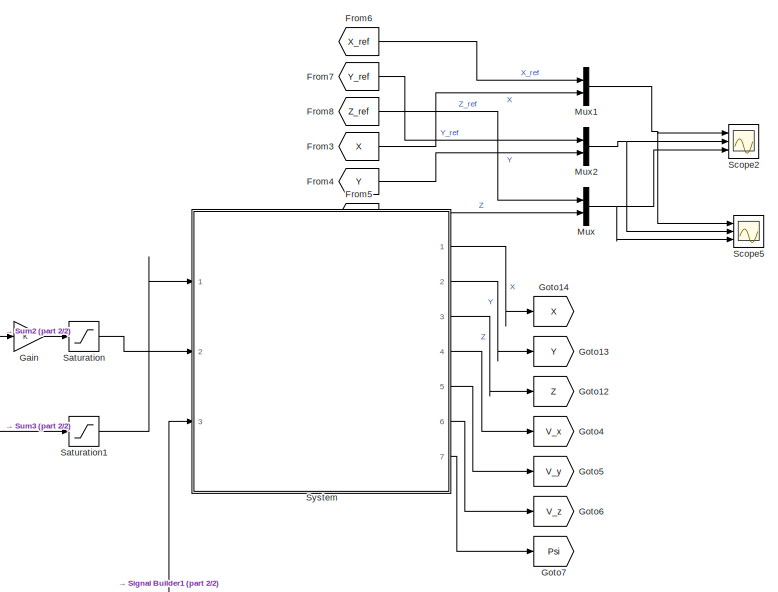
[diagram: root canvas - part 1/2, right side, full height]
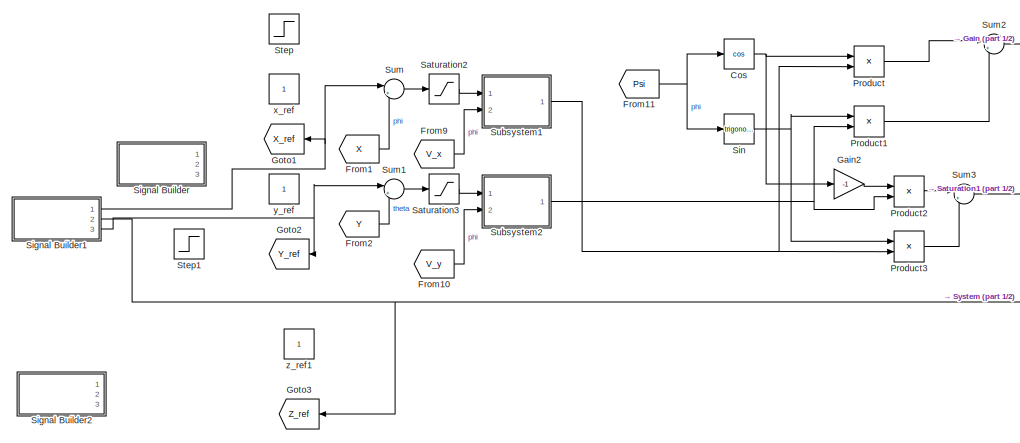
[diagram: root canvas - part 2/2, bottom left region]
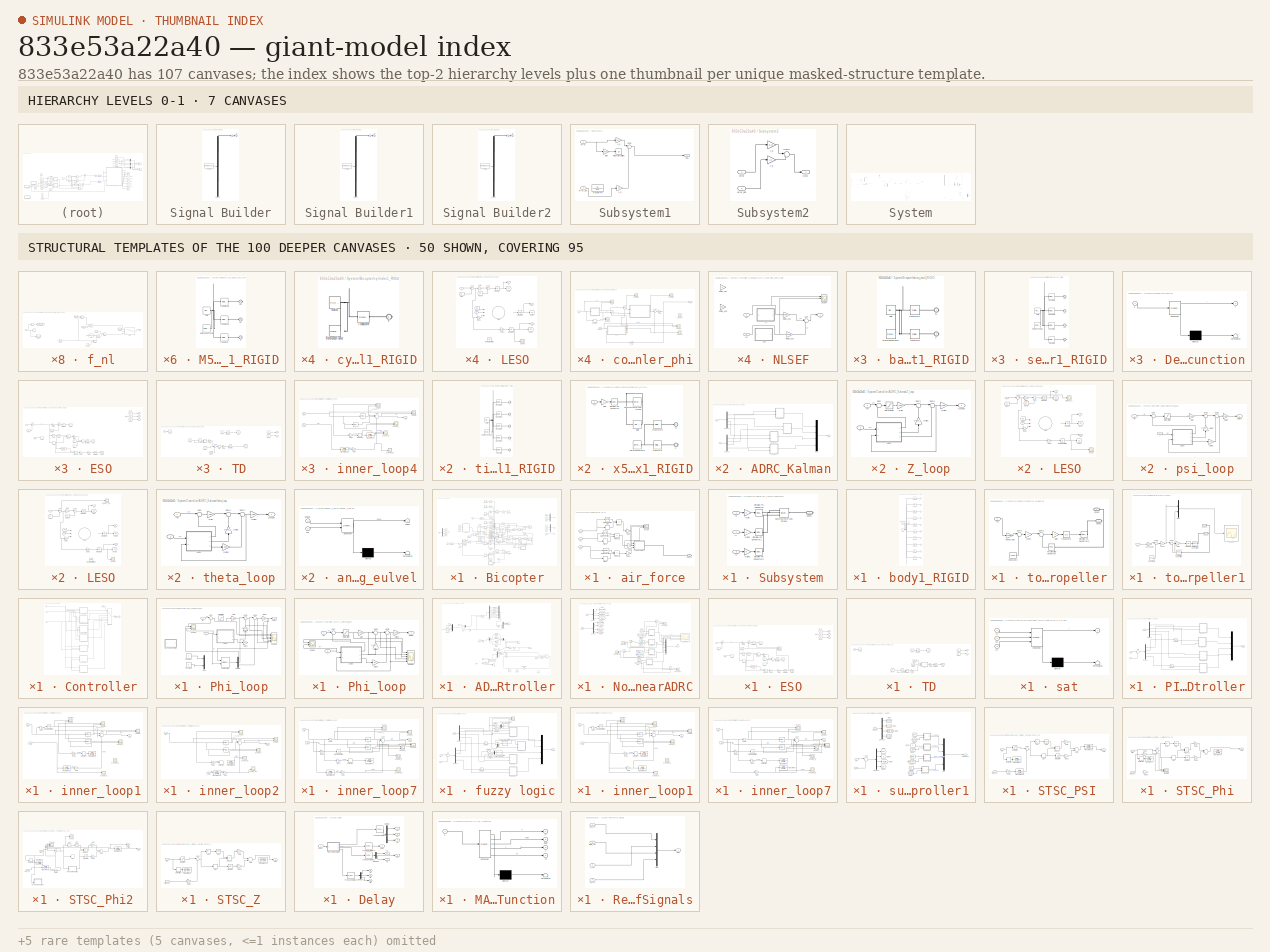
[diagram: thumbnail index - top-2 hierarchy levels (7 canvases) + 50 structural-template representatives of the remaining 100 canvases]
MODEL slx_833e53a22a40
KIND model
CONFIG AbsTol = auto
CONFIG EnableMultiTasking = off
CONFIG FixedStep = str2num(Step_size)
CONFIG MaxStep = auto
CONFIG MinStep = auto
CONFIG RelTol = 1e-3
CONFIG SampleTimeConstraint = Unconstrained
CONFIG Solver = FixedStepAuto
CONFIG SolverName = FixedStepAuto
CONFIG StartTime = 0.0
CONFIG StopTime = 10
WORKSPACE source: external: MATLAB File  (data not in archive)
BLOCK [Trigonometry] Cos
  Operator = cos
  Ports = [1, 1]
BLOCK [From] From1
  GotoTag = X
BLOCK [From] From10
  GotoTag = V_y
BLOCK [From] From11
  GotoTag = Psi
BLOCK [From] From2
  GotoTag = Y
BLOCK [From] From3
  GotoTag = X
BLOCK [From] From4
  GotoTag = Y
BLOCK [From] From5
  GotoTag = Z
BLOCK [From] From6
  GotoTag = X_ref
BLOCK [From] From7
  GotoTag = Y_ref
BLOCK [From] From8
  GotoTag = Z_ref
BLOCK [From] From9
  GotoTag = V_x
BLOCK [Gain] Gain
  OutDataTypeStr = Inherit: Inherit via internal rule
  ParamDataTypeStr = Inherit: Inherit via internal rule
  SaturateOnIntegerOverflow = off
BLOCK [Gain] Gain2
  Gain = -1
  OutDataTypeStr = Inherit: Inherit via internal rule
  ParamDataTypeStr = Inherit: Inherit via internal rule
  SaturateOnIntegerOverflow = off
BLOCK [Goto] Goto1
  GotoTag = X_ref
BLOCK [Goto] Goto12
  GotoTag = Z
BLOCK [Goto] Goto13
  GotoTag = Y
BLOCK [Goto] Goto14
  GotoTag = X
BLOCK [Goto] Goto2
  GotoTag = Y_ref
BLOCK [Goto] Goto3
  GotoTag = Z_ref
BLOCK [Goto] Goto4
  GotoTag = V_x
BLOCK [Goto] Goto5
  GotoTag = V_y
BLOCK [Goto] Goto6
  GotoTag = V_z
BLOCK [Goto] Goto7
  GotoTag = Psi
BLOCK [Mux] Mux
  DisplayOption = bar
  Inputs = 2
  Ports = [2, 1]
BLOCK [Mux] Mux1
  DisplayOption = bar
  Inputs = 2
  Ports = [2, 1]
BLOCK [Mux] Mux2
  DisplayOption = bar
  Inputs = 2
  Ports = [2, 1]
BLOCK [Product] Product
  InputSameDT = off
  OutDataTypeStr = Inherit: Inherit via internal rule
  Ports = [2, 1]
  RndMeth = Floor
  SaturateOnIntegerOverflow = off
BLOCK [Product] Product1
  InputSameDT = off
  OutDataTypeStr = Inherit: Inherit via internal rule
  Ports = [2, 1]
  RndMeth = Floor
  SaturateOnIntegerOverflow = off
BLOCK [Product] Product2
  InputSameDT = off
  OutDataTypeStr = Inherit: Inherit via internal rule
  Ports = [2, 1]
  RndMeth = Floor
  SaturateOnIntegerOverflow = off
BLOCK [Product] Product3
  InputSameDT = off
  OutDataTypeStr = Inherit: Inherit via internal rule
  Ports = [2, 1]
  RndMeth = Floor
  SaturateOnIntegerOverflow = off
BLOCK [Saturate] Saturation
  InputPortMap = u0
  LowerLimit = -0.8
  Ports = [1, 1]
  UpperLimit = 0.8
BLOCK [Saturate] Saturation1
  InputPortMap = u0
  LowerLimit = -0.8
  Ports = [1, 1]
  UpperLimit = 0.8
BLOCK [Saturate] Saturation2
  InputPortMap = u0
  LowerLimit = -3
  Ports = [1, 1]
  UpperLimit = 3
BLOCK [Saturate] Saturation3
  InputPortMap = u0
  LowerLimit = -3
  Ports = [1, 1]
  UpperLimit = 3
BLOCK [Scope] Scope2
  Floating = off
  NumInputPorts = 3
  Ports = [3]
  ScopeSpecificationString = Simulink.scopes.TimeScopeBlockCfg('CurrentConfiguration', extmgr.ConfigurationSet(extmgr.Configuration('Core','General UI',true),extmgr.Configuration('Core','Source UI',true),extmgr.Configuration('Sources','WiredSimulink',true,'DataLoggingVariableName','ScopeData2'),extmgr.Configuration('Visuals','Time Domain',true,'SerializedDisplays',{struct('MinYLimReal','-3.70296','MaxYLimReal','22.63366','YLa...<+3467ch>
BLOCK [Scope] Scope5
  Floating = off
  NumInputPorts = 3
  Ports = [3]
  ScopeSpecificationString = Simulink.scopes.TimeScopeBlockCfg('CurrentConfiguration', extmgr.ConfigurationSet(extmgr.Configuration('Core','General UI',true),extmgr.Configuration('Core','Source UI',true),extmgr.Configuration('Sources','WiredSimulink',true,'DataLoggingVariableName','ScopeData1'),extmgr.Configuration('Visuals','Time Domain',true,'SerializedDisplays',{struct('MinYLimReal','-1.25008','MaxYLimReal','11.25001','YLa...<+3437ch>
BLOCK [SubSystem] Signal Builder
  ClipboardFcn = sigbuilder_block('clipboard');
  CloseFcn = sigbuilder_block('close');
  ContinueFcn = sigbuilder_block('continue');
  CopyFcn = sigbuilder_block('copy');
  DeleteFcn = sigbuilder_block('delete');
  LoadFcn = sigbuilder_block('load');
  MaskHideContents = on
  ModelCloseFcn = sigbuilder_block('modelClose');
  NameChangeFcn = sigbuilder_block('namechange');
  OpenFcn = sigbuilder_block('open',[6 30.75 1012.5 481.5 ]);
  PauseFcn = sigbuilder_block('pause');
  Ports = [0, 3]
  PreSaveFcn = sigbuilder_block('preSave');
  RequestExecContextInheritance = off
  StartFcn = sigbuilder_block('start');
  StopFcn = sigbuilder_block('stop');
  Tag = STV Subsys
BLOCK [Demux] Signal Builder/Demux
  Outputs = 3
  Ports = [1, 3]
  Tag = STV Demux
BLOCK [FromWorkspace] Signal Builder/FromWs
  SampleTime = 0
  Tag = STV FromWs
  VariableName = tuvar
  ZeroCross = on
BLOCK [Outport] Signal Builder/x_ref
  IconDisplay = Port number
  Tag = STV Outport
BLOCK [Outport] Signal Builder/y_ref
  IconDisplay = Port number
  Port = 3
  Tag = STV Outport
BLOCK [Outport] Signal Builder/z_ref
  IconDisplay = Port number
  Port = 2
  Tag = STV Outport
BLOCK [SubSystem] Signal Builder1
  ClipboardFcn = sigbuilder_block('clipboard');
  CloseFcn = sigbuilder_block('close');
  ContinueFcn = sigbuilder_block('continue');
  CopyFcn = sigbuilder_block('copy');
  DeleteFcn = sigbuilder_block('delete');
  LoadFcn = sigbuilder_block('load');
  MaskHideContents = on
  ModelCloseFcn = sigbuilder_block('modelClose');
  NameChangeFcn = sigbuilder_block('namechange');
  OpenFcn = sigbuilder_block('open',[6 6 1012.5 506.25 ]);
  PauseFcn = sigbuilder_block('pause');
  Ports = [0, 3]
  PreSaveFcn = sigbuilder_block('preSave');
  RequestExecContextInheritance = off
  StartFcn = sigbuilder_block('start');
  StopFcn = sigbuilder_block('stop');
  Tag = STV Subsys
BLOCK [Demux] Signal Builder1/Demux
  Outputs = 3
  Ports = [1, 3]
  Tag = STV Demux
BLOCK [FromWorkspace] Signal Builder1/FromWs
  SampleTime = 0
  Tag = STV FromWs
  VariableName = tuvar
  ZeroCross = on
BLOCK [Outport] Signal Builder1/x_ref
  IconDisplay = Port number
  Tag = STV Outport
BLOCK [Outport] Signal Builder1/y_ref
  IconDisplay = Port number
  Port = 3
  Tag = STV Outport
BLOCK [Outport] Signal Builder1/z_ref
  IconDisplay = Port number
  Port = 2
  Tag = STV Outport
BLOCK [SubSystem] Signal Builder2
  ClipboardFcn = sigbuilder_block('clipboard');
  CloseFcn = sigbuilder_block('close');
  ContinueFcn = sigbuilder_block('continue');
  CopyFcn = sigbuilder_block('copy');
  DeleteFcn = sigbuilder_block('delete');
  LoadFcn = sigbuilder_block('load',[6 6 1012.5 506.25 ]);
  MaskHideContents = on
  ModelCloseFcn = sigbuilder_block('modelClose');
  NameChangeFcn = sigbuilder_block('namechange');
  OpenFcn = sigbuilder_block('open',[-1440 27.75 1440 722.25 ]);
  PauseFcn = sigbuilder_block('pause');
  Ports = [0, 3]
  PreSaveFcn = sigbuilder_block('preSave');
  RequestExecContextInheritance = off
  StartFcn = sigbuilder_block('start');
  StopFcn = sigbuilder_block('stop');
  Tag = STV Subsys
BLOCK [Demux] Signal Builder2/Demux
  Outputs = 3
  Ports = [1, 3]
  Tag = STV Demux
BLOCK [FromWorkspace] Signal Builder2/FromWs
  SampleTime = 0
  Tag = STV FromWs
  VariableName = tuvar
  ZeroCross = on
BLOCK [Outport] Signal Builder2/x_ref
  IconDisplay = Port number
  Tag = STV Outport
BLOCK [Outport] Signal Builder2/y_ref
  IconDisplay = Port number
  Port = 3
  Tag = STV Outport
BLOCK [Outport] Signal Builder2/z_ref
  IconDisplay = Port number
  Port = 2
  Tag = STV Outport
BLOCK [Trigonometry] Sin
  Ports = [1, 1]
BLOCK [Step] Step
  SampleTime = 0
  Time = 4
BLOCK [Step] Step1
  SampleTime = 0
  Time = 4
BLOCK [SubSystem] Subsystem1
  Ports = [2, 1]
  RequestExecContextInheritance = off
BLOCK [Gain] Subsystem1/Gain
  Gain = 0.005
  OutDataTypeStr = Inherit: Inherit via internal rule
  ParamDataTypeStr = Inherit: Inherit via internal rule
  SaturateOnIntegerOverflow = off
BLOCK [Integrator] Subsystem1/Integrator Limited
  LimitOutput = on
  LowerSaturationLimit = -1
  Ports = [1, 1]
  UpperSaturationLimit = 1
BLOCK [Outport] Subsystem1/Out1
  IconDisplay = Port number
BLOCK [Sum] Subsystem1/Sum2
  IconShape = round
  InputSameDT = off
  Inputs = |++-
  OutDataTypeStr = Inherit: Inherit via internal rule
  Ports = [3, 1]
  SaturateOnIntegerOverflow = off
BLOCK [TransferFcn] Subsystem1/Transfer Fcn
  Denominator = [1 1]
BLOCK [Inport] Subsystem1/error
  IconDisplay = Port number
BLOCK [Inport] Subsystem1/error_dot
  IconDisplay = Port number
  Port = 2
BLOCK [Gain] Subsystem1/x_d
  Gain = 0.2
  OutDataTypeStr = Inherit: Inherit via internal rule
  ParamDataTypeStr = Inherit: Inherit via internal rule
  SaturateOnIntegerOverflow = off
BLOCK [Gain] Subsystem1/x_p
  Gain = 0.14
  OutDataTypeStr = Inherit: Inherit via internal rule
  ParamDataTypeStr = Inherit: Inherit via internal rule
  SaturateOnIntegerOverflow = off
BLOCK [SubSystem] Subsystem2
  Ports = [2, 1]
  RequestExecContextInheritance = off
BLOCK [Outport] Subsystem2/Out1
  IconDisplay = Port number
BLOCK [Sum] Subsystem2/Sum2
  IconShape = round
  InputSameDT = off
  Inputs = |+-
  OutDataTypeStr = Inherit: Inherit via internal rule
  Ports = [2, 1]
  SaturateOnIntegerOverflow = off
BLOCK [Inport] Subsystem2/error
  IconDisplay = Port number
BLOCK [Inport] Subsystem2/error_dot
  IconDisplay = Port number
  Port = 2
BLOCK [Gain] Subsystem2/y_d
  Gain = 0.2
  OutDataTypeStr = Inherit: Inherit via internal rule
  ParamDataTypeStr = Inherit: Inherit via internal rule
  SaturateOnIntegerOverflow = off
BLOCK [Gain] Subsystem2/y_p
  Gain = 0.15
  OutDataTypeStr = Inherit: Inherit via internal rule
  ParamDataTypeStr = Inherit: Inherit via internal rule
  SaturateOnIntegerOverflow = off
BLOCK [Sum] Sum
  IconShape = round
  InputSameDT = off
  Inputs = |+-
  OutDataTypeStr = Inherit: Inherit via internal rule
  Ports = [2, 1]
  SaturateOnIntegerOverflow = off
BLOCK [Sum] Sum1
  IconShape = round
  InputSameDT = off
  Inputs = |+-
  OutDataTypeStr = Inherit: Inherit via internal rule
  Ports = [2, 1]
  SaturateOnIntegerOverflow = off
BLOCK [Sum] Sum2
  IconShape = round
  InputSameDT = off
  Inputs = |++
  OutDataTypeStr = Inherit: Inherit via internal rule
  Ports = [2, 1]
  SaturateOnIntegerOverflow = off
BLOCK [Sum] Sum3
  IconShape = round
  InputSameDT = off
  Inputs = |++
  OutDataTypeStr = Inherit: Inherit via internal rule
  Ports = [2, 1]
  SaturateOnIntegerOverflow = off
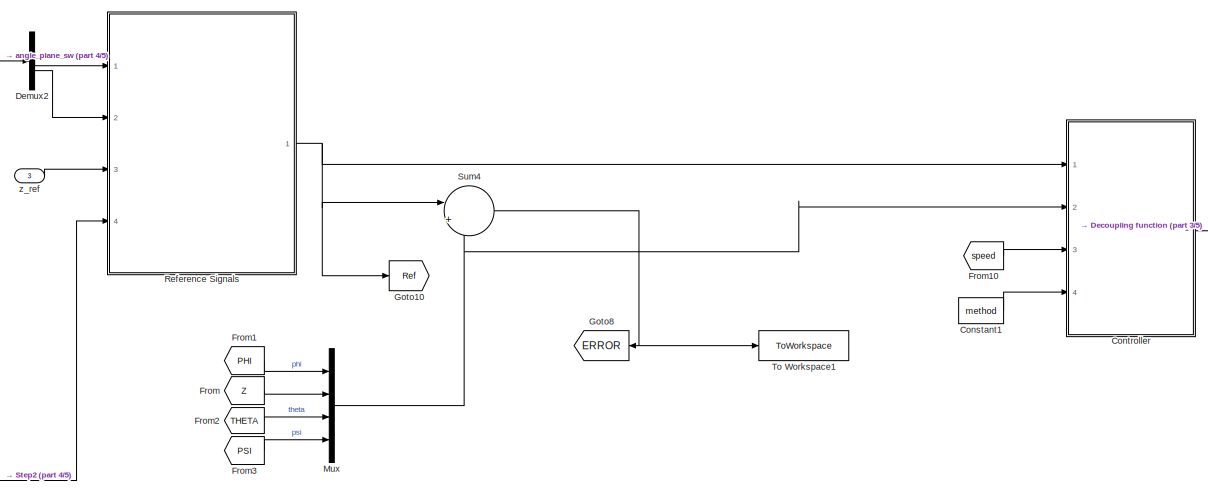
[diagram: System - part 1/5, top center region]
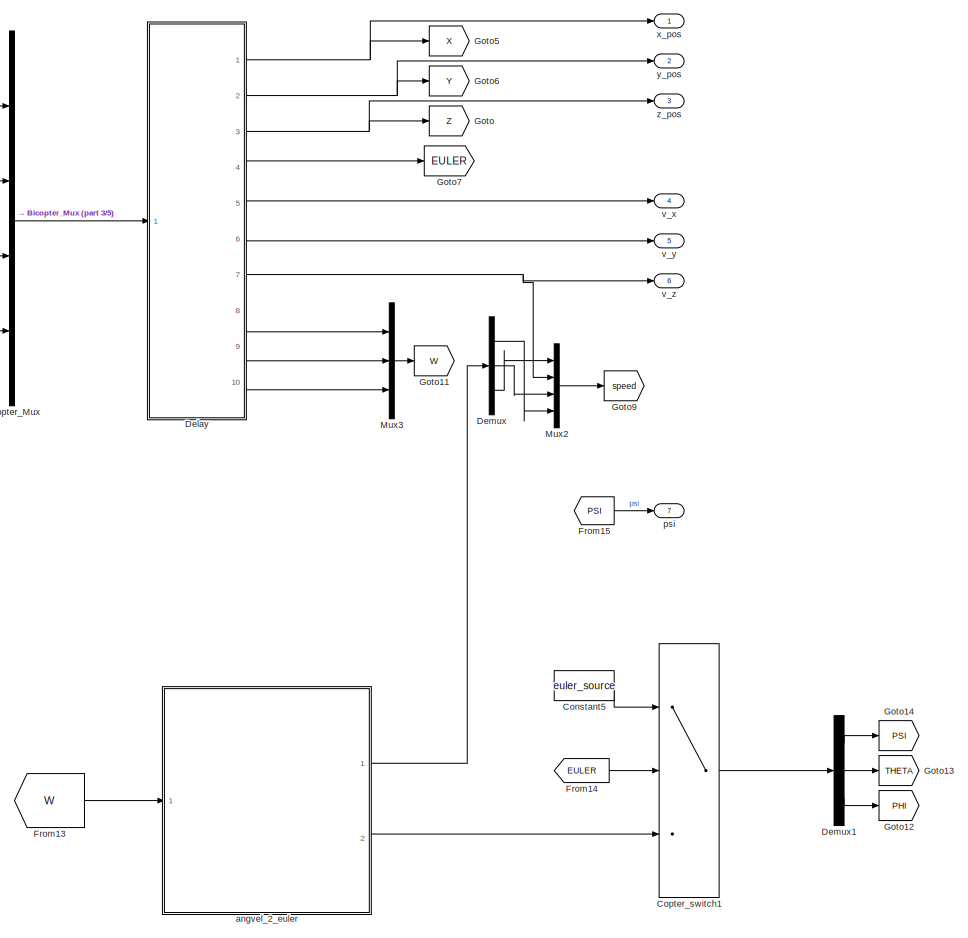
[diagram: System - part 2/5, right side, full height]
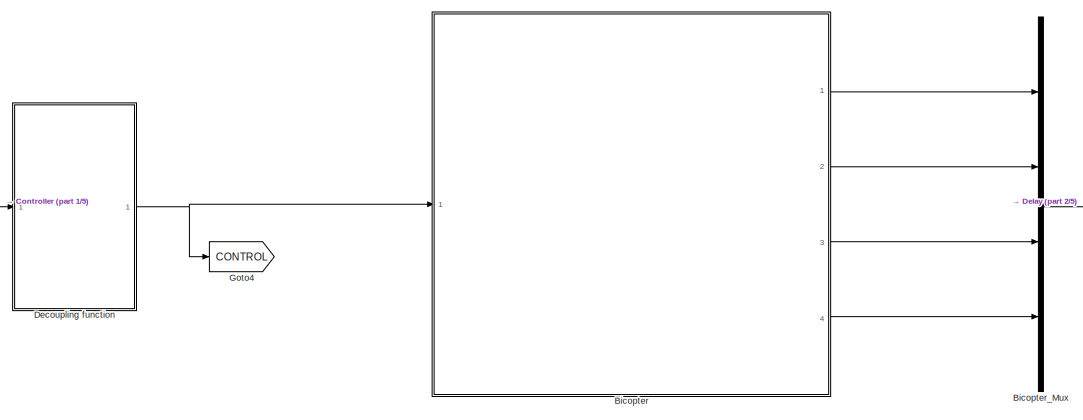
[diagram: System - part 3/5, top center region]
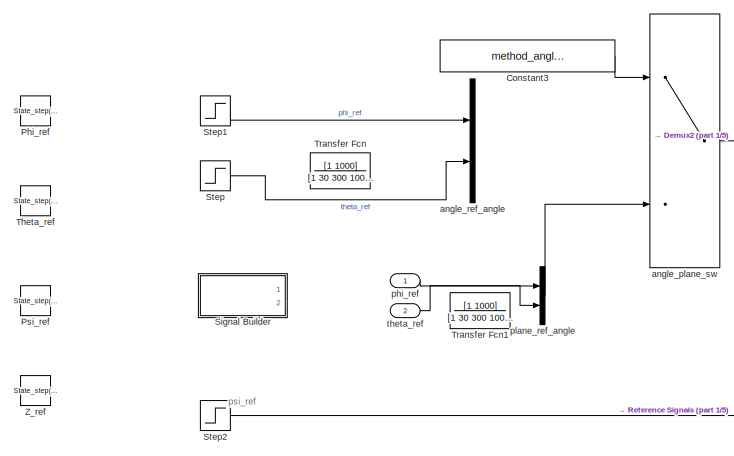
[diagram: System - part 4/5, top left region]
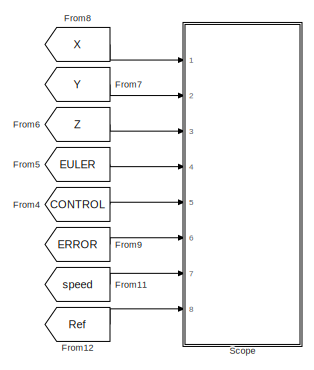
[diagram: System - part 5/5, bottom center region]
BLOCK [SubSystem] System
  Ports = [3, 7]
  RequestExecContextInheritance = off
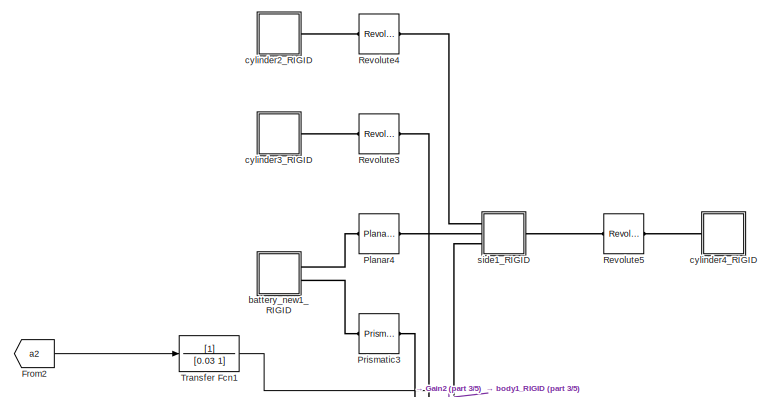
[diagram: System/Bicopter - part 1/5, top center region]
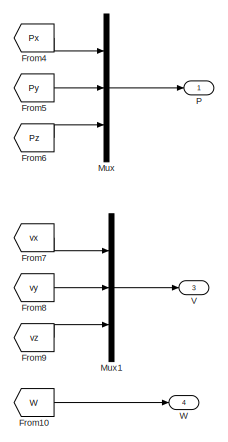
[diagram: System/Bicopter - part 2/5, middle right region]
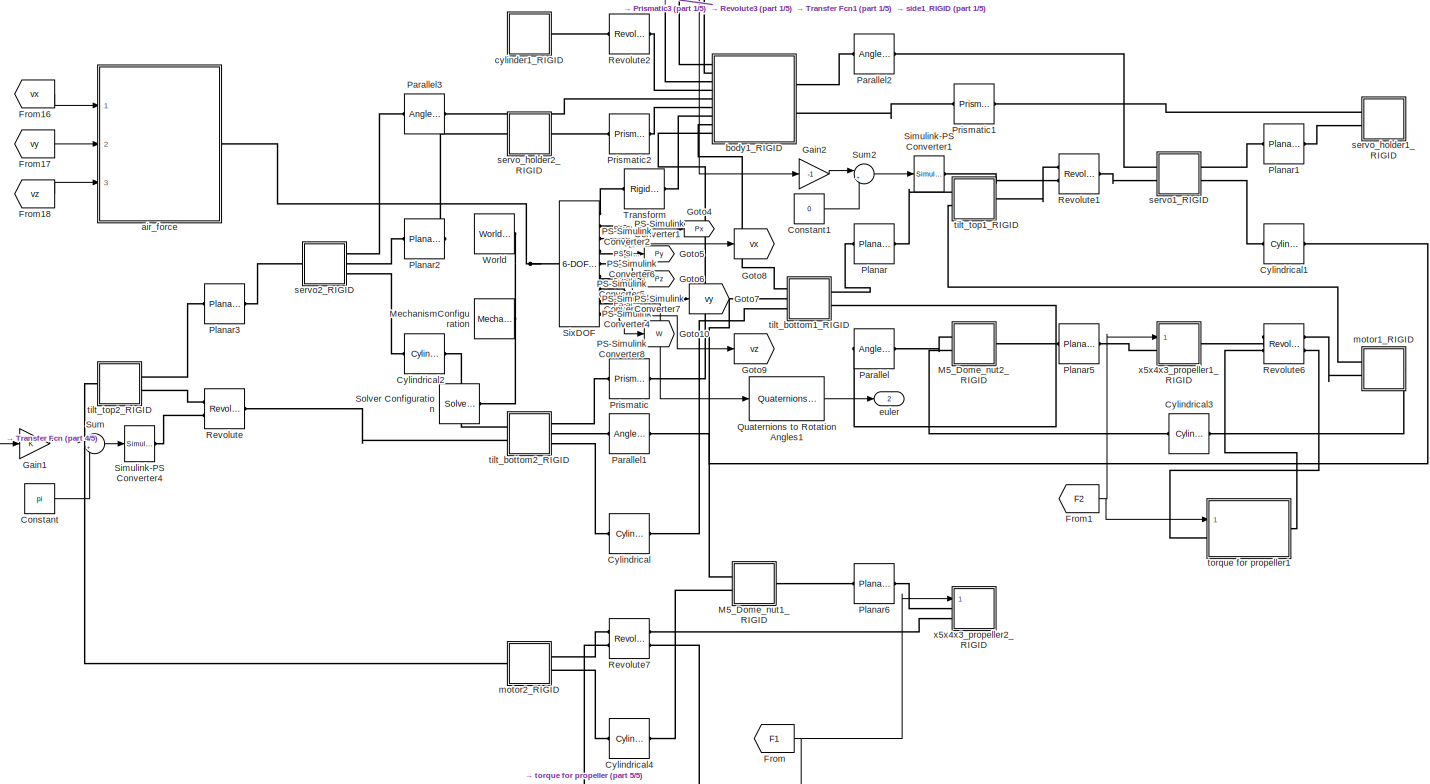
[diagram: System/Bicopter - part 3/5, central region]
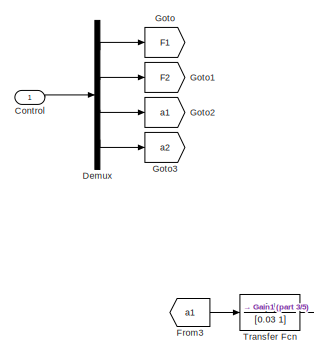
[diagram: System/Bicopter - part 4/5, middle left region]
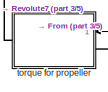
[diagram: System/Bicopter - part 5/5, bottom center region]
BLOCK [SubSystem] System/Bicopter
  Ports = [1, 4]
  RequestExecContextInheritance = off
BLOCK [Constant] System/Bicopter/Constant
  Value = pi
BLOCK [Constant] System/Bicopter/Constant1
  Value = 0
BLOCK [Inport] System/Bicopter/Control 
  IconDisplay = Port number
BLOCK [Reference] System/Bicopter/Cylindrical  REF=sm_lib/Joints/Cylindrical
Joint
  Ports = [0, 0, 0, 0, 0, 1, 1]
  SourceBlock = sm_lib/Joints/Cylindrical\nJoint
  SourceProductBaseCode = MS
  SourceType = Cylindrical\nJoint
BLOCK [Reference] System/Bicopter/Cylindrical1  REF=sm_lib/Joints/Cylindrical
Joint
  Ports = [0, 0, 0, 0, 0, 1, 1]
  SourceBlock = sm_lib/Joints/Cylindrical\nJoint
  SourceProductBaseCode = MS
  SourceType = Cylindrical\nJoint
BLOCK [Reference] System/Bicopter/Cylindrical2  REF=sm_lib/Joints/Cylindrical
Joint
  Ports = [0, 0, 0, 0, 0, 1, 1]
  SourceBlock = sm_lib/Joints/Cylindrical\nJoint
  SourceProductBaseCode = MS
  SourceType = Cylindrical\nJoint
BLOCK [Reference] System/Bicopter/Cylindrical3  REF=sm_lib/Joints/Cylindrical
Joint
  Ports = [0, 0, 0, 0, 0, 1, 1]
  SourceBlock = sm_lib/Joints/Cylindrical\nJoint
  SourceProductBaseCode = MS
  SourceType = Cylindrical\nJoint
BLOCK [Reference] System/Bicopter/Cylindrical4  REF=sm_lib/Joints/Cylindrical
Joint
  Ports = [0, 0, 0, 0, 0, 1, 1]
  SourceBlock = sm_lib/Joints/Cylindrical\nJoint
  SourceProductBaseCode = MS
  SourceType = Cylindrical\nJoint
BLOCK [Demux] System/Bicopter/Demux
  DisplayOption = bar
  Ports = [1, 4]
BLOCK [From] System/Bicopter/From
  GotoTag = F1
BLOCK [From] System/Bicopter/From1
  GotoTag = F2
BLOCK [From] System/Bicopter/From10
  GotoTag = W
BLOCK [From] System/Bicopter/From16
  GotoTag = vx
BLOCK [From] System/Bicopter/From17
  GotoTag = vy
BLOCK [From] System/Bicopter/From18
  GotoTag = vz
BLOCK [From] System/Bicopter/From2
  GotoTag = a2
BLOCK [From] System/Bicopter/From3
  GotoTag = a1
BLOCK [From] System/Bicopter/From4
  GotoTag = Px
BLOCK [From] System/Bicopter/From5
  GotoTag = Py
BLOCK [From] System/Bicopter/From6
  GotoTag = Pz
BLOCK [From] System/Bicopter/From7
  GotoTag = vx
BLOCK [From] System/Bicopter/From8
  GotoTag = vy
BLOCK [From] System/Bicopter/From9
  GotoTag = vz
BLOCK [Gain] System/Bicopter/Gain1
  OutDataTypeStr = Inherit: Inherit via internal rule
  ParamDataTypeStr = Inherit: Inherit via internal rule
  SaturateOnIntegerOverflow = off
BLOCK [Gain] System/Bicopter/Gain2
  Gain = -1
  OutDataTypeStr = Inherit: Inherit via internal rule
  ParamDataTypeStr = Inherit: Inherit via internal rule
  SaturateOnIntegerOverflow = off
BLOCK [Goto] System/Bicopter/Goto
  GotoTag = F1
BLOCK [Goto] System/Bicopter/Goto1
  GotoTag = F2
BLOCK [Goto] System/Bicopter/Goto10
  GotoTag = W
BLOCK [Goto] System/Bicopter/Goto2
  GotoTag = a1
BLOCK [Goto] System/Bicopter/Goto3
  GotoTag = a2
BLOCK [Goto] System/Bicopter/Goto4
  GotoTag = Px
BLOCK [Goto] System/Bicopter/Goto5
  GotoTag = Py
BLOCK [Goto] System/Bicopter/Goto6
  GotoTag = Pz
BLOCK [Goto] System/Bicopter/Goto7
  GotoTag = vy
BLOCK [Goto] System/Bicopter/Goto8
  GotoTag = vx
BLOCK [Goto] System/Bicopter/Goto9
  GotoTag = vz
BLOCK [SubSystem] System/Bicopter/M5_Dome_nut1_RIGID
  Ports = [0, 0, 0, 0, 0, 2, 1]
  RequestExecContextInheritance = off
BLOCK [PMIOPort] System/Bicopter/M5_Dome_nut1_RIGID/F
  Side = Left
BLOCK [PMIOPort] System/Bicopter/M5_Dome_nut1_RIGID/F1
  Port = 2
  Side = Left
BLOCK [PMIOPort] System/Bicopter/M5_Dome_nut1_RIGID/F2
  Port = 3
  Side = Right
BLOCK [Reference] System/Bicopter/M5_Dome_nut1_RIGID/ReferenceFrame  REF=sm_lib/Frames and
Transforms/Reference
Frame
  Ports = [0, 0, 0, 0, 0, 0, 1]
  SourceBlock = sm_lib/Frames and\nTransforms/Reference\nFrame
  SourceProductBaseCode = MS
  SourceType = Reference\nFrame
BLOCK [Reference] System/Bicopter/M5_Dome_nut1_RIGID/Solid  REF=sm_lib/Body Elements/File Solid
  Ports = [0, 0, 0, 0, 0, 0, 1]
  SourceBlock = sm_lib/Body Elements/File Solid
  SourceProductBaseCode = MS
  SourceType = File Solid
BLOCK [Reference] System/Bicopter/M5_Dome_nut1_RIGID/Transform  REF=sm_lib/Frames and
Transforms/Rigid
Transform
  Ports = [0, 0, 0, 0, 0, 1, 1]
  SourceBlock = sm_lib/Frames and\nTransforms/Rigid\nTransform
  SourceProductBaseCode = MS
  SourceType = Rigid\nTransform
BLOCK [Reference] System/Bicopter/M5_Dome_nut1_RIGID/Transform1  REF=sm_lib/Frames and
Transforms/Rigid
Transform
  Ports = [0, 0, 0, 0, 0, 1, 1]
  SourceBlock = sm_lib/Frames and\nTransforms/Rigid\nTransform
  SourceProductBaseCode = MS
  SourceType = Rigid\nTransform
BLOCK [Reference] System/Bicopter/M5_Dome_nut1_RIGID/Transform2  REF=sm_lib/Frames and
Transforms/Rigid
Transform
  Ports = [0, 0, 0, 0, 0, 1, 1]
  SourceBlock = sm_lib/Frames and\nTransforms/Rigid\nTransform
  SourceProductBaseCode = MS
  SourceType = Rigid\nTransform
BLOCK [SubSystem] System/Bicopter/M5_Dome_nut2_RIGID
  Ports = [0, 0, 0, 0, 0, 2, 1]
  RequestExecContextInheritance = off
BLOCK [PMIOPort] System/Bicopter/M5_Dome_nut2_RIGID/F
  Side = Left
BLOCK [PMIOPort] System/Bicopter/M5_Dome_nut2_RIGID/F1
  Port = 2
  Side = Left
BLOCK [PMIOPort] System/Bicopter/M5_Dome_nut2_RIGID/F2
  Port = 3
  Side = Right
BLOCK [Reference] System/Bicopter/M5_Dome_nut2_RIGID/ReferenceFrame  REF=sm_lib/Frames and
Transforms/Reference
Frame
  Ports = [0, 0, 0, 0, 0, 0, 1]
  SourceBlock = sm_lib/Frames and\nTransforms/Reference\nFrame
  SourceProductBaseCode = MS
  SourceType = Reference\nFrame
BLOCK [Reference] System/Bicopter/M5_Dome_nut2_RIGID/Solid  REF=sm_lib/Body Elements/File Solid
  Ports = [0, 0, 0, 0, 0, 0, 1]
  SourceBlock = sm_lib/Body Elements/File Solid
  SourceProductBaseCode = MS
  SourceType = File Solid
BLOCK [Reference] System/Bicopter/M5_Dome_nut2_RIGID/Transform  REF=sm_lib/Frames and
Transforms/Rigid
Transform
  Ports = [0, 0, 0, 0, 0, 1, 1]
  SourceBlock = sm_lib/Frames and\nTransforms/Rigid\nTransform
  SourceProductBaseCode = MS
  SourceType = Rigid\nTransform
BLOCK [Reference] System/Bicopter/M5_Dome_nut2_RIGID/Transform1  REF=sm_lib/Frames and
Transforms/Rigid
Transform
  Ports = [0, 0, 0, 0, 0, 1, 1]
  SourceBlock = sm_lib/Frames and\nTransforms/Rigid\nTransform
  SourceProductBaseCode = MS
  SourceType = Rigid\nTransform
BLOCK [Reference] System/Bicopter/M5_Dome_nut2_RIGID/Transform2  REF=sm_lib/Frames and
Transforms/Rigid
Transform
  Ports = [0, 0, 0, 0, 0, 1, 1]
  SourceBlock = sm_lib/Frames and\nTransforms/Rigid\nTransform
  SourceProductBaseCode = MS
  SourceType = Rigid\nTransform
BLOCK [Reference] System/Bicopter/MechanismConfiguration  REF=sm_lib/Utilities/Mechanism
Configuration
  Ports = [0, 0, 0, 0, 0, 0, 1]
  SourceBlock = sm_lib/Utilities/Mechanism\nConfiguration
  SourceProductBaseCode = MS
  SourceType = Mechanism\nConfiguration
BLOCK [Mux] System/Bicopter/Mux
  DisplayOption = bar
  Inputs = 3
  Ports = [3, 1]
BLOCK [Mux] System/Bicopter/Mux1
  DisplayOption = bar
  Inputs = 3
  Ports = [3, 1]
BLOCK [Outport] System/Bicopter/P
  IconDisplay = Port number
BLOCK [Reference] System/Bicopter/PS-Simulink Converter1  REF=nesl_utility/PS-Simulink
Converter
  Ports = [0, 1, 0, 0, 0, 1]
  SourceBlock = nesl_utility/PS-Simulink\nConverter
  SourceProductBaseCode = SS
  SourceType = PS-Simulink\nConverter
BLOCK [Reference] System/Bicopter/PS-Simulink Converter2  REF=nesl_utility/PS-Simulink
Converter
  Ports = [0, 1, 0, 0, 0, 1]
  SourceBlock = nesl_utility/PS-Simulink\nConverter
  SourceProductBaseCode = SS
  SourceType = PS-Simulink\nConverter
BLOCK [Reference] System/Bicopter/PS-Simulink Converter3  REF=nesl_utility/PS-Simulink
Converter
  Ports = [0, 1, 0, 0, 0, 1]
  SourceBlock = nesl_utility/PS-Simulink\nConverter
  SourceProductBaseCode = SS
  SourceType = PS-Simulink\nConverter
BLOCK [Reference] System/Bicopter/PS-Simulink Converter4  REF=nesl_utility/PS-Simulink
Converter
  Ports = [0, 1, 0, 0, 0, 1]
  SourceBlock = nesl_utility/PS-Simulink\nConverter
  SourceProductBaseCode = SS
  SourceType = PS-Simulink\nConverter
BLOCK [Reference] System/Bicopter/PS-Simulink Converter5  REF=nesl_utility/PS-Simulink
Converter
  Ports = [0, 1, 0, 0, 0, 1]
  SourceBlock = nesl_utility/PS-Simulink\nConverter
  SourceProductBaseCode = SS
  SourceType = PS-Simulink\nConverter
BLOCK [Reference] System/Bicopter/PS-Simulink Converter6  REF=nesl_utility/PS-Simulink
Converter
  Ports = [0, 1, 0, 0, 0, 1]
  SourceBlock = nesl_utility/PS-Simulink\nConverter
  SourceProductBaseCode = SS
  SourceType = PS-Simulink\nConverter
BLOCK [Reference] System/Bicopter/PS-Simulink Converter7  REF=nesl_utility/PS-Simulink
Converter
  Ports = [0, 1, 0, 0, 0, 1]
  SourceBlock = nesl_utility/PS-Simulink\nConverter
  SourceProductBaseCode = SS
  SourceType = PS-Simulink\nConverter
BLOCK [Reference] System/Bicopter/PS-Simulink Converter8  REF=nesl_utility/PS-Simulink
Converter
  Ports = [0, 1, 0, 0, 0, 1]
  SourceBlock = nesl_utility/PS-Simulink\nConverter
  SourceProductBaseCode = SS
  SourceType = PS-Simulink\nConverter
BLOCK [Reference] System/Bicopter/Parallel  REF=sm_lib/Constraints/Angle
Constraint
  Ports = [0, 0, 0, 0, 0, 1, 1]
  SourceBlock = sm_lib/Constraints/Angle\nConstraint
  SourceProductBaseCode = MS
  SourceType = Angle\nConstraint
BLOCK [Reference] System/Bicopter/Parallel1  REF=sm_lib/Constraints/Angle
Constraint
  Ports = [0, 0, 0, 0, 0, 1, 1]
  SourceBlock = sm_lib/Constraints/Angle\nConstraint
  SourceProductBaseCode = MS
  SourceType = Angle\nConstraint
BLOCK [Reference] System/Bicopter/Parallel2  REF=sm_lib/Constraints/Angle
Constraint
  Ports = [0, 0, 0, 0, 0, 1, 1]
  SourceBlock = sm_lib/Constraints/Angle\nConstraint
  SourceProductBaseCode = MS
  SourceType = Angle\nConstraint
BLOCK [Reference] System/Bicopter/Parallel3  REF=sm_lib/Constraints/Angle
Constraint
  Ports = [0, 0, 0, 0, 0, 1, 1]
  SourceBlock = sm_lib/Constraints/Angle\nConstraint
  SourceProductBaseCode = MS
  SourceType = Angle\nConstraint
BLOCK [Reference] System/Bicopter/Planar  REF=sm_lib/Joints/Planar Joint
  Ports = [0, 0, 0, 0, 0, 1, 1]
  SourceBlock = sm_lib/Joints/Planar Joint
  SourceProductBaseCode = MS
  SourceType = Planar Joint
BLOCK [Reference] System/Bicopter/Planar1  REF=sm_lib/Joints/Planar Joint
  Ports = [0, 0, 0, 0, 0, 1, 1]
  SourceBlock = sm_lib/Joints/Planar Joint
  SourceProductBaseCode = MS
  SourceType = Planar Joint
BLOCK [Reference] System/Bicopter/Planar2  REF=sm_lib/Joints/Planar Joint
  Ports = [0, 0, 0, 0, 0, 1, 1]
  SourceBlock = sm_lib/Joints/Planar Joint
  SourceProductBaseCode = MS
  SourceType = Planar Joint
BLOCK [Reference] System/Bicopter/Planar3  REF=sm_lib/Joints/Planar Joint
  Ports = [0, 0, 0, 0, 0, 1, 1]
  SourceBlock = sm_lib/Joints/Planar Joint
  SourceProductBaseCode = MS
  SourceType = Planar Joint
BLOCK [Reference] System/Bicopter/Planar4  REF=sm_lib/Joints/Planar Joint
  Ports = [0, 0, 0, 0, 0, 1, 1]
  SourceBlock = sm_lib/Joints/Planar Joint
  SourceProductBaseCode = MS
  SourceType = Planar Joint
BLOCK [Reference] System/Bicopter/Planar5  REF=sm_lib/Joints/Planar Joint
  Ports = [0, 0, 0, 0, 0, 1, 1]
  SourceBlock = sm_lib/Joints/Planar Joint
  SourceProductBaseCode = MS
  SourceType = Planar Joint
BLOCK [Reference] System/Bicopter/Planar6  REF=sm_lib/Joints/Planar Joint
  Ports = [0, 0, 0, 0, 0, 1, 1]
  SourceBlock = sm_lib/Joints/Planar Joint
  SourceProductBaseCode = MS
  SourceType = Planar Joint
BLOCK [Reference] System/Bicopter/Prismatic  REF=sm_lib/Joints/Prismatic
Joint
  Ports = [0, 0, 0, 0, 0, 1, 1]
  SourceBlock = sm_lib/Joints/Prismatic\nJoint
  SourceProductBaseCode = MS
  SourceType = Prismatic\nJoint
BLOCK [Reference] System/Bicopter/Prismatic1  REF=sm_lib/Joints/Prismatic
Joint
  Ports = [0, 0, 0, 0, 0, 1, 1]
  SourceBlock = sm_lib/Joints/Prismatic\nJoint
  SourceProductBaseCode = MS
  SourceType = Prismatic\nJoint
BLOCK [Reference] System/Bicopter/Prismatic2  REF=sm_lib/Joints/Prismatic
Joint
  Ports = [0, 0, 0, 0, 0, 1, 1]
  SourceBlock = sm_lib/Joints/Prismatic\nJoint
  SourceProductBaseCode = MS
  SourceType = Prismatic\nJoint
BLOCK [Reference] System/Bicopter/Prismatic3  REF=sm_lib/Joints/Prismatic
Joint
  Ports = [0, 0, 0, 0, 0, 1, 1]
  SourceBlock = sm_lib/Joints/Prismatic\nJoint
  SourceProductBaseCode = MS
  SourceType = Prismatic\nJoint
BLOCK [Reference] System/Bicopter/Quaternions to Rotation Angles1  REF=sharedtransform/Quaternions to Rotation Angles
  AttributesFormatString = Rotation Order: %<rotationOrder>
  Ports = [1, 1]
  SourceBlock = sharedtransform/Quaternions to Rotation Angles
  SourceProductBaseCode = AE,PW,MT,VE,VP
  SourceType = Quat2Ang
BLOCK [Reference] System/Bicopter/Revolute  REF=sm_lib/Joints/Revolute Joint
  Ports = [0, 0, 0, 0, 0, 2, 1]
  SourceBlock = sm_lib/Joints/Revolute Joint
  SourceProductBaseCode = MS
  SourceType = Revolute Joint
BLOCK [Reference] System/Bicopter/Revolute1  REF=sm_lib/Joints/Revolute Joint
  Ports = [0, 0, 0, 0, 0, 2, 1]
  SourceBlock = sm_lib/Joints/Revolute Joint
  SourceProductBaseCode = MS
  SourceType = Revolute Joint
BLOCK [Reference] System/Bicopter/Revolute2  REF=sm_lib/Joints/Revolute Joint
  Ports = [0, 0, 0, 0, 0, 1, 1]
  SourceBlock = sm_lib/Joints/Revolute Joint
  SourceProductBaseCode = MS
  SourceType = Revolute Joint
BLOCK [Reference] System/Bicopter/Revolute3  REF=sm_lib/Joints/Revolute Joint
  Ports = [0, 0, 0, 0, 0, 1, 1]
  SourceBlock = sm_lib/Joints/Revolute Joint
  SourceProductBaseCode = MS
  SourceType = Revolute Joint
BLOCK [Reference] System/Bicopter/Revolute4  REF=sm_lib/Joints/Revolute Joint
  Ports = [0, 0, 0, 0, 0, 1, 1]
  SourceBlock = sm_lib/Joints/Revolute Joint
  SourceProductBaseCode = MS
  SourceType = Revolute Joint
BLOCK [Reference] System/Bicopter/Revolute5  REF=sm_lib/Joints/Revolute Joint
  Ports = [0, 0, 0, 0, 0, 1, 1]
  SourceBlock = sm_lib/Joints/Revolute Joint
  SourceProductBaseCode = MS
  SourceType = Revolute Joint
BLOCK [Reference] System/Bicopter/Revolute6  REF=sm_lib/Joints/Revolute Joint
  Ports = [0, 0, 0, 0, 0, 2, 2]
  SourceBlock = sm_lib/Joints/Revolute Joint
  SourceProductBaseCode = MS
  SourceType = Revolute Joint
BLOCK [Reference] System/Bicopter/Revolute7  REF=sm_lib/Joints/Revolute Joint
  Ports = [0, 0, 0, 0, 0, 2, 2]
  SourceBlock = sm_lib/Joints/Revolute Joint
  SourceProductBaseCode = MS
  SourceType = Revolute Joint
BLOCK [Reference] System/Bicopter/Simulink-PS Converter1  REF=nesl_utility/Simulink-PS
Converter
  Ports = [1, 0, 0, 0, 0, 0, 1]
  SourceBlock = nesl_utility/Simulink-PS\nConverter
  SourceProductBaseCode = SS
  SourceType = Simulink-PS\nConverter
BLOCK [Reference] System/Bicopter/Simulink-PS Converter4  REF=nesl_utility/Simulink-PS
Converter
  Ports = [1, 0, 0, 0, 0, 0, 1]
  SourceBlock = nesl_utility/Simulink-PS\nConverter
  SourceProductBaseCode = SS
  SourceType = Simulink-PS\nConverter
BLOCK [Reference] System/Bicopter/SixDOF  REF=sm_lib/Joints/6-DOF Joint
  Ports = [0, 0, 0, 0, 0, 1, 9]
  SourceBlock = sm_lib/Joints/6-DOF Joint
  SourceProductBaseCode = MS
  SourceType = 6-DOF Joint
BLOCK [Reference] System/Bicopter/Solver Configuration  REF=nesl_utility/Solver
Configuration
  Ports = [0, 0, 0, 0, 0, 0, 1]
  SourceBlock = nesl_utility/Solver\nConfiguration
  SourceProductBaseCode = SS
  SourceType = Solver\nConfiguration
BLOCK [Sum] System/Bicopter/Sum
  IconShape = round
  InputSameDT = off
  Inputs = |++
  OutDataTypeStr = Inherit: Inherit via internal rule
  Ports = [2, 1]
  SaturateOnIntegerOverflow = off
BLOCK [Sum] System/Bicopter/Sum2
  IconShape = round
  InputSameDT = off
  Inputs = |++
  OutDataTypeStr = Inherit: Inherit via internal rule
  Ports = [2, 1]
  SaturateOnIntegerOverflow = off
BLOCK [TransferFcn] System/Bicopter/Transfer Fcn
  Denominator = [0.03 1]
BLOCK [TransferFcn] System/Bicopter/Transfer Fcn1
  Denominator = [0.03 1]
BLOCK [Reference] System/Bicopter/Transform  REF=sm_lib/Frames and
Transforms/Rigid
Transform
  Ports = [0, 0, 0, 0, 0, 1, 1]
  SourceBlock = sm_lib/Frames and\nTransforms/Rigid\nTransform
  SourceProductBaseCode = MS
  SourceType = Rigid\nTransform
BLOCK [Outport] System/Bicopter/V
  IconDisplay = Port number
  Port = 3
BLOCK [Outport] System/Bicopter/W
  IconDisplay = Port number
  Port = 4
BLOCK [Reference] System/Bicopter/World  REF=sm_lib/Frames and
Transforms/World Frame
  Ports = [0, 0, 0, 0, 0, 0, 1]
  SourceBlock = sm_lib/Frames and\nTransforms/World Frame
  SourceProductBaseCode = MS
  SourceType = World Frame
BLOCK [SubSystem] System/Bicopter/air_force
  Ports = [3, 0, 0, 0, 0, 0, 1]
  RequestExecContextInheritance = off
BLOCK [PMIOPort] System/Bicopter/air_force/Conn1
  Side = Right
BLOCK [Gain] System/Bicopter/air_force/Gain
  Gain = -C_air
  OutDataTypeStr = Inherit: Inherit via internal rule
  ParamDataTypeStr = Inherit: Inherit via internal rule
  SaturateOnIntegerOverflow = off
BLOCK [Gain] System/Bicopter/air_force/Gain3
  Gain = -C_air
  OutDataTypeStr = Inherit: Inherit via internal rule
  ParamDataTypeStr = Inherit: Inherit via internal rule
  SaturateOnIntegerOverflow = off
BLOCK [Gain] System/Bicopter/air_force/Gain4
  Gain = -C_air
  OutDataTypeStr = Inherit: Inherit via internal rule
  ParamDataTypeStr = Inherit: Inherit via internal rule
  SaturateOnIntegerOverflow = off
BLOCK [Inport] System/Bicopter/air_force/In1
  IconDisplay = Port number
BLOCK [Inport] System/Bicopter/air_force/In2
  IconDisplay = Port number
  Port = 2
BLOCK [Inport] System/Bicopter/air_force/In3
  IconDisplay = Port number
  Port = 3
BLOCK [Math] System/Bicopter/air_force/Math Function
  Operator = magnitude^2
  Ports = [1, 1]
  SignedPower = off
BLOCK [Math] System/Bicopter/air_force/Math Function1
  Operator = magnitude^2
  Ports = [1, 1]
  SignedPower = off
BLOCK [Math] System/Bicopter/air_force/Math Function2
  Operator = magnitude^2
  Ports = [1, 1]
  SignedPower = off
BLOCK [Product] System/Bicopter/air_force/Product
  InputSameDT = off
  OutDataTypeStr = Inherit: Inherit via internal rule
  Ports = [2, 1]
  RndMeth = Floor
  SaturateOnIntegerOverflow = off
BLOCK [Product] System/Bicopter/air_force/Product1
  InputSameDT = off
  OutDataTypeStr = Inherit: Inherit via internal rule
  Ports = [2, 1]
  RndMeth = Floor
  SaturateOnIntegerOverflow = off
BLOCK [Product] System/Bicopter/air_force/Product2
  InputSameDT = off
  OutDataTypeStr = Inherit: Inherit via internal rule
  Ports = [2, 1]
  RndMeth = Floor
  SaturateOnIntegerOverflow = off
BLOCK [Scope] System/Bicopter/air_force/Scope
  Floating = off
  NumInputPorts = 3
  Ports = [3]
  ScopeSpecificationString = Simulink.scopes.TimeScopeBlockCfg('CurrentConfiguration', extmgr.ConfigurationSet(extmgr.Configuration('Core','General UI',true),extmgr.Configuration('Core','Source UI',true),extmgr.Configuration('Sources','WiredSimulink',true,'DataLoggingVariableName','ScopeData1'),extmgr.Configuration('Visuals','Time Domain',true,'SerializedDisplays',{struct('MinYLimReal','-20.29047','MaxYLimReal','2.25451','YLa...<+1520ch>
BLOCK [Signum] System/Bicopter/air_force/Sign
BLOCK [Signum] System/Bicopter/air_force/Sign1
BLOCK [Signum] System/Bicopter/air_force/Sign2
BLOCK [SubSystem] System/Bicopter/air_force/Subsystem
  Ports = [3, 0, 0, 0, 0, 0, 1]
  RequestExecContextInheritance = off
BLOCK [PMIOPort] System/Bicopter/air_force/Subsystem/Conn1
  Side = Right
BLOCK [Reference] System/Bicopter/air_force/Subsystem/External Force and Torque  REF=sm_lib/Forces and
Torques/External Force
and Torque
  Ports = [0, 0, 0, 0, 0, 3, 1]
  SourceBlock = sm_lib/Forces and\nTorques/External Force\nand Torque
  SourceProductBaseCode = MS
  SourceType = External Force\nand Torque
BLOCK [Gain] System/Bicopter/air_force/Subsystem/Gain
  OutDataTypeStr = Inherit: Inherit via internal rule
  ParamDataTypeStr = Inherit: Inherit via internal rule
  SaturateOnIntegerOverflow = off
BLOCK [Gain] System/Bicopter/air_force/Subsystem/Gain1
  OutDataTypeStr = Inherit: Inherit via internal rule
  ParamDataTypeStr = Inherit: Inherit via internal rule
  SaturateOnIntegerOverflow = off
BLOCK [Gain] System/Bicopter/air_force/Subsystem/Gain2
  OutDataTypeStr = Inherit: Inherit via internal rule
  ParamDataTypeStr = Inherit: Inherit via internal rule
  SaturateOnIntegerOverflow = off
BLOCK [Reference] System/Bicopter/air_force/Subsystem/Simulink-PS Converter  REF=nesl_utility/Simulink-PS
Converter
  Ports = [1, 0, 0, 0, 0, 0, 1]
  SourceBlock = nesl_utility/Simulink-PS\nConverter
  SourceProductBaseCode = SS
  SourceType = Simulink-PS\nConverter
BLOCK [Reference] System/Bicopter/air_force/Subsystem/Simulink-PS Converter1  REF=nesl_utility/Simulink-PS
Converter
  Ports = [1, 0, 0, 0, 0, 0, 1]
  SourceBlock = nesl_utility/Simulink-PS\nConverter
  SourceProductBaseCode = SS
  SourceType = Simulink-PS\nConverter
BLOCK [Reference] System/Bicopter/air_force/Subsystem/Simulink-PS Converter2  REF=nesl_utility/Simulink-PS
Converter
  Ports = [1, 0, 0, 0, 0, 0, 1]
  SourceBlock = nesl_utility/Simulink-PS\nConverter
  SourceProductBaseCode = SS
  SourceType = Simulink-PS\nConverter
BLOCK [Inport] System/Bicopter/air_force/Subsystem/fx
  IconDisplay = Port number
BLOCK [Inport] System/Bicopter/air_force/Subsystem/fy
  IconDisplay = Port number
  Port = 2
BLOCK [Inport] System/Bicopter/air_force/Subsystem/fz
  IconDisplay = Port number
  Port = 3
BLOCK [SubSystem] System/Bicopter/battery_new1_RIGID
  Ports = [0, 0, 0, 0, 0, 0, 2]
  RequestExecContextInheritance = off
BLOCK [PMIOPort] System/Bicopter/battery_new1_RIGID/F
  Port = 2
  Side = Right
BLOCK [PMIOPort] System/Bicopter/battery_new1_RIGID/F1
  Side = Right
BLOCK [Reference] System/Bicopter/battery_new1_RIGID/ReferenceFrame  REF=sm_lib/Frames and
Transforms/Reference
Frame
  Ports = [0, 0, 0, 0, 0, 0, 1]
  SourceBlock = sm_lib/Frames and\nTransforms/Reference\nFrame
  SourceProductBaseCode = MS
  SourceType = Reference\nFrame
BLOCK [Reference] System/Bicopter/battery_new1_RIGID/Solid  REF=sm_lib/Body Elements/File Solid
  Ports = [0, 0, 0, 0, 0, 0, 1]
  SourceBlock = sm_lib/Body Elements/File Solid
  SourceProductBaseCode = MS
  SourceType = File Solid
BLOCK [Reference] System/Bicopter/battery_new1_RIGID/Transform  REF=sm_lib/Frames and
Transforms/Rigid
Transform
  Ports = [0, 0, 0, 0, 0, 1, 1]
  SourceBlock = sm_lib/Frames and\nTransforms/Rigid\nTransform
  SourceProductBaseCode = MS
  SourceType = Rigid\nTransform
BLOCK [Reference] System/Bicopter/battery_new1_RIGID/Transform1  REF=sm_lib/Frames and
Transforms/Rigid
Transform
  Ports = [0, 0, 0, 0, 0, 1, 1]
  SourceBlock = sm_lib/Frames and\nTransforms/Rigid\nTransform
  SourceProductBaseCode = MS
  SourceType = Rigid\nTransform
BLOCK [SubSystem] System/Bicopter/body1_RIGID
  Ports = [0, 0, 0, 0, 0, 9, 2]
  RequestExecContextInheritance = off
BLOCK [PMIOPort] System/Bicopter/body1_RIGID/F
  Port = 8
  Side = Left
BLOCK [PMIOPort] System/Bicopter/body1_RIGID/F1
  Port = 9
  Side = Left
BLOCK [PMIOPort] System/Bicopter/body1_RIGID/F10
  Port = 7
  Side = Left
BLOCK [PMIOPort] System/Bicopter/body1_RIGID/F2
  Port = 11
  Side = Right
BLOCK [PMIOPort] System/Bicopter/body1_RIGID/F3
  Port = 6
  Side = Left
BLOCK [PMIOPort] System/Bicopter/body1_RIGID/F4
  Port = 10
  Side = Right
BLOCK [PMIOPort] System/Bicopter/body1_RIGID/F5
  Port = 5
  Side = Left
BLOCK [PMIOPort] System/Bicopter/body1_RIGID/F6
  Port = 2
  Side = Left
BLOCK [PMIOPort] System/Bicopter/body1_RIGID/F7
  Port = 3
  Side = Left
BLOCK [PMIOPort] System/Bicopter/body1_RIGID/F8
  Port = 4
  Side = Left
BLOCK [PMIOPort] System/Bicopter/body1_RIGID/F9
  Side = Left
BLOCK [Reference] System/Bicopter/body1_RIGID/ReferenceFrame  REF=sm_lib/Frames and
Transforms/Reference
Frame
  Ports = [0, 0, 0, 0, 0, 0, 1]
  SourceBlock = sm_lib/Frames and\nTransforms/Reference\nFrame
  SourceProductBaseCode = MS
  SourceType = Reference\nFrame
BLOCK [Reference] System/Bicopter/body1_RIGID/Solid  REF=sm_lib/Body Elements/File Solid
  Ports = [0, 0, 0, 0, 0, 0, 1]
  SourceBlock = sm_lib/Body Elements/File Solid
  SourceProductBaseCode = MS
  SourceType = File Solid
BLOCK [Reference] System/Bicopter/body1_RIGID/Transform  REF=sm_lib/Frames and
Transforms/Rigid
Transform
  Ports = [0, 0, 0, 0, 0, 1, 1]
  SourceBlock = sm_lib/Frames and\nTransforms/Rigid\nTransform
  SourceProductBaseCode = MS
  SourceType = Rigid\nTransform
BLOCK [Reference] System/Bicopter/body1_RIGID/Transform1  REF=sm_lib/Frames and
Transforms/Rigid
Transform
  Ports = [0, 0, 0, 0, 0, 1, 1]
  SourceBlock = sm_lib/Frames and\nTransforms/Rigid\nTransform
  SourceProductBaseCode = MS
  SourceType = Rigid\nTransform
BLOCK [Reference] System/Bicopter/body1_RIGID/Transform2  REF=sm_lib/Frames and
Transforms/Rigid
Transform
  Ports = [0, 0, 0, 0, 0, 1, 1]
  SourceBlock = sm_lib/Frames and\nTransforms/Rigid\nTransform
  SourceProductBaseCode = MS
  SourceType = Rigid\nTransform
BLOCK [Reference] System/Bicopter/body1_RIGID/Transform3  REF=sm_lib/Frames and
Transforms/Rigid
Transform
  Ports = [0, 0, 0, 0, 0, 1, 1]
  SourceBlock = sm_lib/Frames and\nTransforms/Rigid\nTransform
  SourceProductBaseCode = MS
  SourceType = Rigid\nTransform
BLOCK [Reference] System/Bicopter/body1_RIGID/Transform4  REF=sm_lib/Frames and
Transforms/Rigid
Transform
  Ports = [0, 0, 0, 0, 0, 1, 1]
  SourceBlock = sm_lib/Frames and\nTransforms/Rigid\nTransform
  SourceProductBaseCode = MS
  SourceType = Rigid\nTransform
BLOCK [Reference] System/Bicopter/body1_RIGID/Transform5  REF=sm_lib/Frames and
Transforms/Rigid
Transform
  Ports = [0, 0, 0, 0, 0, 1, 1]
  SourceBlock = sm_lib/Frames and\nTransforms/Rigid\nTransform
  SourceProductBaseCode = MS
  SourceType = Rigid\nTransform
BLOCK [Reference] System/Bicopter/body1_RIGID/Transform6  REF=sm_lib/Frames and
Transforms/Rigid
Transform
  Ports = [0, 0, 0, 0, 0, 1, 1]
  SourceBlock = sm_lib/Frames and\nTransforms/Rigid\nTransform
  SourceProductBaseCode = MS
  SourceType = Rigid\nTransform
BLOCK [Reference] System/Bicopter/body1_RIGID/Transform7  REF=sm_lib/Frames and
Transforms/Rigid
Transform
  Ports = [0, 0, 0, 0, 0, 1, 1]
  SourceBlock = sm_lib/Frames and\nTransforms/Rigid\nTransform
  SourceProductBaseCode = MS
  SourceType = Rigid\nTransform
BLOCK [Reference] System/Bicopter/body1_RIGID/Transform8  REF=sm_lib/Frames and
Transforms/Rigid
Transform
  Ports = [0, 0, 0, 0, 0, 1, 1]
  SourceBlock = sm_lib/Frames and\nTransforms/Rigid\nTransform
  SourceProductBaseCode = MS
  SourceType = Rigid\nTransform
BLOCK [Reference] System/Bicopter/body1_RIGID/Transform9  REF=sm_lib/Frames and
Transforms/Rigid
Transform
  Ports = [0, 0, 0, 0, 0, 1, 1]
  SourceBlock = sm_lib/Frames and\nTransforms/Rigid\nTransform
  SourceProductBaseCode = MS
  SourceType = Rigid\nTransform
BLOCK [SubSystem] System/Bicopter/cylinder1_RIGID
  Ports = [0, 0, 0, 0, 0, 0, 1]
  RequestExecContextInheritance = off
BLOCK [PMIOPort] System/Bicopter/cylinder1_RIGID/F
  Side = Right
BLOCK [Reference] System/Bicopter/cylinder1_RIGID/ReferenceFrame  REF=sm_lib/Frames and
Transforms/Reference
Frame
  Ports = [0, 0, 0, 0, 0, 0, 1]
  SourceBlock = sm_lib/Frames and\nTransforms/Reference\nFrame
  SourceProductBaseCode = MS
  SourceType = Reference\nFrame
BLOCK [Reference] System/Bicopter/cylinder1_RIGID/Solid  REF=sm_lib/Body Elements/File Solid
  Ports = [0, 0, 0, 0, 0, 0, 1]
  SourceBlock = sm_lib/Body Elements/File Solid
  SourceProductBaseCode = MS
  SourceType = File Solid
BLOCK [Reference] System/Bicopter/cylinder1_RIGID/Transform  REF=sm_lib/Frames and
Transforms/Rigid
Transform
  Ports = [0, 0, 0, 0, 0, 1, 1]
  SourceBlock = sm_lib/Frames and\nTransforms/Rigid\nTransform
  SourceProductBaseCode = MS
  SourceType = Rigid\nTransform
BLOCK [SubSystem] System/Bicopter/cylinder2_RIGID
  Ports = [0, 0, 0, 0, 0, 0, 1]
  RequestExecContextInheritance = off
BLOCK [PMIOPort] System/Bicopter/cylinder2_RIGID/F
  Side = Right
BLOCK [Reference] System/Bicopter/cylinder2_RIGID/ReferenceFrame  REF=sm_lib/Frames and
Transforms/Reference
Frame
  Ports = [0, 0, 0, 0, 0, 0, 1]
  SourceBlock = sm_lib/Frames and\nTransforms/Reference\nFrame
  SourceProductBaseCode = MS
  SourceType = Reference\nFrame
BLOCK [Reference] System/Bicopter/cylinder2_RIGID/Solid  REF=sm_lib/Body Elements/File Solid
  Ports = [0, 0, 0, 0, 0, 0, 1]
  SourceBlock = sm_lib/Body Elements/File Solid
  SourceProductBaseCode = MS
  SourceType = File Solid
BLOCK [Reference] System/Bicopter/cylinder2_RIGID/Transform  REF=sm_lib/Frames and
Transforms/Rigid
Transform
  Ports = [0, 0, 0, 0, 0, 1, 1]
  SourceBlock = sm_lib/Frames and\nTransforms/Rigid\nTransform
  SourceProductBaseCode = MS
  SourceType = Rigid\nTransform
BLOCK [SubSystem] System/Bicopter/cylinder3_RIGID
  Ports = [0, 0, 0, 0, 0, 0, 1]
  RequestExecContextInheritance = off
BLOCK [PMIOPort] System/Bicopter/cylinder3_RIGID/F
  Side = Right
BLOCK [Reference] System/Bicopter/cylinder3_RIGID/ReferenceFrame  REF=sm_lib/Frames and
Transforms/Reference
Frame
  Ports = [0, 0, 0, 0, 0, 0, 1]
  SourceBlock = sm_lib/Frames and\nTransforms/Reference\nFrame
  SourceProductBaseCode = MS
  SourceType = Reference\nFrame
BLOCK [Reference] System/Bicopter/cylinder3_RIGID/Solid  REF=sm_lib/Body Elements/File Solid
  Ports = [0, 0, 0, 0, 0, 0, 1]
  SourceBlock = sm_lib/Body Elements/File Solid
  SourceProductBaseCode = MS
  SourceType = File Solid
BLOCK [Reference] System/Bicopter/cylinder3_RIGID/Transform  REF=sm_lib/Frames and
Transforms/Rigid
Transform
  Ports = [0, 0, 0, 0, 0, 1, 1]
  SourceBlock = sm_lib/Frames and\nTransforms/Rigid\nTransform
  SourceProductBaseCode = MS
  SourceType = Rigid\nTransform
BLOCK [SubSystem] System/Bicopter/cylinder4_RIGID
  Ports = [0, 0, 0, 0, 0, 1]
  RequestExecContextInheritance = off
BLOCK [PMIOPort] System/Bicopter/cylinder4_RIGID/F
  Side = Left
BLOCK [Reference] System/Bicopter/cylinder4_RIGID/ReferenceFrame  REF=sm_lib/Frames and
Transforms/Reference
Frame
  Ports = [0, 0, 0, 0, 0, 0, 1]
  SourceBlock = sm_lib/Frames and\nTransforms/Reference\nFrame
  SourceProductBaseCode = MS
  SourceType = Reference\nFrame
BLOCK [Reference] System/Bicopter/cylinder4_RIGID/Solid  REF=sm_lib/Body Elements/File Solid
  Ports = [0, 0, 0, 0, 0, 0, 1]
  SourceBlock = sm_lib/Body Elements/File Solid
  SourceProductBaseCode = MS
  SourceType = File Solid
BLOCK [Reference] System/Bicopter/cylinder4_RIGID/Transform  REF=sm_lib/Frames and
Transforms/Rigid
Transform
  Ports = [0, 0, 0, 0, 0, 1, 1]
  SourceBlock = sm_lib/Frames and\nTransforms/Rigid\nTransform
  SourceProductBaseCode = MS
  SourceType = Rigid\nTransform
BLOCK [Outport] System/Bicopter/euler
  IconDisplay = Port number
  Port = 2
  VectorParamsAs1DForOutWhenUnconnected = off
BLOCK [SubSystem] System/Bicopter/motor1_RIGID
  Ports = [0, 0, 0, 0, 0, 2, 1]
  RequestExecContextInheritance = off
BLOCK [PMIOPort] System/Bicopter/motor1_RIGID/F
  Port = 3
  Side = Right
BLOCK [PMIOPort] System/Bicopter/motor1_RIGID/F1
  Side = Left
BLOCK [PMIOPort] System/Bicopter/motor1_RIGID/F2
  Port = 2
  Side = Left
BLOCK [Reference] System/Bicopter/motor1_RIGID/ReferenceFrame  REF=sm_lib/Frames and
Transforms/Reference
Frame
  Ports = [0, 0, 0, 0, 0, 0, 1]
  SourceBlock = sm_lib/Frames and\nTransforms/Reference\nFrame
  SourceProductBaseCode = MS
  SourceType = Reference\nFrame
BLOCK [Reference] System/Bicopter/motor1_RIGID/Solid  REF=sm_lib/Body Elements/File Solid
  Ports = [0, 0, 0, 0, 0, 0, 1]
  SourceBlock = sm_lib/Body Elements/File Solid
  SourceProductBaseCode = MS
  SourceType = File Solid
BLOCK [Reference] System/Bicopter/motor1_RIGID/Transform  REF=sm_lib/Frames and
Transforms/Rigid
Transform
  Ports = [0, 0, 0, 0, 0, 1, 1]
  SourceBlock = sm_lib/Frames and\nTransforms/Rigid\nTransform
  SourceProductBaseCode = MS
  SourceType = Rigid\nTransform
BLOCK [Reference] System/Bicopter/motor1_RIGID/Transform1  REF=sm_lib/Frames and
Transforms/Rigid
Transform
  Ports = [0, 0, 0, 0, 0, 1, 1]
  SourceBlock = sm_lib/Frames and\nTransforms/Rigid\nTransform
  SourceProductBaseCode = MS
  SourceType = Rigid\nTransform
BLOCK [Reference] System/Bicopter/motor1_RIGID/Transform2  REF=sm_lib/Frames and
Transforms/Rigid
Transform
  Ports = [0, 0, 0, 0, 0, 1, 1]
  SourceBlock = sm_lib/Frames and\nTransforms/Rigid\nTransform
  SourceProductBaseCode = MS
  SourceType = Rigid\nTransform
BLOCK [SubSystem] System/Bicopter/motor2_RIGID
  Ports = [0, 0, 0, 0, 0, 1, 2]
  RequestExecContextInheritance = off
BLOCK [PMIOPort] System/Bicopter/motor2_RIGID/F
  Port = 3
  Side = Right
BLOCK [PMIOPort] System/Bicopter/motor2_RIGID/F1
  Side = Left
BLOCK [PMIOPort] System/Bicopter/motor2_RIGID/F2
  Port = 2
  Side = Right
BLOCK [Reference] System/Bicopter/motor2_RIGID/ReferenceFrame  REF=sm_lib/Frames and
Transforms/Reference
Frame
  Ports = [0, 0, 0, 0, 0, 0, 1]
  SourceBlock = sm_lib/Frames and\nTransforms/Reference\nFrame
  SourceProductBaseCode = MS
  SourceType = Reference\nFrame
BLOCK [Reference] System/Bicopter/motor2_RIGID/Solid  REF=sm_lib/Body Elements/File Solid
  Ports = [0, 0, 0, 0, 0, 0, 1]
  SourceBlock = sm_lib/Body Elements/File Solid
  SourceProductBaseCode = MS
  SourceType = File Solid
BLOCK [Reference] System/Bicopter/motor2_RIGID/Transform  REF=sm_lib/Frames and
Transforms/Rigid
Transform
  Ports = [0, 0, 0, 0, 0, 1, 1]
  SourceBlock = sm_lib/Frames and\nTransforms/Rigid\nTransform
  SourceProductBaseCode = MS
  SourceType = Rigid\nTransform
BLOCK [Reference] System/Bicopter/motor2_RIGID/Transform1  REF=sm_lib/Frames and
Transforms/Rigid
Transform
  Ports = [0, 0, 0, 0, 0, 1, 1]
  SourceBlock = sm_lib/Frames and\nTransforms/Rigid\nTransform
  SourceProductBaseCode = MS
  SourceType = Rigid\nTransform
BLOCK [Reference] System/Bicopter/motor2_RIGID/Transform2  REF=sm_lib/Frames and
Transforms/Rigid
Transform
  Ports = [0, 0, 0, 0, 0, 1, 1]
  SourceBlock = sm_lib/Frames and\nTransforms/Rigid\nTransform
  SourceProductBaseCode = MS
  SourceType = Rigid\nTransform
BLOCK [SubSystem] System/Bicopter/servo1_RIGID
  Ports = [0, 0, 0, 0, 0, 2, 2]
  RequestExecContextInheritance = off
BLOCK [PMIOPort] System/Bicopter/servo1_RIGID/F
  Port = 4
  Side = Right
BLOCK [PMIOPort] System/Bicopter/servo1_RIGID/F1
  Port = 3
  Side = Right
BLOCK [PMIOPort] System/Bicopter/servo1_RIGID/F2
  Side = Left
BLOCK [PMIOPort] System/Bicopter/servo1_RIGID/F3
  Port = 2
  Side = Left
BLOCK [Reference] System/Bicopter/servo1_RIGID/ReferenceFrame  REF=sm_lib/Frames and
Transforms/Reference
Frame
  Ports = [0, 0, 0, 0, 0, 0, 1]
  SourceBlock = sm_lib/Frames and\nTransforms/Reference\nFrame
  SourceProductBaseCode = MS
  SourceType = Reference\nFrame
BLOCK [Reference] System/Bicopter/servo1_RIGID/Solid  REF=sm_lib/Body Elements/File Solid
  Ports = [0, 0, 0, 0, 0, 0, 1]
  SourceBlock = sm_lib/Body Elements/File Solid
  SourceProductBaseCode = MS
  SourceType = File Solid
BLOCK [Reference] System/Bicopter/servo1_RIGID/Transform  REF=sm_lib/Frames and
Transforms/Rigid
Transform
  Ports = [0, 0, 0, 0, 0, 1, 1]
  SourceBlock = sm_lib/Frames and\nTransforms/Rigid\nTransform
  SourceProductBaseCode = MS
  SourceType = Rigid\nTransform
BLOCK [Reference] System/Bicopter/servo1_RIGID/Transform1  REF=sm_lib/Frames and
Transforms/Rigid
Transform
  Ports = [0, 0, 0, 0, 0, 1, 1]
  SourceBlock = sm_lib/Frames and\nTransforms/Rigid\nTransform
  SourceProductBaseCode = MS
  SourceType = Rigid\nTransform
BLOCK [Reference] System/Bicopter/servo1_RIGID/Transform2  REF=sm_lib/Frames and
Transforms/Rigid
Transform
  Ports = [0, 0, 0, 0, 0, 1, 1]
  SourceBlock = sm_lib/Frames and\nTransforms/Rigid\nTransform
  SourceProductBaseCode = MS
  SourceType = Rigid\nTransform
BLOCK [Reference] System/Bicopter/servo1_RIGID/Transform3  REF=sm_lib/Frames and
Transforms/Rigid
Transform
  Ports = [0, 0, 0, 0, 0, 1, 1]
  SourceBlock = sm_lib/Frames and\nTransforms/Rigid\nTransform
  SourceProductBaseCode = MS
  SourceType = Rigid\nTransform
BLOCK [SubSystem] System/Bicopter/servo2_RIGID
  Ports = [0, 0, 0, 0, 0, 1, 3]
  RequestExecContextInheritance = off
BLOCK [PMIOPort] System/Bicopter/servo2_RIGID/F
  Port = 4
  Side = Right
BLOCK [PMIOPort] System/Bicopter/servo2_RIGID/F1
  Port = 3
  Side = Right
BLOCK [PMIOPort] System/Bicopter/servo2_RIGID/F2
  Port = 2
  Side = Right
BLOCK [PMIOPort] System/Bicopter/servo2_RIGID/F3
  Side = Left
BLOCK [Reference] System/Bicopter/servo2_RIGID/ReferenceFrame  REF=sm_lib/Frames and
Transforms/Reference
Frame
  Ports = [0, 0, 0, 0, 0, 0, 1]
  SourceBlock = sm_lib/Frames and\nTransforms/Reference\nFrame
  SourceProductBaseCode = MS
  SourceType = Reference\nFrame
BLOCK [Reference] System/Bicopter/servo2_RIGID/Solid  REF=sm_lib/Body Elements/File Solid
  Ports = [0, 0, 0, 0, 0, 0, 1]
  SourceBlock = sm_lib/Body Elements/File Solid
  SourceProductBaseCode = MS
  SourceType = File Solid
BLOCK [Reference] System/Bicopter/servo2_RIGID/Transform  REF=sm_lib/Frames and
Transforms/Rigid
Transform
  Ports = [0, 0, 0, 0, 0, 1, 1]
  SourceBlock = sm_lib/Frames and\nTransforms/Rigid\nTransform
  SourceProductBaseCode = MS
  SourceType = Rigid\nTransform
BLOCK [Reference] System/Bicopter/servo2_RIGID/Transform1  REF=sm_lib/Frames and
Transforms/Rigid
Transform
  Ports = [0, 0, 0, 0, 0, 1, 1]
  SourceBlock = sm_lib/Frames and\nTransforms/Rigid\nTransform
  SourceProductBaseCode = MS
  SourceType = Rigid\nTransform
BLOCK [Reference] System/Bicopter/servo2_RIGID/Transform2  REF=sm_lib/Frames and
Transforms/Rigid
Transform
  Ports = [0, 0, 0, 0, 0, 1, 1]
  SourceBlock = sm_lib/Frames and\nTransforms/Rigid\nTransform
  SourceProductBaseCode = MS
  SourceType = Rigid\nTransform
BLOCK [Reference] System/Bicopter/servo2_RIGID/Transform3  REF=sm_lib/Frames and
Transforms/Rigid
Transform
  Ports = [0, 0, 0, 0, 0, 1, 1]
  SourceBlock = sm_lib/Frames and\nTransforms/Rigid\nTransform
  SourceProductBaseCode = MS
  SourceType = Rigid\nTransform
BLOCK [SubSystem] System/Bicopter/servo_holder1_RIGID
  Ports = [0, 0, 0, 0, 0, 2]
  RequestExecContextInheritance = off
BLOCK [PMIOPort] System/Bicopter/servo_holder1_RIGID/F
  Port = 2
  Side = Left
BLOCK [PMIOPort] System/Bicopter/servo_holder1_RIGID/F1
  Side = Left
BLOCK [Reference] System/Bicopter/servo_holder1_RIGID/ReferenceFrame  REF=sm_lib/Frames and
Transforms/Reference
Frame
  Ports = [0, 0, 0, 0, 0, 0, 1]
  SourceBlock = sm_lib/Frames and\nTransforms/Reference\nFrame
  SourceProductBaseCode = MS
  SourceType = Reference\nFrame
BLOCK [Reference] System/Bicopter/servo_holder1_RIGID/Solid  REF=sm_lib/Body Elements/File Solid
  Ports = [0, 0, 0, 0, 0, 0, 1]
  SourceBlock = sm_lib/Body Elements/File Solid
  SourceProductBaseCode = MS
  SourceType = File Solid
BLOCK [Reference] System/Bicopter/servo_holder1_RIGID/Transform  REF=sm_lib/Frames and
Transforms/Rigid
Transform
  Ports = [0, 0, 0, 0, 0, 1, 1]
  SourceBlock = sm_lib/Frames and\nTransforms/Rigid\nTransform
  SourceProductBaseCode = MS
  SourceType = Rigid\nTransform
BLOCK [Reference] System/Bicopter/servo_holder1_RIGID/Transform1  REF=sm_lib/Frames and
Transforms/Rigid
Transform
  Ports = [0, 0, 0, 0, 0, 1, 1]
  SourceBlock = sm_lib/Frames and\nTransforms/Rigid\nTransform
  SourceProductBaseCode = MS
  SourceType = Rigid\nTransform
BLOCK [SubSystem] System/Bicopter/servo_holder2_RIGID
  Ports = [0, 0, 0, 0, 0, 1, 1]
  RequestExecContextInheritance = off
BLOCK [PMIOPort] System/Bicopter/servo_holder2_RIGID/F
  Side = Left
BLOCK [PMIOPort] System/Bicopter/servo_holder2_RIGID/F1
  Port = 2
  Side = Right
BLOCK [Reference] System/Bicopter/servo_holder2_RIGID/ReferenceFrame  REF=sm_lib/Frames and
Transforms/Reference
Frame
  Ports = [0, 0, 0, 0, 0, 0, 1]
  SourceBlock = sm_lib/Frames and\nTransforms/Reference\nFrame
  SourceProductBaseCode = MS
  SourceType = Reference\nFrame
BLOCK [Reference] System/Bicopter/servo_holder2_RIGID/Solid  REF=sm_lib/Body Elements/File Solid
  Ports = [0, 0, 0, 0, 0, 0, 1]
  SourceBlock = sm_lib/Body Elements/File Solid
  SourceProductBaseCode = MS
  SourceType = File Solid
BLOCK [Reference] System/Bicopter/servo_holder2_RIGID/Transform  REF=sm_lib/Frames and
Transforms/Rigid
Transform
  Ports = [0, 0, 0, 0, 0, 1, 1]
  SourceBlock = sm_lib/Frames and\nTransforms/Rigid\nTransform
  SourceProductBaseCode = MS
  SourceType = Rigid\nTransform
BLOCK [Reference] System/Bicopter/servo_holder2_RIGID/Transform1  REF=sm_lib/Frames and
Transforms/Rigid
Transform
  Ports = [0, 0, 0, 0, 0, 1, 1]
  SourceBlock = sm_lib/Frames and\nTransforms/Rigid\nTransform
  SourceProductBaseCode = MS
  SourceType = Rigid\nTransform
BLOCK [SubSystem] System/Bicopter/side1_RIGID
  Ports = [0, 0, 0, 0, 0, 3, 1]
  RequestExecContextInheritance = off
BLOCK [PMIOPort] System/Bicopter/side1_RIGID/F
  Port = 3
  Side = Left
BLOCK [PMIOPort] System/Bicopter/side1_RIGID/F1
  Port = 2
  Side = Left
BLOCK [PMIOPort] System/Bicopter/side1_RIGID/F2
  Side = Left
BLOCK [PMIOPort] System/Bicopter/side1_RIGID/F3
  Port = 4
  Side = Right
BLOCK [Reference] System/Bicopter/side1_RIGID/ReferenceFrame  REF=sm_lib/Frames and
Transforms/Reference
Frame
  Ports = [0, 0, 0, 0, 0, 0, 1]
  SourceBlock = sm_lib/Frames and\nTransforms/Reference\nFrame
  SourceProductBaseCode = MS
  SourceType = Reference\nFrame
BLOCK [Reference] System/Bicopter/side1_RIGID/Solid  REF=sm_lib/Body Elements/File Solid
  Ports = [0, 0, 0, 0, 0, 0, 1]
  SourceBlock = sm_lib/Body Elements/File Solid
  SourceProductBaseCode = MS
  SourceType = File Solid
BLOCK [Reference] System/Bicopter/side1_RIGID/Transform  REF=sm_lib/Frames and
Transforms/Rigid
Transform
  Ports = [0, 0, 0, 0, 0, 1, 1]
  SourceBlock = sm_lib/Frames and\nTransforms/Rigid\nTransform
  SourceProductBaseCode = MS
  SourceType = Rigid\nTransform
BLOCK [Reference] System/Bicopter/side1_RIGID/Transform1  REF=sm_lib/Frames and
Transforms/Rigid
Transform
  Ports = [0, 0, 0, 0, 0, 1, 1]
  SourceBlock = sm_lib/Frames and\nTransforms/Rigid\nTransform
  SourceProductBaseCode = MS
  SourceType = Rigid\nTransform
BLOCK [Reference] System/Bicopter/side1_RIGID/Transform2  REF=sm_lib/Frames and
Transforms/Rigid
Transform
  Ports = [0, 0, 0, 0, 0, 1, 1]
  SourceBlock = sm_lib/Frames and\nTransforms/Rigid\nTransform
  SourceProductBaseCode = MS
  SourceType = Rigid\nTransform
BLOCK [Reference] System/Bicopter/side1_RIGID/Transform3  REF=sm_lib/Frames and
Transforms/Rigid
Transform
  Ports = [0, 0, 0, 0, 0, 1, 1]
  SourceBlock = sm_lib/Frames and\nTransforms/Rigid\nTransform
  SourceProductBaseCode = MS
  SourceType = Rigid\nTransform
BLOCK [SubSystem] System/Bicopter/tilt_bottom1_RIGID
  Ports = [0, 0, 0, 0, 0, 3, 2]
  RequestExecContextInheritance = off
BLOCK [PMIOPort] System/Bicopter/tilt_bottom1_RIGID/F
  Port = 3
  Side = Left
BLOCK [PMIOPort] System/Bicopter/tilt_bottom1_RIGID/F1
  Port = 5
  Side = Right
BLOCK [PMIOPort] System/Bicopter/tilt_bottom1_RIGID/F2
  Port = 2
  Side = Left
BLOCK [PMIOPort] System/Bicopter/tilt_bottom1_RIGID/F3
  Side = Left
BLOCK [PMIOPort] System/Bicopter/tilt_bottom1_RIGID/F4
  Port = 4
  Side = Right
BLOCK [Reference] System/Bicopter/tilt_bottom1_RIGID/ReferenceFrame  REF=sm_lib/Frames and
Transforms/Reference
Frame
  Ports = [0, 0, 0, 0, 0, 0, 1]
  SourceBlock = sm_lib/Frames and\nTransforms/Reference\nFrame
  SourceProductBaseCode = MS
  SourceType = Reference\nFrame
BLOCK [Reference] System/Bicopter/tilt_bottom1_RIGID/Solid  REF=sm_lib/Body Elements/File Solid
  Ports = [0, 0, 0, 0, 0, 0, 1]
  SourceBlock = sm_lib/Body Elements/File Solid
  SourceProductBaseCode = MS
  SourceType = File Solid
BLOCK [Reference] System/Bicopter/tilt_bottom1_RIGID/Transform  REF=sm_lib/Frames and
Transforms/Rigid
Transform
  Ports = [0, 0, 0, 0, 0, 1, 1]
  SourceBlock = sm_lib/Frames and\nTransforms/Rigid\nTransform
  SourceProductBaseCode = MS
  SourceType = Rigid\nTransform
BLOCK [Reference] System/Bicopter/tilt_bottom1_RIGID/Transform1  REF=sm_lib/Frames and
Transforms/Rigid
Transform
  Ports = [0, 0, 0, 0, 0, 1, 1]
  SourceBlock = sm_lib/Frames and\nTransforms/Rigid\nTransform
  SourceProductBaseCode = MS
  SourceType = Rigid\nTransform
BLOCK [Reference] System/Bicopter/tilt_bottom1_RIGID/Transform2  REF=sm_lib/Frames and
Transforms/Rigid
Transform
  Ports = [0, 0, 0, 0, 0, 1, 1]
  SourceBlock = sm_lib/Frames and\nTransforms/Rigid\nTransform
  SourceProductBaseCode = MS
  SourceType = Rigid\nTransform
BLOCK [Reference] System/Bicopter/tilt_bottom1_RIGID/Transform3  REF=sm_lib/Frames and
Transforms/Rigid
Transform
  Ports = [0, 0, 0, 0, 0, 1, 1]
  SourceBlock = sm_lib/Frames and\nTransforms/Rigid\nTransform
  SourceProductBaseCode = MS
  SourceType = Rigid\nTransform
BLOCK [Reference] System/Bicopter/tilt_bottom1_RIGID/Transform4  REF=sm_lib/Frames and
Transforms/Rigid
Transform
  Ports = [0, 0, 0, 0, 0, 1, 1]
  SourceBlock = sm_lib/Frames and\nTransforms/Rigid\nTransform
  SourceProductBaseCode = MS
  SourceType = Rigid\nTransform
BLOCK [SubSystem] System/Bicopter/tilt_bottom2_RIGID
  Ports = [0, 0, 0, 0, 0, 2, 3]
  RequestExecContextInheritance = off
BLOCK [PMIOPort] System/Bicopter/tilt_bottom2_RIGID/F
  Port = 5
  Side = Right
BLOCK [PMIOPort] System/Bicopter/tilt_bottom2_RIGID/F1
  Port = 4
  Side = Right
BLOCK [PMIOPort] System/Bicopter/tilt_bottom2_RIGID/F2
  Side = Left
BLOCK [PMIOPort] System/Bicopter/tilt_bottom2_RIGID/F3
  Port = 3
  Side = Right
BLOCK [PMIOPort] System/Bicopter/tilt_bottom2_RIGID/F4
  Port = 2
  Side = Left
BLOCK [Reference] System/Bicopter/tilt_bottom2_RIGID/ReferenceFrame  REF=sm_lib/Frames and
Transforms/Reference
Frame
  Ports = [0, 0, 0, 0, 0, 0, 1]
  SourceBlock = sm_lib/Frames and\nTransforms/Reference\nFrame
  SourceProductBaseCode = MS
  SourceType = Reference\nFrame
BLOCK [Reference] System/Bicopter/tilt_bottom2_RIGID/Solid  REF=sm_lib/Body Elements/File Solid
  Ports = [0, 0, 0, 0, 0, 0, 1]
  SourceBlock = sm_lib/Body Elements/File Solid
  SourceProductBaseCode = MS
  SourceType = File Solid
BLOCK [Reference] System/Bicopter/tilt_bottom2_RIGID/Transform  REF=sm_lib/Frames and
Transforms/Rigid
Transform
  Ports = [0, 0, 0, 0, 0, 1, 1]
  SourceBlock = sm_lib/Frames and\nTransforms/Rigid\nTransform
  SourceProductBaseCode = MS
  SourceType = Rigid\nTransform
BLOCK [Reference] System/Bicopter/tilt_bottom2_RIGID/Transform1  REF=sm_lib/Frames and
Transforms/Rigid
Transform
  Ports = [0, 0, 0, 0, 0, 1, 1]
  SourceBlock = sm_lib/Frames and\nTransforms/Rigid\nTransform
  SourceProductBaseCode = MS
  SourceType = Rigid\nTransform
BLOCK [Reference] System/Bicopter/tilt_bottom2_RIGID/Transform2  REF=sm_lib/Frames and
Transforms/Rigid
Transform
  Ports = [0, 0, 0, 0, 0, 1, 1]
  SourceBlock = sm_lib/Frames and\nTransforms/Rigid\nTransform
  SourceProductBaseCode = MS
  SourceType = Rigid\nTransform
BLOCK [Reference] System/Bicopter/tilt_bottom2_RIGID/Transform3  REF=sm_lib/Frames and
Transforms/Rigid
Transform
  Ports = [0, 0, 0, 0, 0, 1, 1]
  SourceBlock = sm_lib/Frames and\nTransforms/Rigid\nTransform
  SourceProductBaseCode = MS
  SourceType = Rigid\nTransform
BLOCK [Reference] System/Bicopter/tilt_bottom2_RIGID/Transform4  REF=sm_lib/Frames and
Transforms/Rigid
Transform
  Ports = [0, 0, 0, 0, 0, 1, 1]
  SourceBlock = sm_lib/Frames and\nTransforms/Rigid\nTransform
  SourceProductBaseCode = MS
  SourceType = Rigid\nTransform
BLOCK [SubSystem] System/Bicopter/tilt_top1_RIGID
  Ports = [0, 0, 0, 0, 0, 2, 1]
  RequestExecContextInheritance = off
BLOCK [PMIOPort] System/Bicopter/tilt_top1_RIGID/F
  Side = Left
BLOCK [PMIOPort] System/Bicopter/tilt_top1_RIGID/F1
  Port = 2
  Side = Left
BLOCK [PMIOPort] System/Bicopter/tilt_top1_RIGID/F2
  Port = 3
  Side = Right
BLOCK [Reference] System/Bicopter/tilt_top1_RIGID/ReferenceFrame  REF=sm_lib/Frames and
Transforms/Reference
Frame
  Ports = [0, 0, 0, 0, 0, 0, 1]
  SourceBlock = sm_lib/Frames and\nTransforms/Reference\nFrame
  SourceProductBaseCode = MS
  SourceType = Reference\nFrame
BLOCK [Reference] System/Bicopter/tilt_top1_RIGID/Solid  REF=sm_lib/Body Elements/File Solid
  Ports = [0, 0, 0, 0, 0, 0, 1]
  SourceBlock = sm_lib/Body Elements/File Solid
  SourceProductBaseCode = MS
  SourceType = File Solid
BLOCK [Reference] System/Bicopter/tilt_top1_RIGID/Transform  REF=sm_lib/Frames and
Transforms/Rigid
Transform
  Ports = [0, 0, 0, 0, 0, 1, 1]
  SourceBlock = sm_lib/Frames and\nTransforms/Rigid\nTransform
  SourceProductBaseCode = MS
  SourceType = Rigid\nTransform
BLOCK [Reference] System/Bicopter/tilt_top1_RIGID/Transform1  REF=sm_lib/Frames and
Transforms/Rigid
Transform
  Ports = [0, 0, 0, 0, 0, 1, 1]
  SourceBlock = sm_lib/Frames and\nTransforms/Rigid\nTransform
  SourceProductBaseCode = MS
  SourceType = Rigid\nTransform
BLOCK [Reference] System/Bicopter/tilt_top1_RIGID/Transform2  REF=sm_lib/Frames and
Transforms/Rigid
Transform
  Ports = [0, 0, 0, 0, 0, 1, 1]
  SourceBlock = sm_lib/Frames and\nTransforms/Rigid\nTransform
  SourceProductBaseCode = MS
  SourceType = Rigid\nTransform
BLOCK [SubSystem] System/Bicopter/tilt_top2_RIGID
  Ports = [0, 0, 0, 0, 0, 1, 2]
  RequestExecContextInheritance = off
BLOCK [PMIOPort] System/Bicopter/tilt_top2_RIGID/F
  Port = 3
  Side = Right
BLOCK [PMIOPort] System/Bicopter/tilt_top2_RIGID/F1
  Side = Left
BLOCK [PMIOPort] System/Bicopter/tilt_top2_RIGID/F2
  Port = 2
  Side = Right
BLOCK [Reference] System/Bicopter/tilt_top2_RIGID/ReferenceFrame  REF=sm_lib/Frames and
Transforms/Reference
Frame
  Ports = [0, 0, 0, 0, 0, 0, 1]
  SourceBlock = sm_lib/Frames and\nTransforms/Reference\nFrame
  SourceProductBaseCode = MS
  SourceType = Reference\nFrame
BLOCK [Reference] System/Bicopter/tilt_top2_RIGID/Solid  REF=sm_lib/Body Elements/File Solid
  Ports = [0, 0, 0, 0, 0, 0, 1]
  SourceBlock = sm_lib/Body Elements/File Solid
  SourceProductBaseCode = MS
  SourceType = File Solid
BLOCK [Reference] System/Bicopter/tilt_top2_RIGID/Transform  REF=sm_lib/Frames and
Transforms/Rigid
Transform
  Ports = [0, 0, 0, 0, 0, 1, 1]
  SourceBlock = sm_lib/Frames and\nTransforms/Rigid\nTransform
  SourceProductBaseCode = MS
  SourceType = Rigid\nTransform
BLOCK [Reference] System/Bicopter/tilt_top2_RIGID/Transform1  REF=sm_lib/Frames and
Transforms/Rigid
Transform
  Ports = [0, 0, 0, 0, 0, 1, 1]
  SourceBlock = sm_lib/Frames and\nTransforms/Rigid\nTransform
  SourceProductBaseCode = MS
  SourceType = Rigid\nTransform
BLOCK [Reference] System/Bicopter/tilt_top2_RIGID/Transform2  REF=sm_lib/Frames and
Transforms/Rigid
Transform
  Ports = [0, 0, 0, 0, 0, 1, 1]
  SourceBlock = sm_lib/Frames and\nTransforms/Rigid\nTransform
  SourceProductBaseCode = MS
  SourceType = Rigid\nTransform
BLOCK [SubSystem] System/Bicopter/torque for propeller
  Ports = [1, 0, 0, 0, 0, 1, 1]
  RequestExecContextInheritance = off
BLOCK [PMIOPort] System/Bicopter/torque for propeller/Conn1
  Side = Right
BLOCK [PMIOPort] System/Bicopter/torque for propeller/Conn2
  Port = 2
  Side = Left
BLOCK [Constant] System/Bicopter/torque for propeller/Constant2
  Value = 198.81
BLOCK [Gain] System/Bicopter/torque for propeller/Gain
  Gain = 5
  OutDataTypeStr = Inherit: Inherit via internal rule
  ParamDataTypeStr = Inherit: Inherit via internal rule
  SaturateOnIntegerOverflow = off
BLOCK [Inport] System/Bicopter/torque for propeller/In1
  IconDisplay = Port number
BLOCK [Integrator] System/Bicopter/torque for propeller/Integrator
  Ports = [1, 1]
BLOCK [Reference] System/Bicopter/torque for propeller/PS-Simulink Converter  REF=nesl_utility/PS-Simulink
Converter
  Ports = [0, 1, 0, 0, 0, 1]
  SourceBlock = nesl_utility/PS-Simulink\nConverter
  SourceProductBaseCode = SS
  SourceType = PS-Simulink\nConverter
BLOCK [Reference] System/Bicopter/torque for propeller/Simulink-PS Converter3  REF=nesl_utility/Simulink-PS
Converter
  Ports = [1, 0, 0, 0, 0, 0, 1]
  SourceBlock = nesl_utility/Simulink-PS\nConverter
  SourceProductBaseCode = SS
  SourceType = Simulink-PS\nConverter
BLOCK [Sum] System/Bicopter/torque for propeller/Sum2
  IconShape = round
  InputSameDT = off
  Inputs = |+-
  OutDataTypeStr = Inherit: Inherit via internal rule
  Ports = [2, 1]
  SaturateOnIntegerOverflow = off
BLOCK [Sum] System/Bicopter/torque for propeller/Sum3
  IconShape = round
  InputSameDT = off
  Inputs = |++
  OutDataTypeStr = Inherit: Inherit via internal rule
  Ports = [2, 1]
  SaturateOnIntegerOverflow = off
BLOCK [Gain] System/Bicopter/torque for propeller/const
  OutDataTypeStr = Inherit: Inherit via internal rule
  ParamDataTypeStr = Inherit: Inherit via internal rule
  SaturateOnIntegerOverflow = off
BLOCK [Gain] System/Bicopter/torque for propeller/speed gain
  Gain = 915.893
  OutDataTypeStr = Inherit: Inherit via internal rule
  ParamDataTypeStr = Inherit: Inherit via internal rule
  SaturateOnIntegerOverflow = off
BLOCK [SubSystem] System/Bicopter/torque for propeller1
  Ports = [1, 0, 0, 0, 0, 1, 1]
  RequestExecContextInheritance = off
BLOCK [PMIOPort] System/Bicopter/torque for propeller1/Conn1
  Side = Right
BLOCK [PMIOPort] System/Bicopter/torque for propeller1/Conn2
  Port = 2
  Side = Left
BLOCK [Constant] System/Bicopter/torque for propeller1/Constant2
  Value = 198.81
BLOCK [Gain] System/Bicopter/torque for propeller1/Gain
  Gain = 5
  OutDataTypeStr = Inherit: Inherit via internal rule
  ParamDataTypeStr = Inherit: Inherit via internal rule
  SaturateOnIntegerOverflow = off
BLOCK [Inport] System/Bicopter/torque for propeller1/In1
  IconDisplay = Port number
BLOCK [Integrator] System/Bicopter/torque for propeller1/Integrator
  Ports = [1, 1]
BLOCK [Mux] System/Bicopter/torque for propeller1/Mux
  DisplayOption = bar
  Inputs = 2
  Ports = [2, 1]
BLOCK [Reference] System/Bicopter/torque for propeller1/PS-Simulink Converter  REF=nesl_utility/PS-Simulink
Converter
  Ports = [0, 1, 0, 0, 0, 1]
  SourceBlock = nesl_utility/PS-Simulink\nConverter
  SourceProductBaseCode = SS
  SourceType = PS-Simulink\nConverter
BLOCK [Scope] System/Bicopter/torque for propeller1/Scope
  Floating = off
  NumInputPorts = 1
  Ports = [1]
  ScopeSpecificationString = Simulink.scopes.TimeScopeBlockCfg('CurrentConfiguration', extmgr.ConfigurationSet(extmgr.Configuration('Core','General UI',true),extmgr.Configuration('Core','Source UI',true),extmgr.Configuration('Sources','WiredSimulink',true,'DataLoggingVariableName','ScopeData1'),extmgr.Configuration('Visuals','Time Domain',true,'SerializedDisplays',{struct('MinYLimReal','-984.67661','MaxYLimReal','8862.08945',...<+1431ch>
BLOCK [Reference] System/Bicopter/torque for propeller1/Simulink-PS Converter3  REF=nesl_utility/Simulink-PS
Converter
  Ports = [1, 0, 0, 0, 0, 0, 1]
  SourceBlock = nesl_utility/Simulink-PS\nConverter
  SourceProductBaseCode = SS
  SourceType = Simulink-PS\nConverter
BLOCK [Sum] System/Bicopter/torque for propeller1/Sum2
  IconShape = round
  InputSameDT = off
  Inputs = |+-
  OutDataTypeStr = Inherit: Inherit via internal rule
  Ports = [2, 1]
  SaturateOnIntegerOverflow = off
BLOCK [Sum] System/Bicopter/torque for propeller1/Sum3
  IconShape = round
  InputSameDT = off
  Inputs = |++
  OutDataTypeStr = Inherit: Inherit via internal rule
  Ports = [2, 1]
  SaturateOnIntegerOverflow = off
BLOCK [Gain] System/Bicopter/torque for propeller1/const
  OutDataTypeStr = Inherit: Inherit via internal rule
  ParamDataTypeStr = Inherit: Inherit via internal rule
  SaturateOnIntegerOverflow = off
BLOCK [Gain] System/Bicopter/torque for propeller1/speed gain
  Gain = 915.893
  OutDataTypeStr = Inherit: Inherit via internal rule
  ParamDataTypeStr = Inherit: Inherit via internal rule
  SaturateOnIntegerOverflow = off
BLOCK [SubSystem] System/Bicopter/x5x4x3_propeller1_RIGID
  Ports = [1, 0, 0, 0, 0, 1, 1]
  RequestExecContextInheritance = off
BLOCK [Reference] System/Bicopter/x5x4x3_propeller1_RIGID/External Force and Torque  REF=sm_lib/Forces and
Torques/External Force
and Torque
  Ports = [0, 0, 0, 0, 0, 1, 1]
  SourceBlock = sm_lib/Forces and\nTorques/External Force\nand Torque
  SourceProductBaseCode = MS
  SourceType = External Force\nand Torque
BLOCK [PMIOPort] System/Bicopter/x5x4x3_propeller1_RIGID/F
  Port = 2
  Side = Right
BLOCK [PMIOPort] System/Bicopter/x5x4x3_propeller1_RIGID/F1
  Side = Left
BLOCK [Gain] System/Bicopter/x5x4x3_propeller1_RIGID/Gain
  Gain = -1
  OutDataTypeStr = Inherit: Inherit via internal rule
  ParamDataTypeStr = Inherit: Inherit via internal rule
  SaturateOnIntegerOverflow = off
BLOCK [Inport] System/Bicopter/x5x4x3_propeller1_RIGID/In1
  IconDisplay = Port number
BLOCK [Reference] System/Bicopter/x5x4x3_propeller1_RIGID/ReferenceFrame  REF=sm_lib/Frames and
Transforms/Reference
Frame
  Ports = [0, 0, 0, 0, 0, 0, 1]
  SourceBlock = sm_lib/Frames and\nTransforms/Reference\nFrame
  SourceProductBaseCode = MS
  SourceType = Reference\nFrame
BLOCK [Reference] System/Bicopter/x5x4x3_propeller1_RIGID/Simulink-PS Converter  REF=nesl_utility/Simulink-PS
Converter
  Ports = [1, 0, 0, 0, 0, 0, 1]
  SourceBlock = nesl_utility/Simulink-PS\nConverter
  SourceProductBaseCode = SS
  SourceType = Simulink-PS\nConverter
BLOCK [Reference] System/Bicopter/x5x4x3_propeller1_RIGID/Solid  REF=sm_lib/Body Elements/File Solid
  Ports = [0, 0, 0, 0, 0, 0, 1]
  SourceBlock = sm_lib/Body Elements/File Solid
  SourceProductBaseCode = MS
  SourceType = File Solid
BLOCK [Reference] System/Bicopter/x5x4x3_propeller1_RIGID/Transform  REF=sm_lib/Frames and
Transforms/Rigid
Transform
  Ports = [0, 0, 0, 0, 0, 1, 1]
  SourceBlock = sm_lib/Frames and\nTransforms/Rigid\nTransform
  SourceProductBaseCode = MS
  SourceType = Rigid\nTransform
BLOCK [Reference] System/Bicopter/x5x4x3_propeller1_RIGID/Transform1  REF=sm_lib/Frames and
Transforms/Rigid
Transform
  Ports = [0, 0, 0, 0, 0, 1, 1]
  SourceBlock = sm_lib/Frames and\nTransforms/Rigid\nTransform
  SourceProductBaseCode = MS
  SourceType = Rigid\nTransform
BLOCK [SubSystem] System/Bicopter/x5x4x3_propeller2_RIGID
  Ports = [1, 0, 0, 0, 0, 2]
  RequestExecContextInheritance = off
BLOCK [Reference] System/Bicopter/x5x4x3_propeller2_RIGID/External Force and Torque  REF=sm_lib/Forces and
Torques/External Force
and Torque
  Ports = [0, 0, 0, 0, 0, 1, 1]
  SourceBlock = sm_lib/Forces and\nTorques/External Force\nand Torque
  SourceProductBaseCode = MS
  SourceType = External Force\nand Torque
BLOCK [PMIOPort] System/Bicopter/x5x4x3_propeller2_RIGID/F
  Port = 2
  Side = Left
BLOCK [PMIOPort] System/Bicopter/x5x4x3_propeller2_RIGID/F1
  Side = Left
BLOCK [Inport] System/Bicopter/x5x4x3_propeller2_RIGID/F1_in
  IconDisplay = Port number
BLOCK [Gain] System/Bicopter/x5x4x3_propeller2_RIGID/Gain
  OutDataTypeStr = Inherit: Inherit via internal rule
  ParamDataTypeStr = Inherit: Inherit via internal rule
  SaturateOnIntegerOverflow = off
BLOCK [Reference] System/Bicopter/x5x4x3_propeller2_RIGID/ReferenceFrame  REF=sm_lib/Frames and
Transforms/Reference
Frame
  Ports = [0, 0, 0, 0, 0, 0, 1]
  SourceBlock = sm_lib/Frames and\nTransforms/Reference\nFrame
  SourceProductBaseCode = MS
  SourceType = Reference\nFrame
BLOCK [Reference] System/Bicopter/x5x4x3_propeller2_RIGID/Simulink-PS Converter  REF=nesl_utility/Simulink-PS
Converter
  Ports = [1, 0, 0, 0, 0, 0, 1]
  SourceBlock = nesl_utility/Simulink-PS\nConverter
  SourceProductBaseCode = SS
  SourceType = Simulink-PS\nConverter
BLOCK [Reference] System/Bicopter/x5x4x3_propeller2_RIGID/Solid  REF=sm_lib/Body Elements/File Solid
  Ports = [0, 0, 0, 0, 0, 0, 1]
  SourceBlock = sm_lib/Body Elements/File Solid
  SourceProductBaseCode = MS
  SourceType = File Solid
BLOCK [Reference] System/Bicopter/x5x4x3_propeller2_RIGID/Transform  REF=sm_lib/Frames and
Transforms/Rigid
Transform
  Ports = [0, 0, 0, 0, 0, 1, 1]
  SourceBlock = sm_lib/Frames and\nTransforms/Rigid\nTransform
  SourceProductBaseCode = MS
  SourceType = Rigid\nTransform
BLOCK [Reference] System/Bicopter/x5x4x3_propeller2_RIGID/Transform1  REF=sm_lib/Frames and
Transforms/Rigid
Transform
  Ports = [0, 0, 0, 0, 0, 1, 1]
  SourceBlock = sm_lib/Frames and\nTransforms/Rigid\nTransform
  SourceProductBaseCode = MS
  SourceType = Rigid\nTransform
BLOCK [Mux] System/Bicopter_Mux
  DisplayOption = bar
  Ports = [4, 1]
BLOCK [Constant] System/Constant1
  Value = method
BLOCK [Constant] System/Constant3
  Value = method_angle_plane_sw
BLOCK [Constant] System/Constant5
  Value = euler_source
BLOCK [SubSystem] System/Controller
  Ports = [4, 1]
  RequestExecContextInheritance = off
BLOCK [SubSystem] System/Controller/ADRC_Kalman
  Commented = on
  Ports = [2, 1]
  RequestExecContextInheritance = off
BLOCK [Demux] System/Controller/ADRC_Kalman/Demux2
  DisplayOption = bar
  Ports = [1, 4]
BLOCK [Demux] System/Controller/ADRC_Kalman/Demux3
  DisplayOption = bar
  Ports = [1, 4]
BLOCK [Mux] System/Controller/ADRC_Kalman/Mux2
  DisplayOption = bar
  Ports = [4, 1]
BLOCK [SubSystem] System/Controller/ADRC_Kalman/Phi_loop
  Ports = [2, 1]
  RequestExecContextInheritance = off
BLOCK [Constant] System/Controller/ADRC_Kalman/Phi_loop/Constant
  Value = 0
BLOCK [Constant] System/Controller/ADRC_Kalman/Phi_loop/Constant1
  Value = 0
BLOCK [Demux] System/Controller/ADRC_Kalman/Phi_loop/Demux
  DisplayOption = bar
  Outputs = 3
  Ports = [1, 3]
BLOCK [Gain] System/Controller/ADRC_Kalman/Phi_loop/Gain
  Gain = wc_sep(ind)^2
  OutDataTypeStr = Inherit: Inherit via internal rule
  ParamDataTypeStr = Inherit: Inherit via internal rule
  SaturateOnIntegerOverflow = off
BLOCK [Gain] System/Controller/ADRC_Kalman/Phi_loop/Gain1
  Gain = 2*eps_sep(ind)*wc_sep(ind)
  OutDataTypeStr = Inherit: Inherit via internal rule
  ParamDataTypeStr = Inherit: Inherit via internal rule
  SaturateOnIntegerOverflow = off
BLOCK [Gain] System/Controller/ADRC_Kalman/Phi_loop/Gain2
  Gain = 1/b_sep(ind)
  OutDataTypeStr = Inherit: Inherit via internal rule
  ParamDataTypeStr = Inherit: Inherit via internal rule
  SaturateOnIntegerOverflow = off
BLOCK [Gain] System/Controller/ADRC_Kalman/Phi_loop/Gain3
  Gain = 0.1
  OutDataTypeStr = Inherit: Inherit via internal rule
  ParamDataTypeStr = Inherit: Inherit via internal rule
  SaturateOnIntegerOverflow = off
BLOCK [Reference] System/Controller/ADRC_Kalman/Phi_loop/Kalman Filter  REF=ctrlSharedLib/Kalman Filter
  Ports = [2, 1]
  SourceBlock = ctrlSharedLib/Kalman Filter
  SourceProductBaseCode = CT
  SourceProductName = Control System Toolbox
  SourceType = ctrlKalmanFilter
BLOCK [SubSystem] System/Controller/ADRC_Kalman/Phi_loop/LESO
  Ports = [2, 3]
  RequestExecContextInheritance = off
BLOCK [Sum] System/Controller/ADRC_Kalman/Phi_loop/LESO/Add
  InputSameDT = off
  Inputs = +++
  OutDataTypeStr = Inherit: Inherit via internal rule
  Ports = [3, 1]
  SaturateOnIntegerOverflow = off
BLOCK [From] System/Controller/ADRC_Kalman/Phi_loop/LESO/From
  GotoTag = Z1
BLOCK [From] System/Controller/ADRC_Kalman/Phi_loop/LESO/From1
  GotoTag = Z3
BLOCK [From] System/Controller/ADRC_Kalman/Phi_loop/LESO/From2
  GotoTag = Z2
BLOCK [Gain] System/Controller/ADRC_Kalman/Phi_loop/LESO/Gain
  Gain = 3*wo_sep(ind)
  OutDataTypeStr = Inherit: Inherit via internal rule
  ParamDataTypeStr = Inherit: Inherit via internal rule
  SaturateOnIntegerOverflow = off
BLOCK [Gain] System/Controller/ADRC_Kalman/Phi_loop/LESO/Gain1
  Gain = 3*(wo_sep(ind))^2
  OutDataTypeStr = Inherit: Inherit via internal rule
  ParamDataTypeStr = Inherit: Inherit via internal rule
  SaturateOnIntegerOverflow = off
BLOCK [Gain] System/Controller/ADRC_Kalman/Phi_loop/LESO/Gain2
  Gain = wo_sep(ind)^3
  OutDataTypeStr = Inherit: Inherit via internal rule
  ParamDataTypeStr = Inherit: Inherit via internal rule
  SaturateOnIntegerOverflow = off
BLOCK [Goto] System/Controller/ADRC_Kalman/Phi_loop/LESO/Goto
  GotoTag = Z1
BLOCK [Goto] System/Controller/ADRC_Kalman/Phi_loop/LESO/Goto1
  GotoTag = Z2
BLOCK [Goto] System/Controller/ADRC_Kalman/Phi_loop/LESO/Goto2
  GotoTag = Z3
BLOCK [Integrator] System/Controller/ADRC_Kalman/Phi_loop/LESO/Integrator
  Ports = [1, 1]
BLOCK [Integrator] System/Controller/ADRC_Kalman/Phi_loop/LESO/Integrator Limited
  LimitOutput = on
  LowerSaturationLimit = -3
  Ports = [1, 1]
  UpperSaturationLimit = 3
BLOCK [Integrator] System/Controller/ADRC_Kalman/Phi_loop/LESO/Integrator1
  Ports = [1, 1]
BLOCK [Integrator] System/Controller/ADRC_Kalman/Phi_loop/LESO/Integrator2
  Ports = [1, 1]
BLOCK [Scope] System/Controller/ADRC_Kalman/Phi_loop/LESO/Scope
  Floating = off
  NumInputPorts = 1
  Ports = [1]
  ScopeSpecificationString = Simulink.scopes.TimeScopeBlockCfg('CurrentConfiguration', extmgr.ConfigurationSet(extmgr.Configuration('Core','General UI',true),extmgr.Configuration('Core','Source UI',true),extmgr.Configuration('Sources','WiredSimulink',true,'DataLoggingVariableName','ScopeData5'),extmgr.Configuration('Visuals','Time Domain',true,'SerializedDisplays',{struct('MinYLimReal','-69.31428','MaxYLimReal','62.37513','YL...<+1376ch>
BLOCK [Sum] System/Controller/ADRC_Kalman/Phi_loop/LESO/Sum
  IconShape = round
  InputSameDT = off
  Inputs = |+-
  OutDataTypeStr = Inherit: Inherit via internal rule
  Ports = [2, 1]
  SaturateOnIntegerOverflow = off
BLOCK [Sum] System/Controller/ADRC_Kalman/Phi_loop/LESO/Sum1
  IconShape = round
  InputSameDT = off
  Inputs = |++
  OutDataTypeStr = Inherit: Inherit via internal rule
  Ports = [2, 1]
  SaturateOnIntegerOverflow = off
BLOCK [Outport] System/Controller/ADRC_Kalman/Phi_loop/LESO/Z1
  IconDisplay = Port number
BLOCK [Outport] System/Controller/ADRC_Kalman/Phi_loop/LESO/Z2
  IconDisplay = Port number
  Port = 2
BLOCK [Outport] System/Controller/ADRC_Kalman/Phi_loop/LESO/Z3
  IconDisplay = Port number
  Port = 3
BLOCK [Inport] System/Controller/ADRC_Kalman/Phi_loop/LESO/u
  IconDisplay = Port number
  Port = 2
BLOCK [Inport] System/Controller/ADRC_Kalman/Phi_loop/LESO/y
  IconDisplay = Port number
BLOCK [SubSystem] System/Controller/ADRC_Kalman/Phi_loop/MATLAB Function
  ErrorFcn = Stateflow.Translate.translate
  PermitHierarchicalResolution = ExplicitOnly
  Ports = [1, 1]
  RequestExecContextInheritance = off
  SFBlockType = MATLAB Function
  TreatAsAtomicUnit = on
BLOCK [Demux] System/Controller/ADRC_Kalman/Phi_loop/MATLAB Function/ Demux 
  Outputs = 1
  Ports = [1, 1]
BLOCK [S-Function] System/Controller/ADRC_Kalman/Phi_loop/MATLAB Function/ SFunction 
  EnableBusSupport = on
  FunctionName = sf_sfun
  PortCounts = [1 2]
  Ports = [1, 2]
  SFcnIsStateOwnerBlock = off
  SFunctionDeploymentMode = off
  Tag = Stateflow S-Function 8
BLOCK [Terminator] System/Controller/ADRC_Kalman/Phi_loop/MATLAB Function/ Terminator 
BLOCK [Inport] System/Controller/ADRC_Kalman/Phi_loop/MATLAB Function/u
  IconDisplay = Port number
BLOCK [Outport] System/Controller/ADRC_Kalman/Phi_loop/MATLAB Function/y
  IconDisplay = Port number
BLOCK [Mux] System/Controller/ADRC_Kalman/Phi_loop/Mux
  DisplayOption = bar
  Inputs = 3
  Ports = [3, 1]
BLOCK [Outport] System/Controller/ADRC_Kalman/Phi_loop/Output
  IconDisplay = Port number
BLOCK [Saturate] System/Controller/ADRC_Kalman/Phi_loop/Saturation
  InputPortMap = u0
  LowerLimit = -0.3
  Ports = [1, 1]
  UpperLimit = 0.3
BLOCK [Scope] System/Controller/ADRC_Kalman/Phi_loop/Scope
  Floating = off
  NumInputPorts = 2
  Ports = [2]
  ScopeSpecificationString = Simulink.scopes.TimeScopeBlockCfg('CurrentConfiguration', extmgr.ConfigurationSet(extmgr.Configuration('Core','General UI',true),extmgr.Configuration('Core','Source UI',true),extmgr.Configuration('Sources','WiredSimulink',true,'DataLoggingVariableName','ScopeData4'),extmgr.Configuration('Visuals','Time Domain',true,'SerializedDisplays',{struct('MinYLimReal','-0.04277','MaxYLimReal','0.27026','YLab...<+1428ch>
BLOCK [Scope] System/Controller/ADRC_Kalman/Phi_loop/Scope1
  Floating = off
  NumInputPorts = 6
  Ports = [6]
  ScopeSpecificationString = Simulink.scopes.TimeScopeBlockCfg('CurrentConfiguration', extmgr.ConfigurationSet(extmgr.Configuration('Core','General UI',true),extmgr.Configuration('Core','Source UI',true),extmgr.Configuration('Sources','WiredSimulink',true,'DataLoggingVariableName','ScopeData5'),extmgr.Configuration('Visuals','Time Domain',true,'SerializedDisplays',{struct('MinYLimReal','-4.96553','MaxYLimReal','18.55596','YLa...<+1610ch>
BLOCK [Sum] System/Controller/ADRC_Kalman/Phi_loop/Sum
  IconShape = round
  InputSameDT = off
  Inputs = |+-
  OutDataTypeStr = Inherit: Inherit via internal rule
  Ports = [2, 1]
  SaturateOnIntegerOverflow = off
BLOCK [Sum] System/Controller/ADRC_Kalman/Phi_loop/Sum1
  IconShape = round
  InputSameDT = off
  Inputs = |+-
  OutDataTypeStr = Inherit: Inherit via internal rule
  Ports = [2, 1]
  SaturateOnIntegerOverflow = off
BLOCK [Sum] System/Controller/ADRC_Kalman/Phi_loop/Sum2
  IconShape = round
  InputSameDT = off
  Inputs = |+-
  OutDataTypeStr = Inherit: Inherit via internal rule
  Ports = [2, 1]
  SaturateOnIntegerOverflow = off
BLOCK [Inport] System/Controller/ADRC_Kalman/Phi_loop/ref
  IconDisplay = Port number
BLOCK [Inport] System/Controller/ADRC_Kalman/Phi_loop/y
  IconDisplay = Port number
  Port = 2
BLOCK [SubSystem] System/Controller/ADRC_Kalman/Z_loop
  Ports = [2, 1]
  RequestExecContextInheritance = off
BLOCK [Gain] System/Controller/ADRC_Kalman/Z_loop/Gain
  Gain = wc_sep(ind)^2
  OutDataTypeStr = Inherit: Inherit via internal rule
  ParamDataTypeStr = Inherit: Inherit via internal rule
  SaturateOnIntegerOverflow = off
BLOCK [Gain] System/Controller/ADRC_Kalman/Z_loop/Gain1
  Gain = 2*eps_sep(ind)*wc_sep(ind)
  OutDataTypeStr = Inherit: Inherit via internal rule
  ParamDataTypeStr = Inherit: Inherit via internal rule
  SaturateOnIntegerOverflow = off
BLOCK [Gain] System/Controller/ADRC_Kalman/Z_loop/Gain2
  Gain = 1/b_sep(ind)
  OutDataTypeStr = Inherit: Inherit via internal rule
  ParamDataTypeStr = Inherit: Inherit via internal rule
  SaturateOnIntegerOverflow = off
BLOCK [SubSystem] System/Controller/ADRC_Kalman/Z_loop/LESO
  Ports = [2, 3]
  RequestExecContextInheritance = off
BLOCK [Sum] System/Controller/ADRC_Kalman/Z_loop/LESO/Add
  InputSameDT = off
  Inputs = +++
  OutDataTypeStr = Inherit: Inherit via internal rule
  Ports = [3, 1]
  SaturateOnIntegerOverflow = off
BLOCK [From] System/Controller/ADRC_Kalman/Z_loop/LESO/From
  GotoTag = Z1
BLOCK [From] System/Controller/ADRC_Kalman/Z_loop/LESO/From1
  GotoTag = Z3
BLOCK [From] System/Controller/ADRC_Kalman/Z_loop/LESO/From2
  GotoTag = Z2
BLOCK [Gain] System/Controller/ADRC_Kalman/Z_loop/LESO/Gain
  Gain = 3*wo_sep(ind)
  OutDataTypeStr = Inherit: Inherit via internal rule
  ParamDataTypeStr = Inherit: Inherit via internal rule
  SaturateOnIntegerOverflow = off
BLOCK [Gain] System/Controller/ADRC_Kalman/Z_loop/LESO/Gain1
  Gain = 3*(wo_sep(ind))^2
  OutDataTypeStr = Inherit: Inherit via internal rule
  ParamDataTypeStr = Inherit: Inherit via internal rule
  SaturateOnIntegerOverflow = off
BLOCK [Gain] System/Controller/ADRC_Kalman/Z_loop/LESO/Gain2
  Gain = wo_sep(ind)^3
  OutDataTypeStr = Inherit: Inherit via internal rule
  ParamDataTypeStr = Inherit: Inherit via internal rule
  SaturateOnIntegerOverflow = off
BLOCK [Goto] System/Controller/ADRC_Kalman/Z_loop/LESO/Goto
  GotoTag = Z1
BLOCK [Goto] System/Controller/ADRC_Kalman/Z_loop/LESO/Goto1
  GotoTag = Z2
BLOCK [Goto] System/Controller/ADRC_Kalman/Z_loop/LESO/Goto2
  GotoTag = Z3
BLOCK [Integrator] System/Controller/ADRC_Kalman/Z_loop/LESO/Integrator
  Ports = [1, 1]
BLOCK [Integrator] System/Controller/ADRC_Kalman/Z_loop/LESO/Integrator Limited
  LimitOutput = on
  LowerSaturationLimit = -25
  Ports = [1, 1]
  UpperSaturationLimit = 25
BLOCK [Integrator] System/Controller/ADRC_Kalman/Z_loop/LESO/Integrator1
  Ports = [1, 1]
BLOCK [Scope] System/Controller/ADRC_Kalman/Z_loop/LESO/Scope
  Floating = off
  NumInputPorts = 1
  Ports = [1]
  ScopeSpecificationString = Simulink.scopes.TimeScopeBlockCfg('CurrentConfiguration', extmgr.ConfigurationSet(extmgr.Configuration('Core','General UI',true),extmgr.Configuration('Core','Source UI',true),extmgr.Configuration('Sources','WiredSimulink',true,'DataLoggingVariableName','ScopeData3'),extmgr.Configuration('Visuals','Time Domain',true,'SerializedDisplays',{struct('MinYLimReal','-31.25','MaxYLimReal','31.25','YLabelRe...<+1419ch>
BLOCK [Sum] System/Controller/ADRC_Kalman/Z_loop/LESO/Sum
  IconShape = round
  InputSameDT = off
  Inputs = |+-
  OutDataTypeStr = Inherit: Inherit via internal rule
  Ports = [2, 1]
  SaturateOnIntegerOverflow = off
BLOCK [Sum] System/Controller/ADRC_Kalman/Z_loop/LESO/Sum1
  IconShape = round
  InputSameDT = off
  Inputs = |++
  OutDataTypeStr = Inherit: Inherit via internal rule
  Ports = [2, 1]
  SaturateOnIntegerOverflow = off
BLOCK [Outport] System/Controller/ADRC_Kalman/Z_loop/LESO/Z1
  IconDisplay = Port number
BLOCK [Outport] System/Controller/ADRC_Kalman/Z_loop/LESO/Z2
  IconDisplay = Port number
  Port = 2
BLOCK [Outport] System/Controller/ADRC_Kalman/Z_loop/LESO/Z3
  IconDisplay = Port number
  Port = 3
BLOCK [Scope] System/Controller/ADRC_Kalman/Z_loop/LESO/err_leso_z
  Floating = off
  NumInputPorts = 1
  Ports = [1]
  ScopeSpecificationString = Simulink.scopes.TimeScopeBlockCfg('CurrentConfiguration', extmgr.ConfigurationSet(extmgr.Configuration('Core','General UI',true),extmgr.Configuration('Core','Source UI',true),extmgr.Configuration('Sources','WiredSimulink',true,'DataLoggingVariableName','ScopeData2'),extmgr.Configuration('Visuals','Time Domain',true,'SerializedDisplays',{struct('MinYLimReal','-0.09525','MaxYLimReal','0.02631','YLab...<+1387ch>
BLOCK [Inport] System/Controller/ADRC_Kalman/Z_loop/LESO/u
  IconDisplay = Port number
  Port = 2
BLOCK [Inport] System/Controller/ADRC_Kalman/Z_loop/LESO/y
  IconDisplay = Port number
BLOCK [Outport] System/Controller/ADRC_Kalman/Z_loop/Output
  IconDisplay = Port number
BLOCK [Saturate] System/Controller/ADRC_Kalman/Z_loop/Saturation
  InputPortMap = u0
  LowerLimit = -0.6
  Ports = [1, 1]
  UpperLimit = 0.6
BLOCK [Sum] System/Controller/ADRC_Kalman/Z_loop/Sum
  IconShape = round
  InputSameDT = off
  Inputs = |+-
  OutDataTypeStr = Inherit: Inherit via internal rule
  Ports = [2, 1]
  SaturateOnIntegerOverflow = off
BLOCK [Sum] System/Controller/ADRC_Kalman/Z_loop/Sum1
  IconShape = round
  InputSameDT = off
  Inputs = |+-
  OutDataTypeStr = Inherit: Inherit via internal rule
  Ports = [2, 1]
  SaturateOnIntegerOverflow = off
BLOCK [Sum] System/Controller/ADRC_Kalman/Z_loop/Sum2
  IconShape = round
  InputSameDT = off
  Inputs = |+-
  OutDataTypeStr = Inherit: Inherit via internal rule
  Ports = [2, 1]
  SaturateOnIntegerOverflow = off
BLOCK [Inport] System/Controller/ADRC_Kalman/Z_loop/ref
  IconDisplay = Port number
BLOCK [Inport] System/Controller/ADRC_Kalman/Z_loop/y
  IconDisplay = Port number
  Port = 2
BLOCK [Outport] System/Controller/ADRC_Kalman/cmd
  IconDisplay = Port number
BLOCK [SubSystem] System/Controller/ADRC_Kalman/psi_loop
  Ports = [2, 1]
  RequestExecContextInheritance = off
BLOCK [Gain] System/Controller/ADRC_Kalman/psi_loop/Gain
  Gain = wc_sep(ind)^2
  OutDataTypeStr = Inherit: Inherit via internal rule
  ParamDataTypeStr = Inherit: Inherit via internal rule
  SaturateOnIntegerOverflow = off
BLOCK [Gain] System/Controller/ADRC_Kalman/psi_loop/Gain1
  Gain = 2*eps_sep(ind)*wc_sep(ind)
  OutDataTypeStr = Inherit: Inherit via internal rule
  ParamDataTypeStr = Inherit: Inherit via internal rule
  SaturateOnIntegerOverflow = off
BLOCK [Gain] System/Controller/ADRC_Kalman/psi_loop/Gain2
  Gain = 1/b_sep(ind)
  OutDataTypeStr = Inherit: Inherit via internal rule
  ParamDataTypeStr = Inherit: Inherit via internal rule
  SaturateOnIntegerOverflow = off
BLOCK [Gain] System/Controller/ADRC_Kalman/psi_loop/Gain3
  Gain = 0.4
  OutDataTypeStr = Inherit: Inherit via internal rule
  ParamDataTypeStr = Inherit: Inherit via internal rule
  SaturateOnIntegerOverflow = off
BLOCK [SubSystem] System/Controller/ADRC_Kalman/psi_loop/LESO
  Ports = [2, 3]
  RequestExecContextInheritance = off
BLOCK [Sum] System/Controller/ADRC_Kalman/psi_loop/LESO/Add
  InputSameDT = off
  Inputs = +++
  OutDataTypeStr = Inherit: Inherit via internal rule
  Ports = [3, 1]
  SaturateOnIntegerOverflow = off
BLOCK [From] System/Controller/ADRC_Kalman/psi_loop/LESO/From
  GotoTag = Z1
BLOCK [From] System/Controller/ADRC_Kalman/psi_loop/LESO/From1
  GotoTag = Z3
BLOCK [From] System/Controller/ADRC_Kalman/psi_loop/LESO/From2
  GotoTag = Z2
BLOCK [Gain] System/Controller/ADRC_Kalman/psi_loop/LESO/Gain
  Gain = 3*wo_sep(ind)
  OutDataTypeStr = Inherit: Inherit via internal rule
  ParamDataTypeStr = Inherit: Inherit via internal rule
  SaturateOnIntegerOverflow = off
BLOCK [Gain] System/Controller/ADRC_Kalman/psi_loop/LESO/Gain1
  Gain = 3*(wo_sep(ind))^2
  OutDataTypeStr = Inherit: Inherit via internal rule
  ParamDataTypeStr = Inherit: Inherit via internal rule
  SaturateOnIntegerOverflow = off
BLOCK [Gain] System/Controller/ADRC_Kalman/psi_loop/LESO/Gain2
  Gain = wo_sep(ind)^3
  OutDataTypeStr = Inherit: Inherit via internal rule
  ParamDataTypeStr = Inherit: Inherit via internal rule
  SaturateOnIntegerOverflow = off
BLOCK [Goto] System/Controller/ADRC_Kalman/psi_loop/LESO/Goto
  GotoTag = Z1
BLOCK [Goto] System/Controller/ADRC_Kalman/psi_loop/LESO/Goto1
  GotoTag = Z2
BLOCK [Goto] System/Controller/ADRC_Kalman/psi_loop/LESO/Goto2
  GotoTag = Z3
BLOCK [Integrator] System/Controller/ADRC_Kalman/psi_loop/LESO/Integrator
  Ports = [1, 1]
BLOCK [Integrator] System/Controller/ADRC_Kalman/psi_loop/LESO/Integrator Limited
  LimitOutput = on
  LowerSaturationLimit = -4
  Ports = [1, 1]
  UpperSaturationLimit = 4
BLOCK [Integrator] System/Controller/ADRC_Kalman/psi_loop/LESO/Integrator1
  Ports = [1, 1]
BLOCK [Integrator] System/Controller/ADRC_Kalman/psi_loop/LESO/Integrator2
  Ports = [1, 1]
BLOCK [Scope] System/Controller/ADRC_Kalman/psi_loop/LESO/Scope
  Floating = off
  NumInputPorts = 1
  Ports = [1]
  ScopeSpecificationString = Simulink.scopes.TimeScopeBlockCfg('CurrentConfiguration', extmgr.ConfigurationSet(extmgr.Configuration('Core','General UI',true),extmgr.Configuration('Core','Source UI',true),extmgr.Configuration('Sources','WiredSimulink',true,'DataLoggingVariableName','ScopeData6'),extmgr.Configuration('Visuals','Time Domain',true),extmgr.Configuration('Tools','Plot Navigation',true),extmgr.Configuration('Tools',...<+40ch>  <repeated x5 — deduplicated; at blocks: Scope, Scope1>
BLOCK [Sum] System/Controller/ADRC_Kalman/psi_loop/LESO/Sum
  IconShape = round
  InputSameDT = off
  Inputs = |+-
  OutDataTypeStr = Inherit: Inherit via internal rule
  Ports = [2, 1]
  SaturateOnIntegerOverflow = off
BLOCK [Sum] System/Controller/ADRC_Kalman/psi_loop/LESO/Sum1
  IconShape = round
  InputSameDT = off
  Inputs = |++
  OutDataTypeStr = Inherit: Inherit via internal rule
  Ports = [2, 1]
  SaturateOnIntegerOverflow = off
BLOCK [Outport] System/Controller/ADRC_Kalman/psi_loop/LESO/Z1
  IconDisplay = Port number
BLOCK [Outport] System/Controller/ADRC_Kalman/psi_loop/LESO/Z2
  IconDisplay = Port number
  Port = 2
BLOCK [Outport] System/Controller/ADRC_Kalman/psi_loop/LESO/Z3
  IconDisplay = Port number
  Port = 3
BLOCK [Scope] System/Controller/ADRC_Kalman/psi_loop/LESO/err_leso_psi
  Floating = off
  NumInputPorts = 1
  Ports = [1]
  ScopeSpecificationString = Simulink.scopes.TimeScopeBlockCfg('CurrentConfiguration', extmgr.ConfigurationSet(extmgr.Configuration('Core','General UI',true),extmgr.Configuration('Core','Source UI',true),extmgr.Configuration('Sources','WiredSimulink',true,'DataLoggingVariableName','ScopeData1'),extmgr.Configuration('Visuals','Time Domain',true),extmgr.Configuration('Tools','Plot Navigation',true),extmgr.Configuration('Tools',...<+40ch>
BLOCK [Inport] System/Controller/ADRC_Kalman/psi_loop/LESO/u
  IconDisplay = Port number
  Port = 2
BLOCK [Inport] System/Controller/ADRC_Kalman/psi_loop/LESO/y
  IconDisplay = Port number
BLOCK [Outport] System/Controller/ADRC_Kalman/psi_loop/Output
  IconDisplay = Port number
BLOCK [Saturate] System/Controller/ADRC_Kalman/psi_loop/Saturation
  InputPortMap = u0
  LowerLimit = -0.3
  Ports = [1, 1]
  UpperLimit = 0.3
BLOCK [Sum] System/Controller/ADRC_Kalman/psi_loop/Sum
  IconShape = round
  InputSameDT = off
  Inputs = |+-
  OutDataTypeStr = Inherit: Inherit via internal rule
  Ports = [2, 1]
  SaturateOnIntegerOverflow = off
BLOCK [Sum] System/Controller/ADRC_Kalman/psi_loop/Sum1
  IconShape = round
  InputSameDT = off
  Inputs = |+-
  OutDataTypeStr = Inherit: Inherit via internal rule
  Ports = [2, 1]
  SaturateOnIntegerOverflow = off
BLOCK [Sum] System/Controller/ADRC_Kalman/psi_loop/Sum2
  IconShape = round
  InputSameDT = off
  Inputs = |+-
  OutDataTypeStr = Inherit: Inherit via internal rule
  Ports = [2, 1]
  SaturateOnIntegerOverflow = off
BLOCK [Inport] System/Controller/ADRC_Kalman/psi_loop/ref
  IconDisplay = Port number
BLOCK [Inport] System/Controller/ADRC_Kalman/psi_loop/y
  IconDisplay = Port number
  Port = 2
BLOCK [Inport] System/Controller/ADRC_Kalman/ref
  IconDisplay = Port number
BLOCK [SubSystem] System/Controller/ADRC_Kalman/theta_loop
  Ports = [2, 1]
  RequestExecContextInheritance = off
BLOCK [Gain] System/Controller/ADRC_Kalman/theta_loop/Gain
  Gain = wc_sep(ind)^2
  OutDataTypeStr = Inherit: Inherit via internal rule
  ParamDataTypeStr = Inherit: Inherit via internal rule
  SaturateOnIntegerOverflow = off
BLOCK [Gain] System/Controller/ADRC_Kalman/theta_loop/Gain1
  Gain = 2*eps_sep(ind)*wc_sep(ind)
  OutDataTypeStr = Inherit: Inherit via internal rule
  ParamDataTypeStr = Inherit: Inherit via internal rule
  SaturateOnIntegerOverflow = off
BLOCK [Gain] System/Controller/ADRC_Kalman/theta_loop/Gain2
  Gain = 1/b_sep(ind)
  OutDataTypeStr = Inherit: Inherit via internal rule
  ParamDataTypeStr = Inherit: Inherit via internal rule
  SaturateOnIntegerOverflow = off
BLOCK [Gain] System/Controller/ADRC_Kalman/theta_loop/Gain3
  Gain = 0.02
  OutDataTypeStr = Inherit: Inherit via internal rule
  ParamDataTypeStr = Inherit: Inherit via internal rule
  SaturateOnIntegerOverflow = off
BLOCK [SubSystem] System/Controller/ADRC_Kalman/theta_loop/LESO
  Ports = [2, 3]
  RequestExecContextInheritance = off
BLOCK [Sum] System/Controller/ADRC_Kalman/theta_loop/LESO/Add
  InputSameDT = off
  Inputs = +++
  OutDataTypeStr = Inherit: Inherit via internal rule
  Ports = [3, 1]
  SaturateOnIntegerOverflow = off
BLOCK [From] System/Controller/ADRC_Kalman/theta_loop/LESO/From
  GotoTag = Z1
BLOCK [From] System/Controller/ADRC_Kalman/theta_loop/LESO/From1
  GotoTag = Z3
BLOCK [From] System/Controller/ADRC_Kalman/theta_loop/LESO/From2
  GotoTag = Z2
BLOCK [Gain] System/Controller/ADRC_Kalman/theta_loop/LESO/Gain
  Gain = 3*wo_sep(ind)
  OutDataTypeStr = Inherit: Inherit via internal rule
  ParamDataTypeStr = Inherit: Inherit via internal rule
  SaturateOnIntegerOverflow = off
BLOCK [Gain] System/Controller/ADRC_Kalman/theta_loop/LESO/Gain1
  Gain = 3*(wo_sep(ind))^2
  OutDataTypeStr = Inherit: Inherit via internal rule
  ParamDataTypeStr = Inherit: Inherit via internal rule
  SaturateOnIntegerOverflow = off
BLOCK [Gain] System/Controller/ADRC_Kalman/theta_loop/LESO/Gain2
  Gain = wo_sep(ind)^3
  OutDataTypeStr = Inherit: Inherit via internal rule
  ParamDataTypeStr = Inherit: Inherit via internal rule
  SaturateOnIntegerOverflow = off
BLOCK [Goto] System/Controller/ADRC_Kalman/theta_loop/LESO/Goto
  GotoTag = Z1
BLOCK [Goto] System/Controller/ADRC_Kalman/theta_loop/LESO/Goto1
  GotoTag = Z2
BLOCK [Goto] System/Controller/ADRC_Kalman/theta_loop/LESO/Goto2
  GotoTag = Z3
BLOCK [Integrator] System/Controller/ADRC_Kalman/theta_loop/LESO/Integrator
  Ports = [1, 1]
BLOCK [Integrator] System/Controller/ADRC_Kalman/theta_loop/LESO/Integrator Limited
  LimitOutput = on
  LowerSaturationLimit = -4
  Ports = [1, 1]
  UpperSaturationLimit = 4
BLOCK [Integrator] System/Controller/ADRC_Kalman/theta_loop/LESO/Integrator1
  Ports = [1, 1]
BLOCK [Integrator] System/Controller/ADRC_Kalman/theta_loop/LESO/Integrator2
  Ports = [1, 1]
BLOCK [Sum] System/Controller/ADRC_Kalman/theta_loop/LESO/Sum
  IconShape = round
  InputSameDT = off
  Inputs = |+-
  OutDataTypeStr = Inherit: Inherit via internal rule
  Ports = [2, 1]
  SaturateOnIntegerOverflow = off
BLOCK [Sum] System/Controller/ADRC_Kalman/theta_loop/LESO/Sum1
  IconShape = round
  InputSameDT = off
  Inputs = |++
  OutDataTypeStr = Inherit: Inherit via internal rule
  Ports = [2, 1]
  SaturateOnIntegerOverflow = off
BLOCK [Outport] System/Controller/ADRC_Kalman/theta_loop/LESO/Z1
  IconDisplay = Port number
BLOCK [Outport] System/Controller/ADRC_Kalman/theta_loop/LESO/Z2
  IconDisplay = Port number
  Port = 2
BLOCK [Outport] System/Controller/ADRC_Kalman/theta_loop/LESO/Z3
  IconDisplay = Port number
  Port = 3
BLOCK [Inport] System/Controller/ADRC_Kalman/theta_loop/LESO/u
  IconDisplay = Port number
  Port = 2
BLOCK [Inport] System/Controller/ADRC_Kalman/theta_loop/LESO/y
  IconDisplay = Port number
BLOCK [Scope] System/Controller/ADRC_Kalman/theta_loop/LESO/z3_theta_scope
  Floating = off
  NumInputPorts = 1
  Ports = [1]
  ScopeSpecificationString = Simulink.scopes.TimeScopeBlockCfg('CurrentConfiguration', extmgr.ConfigurationSet(extmgr.Configuration('Core','General UI',true),extmgr.Configuration('Core','Source UI',true),extmgr.Configuration('Sources','WiredSimulink',true,'DataLoggingVariableName','ScopeData4'),extmgr.Configuration('Visuals','Time Domain',true,'SerializedDisplays',{struct('MinYLimReal','-405.83301','MaxYLimReal','45.09256','Y...<+1382ch>
BLOCK [Outport] System/Controller/ADRC_Kalman/theta_loop/Output
  IconDisplay = Port number
BLOCK [Sum] System/Controller/ADRC_Kalman/theta_loop/Sum
  IconShape = round
  InputSameDT = off
  Inputs = |+-
  OutDataTypeStr = Inherit: Inherit via internal rule
  Ports = [2, 1]
  SaturateOnIntegerOverflow = off
BLOCK [Sum] System/Controller/ADRC_Kalman/theta_loop/Sum1
  IconShape = round
  InputSameDT = off
  Inputs = |+-
  OutDataTypeStr = Inherit: Inherit via internal rule
  Ports = [2, 1]
  SaturateOnIntegerOverflow = off
BLOCK [Sum] System/Controller/ADRC_Kalman/theta_loop/Sum2
  IconShape = round
  InputSameDT = off
  Inputs = |+-
  OutDataTypeStr = Inherit: Inherit via internal rule
  Ports = [2, 1]
  SaturateOnIntegerOverflow = off
BLOCK [Inport] System/Controller/ADRC_Kalman/theta_loop/ref
  IconDisplay = Port number
BLOCK [Inport] System/Controller/ADRC_Kalman/theta_loop/y
  IconDisplay = Port number
  Port = 2
BLOCK [Inport] System/Controller/ADRC_Kalman/y
  IconDisplay = Port number
  Port = 2
BLOCK [SubSystem] System/Controller/ADRC_SEP
  Commented = on
  Ports = [2, 1]
  RequestExecContextInheritance = off
BLOCK [Demux] System/Controller/ADRC_SEP/Demux2
  DisplayOption = bar
  Ports = [1, 4]
BLOCK [Demux] System/Controller/ADRC_SEP/Demux3
  DisplayOption = bar
  Ports = [1, 4]
BLOCK [Mux] System/Controller/ADRC_SEP/Mux2
  DisplayOption = bar
  Ports = [4, 1]
BLOCK [SubSystem] System/Controller/ADRC_SEP/Phi_loop
  Ports = [2, 1]
  RequestExecContextInheritance = off
BLOCK [Gain] System/Controller/ADRC_SEP/Phi_loop/Gain
  Gain = wc_sep(ind)^2
  OutDataTypeStr = Inherit: Inherit via internal rule
  ParamDataTypeStr = Inherit: Inherit via internal rule
  SaturateOnIntegerOverflow = off
BLOCK [Gain] System/Controller/ADRC_SEP/Phi_loop/Gain1
  Gain = 2*eps_sep(ind)*wc_sep(ind)
  OutDataTypeStr = Inherit: Inherit via internal rule
  ParamDataTypeStr = Inherit: Inherit via internal rule
  SaturateOnIntegerOverflow = off
BLOCK [Gain] System/Controller/ADRC_SEP/Phi_loop/Gain2
  Gain = 1/b_sep(ind)
  OutDataTypeStr = Inherit: Inherit via internal rule
  ParamDataTypeStr = Inherit: Inherit via internal rule
  SaturateOnIntegerOverflow = off
BLOCK [Gain] System/Controller/ADRC_SEP/Phi_loop/Gain3
  Gain = 0.1
  OutDataTypeStr = Inherit: Inherit via internal rule
  ParamDataTypeStr = Inherit: Inherit via internal rule
  SaturateOnIntegerOverflow = off
BLOCK [SubSystem] System/Controller/ADRC_SEP/Phi_loop/LESO
  Ports = [2, 3]
  RequestExecContextInheritance = off
BLOCK [Sum] System/Controller/ADRC_SEP/Phi_loop/LESO/Add
  InputSameDT = off
  Inputs = +++
  OutDataTypeStr = Inherit: Inherit via internal rule
  Ports = [3, 1]
  SaturateOnIntegerOverflow = off
BLOCK [From] System/Controller/ADRC_SEP/Phi_loop/LESO/From
  GotoTag = Z1
BLOCK [From] System/Controller/ADRC_SEP/Phi_loop/LESO/From1
  GotoTag = Z3
BLOCK [From] System/Controller/ADRC_SEP/Phi_loop/LESO/From2
  GotoTag = Z2
BLOCK [Gain] System/Controller/ADRC_SEP/Phi_loop/LESO/Gain
  Gain = 3*wo_sep(ind)
  OutDataTypeStr = Inherit: Inherit via internal rule
  ParamDataTypeStr = Inherit: Inherit via internal rule
  SaturateOnIntegerOverflow = off
BLOCK [Gain] System/Controller/ADRC_SEP/Phi_loop/LESO/Gain1
  Gain = 3*(wo_sep(ind))^2
  OutDataTypeStr = Inherit: Inherit via internal rule
  ParamDataTypeStr = Inherit: Inherit via internal rule
  SaturateOnIntegerOverflow = off
BLOCK [Gain] System/Controller/ADRC_SEP/Phi_loop/LESO/Gain2
  Gain = wo_sep(ind)^3
  OutDataTypeStr = Inherit: Inherit via internal rule
  ParamDataTypeStr = Inherit: Inherit via internal rule
  SaturateOnIntegerOverflow = off
BLOCK [Goto] System/Controller/ADRC_SEP/Phi_loop/LESO/Goto
  GotoTag = Z1
BLOCK [Goto] System/Controller/ADRC_SEP/Phi_loop/LESO/Goto1
  GotoTag = Z2
BLOCK [Goto] System/Controller/ADRC_SEP/Phi_loop/LESO/Goto2
  GotoTag = Z3
BLOCK [Integrator] System/Controller/ADRC_SEP/Phi_loop/LESO/Integrator
  Ports = [1, 1]
BLOCK [Integrator] System/Controller/ADRC_SEP/Phi_loop/LESO/Integrator Limited
  LimitOutput = on
  LowerSaturationLimit = -3
  Ports = [1, 1]
  UpperSaturationLimit = 3
BLOCK [Integrator] System/Controller/ADRC_SEP/Phi_loop/LESO/Integrator1
  Ports = [1, 1]
BLOCK [Integrator] System/Controller/ADRC_SEP/Phi_loop/LESO/Integrator2
  Ports = [1, 1]
BLOCK [Scope] System/Controller/ADRC_SEP/Phi_loop/LESO/Scope
  Floating = off
  NumInputPorts = 1
  Ports = [1]
  ScopeSpecificationString = Simulink.scopes.TimeScopeBlockCfg('CurrentConfiguration', extmgr.ConfigurationSet(extmgr.Configuration('Core','General UI',true),extmgr.Configuration('Core','Source UI',true),extmgr.Configuration('Sources','WiredSimulink',true,'DataLoggingVariableName','ScopeData5'),extmgr.Configuration('Visuals','Time Domain',true,'SerializedDisplays',{struct('MinYLimReal','-69.31428','MaxYLimReal','62.37513','YL...<+1376ch>
BLOCK [Sum] System/Controller/ADRC_SEP/Phi_loop/LESO/Sum
  IconShape = round
  InputSameDT = off
  Inputs = |+-
  OutDataTypeStr = Inherit: Inherit via internal rule
  Ports = [2, 1]
  SaturateOnIntegerOverflow = off
BLOCK [Sum] System/Controller/ADRC_SEP/Phi_loop/LESO/Sum1
  IconShape = round
  InputSameDT = off
  Inputs = |++
  OutDataTypeStr = Inherit: Inherit via internal rule
  Ports = [2, 1]
  SaturateOnIntegerOverflow = off
BLOCK [Outport] System/Controller/ADRC_SEP/Phi_loop/LESO/Z1
  IconDisplay = Port number
BLOCK [Outport] System/Controller/ADRC_SEP/Phi_loop/LESO/Z2
  IconDisplay = Port number
  Port = 2
BLOCK [Outport] System/Controller/ADRC_SEP/Phi_loop/LESO/Z3
  IconDisplay = Port number
  Port = 3
BLOCK [Inport] System/Controller/ADRC_SEP/Phi_loop/LESO/u
  IconDisplay = Port number
  Port = 2
BLOCK [Inport] System/Controller/ADRC_SEP/Phi_loop/LESO/y
  IconDisplay = Port number
BLOCK [Outport] System/Controller/ADRC_SEP/Phi_loop/Output
  IconDisplay = Port number
BLOCK [Saturate] System/Controller/ADRC_SEP/Phi_loop/Saturation
  InputPortMap = u0
  LowerLimit = -0.3
  Ports = [1, 1]
  UpperLimit = 0.3
BLOCK [Scope] System/Controller/ADRC_SEP/Phi_loop/Scope
  Floating = off
  NumInputPorts = 2
  Ports = [2]
  ScopeSpecificationString = Simulink.scopes.TimeScopeBlockCfg('CurrentConfiguration', extmgr.ConfigurationSet(extmgr.Configuration('Core','General UI',true),extmgr.Configuration('Core','Source UI',true),extmgr.Configuration('Sources','WiredSimulink',true,'DataLoggingVariableName','ScopeData4'),extmgr.Configuration('Visuals','Time Domain',true,'SerializedDisplays',{struct('MinYLimReal','-11.76822','MaxYLimReal','11.76732','YL...<+1404ch>
BLOCK [Scope] System/Controller/ADRC_SEP/Phi_loop/Scope1
  Floating = off
  NumInputPorts = 5
  Ports = [5]
  ScopeSpecificationString = Simulink.scopes.TimeScopeBlockCfg('CurrentConfiguration', extmgr.ConfigurationSet(extmgr.Configuration('Core','General UI',true),extmgr.Configuration('Core','Source UI',true),extmgr.Configuration('Sources','WiredSimulink',true,'DataLoggingVariableName','ScopeData5'),extmgr.Configuration('Visuals','Time Domain',true,'SerializedDisplays',{struct('MinYLimReal','-11.57145','MaxYLimReal','15.51275','YL...<+1448ch>
BLOCK [Sum] System/Controller/ADRC_SEP/Phi_loop/Sum
  IconShape = round
  InputSameDT = off
  Inputs = |+-
  OutDataTypeStr = Inherit: Inherit via internal rule
  Ports = [2, 1]
  SaturateOnIntegerOverflow = off
BLOCK [Sum] System/Controller/ADRC_SEP/Phi_loop/Sum1
  IconShape = round
  InputSameDT = off
  Inputs = |+-
  OutDataTypeStr = Inherit: Inherit via internal rule
  Ports = [2, 1]
  SaturateOnIntegerOverflow = off
BLOCK [Sum] System/Controller/ADRC_SEP/Phi_loop/Sum2
  IconShape = round
  InputSameDT = off
  Inputs = |+-
  OutDataTypeStr = Inherit: Inherit via internal rule
  Ports = [2, 1]
  SaturateOnIntegerOverflow = off
BLOCK [Inport] System/Controller/ADRC_SEP/Phi_loop/ref
  IconDisplay = Port number
BLOCK [Inport] System/Controller/ADRC_SEP/Phi_loop/y
  IconDisplay = Port number
  Port = 2
BLOCK [SubSystem] System/Controller/ADRC_SEP/Z_loop
  Ports = [2, 1]
  RequestExecContextInheritance = off
BLOCK [Gain] System/Controller/ADRC_SEP/Z_loop/Gain
  Gain = wc_sep(ind)^2
  OutDataTypeStr = Inherit: Inherit via internal rule
  ParamDataTypeStr = Inherit: Inherit via internal rule
  SaturateOnIntegerOverflow = off
BLOCK [Gain] System/Controller/ADRC_SEP/Z_loop/Gain1
  Gain = 2*eps_sep(ind)*wc_sep(ind)
  OutDataTypeStr = Inherit: Inherit via internal rule
  ParamDataTypeStr = Inherit: Inherit via internal rule
  SaturateOnIntegerOverflow = off
BLOCK [Gain] System/Controller/ADRC_SEP/Z_loop/Gain2
  Gain = 1/b_sep(ind)
  OutDataTypeStr = Inherit: Inherit via internal rule
  ParamDataTypeStr = Inherit: Inherit via internal rule
  SaturateOnIntegerOverflow = off
BLOCK [SubSystem] System/Controller/ADRC_SEP/Z_loop/LESO
  Ports = [2, 3]
  RequestExecContextInheritance = off
BLOCK [Sum] System/Controller/ADRC_SEP/Z_loop/LESO/Add
  InputSameDT = off
  Inputs = +++
  OutDataTypeStr = Inherit: Inherit via internal rule
  Ports = [3, 1]
  SaturateOnIntegerOverflow = off
BLOCK [From] System/Controller/ADRC_SEP/Z_loop/LESO/From
  GotoTag = Z1
BLOCK [From] System/Controller/ADRC_SEP/Z_loop/LESO/From1
  GotoTag = Z3
BLOCK [From] System/Controller/ADRC_SEP/Z_loop/LESO/From2
  GotoTag = Z2
BLOCK [Gain] System/Controller/ADRC_SEP/Z_loop/LESO/Gain
  Gain = 3*wo_sep(ind)
  OutDataTypeStr = Inherit: Inherit via internal rule
  ParamDataTypeStr = Inherit: Inherit via internal rule
  SaturateOnIntegerOverflow = off
BLOCK [Gain] System/Controller/ADRC_SEP/Z_loop/LESO/Gain1
  Gain = 3*(wo_sep(ind))^2
  OutDataTypeStr = Inherit: Inherit via internal rule
  ParamDataTypeStr = Inherit: Inherit via internal rule
  SaturateOnIntegerOverflow = off
BLOCK [Gain] System/Controller/ADRC_SEP/Z_loop/LESO/Gain2
  Gain = wo_sep(ind)^3
  OutDataTypeStr = Inherit: Inherit via internal rule
  ParamDataTypeStr = Inherit: Inherit via internal rule
  SaturateOnIntegerOverflow = off
BLOCK [Goto] System/Controller/ADRC_SEP/Z_loop/LESO/Goto
  GotoTag = Z1
BLOCK [Goto] System/Controller/ADRC_SEP/Z_loop/LESO/Goto1
  GotoTag = Z2
BLOCK [Goto] System/Controller/ADRC_SEP/Z_loop/LESO/Goto2
  GotoTag = Z3
BLOCK [Integrator] System/Controller/ADRC_SEP/Z_loop/LESO/Integrator
  Ports = [1, 1]
BLOCK [Integrator] System/Controller/ADRC_SEP/Z_loop/LESO/Integrator Limited
  LimitOutput = on
  LowerSaturationLimit = -25
  Ports = [1, 1]
  UpperSaturationLimit = 25
BLOCK [Integrator] System/Controller/ADRC_SEP/Z_loop/LESO/Integrator1
  Ports = [1, 1]
BLOCK [Scope] System/Controller/ADRC_SEP/Z_loop/LESO/Scope
  Floating = off
  NumInputPorts = 1
  Ports = [1]
  ScopeSpecificationString = Simulink.scopes.TimeScopeBlockCfg('CurrentConfiguration', extmgr.ConfigurationSet(extmgr.Configuration('Core','General UI',true),extmgr.Configuration('Core','Source UI',true),extmgr.Configuration('Sources','WiredSimulink',true,'DataLoggingVariableName','ScopeData3'),extmgr.Configuration('Visuals','Time Domain',true,'SerializedDisplays',{struct('MinYLimReal','-31.25','MaxYLimReal','31.25','YLabelRe...<+1419ch>
BLOCK [Sum] System/Controller/ADRC_SEP/Z_loop/LESO/Sum
  IconShape = round
  InputSameDT = off
  Inputs = |+-
  OutDataTypeStr = Inherit: Inherit via internal rule
  Ports = [2, 1]
  SaturateOnIntegerOverflow = off
BLOCK [Sum] System/Controller/ADRC_SEP/Z_loop/LESO/Sum1
  IconShape = round
  InputSameDT = off
  Inputs = |++
  OutDataTypeStr = Inherit: Inherit via internal rule
  Ports = [2, 1]
  SaturateOnIntegerOverflow = off
BLOCK [Outport] System/Controller/ADRC_SEP/Z_loop/LESO/Z1
  IconDisplay = Port number
BLOCK [Outport] System/Controller/ADRC_SEP/Z_loop/LESO/Z2
  IconDisplay = Port number
  Port = 2
BLOCK [Outport] System/Controller/ADRC_SEP/Z_loop/LESO/Z3
  IconDisplay = Port number
  Port = 3
BLOCK [Scope] System/Controller/ADRC_SEP/Z_loop/LESO/err_leso_z
  Floating = off
  NumInputPorts = 1
  Ports = [1]
  ScopeSpecificationString = Simulink.scopes.TimeScopeBlockCfg('CurrentConfiguration', extmgr.ConfigurationSet(extmgr.Configuration('Core','General UI',true),extmgr.Configuration('Core','Source UI',true),extmgr.Configuration('Sources','WiredSimulink',true,'DataLoggingVariableName','ScopeData2'),extmgr.Configuration('Visuals','Time Domain',true,'SerializedDisplays',{struct('MinYLimReal','-0.09525','MaxYLimReal','0.02631','YLab...<+1387ch>
BLOCK [Inport] System/Controller/ADRC_SEP/Z_loop/LESO/u
  IconDisplay = Port number
  Port = 2
BLOCK [Inport] System/Controller/ADRC_SEP/Z_loop/LESO/y
  IconDisplay = Port number
BLOCK [Outport] System/Controller/ADRC_SEP/Z_loop/Output
  IconDisplay = Port number
BLOCK [Saturate] System/Controller/ADRC_SEP/Z_loop/Saturation
  InputPortMap = u0
  LowerLimit = -0.6
  Ports = [1, 1]
  UpperLimit = 0.6
BLOCK [Sum] System/Controller/ADRC_SEP/Z_loop/Sum
  IconShape = round
  InputSameDT = off
  Inputs = |+-
  OutDataTypeStr = Inherit: Inherit via internal rule
  Ports = [2, 1]
  SaturateOnIntegerOverflow = off
BLOCK [Sum] System/Controller/ADRC_SEP/Z_loop/Sum1
  IconShape = round
  InputSameDT = off
  Inputs = |+-
  OutDataTypeStr = Inherit: Inherit via internal rule
  Ports = [2, 1]
  SaturateOnIntegerOverflow = off
BLOCK [Sum] System/Controller/ADRC_SEP/Z_loop/Sum2
  IconShape = round
  InputSameDT = off
  Inputs = |+-
  OutDataTypeStr = Inherit: Inherit via internal rule
  Ports = [2, 1]
  SaturateOnIntegerOverflow = off
BLOCK [Inport] System/Controller/ADRC_SEP/Z_loop/ref
  IconDisplay = Port number
BLOCK [Inport] System/Controller/ADRC_SEP/Z_loop/y
  IconDisplay = Port number
  Port = 2
BLOCK [Outport] System/Controller/ADRC_SEP/cmd
  IconDisplay = Port number
BLOCK [SubSystem] System/Controller/ADRC_SEP/psi_loop
  Ports = [2, 1]
  RequestExecContextInheritance = off
BLOCK [Gain] System/Controller/ADRC_SEP/psi_loop/Gain
  Gain = wc_sep(ind)^2
  OutDataTypeStr = Inherit: Inherit via internal rule
  ParamDataTypeStr = Inherit: Inherit via internal rule
  SaturateOnIntegerOverflow = off
BLOCK [Gain] System/Controller/ADRC_SEP/psi_loop/Gain1
  Gain = 2*eps_sep(ind)*wc_sep(ind)
  OutDataTypeStr = Inherit: Inherit via internal rule
  ParamDataTypeStr = Inherit: Inherit via internal rule
  SaturateOnIntegerOverflow = off
BLOCK [Gain] System/Controller/ADRC_SEP/psi_loop/Gain2
  Gain = 1/b_sep(ind)
  OutDataTypeStr = Inherit: Inherit via internal rule
  ParamDataTypeStr = Inherit: Inherit via internal rule
  SaturateOnIntegerOverflow = off
BLOCK [Gain] System/Controller/ADRC_SEP/psi_loop/Gain3
  Gain = 0.4
  OutDataTypeStr = Inherit: Inherit via internal rule
  ParamDataTypeStr = Inherit: Inherit via internal rule
  SaturateOnIntegerOverflow = off
BLOCK [SubSystem] System/Controller/ADRC_SEP/psi_loop/LESO
  Ports = [2, 3]
  RequestExecContextInheritance = off
BLOCK [Sum] System/Controller/ADRC_SEP/psi_loop/LESO/Add
  InputSameDT = off
  Inputs = +++
  OutDataTypeStr = Inherit: Inherit via internal rule
  Ports = [3, 1]
  SaturateOnIntegerOverflow = off
BLOCK [From] System/Controller/ADRC_SEP/psi_loop/LESO/From
  GotoTag = Z1
BLOCK [From] System/Controller/ADRC_SEP/psi_loop/LESO/From1
  GotoTag = Z3
BLOCK [From] System/Controller/ADRC_SEP/psi_loop/LESO/From2
  GotoTag = Z2
BLOCK [Gain] System/Controller/ADRC_SEP/psi_loop/LESO/Gain
  Gain = 3*wo_sep(ind)
  OutDataTypeStr = Inherit: Inherit via internal rule
  ParamDataTypeStr = Inherit: Inherit via internal rule
  SaturateOnIntegerOverflow = off
BLOCK [Gain] System/Controller/ADRC_SEP/psi_loop/LESO/Gain1
  Gain = 3*(wo_sep(ind))^2
  OutDataTypeStr = Inherit: Inherit via internal rule
  ParamDataTypeStr = Inherit: Inherit via internal rule
  SaturateOnIntegerOverflow = off
BLOCK [Gain] System/Controller/ADRC_SEP/psi_loop/LESO/Gain2
  Gain = wo_sep(ind)^3
  OutDataTypeStr = Inherit: Inherit via internal rule
  ParamDataTypeStr = Inherit: Inherit via internal rule
  SaturateOnIntegerOverflow = off
BLOCK [Goto] System/Controller/ADRC_SEP/psi_loop/LESO/Goto
  GotoTag = Z1
BLOCK [Goto] System/Controller/ADRC_SEP/psi_loop/LESO/Goto1
  GotoTag = Z2
BLOCK [Goto] System/Controller/ADRC_SEP/psi_loop/LESO/Goto2
  GotoTag = Z3
BLOCK [Integrator] System/Controller/ADRC_SEP/psi_loop/LESO/Integrator
  Ports = [1, 1]
BLOCK [Integrator] System/Controller/ADRC_SEP/psi_loop/LESO/Integrator Limited
  LimitOutput = on
  LowerSaturationLimit = -4
  Ports = [1, 1]
  UpperSaturationLimit = 4
BLOCK [Integrator] System/Controller/ADRC_SEP/psi_loop/LESO/Integrator1
  Ports = [1, 1]
BLOCK [Integrator] System/Controller/ADRC_SEP/psi_loop/LESO/Integrator2
  Ports = [1, 1]
BLOCK [Scope] System/Controller/ADRC_SEP/psi_loop/LESO/Scope
  Floating = off
  NumInputPorts = 1
  Ports = [1]
BLOCK [Sum] System/Controller/ADRC_SEP/psi_loop/LESO/Sum
  IconShape = round
  InputSameDT = off
  Inputs = |+-
  OutDataTypeStr = Inherit: Inherit via internal rule
  Ports = [2, 1]
  SaturateOnIntegerOverflow = off
BLOCK [Sum] System/Controller/ADRC_SEP/psi_loop/LESO/Sum1
  IconShape = round
  InputSameDT = off
  Inputs = |++
  OutDataTypeStr = Inherit: Inherit via internal rule
  Ports = [2, 1]
  SaturateOnIntegerOverflow = off
BLOCK [Outport] System/Controller/ADRC_SEP/psi_loop/LESO/Z1
  IconDisplay = Port number
BLOCK [Outport] System/Controller/ADRC_SEP/psi_loop/LESO/Z2
  IconDisplay = Port number
  Port = 2
BLOCK [Outport] System/Controller/ADRC_SEP/psi_loop/LESO/Z3
  IconDisplay = Port number
  Port = 3
BLOCK [Scope] System/Controller/ADRC_SEP/psi_loop/LESO/err_leso_psi
  Floating = off
  NumInputPorts = 1
  Ports = [1]
  ScopeSpecificationString = Simulink.scopes.TimeScopeBlockCfg('CurrentConfiguration', extmgr.ConfigurationSet(extmgr.Configuration('Core','General UI',true),extmgr.Configuration('Core','Source UI',true),extmgr.Configuration('Sources','WiredSimulink',true,'DataLoggingVariableName','ScopeData1'),extmgr.Configuration('Visuals','Time Domain',true),extmgr.Configuration('Tools','Plot Navigation',true),extmgr.Configuration('Tools',...<+40ch>
BLOCK [Inport] System/Controller/ADRC_SEP/psi_loop/LESO/u
  IconDisplay = Port number
  Port = 2
BLOCK [Inport] System/Controller/ADRC_SEP/psi_loop/LESO/y
  IconDisplay = Port number
BLOCK [Outport] System/Controller/ADRC_SEP/psi_loop/Output
  IconDisplay = Port number
BLOCK [Saturate] System/Controller/ADRC_SEP/psi_loop/Saturation
  InputPortMap = u0
  LowerLimit = -0.3
  Ports = [1, 1]
  UpperLimit = 0.3
BLOCK [Sum] System/Controller/ADRC_SEP/psi_loop/Sum
  IconShape = round
  InputSameDT = off
  Inputs = |+-
  OutDataTypeStr = Inherit: Inherit via internal rule
  Ports = [2, 1]
  SaturateOnIntegerOverflow = off
BLOCK [Sum] System/Controller/ADRC_SEP/psi_loop/Sum1
  IconShape = round
  InputSameDT = off
  Inputs = |+-
  OutDataTypeStr = Inherit: Inherit via internal rule
  Ports = [2, 1]
  SaturateOnIntegerOverflow = off
BLOCK [Sum] System/Controller/ADRC_SEP/psi_loop/Sum2
  IconShape = round
  InputSameDT = off
  Inputs = |+-
  OutDataTypeStr = Inherit: Inherit via internal rule
  Ports = [2, 1]
  SaturateOnIntegerOverflow = off
BLOCK [Inport] System/Controller/ADRC_SEP/psi_loop/ref
  IconDisplay = Port number
BLOCK [Inport] System/Controller/ADRC_SEP/psi_loop/y
  IconDisplay = Port number
  Port = 2
BLOCK [Inport] System/Controller/ADRC_SEP/ref
  IconDisplay = Port number
BLOCK [SubSystem] System/Controller/ADRC_SEP/theta_loop
  Ports = [2, 1]
  RequestExecContextInheritance = off
BLOCK [Gain] System/Controller/ADRC_SEP/theta_loop/Gain
  Gain = wc_sep(ind)^2
  OutDataTypeStr = Inherit: Inherit via internal rule
  ParamDataTypeStr = Inherit: Inherit via internal rule
  SaturateOnIntegerOverflow = off
BLOCK [Gain] System/Controller/ADRC_SEP/theta_loop/Gain1
  Gain = 2*eps_sep(ind)*wc_sep(ind)
  OutDataTypeStr = Inherit: Inherit via internal rule
  ParamDataTypeStr = Inherit: Inherit via internal rule
  SaturateOnIntegerOverflow = off
BLOCK [Gain] System/Controller/ADRC_SEP/theta_loop/Gain2
  Gain = 1/b_sep(ind)
  OutDataTypeStr = Inherit: Inherit via internal rule
  ParamDataTypeStr = Inherit: Inherit via internal rule
  SaturateOnIntegerOverflow = off
BLOCK [Gain] System/Controller/ADRC_SEP/theta_loop/Gain3
  Gain = 0.02
  OutDataTypeStr = Inherit: Inherit via internal rule
  ParamDataTypeStr = Inherit: Inherit via internal rule
  SaturateOnIntegerOverflow = off
BLOCK [SubSystem] System/Controller/ADRC_SEP/theta_loop/LESO
  Ports = [2, 3]
  RequestExecContextInheritance = off
BLOCK [Sum] System/Controller/ADRC_SEP/theta_loop/LESO/Add
  InputSameDT = off
  Inputs = +++
  OutDataTypeStr = Inherit: Inherit via internal rule
  Ports = [3, 1]
  SaturateOnIntegerOverflow = off
BLOCK [From] System/Controller/ADRC_SEP/theta_loop/LESO/From
  GotoTag = Z1
BLOCK [From] System/Controller/ADRC_SEP/theta_loop/LESO/From1
  GotoTag = Z3
BLOCK [From] System/Controller/ADRC_SEP/theta_loop/LESO/From2
  GotoTag = Z2
BLOCK [Gain] System/Controller/ADRC_SEP/theta_loop/LESO/Gain
  Gain = 3*wo_sep(ind)
  OutDataTypeStr = Inherit: Inherit via internal rule
  ParamDataTypeStr = Inherit: Inherit via internal rule
  SaturateOnIntegerOverflow = off
BLOCK [Gain] System/Controller/ADRC_SEP/theta_loop/LESO/Gain1
  Gain = 3*(wo_sep(ind))^2
  OutDataTypeStr = Inherit: Inherit via internal rule
  ParamDataTypeStr = Inherit: Inherit via internal rule
  SaturateOnIntegerOverflow = off
BLOCK [Gain] System/Controller/ADRC_SEP/theta_loop/LESO/Gain2
  Gain = wo_sep(ind)^3
  OutDataTypeStr = Inherit: Inherit via internal rule
  ParamDataTypeStr = Inherit: Inherit via internal rule
  SaturateOnIntegerOverflow = off
BLOCK [Goto] System/Controller/ADRC_SEP/theta_loop/LESO/Goto
  GotoTag = Z1
BLOCK [Goto] System/Controller/ADRC_SEP/theta_loop/LESO/Goto1
  GotoTag = Z2
BLOCK [Goto] System/Controller/ADRC_SEP/theta_loop/LESO/Goto2
  GotoTag = Z3
BLOCK [Integrator] System/Controller/ADRC_SEP/theta_loop/LESO/Integrator
  Ports = [1, 1]
BLOCK [Integrator] System/Controller/ADRC_SEP/theta_loop/LESO/Integrator Limited
  LimitOutput = on
  LowerSaturationLimit = -4
  Ports = [1, 1]
  UpperSaturationLimit = 4
BLOCK [Integrator] System/Controller/ADRC_SEP/theta_loop/LESO/Integrator1
  Ports = [1, 1]
BLOCK [Integrator] System/Controller/ADRC_SEP/theta_loop/LESO/Integrator2
  Ports = [1, 1]
BLOCK [Sum] System/Controller/ADRC_SEP/theta_loop/LESO/Sum
  IconShape = round
  InputSameDT = off
  Inputs = |+-
  OutDataTypeStr = Inherit: Inherit via internal rule
  Ports = [2, 1]
  SaturateOnIntegerOverflow = off
BLOCK [Sum] System/Controller/ADRC_SEP/theta_loop/LESO/Sum1
  IconShape = round
  InputSameDT = off
  Inputs = |++
  OutDataTypeStr = Inherit: Inherit via internal rule
  Ports = [2, 1]
  SaturateOnIntegerOverflow = off
BLOCK [Outport] System/Controller/ADRC_SEP/theta_loop/LESO/Z1
  IconDisplay = Port number
BLOCK [Outport] System/Controller/ADRC_SEP/theta_loop/LESO/Z2
  IconDisplay = Port number
  Port = 2
BLOCK [Outport] System/Controller/ADRC_SEP/theta_loop/LESO/Z3
  IconDisplay = Port number
  Port = 3
BLOCK [Inport] System/Controller/ADRC_SEP/theta_loop/LESO/u
  IconDisplay = Port number
  Port = 2
BLOCK [Inport] System/Controller/ADRC_SEP/theta_loop/LESO/y
  IconDisplay = Port number
BLOCK [Scope] System/Controller/ADRC_SEP/theta_loop/LESO/z3_theta_scope
  Floating = off
  NumInputPorts = 1
  Ports = [1]
  ScopeSpecificationString = Simulink.scopes.TimeScopeBlockCfg('CurrentConfiguration', extmgr.ConfigurationSet(extmgr.Configuration('Core','General UI',true),extmgr.Configuration('Core','Source UI',true),extmgr.Configuration('Sources','WiredSimulink',true,'DataLoggingVariableName','ScopeData4'),extmgr.Configuration('Visuals','Time Domain',true,'SerializedDisplays',{struct('MinYLimReal','-405.83301','MaxYLimReal','45.09256','Y...<+1382ch>
BLOCK [Outport] System/Controller/ADRC_SEP/theta_loop/Output
  IconDisplay = Port number
BLOCK [Sum] System/Controller/ADRC_SEP/theta_loop/Sum
  IconShape = round
  InputSameDT = off
  Inputs = |+-
  OutDataTypeStr = Inherit: Inherit via internal rule
  Ports = [2, 1]
  SaturateOnIntegerOverflow = off
BLOCK [Sum] System/Controller/ADRC_SEP/theta_loop/Sum1
  IconShape = round
  InputSameDT = off
  Inputs = |+-
  OutDataTypeStr = Inherit: Inherit via internal rule
  Ports = [2, 1]
  SaturateOnIntegerOverflow = off
BLOCK [Sum] System/Controller/ADRC_SEP/theta_loop/Sum2
  IconShape = round
  InputSameDT = off
  Inputs = |+-
  OutDataTypeStr = Inherit: Inherit via internal rule
  Ports = [2, 1]
  SaturateOnIntegerOverflow = off
BLOCK [Inport] System/Controller/ADRC_SEP/theta_loop/ref
  IconDisplay = Port number
BLOCK [Inport] System/Controller/ADRC_SEP/theta_loop/y
  IconDisplay = Port number
  Port = 2
BLOCK [Inport] System/Controller/ADRC_SEP/y
  IconDisplay = Port number
  Port = 2
BLOCK [SubSystem] System/Controller/ADRC_controller
  Commented = on
  Ports = [3, 1]
  RequestExecContextInheritance = off
BLOCK [Sum] System/Controller/ADRC_controller/Add
  InputSameDT = off
  Inputs = +++
  OutDataTypeStr = Inherit: Inherit via internal rule
  Ports = [3, 1]
  SaturateOnIntegerOverflow = off
BLOCK [Outport] System/Controller/ADRC_controller/Command
  IconDisplay = Port number
BLOCK [Constant] System/Controller/ADRC_controller/Constant
  Value = 0
BLOCK [Constant] System/Controller/ADRC_controller/Constant1
  Value = 0
BLOCK [Constant] System/Controller/ADRC_controller/Constant2
  Value = 0
BLOCK [Constant] System/Controller/ADRC_controller/Constant3
  Value = 0
BLOCK [Demux] System/Controller/ADRC_controller/Demux
  DisplayOption = bar
  Outputs = 8
  Ports = [1, 8]
BLOCK [Demux] System/Controller/ADRC_controller/Demux1
  DisplayOption = bar
  Ports = [1, 4]
BLOCK [Demux] System/Controller/ADRC_controller/Demux2
  DisplayOption = bar
  Ports = [1, 4]
BLOCK [Demux] System/Controller/ADRC_controller/Demux3
  DisplayOption = bar
  Outputs = 8
  Ports = [1, 8]
BLOCK [From] System/Controller/ADRC_controller/From1
  GotoTag = ERR
BLOCK [From] System/Controller/ADRC_controller/From2
  GotoTag = Z
BLOCK [From] System/Controller/ADRC_controller/From3
  GotoTag = Obs
BLOCK [From] System/Controller/ADRC_controller/From4
  GotoTag = Z
BLOCK [From] System/Controller/ADRC_controller/From5
  GotoTag = Z
BLOCK [Gain] System/Controller/ADRC_controller/Gain
  Gain = [zeros(4,4),eye(4),zeros(4,4);zeros(4,4),zeros(4,4),eye(4);zeros(4,12)]
  Multiplication = Matrix(K*u)
  OutDataTypeStr = Inherit: Inherit via internal rule
  ParamDataTypeStr = Inherit: Inherit via internal rule
  SaturateOnIntegerOverflow = off
BLOCK [Gain] System/Controller/ADRC_controller/Gain1
  Gain = [zeros(4,4);diag(b);zeros(4,4)]
  Multiplication = Matrix(K*u)
  OutDataTypeStr = Inherit: Inherit via internal rule
  ParamDataTypeStr = Inherit: Inherit via internal rule
  SaturateOnIntegerOverflow = off
BLOCK [Gain] System/Controller/ADRC_controller/Gain2
  Gain = L
  Multiplication = Matrix(K*u)
  OutDataTypeStr = Inherit: Inherit via internal rule
  ParamDataTypeStr = Inherit: Inherit via internal rule
  SaturateOnIntegerOverflow = off
BLOCK [Gain] System/Controller/ADRC_controller/Gain3
  Gain = K
  Multiplication = Matrix(K*u)
  OutDataTypeStr = Inherit: Inherit via internal rule
  ParamDataTypeStr = Inherit: Inherit via internal rule
  SaturateOnIntegerOverflow = off
BLOCK [Gain] System/Controller/ADRC_controller/Gain4
  Gain = diag(1./b)
  Multiplication = Matrix(K*u)
  OutDataTypeStr = Inherit: Inherit via internal rule
  ParamDataTypeStr = Inherit: Inherit via internal rule
  SaturateOnIntegerOverflow = off
BLOCK [Gain] System/Controller/ADRC_controller/Gain5
  Gain = C
  Multiplication = Matrix(K*u)
  OutDataTypeStr = Inherit: Inherit via internal rule
  ParamDataTypeStr = Inherit: Inherit via internal rule
  SaturateOnIntegerOverflow = off
BLOCK [Gain] System/Controller/ADRC_controller/Gain6
  Gain = [zeros(4,8),eye(4)]
  Multiplication = Matrix(K*u)
  OutDataTypeStr = Inherit: Inherit via internal rule
  ParamDataTypeStr = Inherit: Inherit via internal rule
  SaturateOnIntegerOverflow = off
BLOCK [Gain] System/Controller/ADRC_controller/Gain7
  Gain = [eye(8),zeros(8,4)]
  Multiplication = Matrix(K*u)
  OutDataTypeStr = Inherit: Inherit via internal rule
  ParamDataTypeStr = Inherit: Inherit via internal rule
  SaturateOnIntegerOverflow = off
BLOCK [Goto] System/Controller/ADRC_controller/Goto
  GotoTag = Z
BLOCK [Goto] System/Controller/ADRC_controller/Goto1
  GotoTag = Obs
BLOCK [Integrator] System/Controller/ADRC_controller/Integrator
  InitialCondition = zeros(12,1)
  Ports = [1, 1]
BLOCK [Integrator] System/Controller/ADRC_controller/Integrator Limited
  LimitOutput = on
  LowerSaturationLimit = -100
  Ports = [1, 1]
  UpperSaturationLimit = 100
BLOCK [Mux] System/Controller/ADRC_controller/Mux
  DisplayOption = bar
  Inputs = 2
  Ports = [2, 1]
BLOCK [Mux] System/Controller/ADRC_controller/Mux1
  DisplayOption = bar
  Ports = [4, 1]
BLOCK [Mux] System/Controller/ADRC_controller/Mux2
  DisplayOption = bar
  Ports = [4, 1]
BLOCK [Mux] System/Controller/ADRC_controller/Mux3
  DisplayOption = bar
  Inputs = 8
  Ports = [8, 1]
BLOCK [Saturate] System/Controller/ADRC_controller/Saturation
  InputPortMap = u0
  LowerLimit = -0.1
  Ports = [1, 1]
  UpperLimit = 0.1
BLOCK [Saturate] System/Controller/ADRC_controller/Saturation1
  InputPortMap = u0
  LowerLimit = -6
  Ports = [1, 1]
  UpperLimit = 6
BLOCK [Saturate] System/Controller/ADRC_controller/Saturation2
  InputPortMap = u0
  LowerLimit = -0.1
  Ports = [1, 1]
  UpperLimit = 0.1
BLOCK [Saturate] System/Controller/ADRC_controller/Saturation3
  InputPortMap = u0
  LowerLimit = -0.3
  Ports = [1, 1]
  UpperLimit = 0.3
BLOCK [Saturate] System/Controller/ADRC_controller/Saturation4
  InputPortMap = u0
  LowerLimit = -1
  Ports = [1, 1]
  UpperLimit = 1
BLOCK [Saturate] System/Controller/ADRC_controller/Saturation5
  InputPortMap = u0
  LowerLimit = -0.4
  Ports = [1, 1]
  UpperLimit = 0.4
BLOCK [Scope] System/Controller/ADRC_controller/Scope
  Floating = off
  NumInputPorts = 4
  Ports = [4]
  ScopeSpecificationString = Simulink.scopes.TimeScopeBlockCfg('CurrentConfiguration', extmgr.ConfigurationSet(extmgr.Configuration('Core','General UI',true),extmgr.Configuration('Core','Source UI',true),extmgr.Configuration('Sources','WiredSimulink',true,'DataLoggingVariableName','ScopeData1'),extmgr.Configuration('Visuals','Time Domain',true,'SerializedDisplays',{struct('MinYLimReal','-0.08075','MaxYLimReal','0.05058','YLab...<+1422ch>
BLOCK [Scope] System/Controller/ADRC_controller/Scope1
  Floating = off
  NumInputPorts = 4
  Ports = [4]
  ScopeSpecificationString = Simulink.scopes.TimeScopeBlockCfg('CurrentConfiguration', extmgr.ConfigurationSet(extmgr.Configuration('Core','General UI',true),extmgr.Configuration('Core','Source UI',true),extmgr.Configuration('Sources','WiredSimulink',true,'DataLoggingVariableName','ScopeData1'),extmgr.Configuration('Visuals','Time Domain',true,'SerializedDisplays',{struct('MinYLimReal','-312.28691','MaxYLimReal','310.3406','Y...<+1823ch>
BLOCK [Scope] System/Controller/ADRC_controller/Scope2
  Floating = off
  NumInputPorts = 4
  Ports = [4]
  ScopeSpecificationString = Simulink.scopes.TimeScopeBlockCfg('CurrentConfiguration', extmgr.ConfigurationSet(extmgr.Configuration('Core','General UI',true),extmgr.Configuration('Core','Source UI',true),extmgr.Configuration('Sources','WiredSimulink',true,'DataLoggingVariableName','ScopeData2'),extmgr.Configuration('Visuals','Time Domain',true,'SerializedDisplays',{struct('MinYLimReal','-0.24128','MaxYLimReal','0.8465','YLabe...<+1851ch>
BLOCK [Scope] System/Controller/ADRC_controller/Scope3
  Floating = off
  NumInputPorts = 4
  Ports = [4]
  ScopeSpecificationString = Simulink.scopes.TimeScopeBlockCfg('CurrentConfiguration', extmgr.ConfigurationSet(extmgr.Configuration('Core','General UI',true),extmgr.Configuration('Core','Source UI',true),extmgr.Configuration('Sources','WiredSimulink',true,'DataLoggingVariableName','ScopeData3'),extmgr.Configuration('Visuals','Time Domain',true,'SerializedDisplays',{struct('MinYLimReal','-1.00000','MaxYLimReal','1.00000','YLab...<+2148ch>
BLOCK [Sum] System/Controller/ADRC_controller/Subtract
  InputSameDT = off
  Inputs = +-
  OutDataTypeStr = Inherit: Inherit via internal rule
  Ports = [2, 1]
  SaturateOnIntegerOverflow = off
BLOCK [Sum] System/Controller/ADRC_controller/Subtract1
  InputSameDT = off
  Inputs = +-
  OutDataTypeStr = Inherit: Inherit via internal rule
  Ports = [2, 1]
  SaturateOnIntegerOverflow = off
BLOCK [Sum] System/Controller/ADRC_controller/Subtract2
  InputSameDT = off
  Inputs = -+
  OutDataTypeStr = Inherit: Inherit via internal rule
  Ports = [2, 1]
  SaturateOnIntegerOverflow = off
BLOCK [Goto] System/Controller/ADRC_controller/error
  GotoTag = ERR
BLOCK [Scope] System/Controller/ADRC_controller/error_obs
  Floating = off
  NumInputPorts = 4
  Ports = [4]
  ScopeSpecificationString = Simulink.scopes.TimeScopeBlockCfg('CurrentConfiguration', extmgr.ConfigurationSet(extmgr.Configuration('Core','General UI',true),extmgr.Configuration('Core','Source UI',true),extmgr.Configuration('Sources','WiredSimulink',true,'DataLoggingVariableName','ScopeData2'),extmgr.Configuration('Visuals','Time Domain',true,'SerializedDisplays',{struct('MinYLimReal','-0.13861','MaxYLimReal','0.18078','YLab...<+1449ch>
BLOCK [Inport] System/Controller/ADRC_controller/outputs
  IconDisplay = Port number
  Port = 2
BLOCK [Inport] System/Controller/ADRC_controller/ref
  IconDisplay = Port number
BLOCK [Inport] System/Controller/ADRC_controller/w
  IconDisplay = Port number
  Port = 3
BLOCK [Gain] System/Controller/Gain
  Gain = polarity
  OutDataTypeStr = Inherit: Inherit via internal rule
  ParamDataTypeStr = Inherit: Inherit via internal rule
  SaturateOnIntegerOverflow = off
BLOCK [MultiPortSwitch] System/Controller/Multiport Switch
  InputSameDT = off
  Inputs = 7
  Ports = [8, 1]
  SaturateOnIntegerOverflow = off
BLOCK [SubSystem] System/Controller/NonLinearADRC
  Commented = on
  Ports = [2, 1]
  RequestExecContextInheritance = off
BLOCK [Demux] System/Controller/NonLinearADRC/Demux
  DisplayOption = bar
  Ports = [1, 4]
BLOCK [Demux] System/Controller/NonLinearADRC/Demux1
  DisplayOption = bar
  Ports = [1, 4]
BLOCK [From] System/Controller/NonLinearADRC/From
  GotoTag = phi_ref
BLOCK [From] System/Controller/NonLinearADRC/From1
  GotoTag = phi_output
BLOCK [From] System/Controller/NonLinearADRC/From2
  GotoTag = z_ref
BLOCK [From] System/Controller/NonLinearADRC/From3
  GotoTag = z_output
BLOCK [From] System/Controller/NonLinearADRC/From4
  GotoTag = theta_ref
BLOCK [From] System/Controller/NonLinearADRC/From5
  GotoTag = theta_output
BLOCK [From] System/Controller/NonLinearADRC/From6
  GotoTag = psi_ref
BLOCK [From] System/Controller/NonLinearADRC/From7
  GotoTag = psi_output
BLOCK [Goto] System/Controller/NonLinearADRC/Goto
  GotoTag = phi_ref
BLOCK [Goto] System/Controller/NonLinearADRC/Goto1
  GotoTag = phi_output
BLOCK [Goto] System/Controller/NonLinearADRC/Goto2
  GotoTag = z_ref
BLOCK [Goto] System/Controller/NonLinearADRC/Goto3
  GotoTag = z_output
BLOCK [Goto] System/Controller/NonLinearADRC/Goto4
  GotoTag = theta_output
BLOCK [Goto] System/Controller/NonLinearADRC/Goto5
  GotoTag = psi_output
BLOCK [Goto] System/Controller/NonLinearADRC/Goto6
  GotoTag = theta_ref
BLOCK [Goto] System/Controller/NonLinearADRC/Goto7
  GotoTag = psi_ref
BLOCK [Mux] System/Controller/NonLinearADRC/Mux
  DisplayOption = bar
  Ports = [4, 1]
BLOCK [Sum] System/Controller/NonLinearADRC/Sum
  IconShape = round
  InputSameDT = off
  Inputs = |+-
  OutDataTypeStr = Inherit: Inherit via internal rule
  Ports = [2, 1]
  SaturateOnIntegerOverflow = off
BLOCK [Sum] System/Controller/NonLinearADRC/Sum1
  IconShape = round
  InputSameDT = off
  Inputs = |+-
  OutDataTypeStr = Inherit: Inherit via internal rule
  Ports = [2, 1]
  SaturateOnIntegerOverflow = off
BLOCK [Sum] System/Controller/NonLinearADRC/Sum2
  IconShape = round
  InputSameDT = off
  Inputs = |+-
  OutDataTypeStr = Inherit: Inherit via internal rule
  Ports = [2, 1]
  SaturateOnIntegerOverflow = off
BLOCK [Sum] System/Controller/NonLinearADRC/Sum3
  IconShape = round
  InputSameDT = off
  Inputs = |+-
  OutDataTypeStr = Inherit: Inherit via internal rule
  Ports = [2, 1]
  SaturateOnIntegerOverflow = off
BLOCK [Outport] System/Controller/NonLinearADRC/cmd
  IconDisplay = Port number
BLOCK [Scope] System/Controller/NonLinearADRC/cmd_err_phi
  Floating = off
  NumInputPorts = 2
  Ports = [2]
  ScopeSpecificationString = Simulink.scopes.TimeScopeBlockCfg('CurrentConfiguration', extmgr.ConfigurationSet(extmgr.Configuration('Core','General UI',true),extmgr.Configuration('Core','Source UI',true),extmgr.Configuration('Sources','WiredSimulink',true,'DataLoggingVariableName','ScopeData1'),extmgr.Configuration('Visuals','Time Domain',true,'SerializedDisplays',{struct('MinYLimReal','-5.08267','MaxYLimReal','5.03209','YLab...<+1485ch>
BLOCK [Scope] System/Controller/NonLinearADRC/cmd_err_psi
  Floating = off
  NumInputPorts = 2
  Ports = [2]
  ScopeSpecificationString = Simulink.scopes.TimeScopeBlockCfg('CurrentConfiguration', extmgr.ConfigurationSet(extmgr.Configuration('Core','General UI',true),extmgr.Configuration('Core','Source UI',true),extmgr.Configuration('Sources','WiredSimulink',true,'DataLoggingVariableName','ScopeData2'),extmgr.Configuration('Visuals','Time Domain',true,'SerializedDisplays',{struct('MinYLimReal','-0.02553','MaxYLimReal','0.01287','YLab...<+1465ch>
BLOCK [Scope] System/Controller/NonLinearADRC/cmd_err_theta
  Floating = off
  NumInputPorts = 2
  Ports = [2]
  ScopeSpecificationString = Simulink.scopes.TimeScopeBlockCfg('CurrentConfiguration', extmgr.ConfigurationSet(extmgr.Configuration('Core','General UI',true),extmgr.Configuration('Core','Source UI',true),extmgr.Configuration('Sources','WiredSimulink',true,'DataLoggingVariableName','ScopeData3'),extmgr.Configuration('Visuals','Time Domain',true,'SerializedDisplays',{struct('MinYLimReal','-0.00058','MaxYLimReal','0.00435','YLab...<+1441ch>
BLOCK [Scope] System/Controller/NonLinearADRC/cmd_err_z
  Floating = off
  NumInputPorts = 2
  Ports = [2]
  ScopeSpecificationString = Simulink.scopes.TimeScopeBlockCfg('CurrentConfiguration', extmgr.ConfigurationSet(extmgr.Configuration('Core','General UI',true),extmgr.Configuration('Core','Source UI',true),extmgr.Configuration('Sources','WiredSimulink',true,'DataLoggingVariableName','ScopeData4'),extmgr.Configuration('Visuals','Time Domain',true,'SerializedDisplays',{struct('MinYLimReal','-0.13334','MaxYLimReal','1.12593','YLab...<+1395ch>
BLOCK [Scope] System/Controller/NonLinearADRC/commands
  Floating = off
  NumInputPorts = 4
  Ports = [4]
  ScopeSpecificationString = Simulink.scopes.TimeScopeBlockCfg('CurrentConfiguration', extmgr.ConfigurationSet(extmgr.Configuration('Core','General UI',true),extmgr.Configuration('Core','Source UI',true),extmgr.Configuration('Sources','WiredSimulink',true,'DataLoggingVariableName','ScopeData1'),extmgr.Configuration('Visuals','Time Domain',true,'SerializedDisplays',{struct('MinYLimReal','-3.54605','MaxYLimReal','1.73263','YLab...<+2003ch>
BLOCK [SubSystem] System/Controller/NonLinearADRC/controller_phi
  Ports = [2, 1]
  RequestExecContextInheritance = off
BLOCK [Gain] System/Controller/NonLinearADRC/controller_phi/1//b
  Gain = 1/NLADRC_VAL(ind,4)
  OutDataTypeStr = Inherit: Inherit via internal rule
  ParamDataTypeStr = Inherit: Inherit via internal rule
  SaturateOnIntegerOverflow = off
BLOCK [Derivative] System/Controller/NonLinearADRC/controller_phi/Derivative
BLOCK [SubSystem] System/Controller/NonLinearADRC/controller_phi/ESO
  Ports = [2, 3]
  RequestExecContextInheritance = off
BLOCK [Abs] System/Controller/NonLinearADRC/controller_phi/ESO/Abs
  SaturateOnIntegerOverflow = off
BLOCK [Sum] System/Controller/NonLinearADRC/controller_phi/ESO/Add
  InputSameDT = off
  Inputs = -++
  OutDataTypeStr = Inherit: Inherit via internal rule
  Ports = [3, 1]
  SaturateOnIntegerOverflow = off
BLOCK [Fcn] System/Controller/NonLinearADRC/controller_phi/ESO/Fcn
  Expr = u^0.25
BLOCK [From] System/Controller/NonLinearADRC/controller_phi/ESO/From
  GotoTag = Z1
BLOCK [From] System/Controller/NonLinearADRC/controller_phi/ESO/From1
  GotoTag = Z2
BLOCK [From] System/Controller/NonLinearADRC/controller_phi/ESO/From2
  GotoTag = Z3
BLOCK [From] System/Controller/NonLinearADRC/controller_phi/ESO/From3
  GotoTag = u
BLOCK [From] System/Controller/NonLinearADRC/controller_phi/ESO/From4
  GotoTag = Z1
BLOCK [From] System/Controller/NonLinearADRC/controller_phi/ESO/From5
  GotoTag = Z2
BLOCK [From] System/Controller/NonLinearADRC/controller_phi/ESO/From6
  GotoTag = Z3
BLOCK [Gain] System/Controller/NonLinearADRC/controller_phi/ESO/Gain
  Gain = 3*(mult_obs*NLADRC_VAL(ind,1))
  OutDataTypeStr = Inherit: Inherit via internal rule
  ParamDataTypeStr = Inherit: Inherit via internal rule
  SaturateOnIntegerOverflow = off
BLOCK [Gain] System/Controller/NonLinearADRC/controller_phi/ESO/Gain1
  Gain = 3*( (mult_obs*NLADRC_VAL(ind,1))^2 )
  OutDataTypeStr = Inherit: Inherit via internal rule
  ParamDataTypeStr = Inherit: Inherit via internal rule
  SaturateOnIntegerOverflow = off
BLOCK [Gain] System/Controller/NonLinearADRC/controller_phi/ESO/Gain2
  Gain = (mult_obs*NLADRC_VAL(ind,1) )^3
  OutDataTypeStr = Inherit: Inherit via internal rule
  ParamDataTypeStr = Inherit: Inherit via internal rule
  SaturateOnIntegerOverflow = off
BLOCK [Gain] System/Controller/NonLinearADRC/controller_phi/ESO/Gain3
  Gain = -1
  OutDataTypeStr = Inherit: Inherit via internal rule
  ParamDataTypeStr = Inherit: Inherit via internal rule
  SaturateOnIntegerOverflow = off
BLOCK [Goto] System/Controller/NonLinearADRC/controller_phi/ESO/Goto
  GotoTag = Z1
BLOCK [Goto] System/Controller/NonLinearADRC/controller_phi/ESO/Goto1
  GotoTag = u
BLOCK [Goto] System/Controller/NonLinearADRC/controller_phi/ESO/Goto2
  GotoTag = Z2
BLOCK [Goto] System/Controller/NonLinearADRC/controller_phi/ESO/Goto3
  GotoTag = Z3
BLOCK [Integrator] System/Controller/NonLinearADRC/controller_phi/ESO/Integrator
  Ports = [1, 1]
BLOCK [Integrator] System/Controller/NonLinearADRC/controller_phi/ESO/Integrator1
  Ports = [1, 1]
BLOCK [Integrator] System/Controller/NonLinearADRC/controller_phi/ESO/Integrator3
  Ports = [1, 1]
BLOCK [Product] System/Controller/NonLinearADRC/controller_phi/ESO/Product
  InputSameDT = off
  OutDataTypeStr = Inherit: Inherit via internal rule
  Ports = [2, 1]
  RndMeth = Floor
  SaturateOnIntegerOverflow = off
BLOCK [Product] System/Controller/NonLinearADRC/controller_phi/ESO/Product1
  InputSameDT = off
  OutDataTypeStr = Inherit: Inherit via internal rule
  Ports = [2, 1]
  RndMeth = Floor
  SaturateOnIntegerOverflow = off
BLOCK [Signum] System/Controller/NonLinearADRC/controller_phi/ESO/Sign
BLOCK [Sqrt] System/Controller/NonLinearADRC/controller_phi/ESO/Sqrt
BLOCK [Sum] System/Controller/NonLinearADRC/controller_phi/ESO/Sum
  IconShape = round
  InputSameDT = off
  Inputs = |-+
  OutDataTypeStr = Inherit: Inherit via internal rule
  Ports = [2, 1]
  SaturateOnIntegerOverflow = off
BLOCK [Sum] System/Controller/NonLinearADRC/controller_phi/ESO/Sum1
  IconShape = round
  InputSameDT = off
  Inputs = |-+
  OutDataTypeStr = Inherit: Inherit via internal rule
  Ports = [2, 1]
  SaturateOnIntegerOverflow = off
BLOCK [Outport] System/Controller/NonLinearADRC/controller_phi/ESO/Z1
  IconDisplay = Port number
  Port = 3
BLOCK [Outport] System/Controller/NonLinearADRC/controller_phi/ESO/Z2
  IconDisplay = Port number
  Port = 2
BLOCK [Outport] System/Controller/NonLinearADRC/controller_phi/ESO/Z3
  IconDisplay = Port number
BLOCK [Inport] System/Controller/NonLinearADRC/controller_phi/ESO/b*u
  IconDisplay = Port number
  Port = 2
BLOCK [Inport] System/Controller/NonLinearADRC/controller_phi/ESO/y
  IconDisplay = Port number
BLOCK [SubSystem] System/Controller/NonLinearADRC/controller_phi/NLSEF
  Ports = [2, 1]
  RequestExecContextInheritance = off
BLOCK [Scope] System/Controller/NonLinearADRC/controller_phi/NLSEF/Scope
  Floating = off
  NumInputPorts = 3
  Ports = [3]
  ScopeSpecificationString = Simulink.scopes.TimeScopeBlockCfg('CurrentConfiguration', extmgr.ConfigurationSet(extmgr.Configuration('Core','General UI',true),extmgr.Configuration('Core','Source UI',true),extmgr.Configuration('Sources','WiredSimulink',true,'DataLoggingVariableName','ScopeData11'),extmgr.Configuration('Visuals','Time Domain',true,'SerializedDisplays',{struct('MinYLimReal','-7.57283','MaxYLimReal','3.28939','YLa...<+1557ch>
BLOCK [Sum] System/Controller/NonLinearADRC/controller_phi/NLSEF/Sum
  IconShape = round
  InputSameDT = off
  Inputs = |++
  OutDataTypeStr = Inherit: Inherit via internal rule
  Ports = [2, 1]
  SaturateOnIntegerOverflow = off
BLOCK [Gain] System/Controller/NonLinearADRC/controller_phi/NLSEF/beta1_kp1
  Commented = on
  OutDataTypeStr = Inherit: Inherit via internal rule
  ParamDataTypeStr = Inherit: Inherit via internal rule
  SaturateOnIntegerOverflow = off
BLOCK [Gain] System/Controller/NonLinearADRC/controller_phi/NLSEF/beta1_kp2
  Gain = NLADRC_VAL(ind,1)*NLADRC_VAL(ind,1)
  OutDataTypeStr = Inherit: Inherit via internal rule
  ParamDataTypeStr = Inherit: Inherit via internal rule
  SaturateOnIntegerOverflow = off
BLOCK [Gain] System/Controller/NonLinearADRC/controller_phi/NLSEF/beta2_kd1
  Gain = 2*epsi*NLADRC_VAL(ind,1)
  OutDataTypeStr = Inherit: Inherit via internal rule
  ParamDataTypeStr = Inherit: Inherit via internal rule
  SaturateOnIntegerOverflow = off
BLOCK [Gain] System/Controller/NonLinearADRC/controller_phi/NLSEF/beta2_kd2
  Commented = on
  Gain = 0.01
  OutDataTypeStr = Inherit: Inherit via internal rule
  ParamDataTypeStr = Inherit: Inherit via internal rule
  SaturateOnIntegerOverflow = off
BLOCK [Inport] System/Controller/NonLinearADRC/controller_phi/NLSEF/e1
  IconDisplay = Port number
BLOCK [Inport] System/Controller/NonLinearADRC/controller_phi/NLSEF/e2
  IconDisplay = Port number
  Port = 2
BLOCK [SubSystem] System/Controller/NonLinearADRC/controller_phi/NLSEF/f_nl
  Ports = [1, 1]
  RequestExecContextInheritance = off
BLOCK [Constant] System/Controller/NonLinearADRC/controller_phi/NLSEF/f_nl/Constant2
BLOCK [Product] System/Controller/NonLinearADRC/controller_phi/NLSEF/f_nl/Divide
  InputSameDT = off
  Inputs = */
  OutDataTypeStr = Inherit: Inherit via internal rule
  Ports = [2, 1]
  RndMeth = Floor
  SaturateOnIntegerOverflow = off
BLOCK [From] System/Controller/NonLinearADRC/controller_phi/NLSEF/f_nl/From1
  GotoTag = sign_err
BLOCK [From] System/Controller/NonLinearADRC/controller_phi/NLSEF/f_nl/From2
  GotoTag = err
BLOCK [From] System/Controller/NonLinearADRC/controller_phi/NLSEF/f_nl/From3
  GotoTag = abs_err
BLOCK [From] System/Controller/NonLinearADRC/controller_phi/NLSEF/f_nl/From4
  GotoTag = abs_err
BLOCK [Goto] System/Controller/NonLinearADRC/controller_phi/NLSEF/f_nl/Goto
  GotoTag = err
BLOCK [Goto] System/Controller/NonLinearADRC/controller_phi/NLSEF/f_nl/Goto1
  GotoTag = sign_err
BLOCK [Goto] System/Controller/NonLinearADRC/controller_phi/NLSEF/f_nl/Goto2
  GotoTag = abs_err
BLOCK [Math] System/Controller/NonLinearADRC/controller_phi/NLSEF/f_nl/Power
  Operator = pow
  Ports = [2, 1]
  SignedPower = off
BLOCK [Math] System/Controller/NonLinearADRC/controller_phi/NLSEF/f_nl/Power1
  Operator = pow
  Ports = [2, 1]
  SignedPower = off
BLOCK [Product] System/Controller/NonLinearADRC/controller_phi/NLSEF/f_nl/Product
  InputSameDT = off
  OutDataTypeStr = Inherit: Inherit via internal rule
  Ports = [2, 1]
  RndMeth = Floor
  SaturateOnIntegerOverflow = off
BLOCK [Signum] System/Controller/NonLinearADRC/controller_phi/NLSEF/f_nl/Sign1
BLOCK [Sum] System/Controller/NonLinearADRC/controller_phi/NLSEF/f_nl/Subtract
  InputSameDT = off
  Inputs = +-
  OutDataTypeStr = Inherit: Inherit via internal rule
  Ports = [2, 1]
  SaturateOnIntegerOverflow = off
BLOCK [Switch] System/Controller/NonLinearADRC/controller_phi/NLSEF/f_nl/Switch
  Criteria = u2 > Threshold
  InputSameDT = off
  SaturateOnIntegerOverflow = off
  Threshold = NLADRC_VAL(ind,2)
BLOCK [Inport] System/Controller/NonLinearADRC/controller_phi/NLSEF/f_nl/e
  IconDisplay = Port number
BLOCK [Constant] System/Controller/NonLinearADRC/controller_phi/NLSEF/f_nl/eta
  Value = NLADRC_VAL(ind,2)
BLOCK [Outport] System/Controller/NonLinearADRC/controller_phi/NLSEF/f_nl/fnl
  IconDisplay = Port number
BLOCK [Constant] System/Controller/NonLinearADRC/controller_phi/NLSEF/f_nl/gamma
  Value = NLADRC_VAL(ind,3)
BLOCK [SubSystem] System/Controller/NonLinearADRC/controller_phi/NLSEF/f_nl1
  Ports = [1, 1]
  RequestExecContextInheritance = off
BLOCK [Constant] System/Controller/NonLinearADRC/controller_phi/NLSEF/f_nl1/Constant2
BLOCK [Product] System/Controller/NonLinearADRC/controller_phi/NLSEF/f_nl1/Divide
  InputSameDT = off
  Inputs = */
  OutDataTypeStr = Inherit: Inherit via internal rule
  Ports = [2, 1]
  RndMeth = Floor
  SaturateOnIntegerOverflow = off
BLOCK [From] System/Controller/NonLinearADRC/controller_phi/NLSEF/f_nl1/From1
  GotoTag = sign_err
BLOCK [From] System/Controller/NonLinearADRC/controller_phi/NLSEF/f_nl1/From2
  GotoTag = err
BLOCK [From] System/Controller/NonLinearADRC/controller_phi/NLSEF/f_nl1/From3
  GotoTag = abs_err
BLOCK [From] System/Controller/NonLinearADRC/controller_phi/NLSEF/f_nl1/From4
  GotoTag = abs_err
BLOCK [Goto] System/Controller/NonLinearADRC/controller_phi/NLSEF/f_nl1/Goto
  GotoTag = err
BLOCK [Goto] System/Controller/NonLinearADRC/controller_phi/NLSEF/f_nl1/Goto1
  GotoTag = sign_err
BLOCK [Goto] System/Controller/NonLinearADRC/controller_phi/NLSEF/f_nl1/Goto2
  GotoTag = abs_err
BLOCK [Math] System/Controller/NonLinearADRC/controller_phi/NLSEF/f_nl1/Power
  Operator = pow
  Ports = [2, 1]
  SignedPower = off
BLOCK [Math] System/Controller/NonLinearADRC/controller_phi/NLSEF/f_nl1/Power1
  Operator = pow
  Ports = [2, 1]
  SignedPower = off
BLOCK [Product] System/Controller/NonLinearADRC/controller_phi/NLSEF/f_nl1/Product
  InputSameDT = off
  OutDataTypeStr = Inherit: Inherit via internal rule
  Ports = [2, 1]
  RndMeth = Floor
  SaturateOnIntegerOverflow = off
BLOCK [Signum] System/Controller/NonLinearADRC/controller_phi/NLSEF/f_nl1/Sign1
BLOCK [Sum] System/Controller/NonLinearADRC/controller_phi/NLSEF/f_nl1/Subtract
  InputSameDT = off
  Inputs = +-
  OutDataTypeStr = Inherit: Inherit via internal rule
  Ports = [2, 1]
  SaturateOnIntegerOverflow = off
BLOCK [Switch] System/Controller/NonLinearADRC/controller_phi/NLSEF/f_nl1/Switch
  Criteria = u2 > Threshold
  InputSameDT = off
  SaturateOnIntegerOverflow = off
  Threshold = NLADRC_VAL(ind,2)
BLOCK [Inport] System/Controller/NonLinearADRC/controller_phi/NLSEF/f_nl1/e
  IconDisplay = Port number
BLOCK [Constant] System/Controller/NonLinearADRC/controller_phi/NLSEF/f_nl1/eta
  Value = NLADRC_VAL(ind,2)
BLOCK [Outport] System/Controller/NonLinearADRC/controller_phi/NLSEF/f_nl1/fnl
  IconDisplay = Port number
BLOCK [Constant] System/Controller/NonLinearADRC/controller_phi/NLSEF/f_nl1/gamma
  Value = NLADRC_VAL(ind,3)
BLOCK [Outport] System/Controller/NonLinearADRC/controller_phi/NLSEF/u
  IconDisplay = Port number
BLOCK [Scope] System/Controller/NonLinearADRC/controller_phi/Scope
  Floating = off
  NumInputPorts = 2
  Ports = [2]
  ScopeSpecificationString = Simulink.scopes.TimeScopeBlockCfg('CurrentConfiguration', extmgr.ConfigurationSet(extmgr.Configuration('Core','General UI',true),extmgr.Configuration('Core','Source UI',true),extmgr.Configuration('Sources','WiredSimulink',true,'DataLoggingVariableName','ScopeData5'),extmgr.Configuration('Visuals','Time Domain',true,'SerializedDisplays',{struct('MinYLimReal','-1.93621','MaxYLimReal','0.52247','YLab...<+1439ch>  <repeated x4 — deduplicated; at blocks: Scope>
BLOCK [Scope] System/Controller/NonLinearADRC/controller_phi/Scope1
  Floating = off
  NumInputPorts = 1
  Ports = [1]
  ScopeSpecificationString = Simulink.scopes.TimeScopeBlockCfg('CurrentConfiguration', extmgr.ConfigurationSet(extmgr.Configuration('Core','General UI',true),extmgr.Configuration('Core','Source UI',true),extmgr.Configuration('Sources','WiredSimulink',true,'DataLoggingVariableName','ScopeData6'),extmgr.Configuration('Visuals','Time Domain',true,'SerializedDisplays',{struct('MinYLimReal','-127.73746','MaxYLimReal','163.27261','...<+1378ch>
BLOCK [Scope] System/Controller/NonLinearADRC/controller_phi/Scope2
  Floating = off
  NumInputPorts = 1
  Ports = [1]
  ScopeSpecificationString = Simulink.scopes.TimeScopeBlockCfg('CurrentConfiguration', extmgr.ConfigurationSet(extmgr.Configuration('Core','General UI',true),extmgr.Configuration('Core','Source UI',true),extmgr.Configuration('Sources','WiredSimulink',true,'DataLoggingVariableName','ScopeData12'),extmgr.Configuration('Visuals','Time Domain',true,'SerializedDisplays',{struct('MinYLimReal','-0.43143','MaxYLimReal','0.0493','YLab...<+1386ch>
BLOCK [Scope] System/Controller/NonLinearADRC/controller_phi/Scope3
  Floating = off
  NumInputPorts = 1
  Ports = [1]
  ScopeSpecificationString = Simulink.scopes.TimeScopeBlockCfg('CurrentConfiguration', extmgr.ConfigurationSet(extmgr.Configuration('Core','General UI',true),extmgr.Configuration('Core','Source UI',true),extmgr.Configuration('Sources','WiredSimulink',true,'DataLoggingVariableName','ScopeData13'),extmgr.Configuration('Visuals','Time Domain',true,'SerializedDisplays',{struct('MinYLimReal','-0.00369','MaxYLimReal','0.03324','YLa...<+1417ch>  <repeated x4 — deduplicated; at blocks: Scope3>
BLOCK [Scope] System/Controller/NonLinearADRC/controller_phi/Scope4
  Floating = off
  NumInputPorts = 1
  Ports = [1]
  ScopeSpecificationString = Simulink.scopes.TimeScopeBlockCfg('CurrentConfiguration', extmgr.ConfigurationSet(extmgr.Configuration('Core','General UI',true),extmgr.Configuration('Core','Source UI',true),extmgr.Configuration('Sources','WiredSimulink',true,'DataLoggingVariableName','ScopeData14'),extmgr.Configuration('Visuals','Time Domain',true,'SerializedDisplays',{struct('MinYLimReal','-0.00125','MaxYLimReal','0.00125','YLa...<+1390ch>  <repeated x3 — deduplicated; at blocks: Scope4>
BLOCK [Scope] System/Controller/NonLinearADRC/controller_phi/Scope6
  Floating = off
  NumInputPorts = 2
  Ports = [2]
  ScopeSpecificationString = Simulink.scopes.TimeScopeBlockCfg('CurrentConfiguration', extmgr.ConfigurationSet(extmgr.Configuration('Core','General UI',true),extmgr.Configuration('Core','Source UI',true),extmgr.Configuration('Sources','WiredSimulink',true,'DataLoggingVariableName','ScopeData2'),extmgr.Configuration('Visuals','Time Domain',true,'SerializedDisplays',{struct('MinYLimReal','-0.34154','MaxYLimReal','1.89943','YLab...<+1417ch>
BLOCK [Sum] System/Controller/NonLinearADRC/controller_phi/Sum
  IconShape = round
  InputSameDT = off
  Inputs = |+-
  OutDataTypeStr = Inherit: Inherit via internal rule
  Ports = [2, 1]
  SaturateOnIntegerOverflow = off
BLOCK [Sum] System/Controller/NonLinearADRC/controller_phi/Sum1
  IconShape = round
  InputSameDT = off
  Inputs = |+-
  OutDataTypeStr = Inherit: Inherit via internal rule
  Ports = [2, 1]
  SaturateOnIntegerOverflow = off
BLOCK [Sum] System/Controller/NonLinearADRC/controller_phi/Sum2
  IconShape = round
  InputSameDT = off
  Inputs = |+-
  OutDataTypeStr = Inherit: Inherit via internal rule
  Ports = [2, 1]
  SaturateOnIntegerOverflow = off
BLOCK [SubSystem] System/Controller/NonLinearADRC/controller_phi/TD
  Ports = [1, 2]
  RequestExecContextInheritance = off
BLOCK [Abs] System/Controller/NonLinearADRC/controller_phi/TD/Abs
  SaturateOnIntegerOverflow = off
BLOCK [From] System/Controller/NonLinearADRC/controller_phi/TD/From
  GotoTag = Z1
BLOCK [From] System/Controller/NonLinearADRC/controller_phi/TD/From1
  GotoTag = Z1
BLOCK [From] System/Controller/NonLinearADRC/controller_phi/TD/From2
  GotoTag = Z2
BLOCK [From] System/Controller/NonLinearADRC/controller_phi/TD/From3
  GotoTag = Z2
BLOCK [From] System/Controller/NonLinearADRC/controller_phi/TD/From4
  GotoTag = v0
BLOCK [Gain] System/Controller/NonLinearADRC/controller_phi/TD/Gain
  Gain = 1/(2*r(ind))
  OutDataTypeStr = Inherit: Inherit via internal rule
  ParamDataTypeStr = Inherit: Inherit via internal rule
  SaturateOnIntegerOverflow = off
BLOCK [Gain] System/Controller/NonLinearADRC/controller_phi/TD/Gain1
  Gain = -r(ind)
  OutDataTypeStr = Inherit: Inherit via internal rule
  ParamDataTypeStr = Inherit: Inherit via internal rule
  SaturateOnIntegerOverflow = off
BLOCK [Goto] System/Controller/NonLinearADRC/controller_phi/TD/Goto
  GotoTag = Z2
BLOCK [Goto] System/Controller/NonLinearADRC/controller_phi/TD/Goto1
  GotoTag = Z1
BLOCK [Goto] System/Controller/NonLinearADRC/controller_phi/TD/Goto2
  GotoTag = v0
BLOCK [Integrator] System/Controller/NonLinearADRC/controller_phi/TD/Integrator
  Ports = [1, 1]
BLOCK [Integrator] System/Controller/NonLinearADRC/controller_phi/TD/Integrator1
  Ports = [1, 1]
BLOCK [Product] System/Controller/NonLinearADRC/controller_phi/TD/Product
  InputSameDT = off
  OutDataTypeStr = Inherit: Inherit via internal rule
  Ports = [2, 1]
  RndMeth = Floor
  SaturateOnIntegerOverflow = off
BLOCK [Signum] System/Controller/NonLinearADRC/controller_phi/TD/Sign
BLOCK [Sum] System/Controller/NonLinearADRC/controller_phi/TD/Sum
  IconShape = round
  InputSameDT = off
  Inputs = |++-
  OutDataTypeStr = Inherit: Inherit via internal rule
  Ports = [3, 1]
  SaturateOnIntegerOverflow = off
BLOCK [Outport] System/Controller/NonLinearADRC/controller_phi/TD/Z1
  IconDisplay = Port number
BLOCK [Outport] System/Controller/NonLinearADRC/controller_phi/TD/Z2
  IconDisplay = Port number
  Port = 2
BLOCK [Inport] System/Controller/NonLinearADRC/controller_phi/TD/v0
  IconDisplay = Port number
BLOCK [From] System/Controller/NonLinearADRC/controller_phi/TD/z2
  GotoTag = Z2
BLOCK [Gain] System/Controller/NonLinearADRC/controller_phi/b
  Gain = NLADRC_VAL(ind,4)
  OutDataTypeStr = Inherit: Inherit via internal rule
  ParamDataTypeStr = Inherit: Inherit via internal rule
  SaturateOnIntegerOverflow = off
BLOCK [Inport] System/Controller/NonLinearADRC/controller_phi/output
  IconDisplay = Port number
  Port = 2
BLOCK [Scope] System/Controller/NonLinearADRC/controller_phi/phi
  Floating = off
  NumInputPorts = 2
  Ports = [2]
  ScopeSpecificationString = Simulink.scopes.TimeScopeBlockCfg('CurrentConfiguration', extmgr.ConfigurationSet(extmgr.Configuration('Core','General UI',true),extmgr.Configuration('Core','Source UI',true),extmgr.Configuration('Sources','WiredSimulink',true,'DataLoggingVariableName','ScopeData1'),extmgr.Configuration('Visuals','Time Domain',true,'SerializedDisplays',{struct('MinYLimReal','-0.05026','MaxYLimReal','0.45234','YLab...<+1419ch>
BLOCK [Inport] System/Controller/NonLinearADRC/controller_phi/ref
  IconDisplay = Port number
BLOCK [Outport] System/Controller/NonLinearADRC/controller_phi/u
  IconDisplay = Port number
BLOCK [SubSystem] System/Controller/NonLinearADRC/controller_phi2
  Ports = [2, 1]
  RequestExecContextInheritance = off
BLOCK [Gain] System/Controller/NonLinearADRC/controller_phi2/1//b
  Gain = 1/NLADRC_VAL(ind,4)
  OutDataTypeStr = Inherit: Inherit via internal rule
  ParamDataTypeStr = Inherit: Inherit via internal rule
  SaturateOnIntegerOverflow = off
BLOCK [Derivative] System/Controller/NonLinearADRC/controller_phi2/Derivative
BLOCK [SubSystem] System/Controller/NonLinearADRC/controller_phi2/ESO
  Ports = [2, 3]
  RequestExecContextInheritance = off
BLOCK [Abs] System/Controller/NonLinearADRC/controller_phi2/ESO/Abs
  SaturateOnIntegerOverflow = off
BLOCK [Sum] System/Controller/NonLinearADRC/controller_phi2/ESO/Add
  InputSameDT = off
  Inputs = -++
  OutDataTypeStr = Inherit: Inherit via internal rule
  Ports = [3, 1]
  SaturateOnIntegerOverflow = off
BLOCK [Fcn] System/Controller/NonLinearADRC/controller_phi2/ESO/Fcn
  Expr = u^0.25
BLOCK [From] System/Controller/NonLinearADRC/controller_phi2/ESO/From
  GotoTag = Z1
BLOCK [From] System/Controller/NonLinearADRC/controller_phi2/ESO/From1
  GotoTag = Z2
BLOCK [From] System/Controller/NonLinearADRC/controller_phi2/ESO/From2
  GotoTag = Z3
BLOCK [From] System/Controller/NonLinearADRC/controller_phi2/ESO/From3
  GotoTag = u
BLOCK [From] System/Controller/NonLinearADRC/controller_phi2/ESO/From4
  GotoTag = Z1
BLOCK [From] System/Controller/NonLinearADRC/controller_phi2/ESO/From5
  GotoTag = Z2
BLOCK [From] System/Controller/NonLinearADRC/controller_phi2/ESO/From6
  GotoTag = Z3
BLOCK [Gain] System/Controller/NonLinearADRC/controller_phi2/ESO/Gain
  Gain = 3*(mult_obs*NLADRC_VAL(ind,1))
  OutDataTypeStr = Inherit: Inherit via internal rule
  ParamDataTypeStr = Inherit: Inherit via internal rule
  SaturateOnIntegerOverflow = off
BLOCK [Gain] System/Controller/NonLinearADRC/controller_phi2/ESO/Gain1
  Gain = 3*( (mult_obs*NLADRC_VAL(ind,1))^2 )
  OutDataTypeStr = Inherit: Inherit via internal rule
  ParamDataTypeStr = Inherit: Inherit via internal rule
  SaturateOnIntegerOverflow = off
BLOCK [Gain] System/Controller/NonLinearADRC/controller_phi2/ESO/Gain2
  Gain = (mult_obs*NLADRC_VAL(ind,1) )^3
  OutDataTypeStr = Inherit: Inherit via internal rule
  ParamDataTypeStr = Inherit: Inherit via internal rule
  SaturateOnIntegerOverflow = off
BLOCK [Gain] System/Controller/NonLinearADRC/controller_phi2/ESO/Gain3
  Gain = -1
  OutDataTypeStr = Inherit: Inherit via internal rule
  ParamDataTypeStr = Inherit: Inherit via internal rule
  SaturateOnIntegerOverflow = off
BLOCK [Goto] System/Controller/NonLinearADRC/controller_phi2/ESO/Goto
  GotoTag = Z1
BLOCK [Goto] System/Controller/NonLinearADRC/controller_phi2/ESO/Goto1
  GotoTag = u
BLOCK [Goto] System/Controller/NonLinearADRC/controller_phi2/ESO/Goto2
  GotoTag = Z2
BLOCK [Goto] System/Controller/NonLinearADRC/controller_phi2/ESO/Goto3
  GotoTag = Z3
BLOCK [Integrator] System/Controller/NonLinearADRC/controller_phi2/ESO/Integrator
  Ports = [1, 1]
BLOCK [Integrator] System/Controller/NonLinearADRC/controller_phi2/ESO/Integrator1
  Ports = [1, 1]
BLOCK [Integrator] System/Controller/NonLinearADRC/controller_phi2/ESO/Integrator3
  Ports = [1, 1]
BLOCK [Product] System/Controller/NonLinearADRC/controller_phi2/ESO/Product
  InputSameDT = off
  OutDataTypeStr = Inherit: Inherit via internal rule
  Ports = [2, 1]
  RndMeth = Floor
  SaturateOnIntegerOverflow = off
BLOCK [Product] System/Controller/NonLinearADRC/controller_phi2/ESO/Product1
  InputSameDT = off
  OutDataTypeStr = Inherit: Inherit via internal rule
  Ports = [2, 1]
  RndMeth = Floor
  SaturateOnIntegerOverflow = off
BLOCK [Signum] System/Controller/NonLinearADRC/controller_phi2/ESO/Sign
BLOCK [Sqrt] System/Controller/NonLinearADRC/controller_phi2/ESO/Sqrt
BLOCK [Sum] System/Controller/NonLinearADRC/controller_phi2/ESO/Sum
  IconShape = round
  InputSameDT = off
  Inputs = |-+
  OutDataTypeStr = Inherit: Inherit via internal rule
  Ports = [2, 1]
  SaturateOnIntegerOverflow = off
BLOCK [Sum] System/Controller/NonLinearADRC/controller_phi2/ESO/Sum1
  IconShape = round
  InputSameDT = off
  Inputs = |-+
  OutDataTypeStr = Inherit: Inherit via internal rule
  Ports = [2, 1]
  SaturateOnIntegerOverflow = off
BLOCK [Outport] System/Controller/NonLinearADRC/controller_phi2/ESO/Z1
  IconDisplay = Port number
  Port = 3
BLOCK [Outport] System/Controller/NonLinearADRC/controller_phi2/ESO/Z2
  IconDisplay = Port number
  Port = 2
BLOCK [Outport] System/Controller/NonLinearADRC/controller_phi2/ESO/Z3
  IconDisplay = Port number
BLOCK [Inport] System/Controller/NonLinearADRC/controller_phi2/ESO/b*u
  IconDisplay = Port number
  Port = 2
BLOCK [Inport] System/Controller/NonLinearADRC/controller_phi2/ESO/y
  IconDisplay = Port number
BLOCK [SubSystem] System/Controller/NonLinearADRC/controller_phi2/NLSEF
  Ports = [2, 1]
  RequestExecContextInheritance = off
BLOCK [Scope] System/Controller/NonLinearADRC/controller_phi2/NLSEF/Scope
  Floating = off
  NumInputPorts = 3
  Ports = [3]
  ScopeSpecificationString = Simulink.scopes.TimeScopeBlockCfg('CurrentConfiguration', extmgr.ConfigurationSet(extmgr.Configuration('Core','General UI',true),extmgr.Configuration('Core','Source UI',true),extmgr.Configuration('Sources','WiredSimulink',true,'DataLoggingVariableName','ScopeData11'),extmgr.Configuration('Visuals','Time Domain',true,'SerializedDisplays',{struct('MinYLimReal','-369.19825','MaxYLimReal','157.97769',...<+1387ch>  <repeated x3 — deduplicated; at blocks: Scope>
BLOCK [Sum] System/Controller/NonLinearADRC/controller_phi2/NLSEF/Sum
  IconShape = round
  InputSameDT = off
  Inputs = |++
  OutDataTypeStr = Inherit: Inherit via internal rule
  Ports = [2, 1]
  SaturateOnIntegerOverflow = off
BLOCK [Gain] System/Controller/NonLinearADRC/controller_phi2/NLSEF/beta1_kp1
  Commented = on
  OutDataTypeStr = Inherit: Inherit via internal rule
  ParamDataTypeStr = Inherit: Inherit via internal rule
  SaturateOnIntegerOverflow = off
BLOCK [Gain] System/Controller/NonLinearADRC/controller_phi2/NLSEF/beta1_kp2
  Gain = NLADRC_VAL(ind,1)*NLADRC_VAL(ind,1)
  OutDataTypeStr = Inherit: Inherit via internal rule
  ParamDataTypeStr = Inherit: Inherit via internal rule
  SaturateOnIntegerOverflow = off
BLOCK [Gain] System/Controller/NonLinearADRC/controller_phi2/NLSEF/beta2_kd1
  Gain = 2*epsi*NLADRC_VAL(ind,1)
  OutDataTypeStr = Inherit: Inherit via internal rule
  ParamDataTypeStr = Inherit: Inherit via internal rule
  SaturateOnIntegerOverflow = off
BLOCK [Gain] System/Controller/NonLinearADRC/controller_phi2/NLSEF/beta2_kd2
  Commented = on
  Gain = 0.01
  OutDataTypeStr = Inherit: Inherit via internal rule
  ParamDataTypeStr = Inherit: Inherit via internal rule
  SaturateOnIntegerOverflow = off
BLOCK [Inport] System/Controller/NonLinearADRC/controller_phi2/NLSEF/e1
  IconDisplay = Port number
BLOCK [Inport] System/Controller/NonLinearADRC/controller_phi2/NLSEF/e2
  IconDisplay = Port number
  Port = 2
BLOCK [SubSystem] System/Controller/NonLinearADRC/controller_phi2/NLSEF/f_nl
  Ports = [1, 1]
  RequestExecContextInheritance = off
BLOCK [Constant] System/Controller/NonLinearADRC/controller_phi2/NLSEF/f_nl/Constant2
BLOCK [Product] System/Controller/NonLinearADRC/controller_phi2/NLSEF/f_nl/Divide
  InputSameDT = off
  Inputs = */
  OutDataTypeStr = Inherit: Inherit via internal rule
  Ports = [2, 1]
  RndMeth = Floor
  SaturateOnIntegerOverflow = off
BLOCK [From] System/Controller/NonLinearADRC/controller_phi2/NLSEF/f_nl/From1
  GotoTag = sign_err
BLOCK [From] System/Controller/NonLinearADRC/controller_phi2/NLSEF/f_nl/From2
  GotoTag = err
BLOCK [From] System/Controller/NonLinearADRC/controller_phi2/NLSEF/f_nl/From3
  GotoTag = abs_err
BLOCK [From] System/Controller/NonLinearADRC/controller_phi2/NLSEF/f_nl/From4
  GotoTag = abs_err
BLOCK [Goto] System/Controller/NonLinearADRC/controller_phi2/NLSEF/f_nl/Goto
  GotoTag = err
BLOCK [Goto] System/Controller/NonLinearADRC/controller_phi2/NLSEF/f_nl/Goto1
  GotoTag = sign_err
BLOCK [Goto] System/Controller/NonLinearADRC/controller_phi2/NLSEF/f_nl/Goto2
  GotoTag = abs_err
BLOCK [Math] System/Controller/NonLinearADRC/controller_phi2/NLSEF/f_nl/Power
  Operator = pow
  Ports = [2, 1]
  SignedPower = off
BLOCK [Math] System/Controller/NonLinearADRC/controller_phi2/NLSEF/f_nl/Power1
  Operator = pow
  Ports = [2, 1]
  SignedPower = off
BLOCK [Product] System/Controller/NonLinearADRC/controller_phi2/NLSEF/f_nl/Product
  InputSameDT = off
  OutDataTypeStr = Inherit: Inherit via internal rule
  Ports = [2, 1]
  RndMeth = Floor
  SaturateOnIntegerOverflow = off
BLOCK [Signum] System/Controller/NonLinearADRC/controller_phi2/NLSEF/f_nl/Sign1
BLOCK [Sum] System/Controller/NonLinearADRC/controller_phi2/NLSEF/f_nl/Subtract
  InputSameDT = off
  Inputs = +-
  OutDataTypeStr = Inherit: Inherit via internal rule
  Ports = [2, 1]
  SaturateOnIntegerOverflow = off
BLOCK [Switch] System/Controller/NonLinearADRC/controller_phi2/NLSEF/f_nl/Switch
  Criteria = u2 > Threshold
  InputSameDT = off
  SaturateOnIntegerOverflow = off
  Threshold = NLADRC_VAL(ind,2)
BLOCK [Inport] System/Controller/NonLinearADRC/controller_phi2/NLSEF/f_nl/e
  IconDisplay = Port number
BLOCK [Constant] System/Controller/NonLinearADRC/controller_phi2/NLSEF/f_nl/eta
  Value = NLADRC_VAL(ind,2)
BLOCK [Outport] System/Controller/NonLinearADRC/controller_phi2/NLSEF/f_nl/fnl
  IconDisplay = Port number
BLOCK [Constant] System/Controller/NonLinearADRC/controller_phi2/NLSEF/f_nl/gamma
  Value = NLADRC_VAL(ind,3)
BLOCK [SubSystem] System/Controller/NonLinearADRC/controller_phi2/NLSEF/f_nl1
  Ports = [1, 1]
  RequestExecContextInheritance = off
BLOCK [Constant] System/Controller/NonLinearADRC/controller_phi2/NLSEF/f_nl1/Constant2
BLOCK [Product] System/Controller/NonLinearADRC/controller_phi2/NLSEF/f_nl1/Divide
  InputSameDT = off
  Inputs = */
  OutDataTypeStr = Inherit: Inherit via internal rule
  Ports = [2, 1]
  RndMeth = Floor
  SaturateOnIntegerOverflow = off
BLOCK [From] System/Controller/NonLinearADRC/controller_phi2/NLSEF/f_nl1/From1
  GotoTag = sign_err
BLOCK [From] System/Controller/NonLinearADRC/controller_phi2/NLSEF/f_nl1/From2
  GotoTag = err
BLOCK [From] System/Controller/NonLinearADRC/controller_phi2/NLSEF/f_nl1/From3
  GotoTag = abs_err
BLOCK [From] System/Controller/NonLinearADRC/controller_phi2/NLSEF/f_nl1/From4
  GotoTag = abs_err
BLOCK [Goto] System/Controller/NonLinearADRC/controller_phi2/NLSEF/f_nl1/Goto
  GotoTag = err
BLOCK [Goto] System/Controller/NonLinearADRC/controller_phi2/NLSEF/f_nl1/Goto1
  GotoTag = sign_err
BLOCK [Goto] System/Controller/NonLinearADRC/controller_phi2/NLSEF/f_nl1/Goto2
  GotoTag = abs_err
BLOCK [Math] System/Controller/NonLinearADRC/controller_phi2/NLSEF/f_nl1/Power
  Operator = pow
  Ports = [2, 1]
  SignedPower = off
BLOCK [Math] System/Controller/NonLinearADRC/controller_phi2/NLSEF/f_nl1/Power1
  Operator = pow
  Ports = [2, 1]
  SignedPower = off
BLOCK [Product] System/Controller/NonLinearADRC/controller_phi2/NLSEF/f_nl1/Product
  InputSameDT = off
  OutDataTypeStr = Inherit: Inherit via internal rule
  Ports = [2, 1]
  RndMeth = Floor
  SaturateOnIntegerOverflow = off
BLOCK [Signum] System/Controller/NonLinearADRC/controller_phi2/NLSEF/f_nl1/Sign1
BLOCK [Sum] System/Controller/NonLinearADRC/controller_phi2/NLSEF/f_nl1/Subtract
  InputSameDT = off
  Inputs = +-
  OutDataTypeStr = Inherit: Inherit via internal rule
  Ports = [2, 1]
  SaturateOnIntegerOverflow = off
BLOCK [Switch] System/Controller/NonLinearADRC/controller_phi2/NLSEF/f_nl1/Switch
  Criteria = u2 > Threshold
  InputSameDT = off
  SaturateOnIntegerOverflow = off
  Threshold = NLADRC_VAL(ind,2)
BLOCK [Inport] System/Controller/NonLinearADRC/controller_phi2/NLSEF/f_nl1/e
  IconDisplay = Port number
BLOCK [Constant] System/Controller/NonLinearADRC/controller_phi2/NLSEF/f_nl1/eta
  Value = NLADRC_VAL(ind,2)
BLOCK [Outport] System/Controller/NonLinearADRC/controller_phi2/NLSEF/f_nl1/fnl
  IconDisplay = Port number
BLOCK [Constant] System/Controller/NonLinearADRC/controller_phi2/NLSEF/f_nl1/gamma
  Value = NLADRC_VAL(ind,3)
BLOCK [Outport] System/Controller/NonLinearADRC/controller_phi2/NLSEF/u
  IconDisplay = Port number
BLOCK [Scope] System/Controller/NonLinearADRC/controller_phi2/Scope
  Floating = off
  NumInputPorts = 2
  Ports = [2]
BLOCK [Scope] System/Controller/NonLinearADRC/controller_phi2/Scope1
  Floating = off
  NumInputPorts = 1
  Ports = [1]
BLOCK [Scope] System/Controller/NonLinearADRC/controller_phi2/Scope2
  Floating = off
  NumInputPorts = 1
  Ports = [1]
  ScopeSpecificationString = Simulink.scopes.TimeScopeBlockCfg('CurrentConfiguration', extmgr.ConfigurationSet(extmgr.Configuration('Core','General UI',true),extmgr.Configuration('Core','Source UI',true),extmgr.Configuration('Sources','WiredSimulink',true,'DataLoggingVariableName','ScopeData12'),extmgr.Configuration('Visuals','Time Domain',true,'SerializedDisplays',{struct('MinYLimReal','-3.90878','MaxYLimReal','4.02189','YLa...<+1388ch>
BLOCK [Scope] System/Controller/NonLinearADRC/controller_phi2/Scope3
  Floating = off
  NumInputPorts = 1
  Ports = [1]
BLOCK [Scope] System/Controller/NonLinearADRC/controller_phi2/Scope4
  Floating = off
  NumInputPorts = 1
  Ports = [1]
BLOCK [Scope] System/Controller/NonLinearADRC/controller_phi2/Scope6
  Floating = off
  NumInputPorts = 2
  Ports = [2]
  ScopeSpecificationString = Simulink.scopes.TimeScopeBlockCfg('CurrentConfiguration', extmgr.ConfigurationSet(extmgr.Configuration('Core','General UI',true),extmgr.Configuration('Core','Source UI',true),extmgr.Configuration('Sources','WiredSimulink',true,'DataLoggingVariableName','ScopeData2'),extmgr.Configuration('Visuals','Time Domain',true,'SerializedDisplays',{struct('MinYLimReal','-1.00000','MaxYLimReal','1.00000','YLab...<+1417ch>
BLOCK [Sum] System/Controller/NonLinearADRC/controller_phi2/Sum
  IconShape = round
  InputSameDT = off
  Inputs = |+-
  OutDataTypeStr = Inherit: Inherit via internal rule
  Ports = [2, 1]
  SaturateOnIntegerOverflow = off
BLOCK [Sum] System/Controller/NonLinearADRC/controller_phi2/Sum1
  IconShape = round
  InputSameDT = off
  Inputs = |+-
  OutDataTypeStr = Inherit: Inherit via internal rule
  Ports = [2, 1]
  SaturateOnIntegerOverflow = off
BLOCK [Sum] System/Controller/NonLinearADRC/controller_phi2/Sum2
  IconShape = round
  InputSameDT = off
  Inputs = |+-
  OutDataTypeStr = Inherit: Inherit via internal rule
  Ports = [2, 1]
  SaturateOnIntegerOverflow = off
BLOCK [SubSystem] System/Controller/NonLinearADRC/controller_phi2/TD
  Ports = [1, 2]
  RequestExecContextInheritance = off
BLOCK [Abs] System/Controller/NonLinearADRC/controller_phi2/TD/Abs
  SaturateOnIntegerOverflow = off
BLOCK [From] System/Controller/NonLinearADRC/controller_phi2/TD/From
  GotoTag = Z1
BLOCK [From] System/Controller/NonLinearADRC/controller_phi2/TD/From1
  GotoTag = Z1
BLOCK [From] System/Controller/NonLinearADRC/controller_phi2/TD/From2
  GotoTag = Z2
BLOCK [From] System/Controller/NonLinearADRC/controller_phi2/TD/From3
  GotoTag = Z2
BLOCK [From] System/Controller/NonLinearADRC/controller_phi2/TD/From4
  GotoTag = v0
BLOCK [Gain] System/Controller/NonLinearADRC/controller_phi2/TD/Gain
  Gain = 1/(2*r(ind))
  OutDataTypeStr = Inherit: Inherit via internal rule
  ParamDataTypeStr = Inherit: Inherit via internal rule
  SaturateOnIntegerOverflow = off
BLOCK [Gain] System/Controller/NonLinearADRC/controller_phi2/TD/Gain1
  Gain = -r(ind)
  OutDataTypeStr = Inherit: Inherit via internal rule
  ParamDataTypeStr = Inherit: Inherit via internal rule
  SaturateOnIntegerOverflow = off
BLOCK [Goto] System/Controller/NonLinearADRC/controller_phi2/TD/Goto
  GotoTag = Z2
BLOCK [Goto] System/Controller/NonLinearADRC/controller_phi2/TD/Goto1
  GotoTag = Z1
BLOCK [Goto] System/Controller/NonLinearADRC/controller_phi2/TD/Goto2
  GotoTag = v0
BLOCK [Integrator] System/Controller/NonLinearADRC/controller_phi2/TD/Integrator
  Ports = [1, 1]
BLOCK [Integrator] System/Controller/NonLinearADRC/controller_phi2/TD/Integrator1
  Ports = [1, 1]
BLOCK [Product] System/Controller/NonLinearADRC/controller_phi2/TD/Product
  InputSameDT = off
  OutDataTypeStr = Inherit: Inherit via internal rule
  Ports = [2, 1]
  RndMeth = Floor
  SaturateOnIntegerOverflow = off
BLOCK [Signum] System/Controller/NonLinearADRC/controller_phi2/TD/Sign
BLOCK [Sum] System/Controller/NonLinearADRC/controller_phi2/TD/Sum
  IconShape = round
  InputSameDT = off
  Inputs = |++-
  OutDataTypeStr = Inherit: Inherit via internal rule
  Ports = [3, 1]
  SaturateOnIntegerOverflow = off
BLOCK [Outport] System/Controller/NonLinearADRC/controller_phi2/TD/Z1
  IconDisplay = Port number
BLOCK [Outport] System/Controller/NonLinearADRC/controller_phi2/TD/Z2
  IconDisplay = Port number
  Port = 2
BLOCK [Inport] System/Controller/NonLinearADRC/controller_phi2/TD/v0
  IconDisplay = Port number
BLOCK [From] System/Controller/NonLinearADRC/controller_phi2/TD/z2
  GotoTag = Z2
BLOCK [Gain] System/Controller/NonLinearADRC/controller_phi2/b
  Gain = NLADRC_VAL(ind,4)
  OutDataTypeStr = Inherit: Inherit via internal rule
  ParamDataTypeStr = Inherit: Inherit via internal rule
  SaturateOnIntegerOverflow = off
BLOCK [Inport] System/Controller/NonLinearADRC/controller_phi2/output
  IconDisplay = Port number
  Port = 2
BLOCK [Scope] System/Controller/NonLinearADRC/controller_phi2/phi
  Floating = off
  NumInputPorts = 2
  Ports = [2]
  ScopeSpecificationString = Simulink.scopes.TimeScopeBlockCfg('CurrentConfiguration', extmgr.ConfigurationSet(extmgr.Configuration('Core','General UI',true),extmgr.Configuration('Core','Source UI',true),extmgr.Configuration('Sources','WiredSimulink',true,'DataLoggingVariableName','ScopeData1'),extmgr.Configuration('Visuals','Time Domain',true,'SerializedDisplays',{struct('MinYLimReal','-1.00000','MaxYLimReal','1.00000','YLab...<+1419ch>
BLOCK [Inport] System/Controller/NonLinearADRC/controller_phi2/ref
  IconDisplay = Port number
BLOCK [Outport] System/Controller/NonLinearADRC/controller_phi2/u
  IconDisplay = Port number
BLOCK [SubSystem] System/Controller/NonLinearADRC/controller_phi3
  Ports = [2, 1]
  RequestExecContextInheritance = off
BLOCK [Gain] System/Controller/NonLinearADRC/controller_phi3/1//b
  Gain = 1/NLADRC_VAL(ind,4)
  OutDataTypeStr = Inherit: Inherit via internal rule
  ParamDataTypeStr = Inherit: Inherit via internal rule
  SaturateOnIntegerOverflow = off
BLOCK [Derivative] System/Controller/NonLinearADRC/controller_phi3/Derivative
BLOCK [SubSystem] System/Controller/NonLinearADRC/controller_phi3/ESO
  Ports = [2, 3]
  RequestExecContextInheritance = off
BLOCK [Abs] System/Controller/NonLinearADRC/controller_phi3/ESO/Abs
  SaturateOnIntegerOverflow = off
BLOCK [Sum] System/Controller/NonLinearADRC/controller_phi3/ESO/Add
  InputSameDT = off
  Inputs = -++
  OutDataTypeStr = Inherit: Inherit via internal rule
  Ports = [3, 1]
  SaturateOnIntegerOverflow = off
BLOCK [Fcn] System/Controller/NonLinearADRC/controller_phi3/ESO/Fcn
  Expr = u^0.25
BLOCK [From] System/Controller/NonLinearADRC/controller_phi3/ESO/From
  GotoTag = Z1
BLOCK [From] System/Controller/NonLinearADRC/controller_phi3/ESO/From1
  GotoTag = Z2
BLOCK [From] System/Controller/NonLinearADRC/controller_phi3/ESO/From2
  GotoTag = Z3
BLOCK [From] System/Controller/NonLinearADRC/controller_phi3/ESO/From3
  GotoTag = u
BLOCK [From] System/Controller/NonLinearADRC/controller_phi3/ESO/From4
  GotoTag = Z1
BLOCK [From] System/Controller/NonLinearADRC/controller_phi3/ESO/From5
  GotoTag = Z2
BLOCK [From] System/Controller/NonLinearADRC/controller_phi3/ESO/From6
  GotoTag = Z3
BLOCK [Gain] System/Controller/NonLinearADRC/controller_phi3/ESO/Gain
  Gain = 3*(mult_obs*NLADRC_VAL(ind,1))
  OutDataTypeStr = Inherit: Inherit via internal rule
  ParamDataTypeStr = Inherit: Inherit via internal rule
  SaturateOnIntegerOverflow = off
BLOCK [Gain] System/Controller/NonLinearADRC/controller_phi3/ESO/Gain1
  Gain = 3*( (mult_obs*NLADRC_VAL(ind,1))^2 )
  OutDataTypeStr = Inherit: Inherit via internal rule
  ParamDataTypeStr = Inherit: Inherit via internal rule
  SaturateOnIntegerOverflow = off
BLOCK [Gain] System/Controller/NonLinearADRC/controller_phi3/ESO/Gain2
  Gain = (mult_obs*NLADRC_VAL(ind,1) )^3
  OutDataTypeStr = Inherit: Inherit via internal rule
  ParamDataTypeStr = Inherit: Inherit via internal rule
  SaturateOnIntegerOverflow = off
BLOCK [Gain] System/Controller/NonLinearADRC/controller_phi3/ESO/Gain3
  Gain = -1
  OutDataTypeStr = Inherit: Inherit via internal rule
  ParamDataTypeStr = Inherit: Inherit via internal rule
  SaturateOnIntegerOverflow = off
BLOCK [Goto] System/Controller/NonLinearADRC/controller_phi3/ESO/Goto
  GotoTag = Z1
BLOCK [Goto] System/Controller/NonLinearADRC/controller_phi3/ESO/Goto1
  GotoTag = u
BLOCK [Goto] System/Controller/NonLinearADRC/controller_phi3/ESO/Goto2
  GotoTag = Z2
BLOCK [Goto] System/Controller/NonLinearADRC/controller_phi3/ESO/Goto3
  GotoTag = Z3
BLOCK [Integrator] System/Controller/NonLinearADRC/controller_phi3/ESO/Integrator
  Ports = [1, 1]
BLOCK [Integrator] System/Controller/NonLinearADRC/controller_phi3/ESO/Integrator1
  Ports = [1, 1]
BLOCK [Integrator] System/Controller/NonLinearADRC/controller_phi3/ESO/Integrator2
  Ports = [1, 1]
BLOCK [Product] System/Controller/NonLinearADRC/controller_phi3/ESO/Product
  InputSameDT = off
  OutDataTypeStr = Inherit: Inherit via internal rule
  Ports = [2, 1]
  RndMeth = Floor
  SaturateOnIntegerOverflow = off
BLOCK [Product] System/Controller/NonLinearADRC/controller_phi3/ESO/Product1
  InputSameDT = off
  OutDataTypeStr = Inherit: Inherit via internal rule
  Ports = [2, 1]
  RndMeth = Floor
  SaturateOnIntegerOverflow = off
BLOCK [Scope] System/Controller/NonLinearADRC/controller_phi3/ESO/Scope
  Floating = off
  NumInputPorts = 3
  Ports = [3]
  ScopeSpecificationString = Simulink.scopes.TimeScopeBlockCfg('CurrentConfiguration', extmgr.ConfigurationSet(extmgr.Configuration('Core','General UI',true),extmgr.Configuration('Core','Source UI',true),extmgr.Configuration('Sources','WiredSimulink',true,'DataLoggingVariableName','ScopeData1'),extmgr.Configuration('Visuals','Time Domain',true,'SerializedDisplays',{struct('MinYLimReal','-109.42912','MaxYLimReal','66.54754','Y...<+1436ch>
BLOCK [Signum] System/Controller/NonLinearADRC/controller_phi3/ESO/Sign
BLOCK [Sqrt] System/Controller/NonLinearADRC/controller_phi3/ESO/Sqrt
BLOCK [Sum] System/Controller/NonLinearADRC/controller_phi3/ESO/Sum
  IconShape = round
  InputSameDT = off
  Inputs = |-+
  OutDataTypeStr = Inherit: Inherit via internal rule
  Ports = [2, 1]
  SaturateOnIntegerOverflow = off
BLOCK [Sum] System/Controller/NonLinearADRC/controller_phi3/ESO/Sum1
  IconShape = round
  InputSameDT = off
  Inputs = |-+
  OutDataTypeStr = Inherit: Inherit via internal rule
  Ports = [2, 1]
  SaturateOnIntegerOverflow = off
BLOCK [Outport] System/Controller/NonLinearADRC/controller_phi3/ESO/Z1
  IconDisplay = Port number
  Port = 3
BLOCK [Outport] System/Controller/NonLinearADRC/controller_phi3/ESO/Z2
  IconDisplay = Port number
  Port = 2
BLOCK [Outport] System/Controller/NonLinearADRC/controller_phi3/ESO/Z3
  IconDisplay = Port number
BLOCK [Inport] System/Controller/NonLinearADRC/controller_phi3/ESO/b*u
  IconDisplay = Port number
  Port = 2
BLOCK [Inport] System/Controller/NonLinearADRC/controller_phi3/ESO/y
  IconDisplay = Port number
BLOCK [SubSystem] System/Controller/NonLinearADRC/controller_phi3/NLSEF
  Ports = [2, 1]
  RequestExecContextInheritance = off
BLOCK [Scope] System/Controller/NonLinearADRC/controller_phi3/NLSEF/Scope
  Floating = off
  NumInputPorts = 3
  Ports = [3]
BLOCK [Sum] System/Controller/NonLinearADRC/controller_phi3/NLSEF/Sum
  IconShape = round
  InputSameDT = off
  Inputs = |++
  OutDataTypeStr = Inherit: Inherit via internal rule
  Ports = [2, 1]
  SaturateOnIntegerOverflow = off
BLOCK [Gain] System/Controller/NonLinearADRC/controller_phi3/NLSEF/beta1_kp1
  Commented = on
  OutDataTypeStr = Inherit: Inherit via internal rule
  ParamDataTypeStr = Inherit: Inherit via internal rule
  SaturateOnIntegerOverflow = off
BLOCK [Gain] System/Controller/NonLinearADRC/controller_phi3/NLSEF/beta1_kp2
  Gain = NLADRC_VAL(ind,1)*NLADRC_VAL(ind,1)
  OutDataTypeStr = Inherit: Inherit via internal rule
  ParamDataTypeStr = Inherit: Inherit via internal rule
  SaturateOnIntegerOverflow = off
BLOCK [Gain] System/Controller/NonLinearADRC/controller_phi3/NLSEF/beta2_kd1
  Gain = 2*epsi*NLADRC_VAL(ind,1)
  OutDataTypeStr = Inherit: Inherit via internal rule
  ParamDataTypeStr = Inherit: Inherit via internal rule
  SaturateOnIntegerOverflow = off
BLOCK [Gain] System/Controller/NonLinearADRC/controller_phi3/NLSEF/beta2_kd2
  Commented = on
  Gain = 0.01
  OutDataTypeStr = Inherit: Inherit via internal rule
  ParamDataTypeStr = Inherit: Inherit via internal rule
  SaturateOnIntegerOverflow = off
BLOCK [Inport] System/Controller/NonLinearADRC/controller_phi3/NLSEF/e1
  IconDisplay = Port number
BLOCK [Inport] System/Controller/NonLinearADRC/controller_phi3/NLSEF/e2
  IconDisplay = Port number
  Port = 2
BLOCK [SubSystem] System/Controller/NonLinearADRC/controller_phi3/NLSEF/f_nl
  Ports = [1, 1]
  RequestExecContextInheritance = off
BLOCK [Constant] System/Controller/NonLinearADRC/controller_phi3/NLSEF/f_nl/Constant2
BLOCK [Product] System/Controller/NonLinearADRC/controller_phi3/NLSEF/f_nl/Divide
  InputSameDT = off
  Inputs = */
  OutDataTypeStr = Inherit: Inherit via internal rule
  Ports = [2, 1]
  RndMeth = Floor
  SaturateOnIntegerOverflow = off
BLOCK [From] System/Controller/NonLinearADRC/controller_phi3/NLSEF/f_nl/From1
  GotoTag = sign_err
BLOCK [From] System/Controller/NonLinearADRC/controller_phi3/NLSEF/f_nl/From2
  GotoTag = err
BLOCK [From] System/Controller/NonLinearADRC/controller_phi3/NLSEF/f_nl/From3
  GotoTag = abs_err
BLOCK [From] System/Controller/NonLinearADRC/controller_phi3/NLSEF/f_nl/From4
  GotoTag = abs_err
BLOCK [Goto] System/Controller/NonLinearADRC/controller_phi3/NLSEF/f_nl/Goto
  GotoTag = err
BLOCK [Goto] System/Controller/NonLinearADRC/controller_phi3/NLSEF/f_nl/Goto1
  GotoTag = sign_err
BLOCK [Goto] System/Controller/NonLinearADRC/controller_phi3/NLSEF/f_nl/Goto2
  GotoTag = abs_err
BLOCK [Math] System/Controller/NonLinearADRC/controller_phi3/NLSEF/f_nl/Power
  Operator = pow
  Ports = [2, 1]
  SignedPower = off
BLOCK [Math] System/Controller/NonLinearADRC/controller_phi3/NLSEF/f_nl/Power1
  Operator = pow
  Ports = [2, 1]
  SignedPower = off
BLOCK [Product] System/Controller/NonLinearADRC/controller_phi3/NLSEF/f_nl/Product
  InputSameDT = off
  OutDataTypeStr = Inherit: Inherit via internal rule
  Ports = [2, 1]
  RndMeth = Floor
  SaturateOnIntegerOverflow = off
BLOCK [Signum] System/Controller/NonLinearADRC/controller_phi3/NLSEF/f_nl/Sign1
BLOCK [Sum] System/Controller/NonLinearADRC/controller_phi3/NLSEF/f_nl/Subtract
  InputSameDT = off
  Inputs = +-
  OutDataTypeStr = Inherit: Inherit via internal rule
  Ports = [2, 1]
  SaturateOnIntegerOverflow = off
BLOCK [Switch] System/Controller/NonLinearADRC/controller_phi3/NLSEF/f_nl/Switch
  Criteria = u2 > Threshold
  InputSameDT = off
  SaturateOnIntegerOverflow = off
  Threshold = NLADRC_VAL(ind,2)
BLOCK [Inport] System/Controller/NonLinearADRC/controller_phi3/NLSEF/f_nl/e
  IconDisplay = Port number
BLOCK [Constant] System/Controller/NonLinearADRC/controller_phi3/NLSEF/f_nl/eta
  Value = NLADRC_VAL(ind,2)
BLOCK [Outport] System/Controller/NonLinearADRC/controller_phi3/NLSEF/f_nl/fnl
  IconDisplay = Port number
BLOCK [Constant] System/Controller/NonLinearADRC/controller_phi3/NLSEF/f_nl/gamma
  Value = NLADRC_VAL(ind,3)
BLOCK [SubSystem] System/Controller/NonLinearADRC/controller_phi3/NLSEF/f_nl1
  Ports = [1, 1]
  RequestExecContextInheritance = off
BLOCK [Constant] System/Controller/NonLinearADRC/controller_phi3/NLSEF/f_nl1/Constant2
BLOCK [Product] System/Controller/NonLinearADRC/controller_phi3/NLSEF/f_nl1/Divide
  InputSameDT = off
  Inputs = */
  OutDataTypeStr = Inherit: Inherit via internal rule
  Ports = [2, 1]
  RndMeth = Floor
  SaturateOnIntegerOverflow = off
BLOCK [From] System/Controller/NonLinearADRC/controller_phi3/NLSEF/f_nl1/From1
  GotoTag = sign_err
BLOCK [From] System/Controller/NonLinearADRC/controller_phi3/NLSEF/f_nl1/From2
  GotoTag = err
BLOCK [From] System/Controller/NonLinearADRC/controller_phi3/NLSEF/f_nl1/From3
  GotoTag = abs_err
BLOCK [From] System/Controller/NonLinearADRC/controller_phi3/NLSEF/f_nl1/From4
  GotoTag = abs_err
BLOCK [Goto] System/Controller/NonLinearADRC/controller_phi3/NLSEF/f_nl1/Goto
  GotoTag = err
BLOCK [Goto] System/Controller/NonLinearADRC/controller_phi3/NLSEF/f_nl1/Goto1
  GotoTag = sign_err
BLOCK [Goto] System/Controller/NonLinearADRC/controller_phi3/NLSEF/f_nl1/Goto2
  GotoTag = abs_err
BLOCK [Math] System/Controller/NonLinearADRC/controller_phi3/NLSEF/f_nl1/Power
  Operator = pow
  Ports = [2, 1]
  SignedPower = off
BLOCK [Math] System/Controller/NonLinearADRC/controller_phi3/NLSEF/f_nl1/Power1
  Operator = pow
  Ports = [2, 1]
  SignedPower = off
BLOCK [Product] System/Controller/NonLinearADRC/controller_phi3/NLSEF/f_nl1/Product
  InputSameDT = off
  OutDataTypeStr = Inherit: Inherit via internal rule
  Ports = [2, 1]
  RndMeth = Floor
  SaturateOnIntegerOverflow = off
BLOCK [Signum] System/Controller/NonLinearADRC/controller_phi3/NLSEF/f_nl1/Sign1
BLOCK [Sum] System/Controller/NonLinearADRC/controller_phi3/NLSEF/f_nl1/Subtract
  InputSameDT = off
  Inputs = +-
  OutDataTypeStr = Inherit: Inherit via internal rule
  Ports = [2, 1]
  SaturateOnIntegerOverflow = off
BLOCK [Switch] System/Controller/NonLinearADRC/controller_phi3/NLSEF/f_nl1/Switch
  Criteria = u2 > Threshold
  InputSameDT = off
  SaturateOnIntegerOverflow = off
  Threshold = NLADRC_VAL(ind,2)
BLOCK [Inport] System/Controller/NonLinearADRC/controller_phi3/NLSEF/f_nl1/e
  IconDisplay = Port number
BLOCK [Constant] System/Controller/NonLinearADRC/controller_phi3/NLSEF/f_nl1/eta
  Value = NLADRC_VAL(ind,2)
BLOCK [Outport] System/Controller/NonLinearADRC/controller_phi3/NLSEF/f_nl1/fnl
  IconDisplay = Port number
BLOCK [Constant] System/Controller/NonLinearADRC/controller_phi3/NLSEF/f_nl1/gamma
  Value = NLADRC_VAL(ind,3)
BLOCK [Outport] System/Controller/NonLinearADRC/controller_phi3/NLSEF/u
  IconDisplay = Port number
BLOCK [Scope] System/Controller/NonLinearADRC/controller_phi3/Scope
  Floating = off
  NumInputPorts = 2
  Ports = [2]
BLOCK [Scope] System/Controller/NonLinearADRC/controller_phi3/Scope1
  Floating = off
  NumInputPorts = 1
  Ports = [1]
BLOCK [Scope] System/Controller/NonLinearADRC/controller_phi3/Scope2
  Floating = off
  NumInputPorts = 1
  Ports = [1]
  ScopeSpecificationString = Simulink.scopes.TimeScopeBlockCfg('CurrentConfiguration', extmgr.ConfigurationSet(extmgr.Configuration('Core','General UI',true),extmgr.Configuration('Core','Source UI',true),extmgr.Configuration('Sources','WiredSimulink',true,'DataLoggingVariableName','ScopeData12'),extmgr.Configuration('Visuals','Time Domain',true,'SerializedDisplays',{struct('MinYLimReal','-3.90878','MaxYLimReal','4.02189','YLa...<+1388ch>
BLOCK [Scope] System/Controller/NonLinearADRC/controller_phi3/Scope3
  Floating = off
  NumInputPorts = 1
  Ports = [1]
BLOCK [Scope] System/Controller/NonLinearADRC/controller_phi3/Scope4
  Floating = off
  NumInputPorts = 1
  Ports = [1]
BLOCK [Scope] System/Controller/NonLinearADRC/controller_phi3/Scope6
  Floating = off
  NumInputPorts = 2
  Ports = [2]
  ScopeSpecificationString = Simulink.scopes.TimeScopeBlockCfg('CurrentConfiguration', extmgr.ConfigurationSet(extmgr.Configuration('Core','General UI',true),extmgr.Configuration('Core','Source UI',true),extmgr.Configuration('Sources','WiredSimulink',true,'DataLoggingVariableName','ScopeData2'),extmgr.Configuration('Visuals','Time Domain',true,'SerializedDisplays',{struct('MinYLimReal','-1.00000','MaxYLimReal','1.00000','YLab...<+1417ch>
BLOCK [Sum] System/Controller/NonLinearADRC/controller_phi3/Sum
  IconShape = round
  InputSameDT = off
  Inputs = |+-
  OutDataTypeStr = Inherit: Inherit via internal rule
  Ports = [2, 1]
  SaturateOnIntegerOverflow = off
BLOCK [Sum] System/Controller/NonLinearADRC/controller_phi3/Sum1
  IconShape = round
  InputSameDT = off
  Inputs = |+-
  OutDataTypeStr = Inherit: Inherit via internal rule
  Ports = [2, 1]
  SaturateOnIntegerOverflow = off
BLOCK [Sum] System/Controller/NonLinearADRC/controller_phi3/Sum2
  IconShape = round
  InputSameDT = off
  Inputs = |+-
  OutDataTypeStr = Inherit: Inherit via internal rule
  Ports = [2, 1]
  SaturateOnIntegerOverflow = off
BLOCK [SubSystem] System/Controller/NonLinearADRC/controller_phi3/TD
  Ports = [1, 2]
  RequestExecContextInheritance = off
BLOCK [Abs] System/Controller/NonLinearADRC/controller_phi3/TD/Abs
  SaturateOnIntegerOverflow = off
BLOCK [From] System/Controller/NonLinearADRC/controller_phi3/TD/From
  GotoTag = Z1
BLOCK [From] System/Controller/NonLinearADRC/controller_phi3/TD/From1
  GotoTag = Z1
BLOCK [From] System/Controller/NonLinearADRC/controller_phi3/TD/From2
  GotoTag = Z2
BLOCK [From] System/Controller/NonLinearADRC/controller_phi3/TD/From3
  GotoTag = Z2
BLOCK [From] System/Controller/NonLinearADRC/controller_phi3/TD/From4
  GotoTag = v0
BLOCK [Gain] System/Controller/NonLinearADRC/controller_phi3/TD/Gain
  Gain = 1/(2*r(ind))
  OutDataTypeStr = Inherit: Inherit via internal rule
  ParamDataTypeStr = Inherit: Inherit via internal rule
  SaturateOnIntegerOverflow = off
BLOCK [Gain] System/Controller/NonLinearADRC/controller_phi3/TD/Gain1
  Gain = -r(ind)
  OutDataTypeStr = Inherit: Inherit via internal rule
  ParamDataTypeStr = Inherit: Inherit via internal rule
  SaturateOnIntegerOverflow = off
BLOCK [Goto] System/Controller/NonLinearADRC/controller_phi3/TD/Goto
  GotoTag = Z2
BLOCK [Goto] System/Controller/NonLinearADRC/controller_phi3/TD/Goto1
  GotoTag = Z1
BLOCK [Goto] System/Controller/NonLinearADRC/controller_phi3/TD/Goto2
  GotoTag = v0
BLOCK [Integrator] System/Controller/NonLinearADRC/controller_phi3/TD/Integrator
  Ports = [1, 1]
BLOCK [Integrator] System/Controller/NonLinearADRC/controller_phi3/TD/Integrator1
  Ports = [1, 1]
BLOCK [Product] System/Controller/NonLinearADRC/controller_phi3/TD/Product
  InputSameDT = off
  OutDataTypeStr = Inherit: Inherit via internal rule
  Ports = [2, 1]
  RndMeth = Floor
  SaturateOnIntegerOverflow = off
BLOCK [Signum] System/Controller/NonLinearADRC/controller_phi3/TD/Sign
BLOCK [Sum] System/Controller/NonLinearADRC/controller_phi3/TD/Sum
  IconShape = round
  InputSameDT = off
  Inputs = |++-
  OutDataTypeStr = Inherit: Inherit via internal rule
  Ports = [3, 1]
  SaturateOnIntegerOverflow = off
BLOCK [Outport] System/Controller/NonLinearADRC/controller_phi3/TD/Z1
  IconDisplay = Port number
BLOCK [Outport] System/Controller/NonLinearADRC/controller_phi3/TD/Z2
  IconDisplay = Port number
  Port = 2
BLOCK [Inport] System/Controller/NonLinearADRC/controller_phi3/TD/v0
  IconDisplay = Port number
BLOCK [From] System/Controller/NonLinearADRC/controller_phi3/TD/z2
  GotoTag = Z2
BLOCK [Gain] System/Controller/NonLinearADRC/controller_phi3/b
  Gain = NLADRC_VAL(ind,4)
  OutDataTypeStr = Inherit: Inherit via internal rule
  ParamDataTypeStr = Inherit: Inherit via internal rule
  SaturateOnIntegerOverflow = off
BLOCK [Inport] System/Controller/NonLinearADRC/controller_phi3/output
  IconDisplay = Port number
  Port = 2
BLOCK [Scope] System/Controller/NonLinearADRC/controller_phi3/phi
  Floating = off
  NumInputPorts = 2
  Ports = [2]
  ScopeSpecificationString = Simulink.scopes.TimeScopeBlockCfg('CurrentConfiguration', extmgr.ConfigurationSet(extmgr.Configuration('Core','General UI',true),extmgr.Configuration('Core','Source UI',true),extmgr.Configuration('Sources','WiredSimulink',true,'DataLoggingVariableName','ScopeData1'),extmgr.Configuration('Visuals','Time Domain',true,'SerializedDisplays',{struct('MinYLimReal','-1.00000','MaxYLimReal','1.00000','YLab...<+1419ch>
BLOCK [Inport] System/Controller/NonLinearADRC/controller_phi3/ref
  IconDisplay = Port number
BLOCK [Outport] System/Controller/NonLinearADRC/controller_phi3/u
  IconDisplay = Port number
BLOCK [SubSystem] System/Controller/NonLinearADRC/controller_z
  Ports = [2, 1]
  RequestExecContextInheritance = off
BLOCK [Gain] System/Controller/NonLinearADRC/controller_z/1//b
  Gain = 1/NLADRC_VAL(ind,4)
  OutDataTypeStr = Inherit: Inherit via internal rule
  ParamDataTypeStr = Inherit: Inherit via internal rule
  SaturateOnIntegerOverflow = off
BLOCK [Derivative] System/Controller/NonLinearADRC/controller_z/Derivative
BLOCK [SubSystem] System/Controller/NonLinearADRC/controller_z/ESO
  Ports = [2, 3]
  RequestExecContextInheritance = off
BLOCK [Abs] System/Controller/NonLinearADRC/controller_z/ESO/Abs
  SaturateOnIntegerOverflow = off
BLOCK [Sum] System/Controller/NonLinearADRC/controller_z/ESO/Add
  InputSameDT = off
  Inputs = -++
  OutDataTypeStr = Inherit: Inherit via internal rule
  Ports = [3, 1]
  SaturateOnIntegerOverflow = off
BLOCK [Fcn] System/Controller/NonLinearADRC/controller_z/ESO/Fcn
  Expr = u^0.25
BLOCK [From] System/Controller/NonLinearADRC/controller_z/ESO/From
  GotoTag = Z1
BLOCK [From] System/Controller/NonLinearADRC/controller_z/ESO/From1
  GotoTag = Z2
BLOCK [From] System/Controller/NonLinearADRC/controller_z/ESO/From2
  GotoTag = Z3
BLOCK [From] System/Controller/NonLinearADRC/controller_z/ESO/From3
  GotoTag = u
BLOCK [From] System/Controller/NonLinearADRC/controller_z/ESO/From4
  GotoTag = Z1
BLOCK [From] System/Controller/NonLinearADRC/controller_z/ESO/From5
  GotoTag = Z2
BLOCK [From] System/Controller/NonLinearADRC/controller_z/ESO/From6
  GotoTag = Z3
BLOCK [Gain] System/Controller/NonLinearADRC/controller_z/ESO/Gain
  Gain = 3*(mult_obs*NLADRC_VAL(ind,1))
  OutDataTypeStr = Inherit: Inherit via internal rule
  ParamDataTypeStr = Inherit: Inherit via internal rule
  SaturateOnIntegerOverflow = off
BLOCK [Gain] System/Controller/NonLinearADRC/controller_z/ESO/Gain1
  Gain = 3*( (mult_obs*NLADRC_VAL(ind,1))^2 )
  OutDataTypeStr = Inherit: Inherit via internal rule
  ParamDataTypeStr = Inherit: Inherit via internal rule
  SaturateOnIntegerOverflow = off
BLOCK [Gain] System/Controller/NonLinearADRC/controller_z/ESO/Gain2
  Gain = (mult_obs*NLADRC_VAL(ind,1) )^3
  OutDataTypeStr = Inherit: Inherit via internal rule
  ParamDataTypeStr = Inherit: Inherit via internal rule
  SaturateOnIntegerOverflow = off
BLOCK [Gain] System/Controller/NonLinearADRC/controller_z/ESO/Gain3
  Gain = -1
  OutDataTypeStr = Inherit: Inherit via internal rule
  ParamDataTypeStr = Inherit: Inherit via internal rule
  SaturateOnIntegerOverflow = off
BLOCK [Goto] System/Controller/NonLinearADRC/controller_z/ESO/Goto
  GotoTag = Z1
BLOCK [Goto] System/Controller/NonLinearADRC/controller_z/ESO/Goto1
  GotoTag = u
BLOCK [Goto] System/Controller/NonLinearADRC/controller_z/ESO/Goto2
  GotoTag = Z2
BLOCK [Goto] System/Controller/NonLinearADRC/controller_z/ESO/Goto3
  GotoTag = Z3
BLOCK [Integrator] System/Controller/NonLinearADRC/controller_z/ESO/Integrator
  Ports = [1, 1]
BLOCK [Integrator] System/Controller/NonLinearADRC/controller_z/ESO/Integrator1
  Ports = [1, 1]
BLOCK [Integrator] System/Controller/NonLinearADRC/controller_z/ESO/Integrator2
  Ports = [1, 1]
BLOCK [Product] System/Controller/NonLinearADRC/controller_z/ESO/Product
  InputSameDT = off
  OutDataTypeStr = Inherit: Inherit via internal rule
  Ports = [2, 1]
  RndMeth = Floor
  SaturateOnIntegerOverflow = off
BLOCK [Product] System/Controller/NonLinearADRC/controller_z/ESO/Product1
  InputSameDT = off
  OutDataTypeStr = Inherit: Inherit via internal rule
  Ports = [2, 1]
  RndMeth = Floor
  SaturateOnIntegerOverflow = off
BLOCK [Signum] System/Controller/NonLinearADRC/controller_z/ESO/Sign
BLOCK [Sqrt] System/Controller/NonLinearADRC/controller_z/ESO/Sqrt
BLOCK [Sum] System/Controller/NonLinearADRC/controller_z/ESO/Sum
  IconShape = round
  InputSameDT = off
  Inputs = |-+
  OutDataTypeStr = Inherit: Inherit via internal rule
  Ports = [2, 1]
  SaturateOnIntegerOverflow = off
BLOCK [Sum] System/Controller/NonLinearADRC/controller_z/ESO/Sum1
  IconShape = round
  InputSameDT = off
  Inputs = |-+
  OutDataTypeStr = Inherit: Inherit via internal rule
  Ports = [2, 1]
  SaturateOnIntegerOverflow = off
BLOCK [Outport] System/Controller/NonLinearADRC/controller_z/ESO/Z1
  IconDisplay = Port number
  Port = 3
BLOCK [Outport] System/Controller/NonLinearADRC/controller_z/ESO/Z2
  IconDisplay = Port number
  Port = 2
BLOCK [Outport] System/Controller/NonLinearADRC/controller_z/ESO/Z3
  IconDisplay = Port number
BLOCK [Inport] System/Controller/NonLinearADRC/controller_z/ESO/b*u
  IconDisplay = Port number
  Port = 2
BLOCK [Inport] System/Controller/NonLinearADRC/controller_z/ESO/y
  IconDisplay = Port number
BLOCK [SubSystem] System/Controller/NonLinearADRC/controller_z/NLSEF
  Ports = [2, 1]
  RequestExecContextInheritance = off
BLOCK [Scope] System/Controller/NonLinearADRC/controller_z/NLSEF/Scope
  Floating = off
  NumInputPorts = 3
  Ports = [3]
BLOCK [Sum] System/Controller/NonLinearADRC/controller_z/NLSEF/Sum
  IconShape = round
  InputSameDT = off
  Inputs = |++
  OutDataTypeStr = Inherit: Inherit via internal rule
  Ports = [2, 1]
  SaturateOnIntegerOverflow = off
BLOCK [Gain] System/Controller/NonLinearADRC/controller_z/NLSEF/beta1_kp1
  Commented = on
  OutDataTypeStr = Inherit: Inherit via internal rule
  ParamDataTypeStr = Inherit: Inherit via internal rule
  SaturateOnIntegerOverflow = off
BLOCK [Gain] System/Controller/NonLinearADRC/controller_z/NLSEF/beta1_kp2
  Gain = NLADRC_VAL(ind,1)*NLADRC_VAL(ind,1)
  OutDataTypeStr = Inherit: Inherit via internal rule
  ParamDataTypeStr = Inherit: Inherit via internal rule
  SaturateOnIntegerOverflow = off
BLOCK [Gain] System/Controller/NonLinearADRC/controller_z/NLSEF/beta2_kd1
  Gain = 2*epsi*NLADRC_VAL(ind,1)
  OutDataTypeStr = Inherit: Inherit via internal rule
  ParamDataTypeStr = Inherit: Inherit via internal rule
  SaturateOnIntegerOverflow = off
BLOCK [Gain] System/Controller/NonLinearADRC/controller_z/NLSEF/beta2_kd2
  Commented = on
  Gain = 0.01
  OutDataTypeStr = Inherit: Inherit via internal rule
  ParamDataTypeStr = Inherit: Inherit via internal rule
  SaturateOnIntegerOverflow = off
BLOCK [Inport] System/Controller/NonLinearADRC/controller_z/NLSEF/e1
  IconDisplay = Port number
BLOCK [Inport] System/Controller/NonLinearADRC/controller_z/NLSEF/e2
  IconDisplay = Port number
  Port = 2
BLOCK [SubSystem] System/Controller/NonLinearADRC/controller_z/NLSEF/f_nl
  Ports = [1, 1]
  RequestExecContextInheritance = off
BLOCK [Constant] System/Controller/NonLinearADRC/controller_z/NLSEF/f_nl/Constant2
BLOCK [Product] System/Controller/NonLinearADRC/controller_z/NLSEF/f_nl/Divide
  InputSameDT = off
  Inputs = */
  OutDataTypeStr = Inherit: Inherit via internal rule
  Ports = [2, 1]
  RndMeth = Floor
  SaturateOnIntegerOverflow = off
BLOCK [From] System/Controller/NonLinearADRC/controller_z/NLSEF/f_nl/From1
  GotoTag = sign_err
BLOCK [From] System/Controller/NonLinearADRC/controller_z/NLSEF/f_nl/From2
  GotoTag = err
BLOCK [From] System/Controller/NonLinearADRC/controller_z/NLSEF/f_nl/From3
  GotoTag = abs_err
BLOCK [From] System/Controller/NonLinearADRC/controller_z/NLSEF/f_nl/From4
  GotoTag = abs_err
BLOCK [Goto] System/Controller/NonLinearADRC/controller_z/NLSEF/f_nl/Goto
  GotoTag = err
BLOCK [Goto] System/Controller/NonLinearADRC/controller_z/NLSEF/f_nl/Goto1
  GotoTag = sign_err
BLOCK [Goto] System/Controller/NonLinearADRC/controller_z/NLSEF/f_nl/Goto2
  GotoTag = abs_err
BLOCK [Math] System/Controller/NonLinearADRC/controller_z/NLSEF/f_nl/Power
  Operator = pow
  Ports = [2, 1]
  SignedPower = off
BLOCK [Math] System/Controller/NonLinearADRC/controller_z/NLSEF/f_nl/Power1
  Operator = pow
  Ports = [2, 1]
  SignedPower = off
BLOCK [Product] System/Controller/NonLinearADRC/controller_z/NLSEF/f_nl/Product
  InputSameDT = off
  OutDataTypeStr = Inherit: Inherit via internal rule
  Ports = [2, 1]
  RndMeth = Floor
  SaturateOnIntegerOverflow = off
BLOCK [Signum] System/Controller/NonLinearADRC/controller_z/NLSEF/f_nl/Sign1
BLOCK [Sum] System/Controller/NonLinearADRC/controller_z/NLSEF/f_nl/Subtract
  InputSameDT = off
  Inputs = +-
  OutDataTypeStr = Inherit: Inherit via internal rule
  Ports = [2, 1]
  SaturateOnIntegerOverflow = off
BLOCK [Switch] System/Controller/NonLinearADRC/controller_z/NLSEF/f_nl/Switch
  Criteria = u2 > Threshold
  InputSameDT = off
  SaturateOnIntegerOverflow = off
  Threshold = NLADRC_VAL(ind,2)
BLOCK [Inport] System/Controller/NonLinearADRC/controller_z/NLSEF/f_nl/e
  IconDisplay = Port number
BLOCK [Constant] System/Controller/NonLinearADRC/controller_z/NLSEF/f_nl/eta
  Value = NLADRC_VAL(ind,2)
BLOCK [Outport] System/Controller/NonLinearADRC/controller_z/NLSEF/f_nl/fnl
  IconDisplay = Port number
BLOCK [Constant] System/Controller/NonLinearADRC/controller_z/NLSEF/f_nl/gamma
  Value = NLADRC_VAL(ind,3)
BLOCK [SubSystem] System/Controller/NonLinearADRC/controller_z/NLSEF/f_nl1
  Ports = [1, 1]
  RequestExecContextInheritance = off
BLOCK [Constant] System/Controller/NonLinearADRC/controller_z/NLSEF/f_nl1/Constant2
BLOCK [Product] System/Controller/NonLinearADRC/controller_z/NLSEF/f_nl1/Divide
  InputSameDT = off
  Inputs = */
  OutDataTypeStr = Inherit: Inherit via internal rule
  Ports = [2, 1]
  RndMeth = Floor
  SaturateOnIntegerOverflow = off
BLOCK [From] System/Controller/NonLinearADRC/controller_z/NLSEF/f_nl1/From1
  GotoTag = sign_err
BLOCK [From] System/Controller/NonLinearADRC/controller_z/NLSEF/f_nl1/From2
  GotoTag = err
BLOCK [From] System/Controller/NonLinearADRC/controller_z/NLSEF/f_nl1/From3
  GotoTag = abs_err
BLOCK [From] System/Controller/NonLinearADRC/controller_z/NLSEF/f_nl1/From4
  GotoTag = abs_err
BLOCK [Goto] System/Controller/NonLinearADRC/controller_z/NLSEF/f_nl1/Goto
  GotoTag = err
BLOCK [Goto] System/Controller/NonLinearADRC/controller_z/NLSEF/f_nl1/Goto1
  GotoTag = sign_err
BLOCK [Goto] System/Controller/NonLinearADRC/controller_z/NLSEF/f_nl1/Goto2
  GotoTag = abs_err
BLOCK [Math] System/Controller/NonLinearADRC/controller_z/NLSEF/f_nl1/Power
  Operator = pow
  Ports = [2, 1]
  SignedPower = off
BLOCK [Math] System/Controller/NonLinearADRC/controller_z/NLSEF/f_nl1/Power1
  Operator = pow
  Ports = [2, 1]
  SignedPower = off
BLOCK [Product] System/Controller/NonLinearADRC/controller_z/NLSEF/f_nl1/Product
  InputSameDT = off
  OutDataTypeStr = Inherit: Inherit via internal rule
  Ports = [2, 1]
  RndMeth = Floor
  SaturateOnIntegerOverflow = off
BLOCK [Signum] System/Controller/NonLinearADRC/controller_z/NLSEF/f_nl1/Sign1
BLOCK [Sum] System/Controller/NonLinearADRC/controller_z/NLSEF/f_nl1/Subtract
  InputSameDT = off
  Inputs = +-
  OutDataTypeStr = Inherit: Inherit via internal rule
  Ports = [2, 1]
  SaturateOnIntegerOverflow = off
BLOCK [Switch] System/Controller/NonLinearADRC/controller_z/NLSEF/f_nl1/Switch
  Criteria = u2 > Threshold
  InputSameDT = off
  SaturateOnIntegerOverflow = off
  Threshold = NLADRC_VAL(ind,2)
BLOCK [Inport] System/Controller/NonLinearADRC/controller_z/NLSEF/f_nl1/e
  IconDisplay = Port number
BLOCK [Constant] System/Controller/NonLinearADRC/controller_z/NLSEF/f_nl1/eta
  Value = NLADRC_VAL(ind,2)
BLOCK [Outport] System/Controller/NonLinearADRC/controller_z/NLSEF/f_nl1/fnl
  IconDisplay = Port number
BLOCK [Constant] System/Controller/NonLinearADRC/controller_z/NLSEF/f_nl1/gamma
  Value = NLADRC_VAL(ind,3)
BLOCK [Outport] System/Controller/NonLinearADRC/controller_z/NLSEF/u
  IconDisplay = Port number
BLOCK [Scope] System/Controller/NonLinearADRC/controller_z/Scope
  Floating = off
  NumInputPorts = 2
  Ports = [2]
BLOCK [Scope] System/Controller/NonLinearADRC/controller_z/Scope1
  Floating = off
  NumInputPorts = 1
  Ports = [1]
BLOCK [Scope] System/Controller/NonLinearADRC/controller_z/Scope2
  Floating = off
  NumInputPorts = 1
  Ports = [1]
  ScopeSpecificationString = Simulink.scopes.TimeScopeBlockCfg('CurrentConfiguration', extmgr.ConfigurationSet(extmgr.Configuration('Core','General UI',true),extmgr.Configuration('Core','Source UI',true),extmgr.Configuration('Sources','WiredSimulink',true,'DataLoggingVariableName','ScopeData12'),extmgr.Configuration('Visuals','Time Domain',true,'SerializedDisplays',{struct('MinYLimReal','-0.41595','MaxYLimReal','0.04622','YLa...<+1388ch>
BLOCK [Scope] System/Controller/NonLinearADRC/controller_z/Scope3
  Floating = off
  NumInputPorts = 1
  Ports = [1]
BLOCK [Scope] System/Controller/NonLinearADRC/controller_z/Scope4
  Floating = off
  NumInputPorts = 1
  Ports = [1]
  ScopeSpecificationString = Simulink.scopes.TimeScopeBlockCfg('CurrentConfiguration', extmgr.ConfigurationSet(extmgr.Configuration('Core','General UI',true),extmgr.Configuration('Core','Source UI',true),extmgr.Configuration('Sources','WiredSimulink',true,'DataLoggingVariableName','ScopeData14'),extmgr.Configuration('Visuals','Time Domain',true,'SerializedDisplays',{struct('MinYLimReal','-0.87626','MaxYLimReal','0.60925','YLa...<+1419ch>
BLOCK [Scope] System/Controller/NonLinearADRC/controller_z/Scope6
  Floating = off
  NumInputPorts = 2
  Ports = [2]
  ScopeSpecificationString = Simulink.scopes.TimeScopeBlockCfg('CurrentConfiguration', extmgr.ConfigurationSet(extmgr.Configuration('Core','General UI',true),extmgr.Configuration('Core','Source UI',true),extmgr.Configuration('Sources','WiredSimulink',true,'DataLoggingVariableName','ScopeData2'),extmgr.Configuration('Visuals','Time Domain',true,'SerializedDisplays',{struct('MinYLimReal','-0.433','MaxYLimReal','2.95356','YLabel...<+1432ch>
BLOCK [Sum] System/Controller/NonLinearADRC/controller_z/Sum
  IconShape = round
  InputSameDT = off
  Inputs = |+-
  OutDataTypeStr = Inherit: Inherit via internal rule
  Ports = [2, 1]
  SaturateOnIntegerOverflow = off
BLOCK [Sum] System/Controller/NonLinearADRC/controller_z/Sum1
  IconShape = round
  InputSameDT = off
  Inputs = |+-
  OutDataTypeStr = Inherit: Inherit via internal rule
  Ports = [2, 1]
  SaturateOnIntegerOverflow = off
BLOCK [Sum] System/Controller/NonLinearADRC/controller_z/Sum2
  IconShape = round
  InputSameDT = off
  Inputs = |+-
  OutDataTypeStr = Inherit: Inherit via internal rule
  Ports = [2, 1]
  SaturateOnIntegerOverflow = off
BLOCK [SubSystem] System/Controller/NonLinearADRC/controller_z/TD
  Ports = [1, 2]
  RequestExecContextInheritance = off
BLOCK [Abs] System/Controller/NonLinearADRC/controller_z/TD/Abs
  SaturateOnIntegerOverflow = off
BLOCK [From] System/Controller/NonLinearADRC/controller_z/TD/From
  GotoTag = Z1
BLOCK [From] System/Controller/NonLinearADRC/controller_z/TD/From1
  GotoTag = Z1
BLOCK [From] System/Controller/NonLinearADRC/controller_z/TD/From2
  GotoTag = Z2
BLOCK [From] System/Controller/NonLinearADRC/controller_z/TD/From3
  GotoTag = Z2
BLOCK [From] System/Controller/NonLinearADRC/controller_z/TD/From4
  GotoTag = v0
BLOCK [Gain] System/Controller/NonLinearADRC/controller_z/TD/Gain
  Gain = 1/(2*r(ind))
  OutDataTypeStr = Inherit: Inherit via internal rule
  ParamDataTypeStr = Inherit: Inherit via internal rule
  SaturateOnIntegerOverflow = off
BLOCK [Gain] System/Controller/NonLinearADRC/controller_z/TD/Gain1
  Gain = -r(ind)
  OutDataTypeStr = Inherit: Inherit via internal rule
  ParamDataTypeStr = Inherit: Inherit via internal rule
  SaturateOnIntegerOverflow = off
BLOCK [Goto] System/Controller/NonLinearADRC/controller_z/TD/Goto
  GotoTag = Z2
BLOCK [Goto] System/Controller/NonLinearADRC/controller_z/TD/Goto1
  GotoTag = Z1
BLOCK [Goto] System/Controller/NonLinearADRC/controller_z/TD/Goto2
  GotoTag = v0
BLOCK [Integrator] System/Controller/NonLinearADRC/controller_z/TD/Integrator
  Ports = [1, 1]
BLOCK [Integrator] System/Controller/NonLinearADRC/controller_z/TD/Integrator1
  Ports = [1, 1]
BLOCK [Product] System/Controller/NonLinearADRC/controller_z/TD/Product
  InputSameDT = off
  OutDataTypeStr = Inherit: Inherit via internal rule
  Ports = [2, 1]
  RndMeth = Floor
  SaturateOnIntegerOverflow = off
BLOCK [Outport] System/Controller/NonLinearADRC/controller_z/TD/Z1
  IconDisplay = Port number
BLOCK [Outport] System/Controller/NonLinearADRC/controller_z/TD/Z2
  IconDisplay = Port number
  Port = 2
BLOCK [SubSystem] System/Controller/NonLinearADRC/controller_z/TD/sat
  ErrorFcn = Stateflow.Translate.translate
  PermitHierarchicalResolution = ExplicitOnly
  Ports = [3, 1]
  RequestExecContextInheritance = off
  SFBlockType = MATLAB Function
  TreatAsAtomicUnit = on
BLOCK [Demux] System/Controller/NonLinearADRC/controller_z/TD/sat/ Demux 
  DisplayOption = bar
  Outputs = 1
  Ports = [1, 1]
BLOCK [S-Function] System/Controller/NonLinearADRC/controller_z/TD/sat/ SFunction 
  EnableBusSupport = on
  FunctionName = sf_sfun
  PortCounts = [3 2]
  Ports = [3, 2]
  SFcnIsStateOwnerBlock = off
  SFunctionDeploymentMode = off
  Tag = Stateflow S-Function 3
BLOCK [Terminator] System/Controller/NonLinearADRC/controller_z/TD/sat/ Terminator 
BLOCK [Inport] System/Controller/NonLinearADRC/controller_z/TD/sat/v0
  IconDisplay = Port number
  Port = 2
BLOCK [Inport] System/Controller/NonLinearADRC/controller_z/TD/sat/x1
  IconDisplay = Port number
BLOCK [Inport] System/Controller/NonLinearADRC/controller_z/TD/sat/x2
  IconDisplay = Port number
  Port = 3
BLOCK [Outport] System/Controller/NonLinearADRC/controller_z/TD/sat/y
  IconDisplay = Port number
BLOCK [Inport] System/Controller/NonLinearADRC/controller_z/TD/v0
  IconDisplay = Port number
BLOCK [From] System/Controller/NonLinearADRC/controller_z/TD/z2
  GotoTag = Z2
BLOCK [Gain] System/Controller/NonLinearADRC/controller_z/b
  Gain = NLADRC_VAL(ind,4)
  OutDataTypeStr = Inherit: Inherit via internal rule
  ParamDataTypeStr = Inherit: Inherit via internal rule
  SaturateOnIntegerOverflow = off
BLOCK [Inport] System/Controller/NonLinearADRC/controller_z/output
  IconDisplay = Port number
  Port = 2
BLOCK [Scope] System/Controller/NonLinearADRC/controller_z/phi
  Floating = off
  NumInputPorts = 2
  Ports = [2]
  ScopeSpecificationString = Simulink.scopes.TimeScopeBlockCfg('CurrentConfiguration', extmgr.ConfigurationSet(extmgr.Configuration('Core','General UI',true),extmgr.Configuration('Core','Source UI',true),extmgr.Configuration('Sources','WiredSimulink',true,'DataLoggingVariableName','ScopeData1'),extmgr.Configuration('Visuals','Time Domain',true,'SerializedDisplays',{struct('MinYLimReal','-0.125','MaxYLimReal','1.125','YLabelRe...<+1407ch>
BLOCK [Inport] System/Controller/NonLinearADRC/controller_z/ref
  IconDisplay = Port number
BLOCK [Outport] System/Controller/NonLinearADRC/controller_z/u
  IconDisplay = Port number
BLOCK [Inport] System/Controller/NonLinearADRC/output
  IconDisplay = Port number
  Port = 2
BLOCK [Inport] System/Controller/NonLinearADRC/ref
  IconDisplay = Port number
BLOCK [Outport] System/Controller/Output
  IconDisplay = Port number
BLOCK [SubSystem] System/Controller/PID_Controller
  Commented = on
  Ports = [3, 1]
  RequestExecContextInheritance = off
BLOCK [Demux] System/Controller/PID_Controller/Demux1
  DisplayOption = bar
  Ports = [1, 4]
BLOCK [Demux] System/Controller/PID_Controller/Demux2
  DisplayOption = bar
  Ports = [1, 4]
BLOCK [Mux] System/Controller/PID_Controller/Mux2
  DisplayOption = bar
  Ports = [4, 1]
BLOCK [Saturate] System/Controller/PID_Controller/Saturation
  InputPortMap = u0
  LowerLimit = -2
  Ports = [1, 1]
  UpperLimit = 2
BLOCK [Saturate] System/Controller/PID_Controller/Saturation1
  InputPortMap = u0
  LowerLimit = -0.6
  Ports = [1, 1]
  UpperLimit = 0.6
BLOCK [Sum] System/Controller/PID_Controller/Sum
  IconShape = round
  InputSameDT = off
  Inputs = |+-
  OutDataTypeStr = Inherit: Inherit via internal rule
  Ports = [2, 1]
  SaturateOnIntegerOverflow = off
BLOCK [Outport] System/Controller/PID_Controller/cmd
  IconDisplay = Port number
BLOCK [SubSystem] System/Controller/PID_Controller/inner_loop1
  Ports = [2, 1]
  RequestExecContextInheritance = off
BLOCK [Derivative] System/Controller/PID_Controller/inner_loop1/Derivative
BLOCK [Gain] System/Controller/PID_Controller/inner_loop1/Gain
  Gain = PID_VAL_SEP(parm_id,3)
  OutDataTypeStr = Inherit: Inherit via internal rule
  ParamDataTypeStr = Inherit: Inherit via internal rule
  SaturateOnIntegerOverflow = off
BLOCK [Gain] System/Controller/PID_Controller/inner_loop1/Gain1
  Gain = PID_VAL_SEP(parm_id,3)
  OutDataTypeStr = Inherit: Inherit via internal rule
  ParamDataTypeStr = Inherit: Inherit via internal rule
  SaturateOnIntegerOverflow = off
BLOCK [Gain] System/Controller/PID_Controller/inner_loop1/Gain2
  Gain = PID_VAL_SEP(parm_id,2)
  OutDataTypeStr = Inherit: Inherit via internal rule
  ParamDataTypeStr = Inherit: Inherit via internal rule
  SaturateOnIntegerOverflow = off
BLOCK [Reference] System/Controller/PID_Controller/inner_loop1/I  REF=simulink/Continuous/PID Controller
  Ports = [1, 1]
  SourceBlock = simulink/Continuous/PID Controller
  SourceProductBaseCode = SL
  SourceType = PID 1dof
BLOCK [Integrator] System/Controller/PID_Controller/inner_loop1/Integrator Limited
  LimitOutput = on
  LowerSaturationLimit = -5
  Ports = [1, 1]
  UpperSaturationLimit = 5
BLOCK [Reference] System/Controller/PID_Controller/inner_loop1/P  REF=simulink/Continuous/PID Controller
  Ports = [1, 1]
  SourceBlock = simulink/Continuous/PID Controller
  SourceProductBaseCode = SL
  SourceType = PID 1dof
BLOCK [Scope] System/Controller/PID_Controller/inner_loop1/Scope
  Floating = off
  NumInputPorts = 2
  Ports = [2]
  ScopeSpecificationString = Simulink.scopes.TimeScopeBlockCfg('CurrentConfiguration', extmgr.ConfigurationSet(extmgr.Configuration('Core','General UI',true),extmgr.Configuration('Core','Source UI',true),extmgr.Configuration('Sources','WiredSimulink',true,'DataLoggingVariableName','ScopeData1'),extmgr.Configuration('Visuals','Time Domain',true,'SerializedDisplays',{struct('MinYLimReal','-0.31887','MaxYLimReal','1.36437','YLab...<+1412ch>  <repeated x4 — deduplicated; at blocks: Scope>
BLOCK [Scope] System/Controller/PID_Controller/inner_loop1/Scope1
  Floating = off
  NumInputPorts = 2
  Ports = [2]
  ScopeSpecificationString = Simulink.scopes.TimeScopeBlockCfg('CurrentConfiguration', extmgr.ConfigurationSet(extmgr.Configuration('Core','General UI',true),extmgr.Configuration('Core','Source UI',true),extmgr.Configuration('Sources','WiredSimulink',true,'DataLoggingVariableName','ScopeData3'),extmgr.Configuration('Visuals','Time Domain',true,'SerializedDisplays',{struct('MinYLimReal','-0.59117','MaxYLimReal','5.32057','YLab...<+1433ch>
BLOCK [Scope] System/Controller/PID_Controller/inner_loop1/Scope_D
  Floating = off
  NumInputPorts = 2
  Ports = [2]
  ScopeSpecificationString = Simulink.scopes.TimeScopeBlockCfg('CurrentConfiguration', extmgr.ConfigurationSet(extmgr.Configuration('Core','General UI',true),extmgr.Configuration('Core','Source UI',true),extmgr.Configuration('Sources','WiredSimulink',true,'DataLoggingVariableName','ScopeData2'),extmgr.Configuration('Visuals','Time Domain',true,'SerializedDisplays',{struct('MinYLimReal','-34.24472','MaxYLimReal','10.66688','YL...<+1447ch>
BLOCK [Scope] System/Controller/PID_Controller/inner_loop1/Scope_D1
  Floating = off
  NumInputPorts = 2
  Ports = [2]
  ScopeSpecificationString = Simulink.scopes.TimeScopeBlockCfg('CurrentConfiguration', extmgr.ConfigurationSet(extmgr.Configuration('Core','General UI',true),extmgr.Configuration('Core','Source UI',true),extmgr.Configuration('Sources','WiredSimulink',true,'DataLoggingVariableName','ScopeData5'),extmgr.Configuration('Visuals','Time Domain',true,'SerializedDisplays',{struct('MinYLimReal','-1.36719','MaxYLimReal','1.44593','YLab...<+1477ch>  <repeated x4 — deduplicated; at blocks: Scope_D1>
BLOCK [Scope] System/Controller/PID_Controller/inner_loop1/Scope_I
  Floating = off
  NumInputPorts = 2
  Ports = [2]
  ScopeSpecificationString = Simulink.scopes.TimeScopeBlockCfg('CurrentConfiguration', extmgr.ConfigurationSet(extmgr.Configuration('Core','General UI',true),extmgr.Configuration('Core','Source UI',true),extmgr.Configuration('Sources','WiredSimulink',true,'DataLoggingVariableName','ScopeData3'),extmgr.Configuration('Visuals','Time Domain',true,'SerializedDisplays',{struct('MinYLimReal','-49.70538','MaxYLimReal','6.68005','YLa...<+1420ch>
BLOCK [Sum] System/Controller/PID_Controller/inner_loop1/Sum
  IconShape = round
  InputSameDT = off
  Inputs = |+++-
  OutDataTypeStr = Inherit: Inherit via internal rule
  Ports = [4, 1]
  SaturateOnIntegerOverflow = off
BLOCK [TransferFcn] System/Controller/PID_Controller/inner_loop1/Transfer Fcn
  Denominator = [1 2*pi*f]
  Numerator = [2*pi*f]
BLOCK [TransferFcn] System/Controller/PID_Controller/inner_loop1/Transfer Fcn1
  Denominator = [1 2*pi*f]
  Numerator = [2*pi*f]
BLOCK [Outport] System/Controller/PID_Controller/inner_loop1/cmd
  IconDisplay = Port number
BLOCK [Inport] System/Controller/PID_Controller/inner_loop1/err
  IconDisplay = Port number
BLOCK [Scope] System/Controller/PID_Controller/inner_loop1/phiCmd
  Floating = off
  NumInputPorts = 2
  Ports = [2]
  ScopeSpecificationString = Simulink.scopes.TimeScopeBlockCfg('CurrentConfiguration', extmgr.ConfigurationSet(extmgr.Configuration('Core','General UI',true),extmgr.Configuration('Core','Source UI',true),extmgr.Configuration('Sources','WiredSimulink',true,'DataLoggingVariableName','ScopeData1'),extmgr.Configuration('Visuals','Time Domain',true,'SerializedDisplays',{struct('MinYLimReal','-1.24959','MaxYLimReal','11.2544','YLab...<+1466ch>
BLOCK [Inport] System/Controller/PID_Controller/inner_loop1/y_dot
  IconDisplay = Port number
  Port = 2
BLOCK [SubSystem] System/Controller/PID_Controller/inner_loop2
  Ports = [2, 1]
  RequestExecContextInheritance = off
BLOCK [Derivative] System/Controller/PID_Controller/inner_loop2/Derivative
BLOCK [Gain] System/Controller/PID_Controller/inner_loop2/Gain
  Gain = PID_VAL_SEP(parm_id,3)
  OutDataTypeStr = Inherit: Inherit via internal rule
  ParamDataTypeStr = Inherit: Inherit via internal rule
  SaturateOnIntegerOverflow = off
BLOCK [Gain] System/Controller/PID_Controller/inner_loop2/Gain1
  Gain = PID_VAL_SEP(parm_id,3)
  OutDataTypeStr = Inherit: Inherit via internal rule
  ParamDataTypeStr = Inherit: Inherit via internal rule
  SaturateOnIntegerOverflow = off
BLOCK [Reference] System/Controller/PID_Controller/inner_loop2/I  REF=simulink/Continuous/PID Controller
  Ports = [1, 1]
  SourceBlock = simulink/Continuous/PID Controller
  SourceProductBaseCode = SL
  SourceType = PID 1dof
BLOCK [Reference] System/Controller/PID_Controller/inner_loop2/P  REF=simulink/Continuous/PID Controller
  Ports = [1, 1]
  SourceBlock = simulink/Continuous/PID Controller
  SourceProductBaseCode = SL
  SourceType = PID 1dof
BLOCK [Scope] System/Controller/PID_Controller/inner_loop2/Scope
  Floating = off
  NumInputPorts = 2
  Ports = [2]
BLOCK [Scope] System/Controller/PID_Controller/inner_loop2/Scope_D
  Floating = off
  NumInputPorts = 2
  Ports = [2]
  ScopeSpecificationString = Simulink.scopes.TimeScopeBlockCfg('CurrentConfiguration', extmgr.ConfigurationSet(extmgr.Configuration('Core','General UI',true),extmgr.Configuration('Core','Source UI',true),extmgr.Configuration('Sources','WiredSimulink',true,'DataLoggingVariableName','ScopeData2'),extmgr.Configuration('Visuals','Time Domain',true,'SerializedDisplays',{struct('MinYLimReal','-48.39391','MaxYLimReal','35.90821','YL...<+1452ch>
BLOCK [Scope] System/Controller/PID_Controller/inner_loop2/Scope_D1
  Floating = off
  NumInputPorts = 2
  Ports = [2]
BLOCK [Scope] System/Controller/PID_Controller/inner_loop2/Scope_I
  Floating = off
  NumInputPorts = 2
  Ports = [2]
  ScopeSpecificationString = Simulink.scopes.TimeScopeBlockCfg('CurrentConfiguration', extmgr.ConfigurationSet(extmgr.Configuration('Core','General UI',true),extmgr.Configuration('Core','Source UI',true),extmgr.Configuration('Sources','WiredSimulink',true,'DataLoggingVariableName','ScopeData3'),extmgr.Configuration('Visuals','Time Domain',true,'SerializedDisplays',{struct('MinYLimReal','-0.02787','MaxYLimReal','0.11384','YLab...<+1357ch>  <repeated x4 — deduplicated; at blocks: Scope_I>
BLOCK [Sum] System/Controller/PID_Controller/inner_loop2/Sum
  IconShape = round
  InputSameDT = off
  Inputs = |+++-
  OutDataTypeStr = Inherit: Inherit via internal rule
  Ports = [4, 1]
  SaturateOnIntegerOverflow = off
BLOCK [TransferFcn] System/Controller/PID_Controller/inner_loop2/Transfer Fcn
  Denominator = [1 2*pi*f]
  Numerator = [2*pi*f]
BLOCK [TransferFcn] System/Controller/PID_Controller/inner_loop2/Transfer Fcn1
  Denominator = [1 2*pi*f]
  Numerator = [2*pi*f]
BLOCK [Outport] System/Controller/PID_Controller/inner_loop2/cmd
  IconDisplay = Port number
BLOCK [Inport] System/Controller/PID_Controller/inner_loop2/err
  IconDisplay = Port number
BLOCK [Scope] System/Controller/PID_Controller/inner_loop2/phiCmd
  Floating = off
  NumInputPorts = 2
  Ports = [2]
  ScopeSpecificationString = Simulink.scopes.TimeScopeBlockCfg('CurrentConfiguration', extmgr.ConfigurationSet(extmgr.Configuration('Core','General UI',true),extmgr.Configuration('Core','Source UI',true),extmgr.Configuration('Sources','WiredSimulink',true,'DataLoggingVariableName','ScopeData1'),extmgr.Configuration('Visuals','Time Domain',true,'SerializedDisplays',{struct('MinYLimReal','-2.65358','MaxYLimReal','2.58195','YLab...<+1433ch>
BLOCK [Inport] System/Controller/PID_Controller/inner_loop2/y_dot
  IconDisplay = Port number
  Port = 2
BLOCK [SubSystem] System/Controller/PID_Controller/inner_loop4
  Ports = [2, 1]
  RequestExecContextInheritance = off
BLOCK [Derivative] System/Controller/PID_Controller/inner_loop4/Derivative
BLOCK [Gain] System/Controller/PID_Controller/inner_loop4/Gain
  Gain = PID_VAL_SEP(parm_id,3)
  OutDataTypeStr = Inherit: Inherit via internal rule
  ParamDataTypeStr = Inherit: Inherit via internal rule
  SaturateOnIntegerOverflow = off
BLOCK [Gain] System/Controller/PID_Controller/inner_loop4/Gain1
  Gain = PID_VAL_SEP(parm_id,3)
  OutDataTypeStr = Inherit: Inherit via internal rule
  ParamDataTypeStr = Inherit: Inherit via internal rule
  SaturateOnIntegerOverflow = off
BLOCK [Reference] System/Controller/PID_Controller/inner_loop4/I  REF=simulink/Continuous/PID Controller
  Ports = [1, 1]
  SourceBlock = simulink/Continuous/PID Controller
  SourceProductBaseCode = SL
  SourceType = PID 1dof
BLOCK [Reference] System/Controller/PID_Controller/inner_loop4/P  REF=simulink/Continuous/PID Controller
  Ports = [1, 1]
  SourceBlock = simulink/Continuous/PID Controller
  SourceProductBaseCode = SL
  SourceType = PID 1dof
BLOCK [Scope] System/Controller/PID_Controller/inner_loop4/Scope
  Floating = off
  NumInputPorts = 2
  Ports = [2]
  ScopeSpecificationString = Simulink.scopes.TimeScopeBlockCfg('CurrentConfiguration', extmgr.ConfigurationSet(extmgr.Configuration('Core','General UI',true),extmgr.Configuration('Core','Source UI',true),extmgr.Configuration('Sources','WiredSimulink',true,'DataLoggingVariableName','ScopeData1'),extmgr.Configuration('Visuals','Time Domain',true,'SerializedDisplays',{struct('MinYLimReal','-1.66411','MaxYLimReal','7.75379','YLab...<+1419ch>
BLOCK [Scope] System/Controller/PID_Controller/inner_loop4/Scope_D
  Floating = off
  NumInputPorts = 2
  Ports = [2]
  ScopeSpecificationString = Simulink.scopes.TimeScopeBlockCfg('CurrentConfiguration', extmgr.ConfigurationSet(extmgr.Configuration('Core','General UI',true),extmgr.Configuration('Core','Source UI',true),extmgr.Configuration('Sources','WiredSimulink',true,'DataLoggingVariableName','ScopeData2'),extmgr.Configuration('Visuals','Time Domain',true,'SerializedDisplays',{struct('MinYLimReal','-47.8618','MaxYLimReal','144.99624','YL...<+1475ch>
BLOCK [Scope] System/Controller/PID_Controller/inner_loop4/Scope_D1
  Floating = off
  NumInputPorts = 2
  Ports = [2]
  ScopeSpecificationString = Simulink.scopes.TimeScopeBlockCfg('CurrentConfiguration', extmgr.ConfigurationSet(extmgr.Configuration('Core','General UI',true),extmgr.Configuration('Core','Source UI',true),extmgr.Configuration('Sources','WiredSimulink',true,'DataLoggingVariableName','ScopeData5'),extmgr.Configuration('Visuals','Time Domain',true,'SerializedDisplays',{struct('MinYLimReal','-0.05899','MaxYLimReal','0.00665','YLab...<+1496ch>
BLOCK [Scope] System/Controller/PID_Controller/inner_loop4/Scope_I
  Floating = off
  NumInputPorts = 2
  Ports = [2]
BLOCK [Sum] System/Controller/PID_Controller/inner_loop4/Sum
  IconShape = round
  InputSameDT = off
  Inputs = |+++-
  OutDataTypeStr = Inherit: Inherit via internal rule
  Ports = [4, 1]
  SaturateOnIntegerOverflow = off
BLOCK [TransferFcn] System/Controller/PID_Controller/inner_loop4/Transfer Fcn
  Denominator = [1 2*pi*f]
  Numerator = [2*pi*f]
BLOCK [TransferFcn] System/Controller/PID_Controller/inner_loop4/Transfer Fcn1
  Denominator = [1 2*pi*f]
  Numerator = [2*pi*f]
BLOCK [Outport] System/Controller/PID_Controller/inner_loop4/cmd
  IconDisplay = Port number
BLOCK [Inport] System/Controller/PID_Controller/inner_loop4/err
  IconDisplay = Port number
BLOCK [Scope] System/Controller/PID_Controller/inner_loop4/phiCmd
  Floating = off
  NumInputPorts = 2
  Ports = [2]
  ScopeSpecificationString = Simulink.scopes.TimeScopeBlockCfg('CurrentConfiguration', extmgr.ConfigurationSet(extmgr.Configuration('Core','General UI',true),extmgr.Configuration('Core','Source UI',true),extmgr.Configuration('Sources','WiredSimulink',true,'DataLoggingVariableName','ScopeData1'),extmgr.Configuration('Visuals','Time Domain',true,'SerializedDisplays',{struct('MinYLimReal','-2.76505','MaxYLimReal','5.27007','YLab...<+1461ch>
BLOCK [Inport] System/Controller/PID_Controller/inner_loop4/y_dot
  IconDisplay = Port number
  Port = 2
BLOCK [SubSystem] System/Controller/PID_Controller/inner_loop7
  Ports = [2, 1]
  RequestExecContextInheritance = off
BLOCK [Derivative] System/Controller/PID_Controller/inner_loop7/Derivative
BLOCK [Gain] System/Controller/PID_Controller/inner_loop7/Gain
  Gain = PID_VAL_SEP(parm_id,3)
  OutDataTypeStr = Inherit: Inherit via internal rule
  ParamDataTypeStr = Inherit: Inherit via internal rule
  SaturateOnIntegerOverflow = off
BLOCK [Gain] System/Controller/PID_Controller/inner_loop7/Gain1
  Gain = PID_VAL_SEP(parm_id,3)
  OutDataTypeStr = Inherit: Inherit via internal rule
  ParamDataTypeStr = Inherit: Inherit via internal rule
  SaturateOnIntegerOverflow = off
BLOCK [Gain] System/Controller/PID_Controller/inner_loop7/Gain2
  Gain = PID_VAL_SEP(parm_id,2)
  OutDataTypeStr = Inherit: Inherit via internal rule
  ParamDataTypeStr = Inherit: Inherit via internal rule
  SaturateOnIntegerOverflow = off
BLOCK [Reference] System/Controller/PID_Controller/inner_loop7/I  REF=simulink/Continuous/PID Controller
  Ports = [1, 1]
  SourceBlock = simulink/Continuous/PID Controller
  SourceProductBaseCode = SL
  SourceType = PID 1dof
BLOCK [Integrator] System/Controller/PID_Controller/inner_loop7/Integrator Limited
  LimitOutput = on
  LowerSaturationLimit = -0.5
  Ports = [1, 1]
  UpperSaturationLimit = 0.5
BLOCK [Reference] System/Controller/PID_Controller/inner_loop7/P  REF=simulink/Continuous/PID Controller
  Ports = [1, 1]
  SourceBlock = simulink/Continuous/PID Controller
  SourceProductBaseCode = SL
  SourceType = PID 1dof
BLOCK [Scope] System/Controller/PID_Controller/inner_loop7/Scope
  Floating = off
  NumInputPorts = 2
  Ports = [2]
  ScopeSpecificationString = Simulink.scopes.TimeScopeBlockCfg('CurrentConfiguration', extmgr.ConfigurationSet(extmgr.Configuration('Core','General UI',true),extmgr.Configuration('Core','Source UI',true),extmgr.Configuration('Sources','WiredSimulink',true,'DataLoggingVariableName','ScopeData1'),extmgr.Configuration('Visuals','Time Domain',true,'SerializedDisplays',{struct('MinYLimReal','-0.72221','MaxYLimReal','0.78283','YLab...<+1359ch>
BLOCK [Scope] System/Controller/PID_Controller/inner_loop7/Scope1
  Floating = off
  NumInputPorts = 2
  Ports = [2]
  ScopeSpecificationString = Simulink.scopes.TimeScopeBlockCfg('CurrentConfiguration', extmgr.ConfigurationSet(extmgr.Configuration('Core','General UI',true),extmgr.Configuration('Core','Source UI',true),extmgr.Configuration('Sources','WiredSimulink',true,'DataLoggingVariableName','ScopeData8'),extmgr.Configuration('Visuals','Time Domain',true,'SerializedDisplays',{struct('MinYLimReal','-0.88363','MaxYLimReal','1.41255','YLab...<+1409ch>
BLOCK [Scope] System/Controller/PID_Controller/inner_loop7/Scope2
  Floating = off
  NumInputPorts = 4
  Ports = [4]
  ScopeSpecificationString = Simulink.scopes.TimeScopeBlockCfg('CurrentConfiguration', extmgr.ConfigurationSet(extmgr.Configuration('Core','General UI',true),extmgr.Configuration('Core','Source UI',true),extmgr.Configuration('Sources','WiredSimulink',true,'DataLoggingVariableName','ScopeData4'),extmgr.Configuration('Visuals','Time Domain',true,'SerializedDisplays',{struct('MinYLimReal','-0.25237','MaxYLimReal','0.14791','YLab...<+1457ch>
BLOCK [Scope] System/Controller/PID_Controller/inner_loop7/Scope_D
  Floating = off
  NumInputPorts = 2
  Ports = [2]
  ScopeSpecificationString = Simulink.scopes.TimeScopeBlockCfg('CurrentConfiguration', extmgr.ConfigurationSet(extmgr.Configuration('Core','General UI',true),extmgr.Configuration('Core','Source UI',true),extmgr.Configuration('Sources','WiredSimulink',true,'DataLoggingVariableName','ScopeData2'),extmgr.Configuration('Visuals','Time Domain',true,'SerializedDisplays',{struct('MinYLimReal','-18.10607','MaxYLimReal','4.03855','YLa...<+1407ch>
BLOCK [Scope] System/Controller/PID_Controller/inner_loop7/Scope_D1
  Floating = off
  NumInputPorts = 2
  Ports = [2]
  ScopeSpecificationString = Simulink.scopes.TimeScopeBlockCfg('CurrentConfiguration', extmgr.ConfigurationSet(extmgr.Configuration('Core','General UI',true),extmgr.Configuration('Core','Source UI',true),extmgr.Configuration('Sources','WiredSimulink',true,'DataLoggingVariableName','ScopeData3'),extmgr.Configuration('Visuals','Time Domain',true,'SerializedDisplays',{struct('MinYLimReal','-0.1244','MaxYLimReal','0.31021','YLabe...<+1442ch>
BLOCK [Scope] System/Controller/PID_Controller/inner_loop7/Scope_I
  Floating = off
  NumInputPorts = 2
  Ports = [2]
  ScopeSpecificationString = Simulink.scopes.TimeScopeBlockCfg('CurrentConfiguration', extmgr.ConfigurationSet(extmgr.Configuration('Core','General UI',true),extmgr.Configuration('Core','Source UI',true),extmgr.Configuration('Sources','WiredSimulink',true,'DataLoggingVariableName','ScopeData3'),extmgr.Configuration('Visuals','Time Domain',true,'SerializedDisplays',{struct('MinYLimReal','-11.74717','MaxYLimReal','11.75695','YL...<+1400ch>
BLOCK [Sum] System/Controller/PID_Controller/inner_loop7/Sum
  IconShape = round
  InputSameDT = off
  Inputs = |+++-
  OutDataTypeStr = Inherit: Inherit via internal rule
  Ports = [4, 1]
  SaturateOnIntegerOverflow = off
BLOCK [Sum] System/Controller/PID_Controller/inner_loop7/Sum1
  IconShape = round
  InputSameDT = off
  Inputs = |+-
  OutDataTypeStr = Inherit: Inherit via internal rule
  Ports = [2, 1]
  SaturateOnIntegerOverflow = off
BLOCK [TransferFcn] System/Controller/PID_Controller/inner_loop7/Transfer Fcn
  Denominator = [1 2*pi*f]
  Numerator = [2*pi*f]
BLOCK [TransferFcn] System/Controller/PID_Controller/inner_loop7/Transfer Fcn1
  Denominator = [1 2*pi*f]
  Numerator = [2*pi*f]
BLOCK [Outport] System/Controller/PID_Controller/inner_loop7/cmd
  IconDisplay = Port number
BLOCK [Inport] System/Controller/PID_Controller/inner_loop7/err
  IconDisplay = Port number
BLOCK [Inport] System/Controller/PID_Controller/inner_loop7/y_dot
  IconDisplay = Port number
  Port = 2
BLOCK [Inport] System/Controller/PID_Controller/ref
  IconDisplay = Port number
BLOCK [Inport] System/Controller/PID_Controller/speed
  IconDisplay = Port number
  Port = 3
BLOCK [Inport] System/Controller/PID_Controller/y
  IconDisplay = Port number
  Port = 2
BLOCK [SubSystem] System/Controller/fuzzy logic
  Commented = on
  Ports = [3, 1]
  RequestExecContextInheritance = off
BLOCK [Demux] System/Controller/fuzzy logic/Demux1
  DisplayOption = bar
  Ports = [1, 4]
BLOCK [Demux] System/Controller/fuzzy logic/Demux2
  DisplayOption = bar
  Ports = [1, 4]
BLOCK [Reference] System/Controller/fuzzy logic/Fuzzy Logic Controller with Ruleviewer  REF=fuzblock/Fuzzy Logic   (lib defined in mdl_858b3b3e7478)
Controller 
with Ruleviewer
  Ports = [1, 1]
  SourceBlock = fuzblock/Fuzzy Logic \nController \nwith Ruleviewer
  SourceProductBaseCode = FL
  SourceProductName = Fuzzy Logic Toolbox
  SourceType = Fuzzy Inference System
BLOCK [Reference] System/Controller/fuzzy logic/Fuzzy Logic Controller with Ruleviewer1  REF=fuzblock/Fuzzy Logic   (lib defined in mdl_858b3b3e7478)
Controller 
with Ruleviewer
  Ports = [1, 1]
  SourceBlock = fuzblock/Fuzzy Logic \nController \nwith Ruleviewer
  SourceProductBaseCode = FL
  SourceProductName = Fuzzy Logic Toolbox
  SourceType = Fuzzy Inference System
BLOCK [Reference] System/Controller/fuzzy logic/Fuzzy Logic Controller with Ruleviewer2  REF=fuzblock/Fuzzy Logic   (lib defined in mdl_858b3b3e7478)
Controller 
with Ruleviewer
  Ports = [1, 1]
  SourceBlock = fuzblock/Fuzzy Logic \nController \nwith Ruleviewer
  SourceProductBaseCode = FL
  SourceProductName = Fuzzy Logic Toolbox
  SourceType = Fuzzy Inference System
BLOCK [Mux] System/Controller/fuzzy logic/Mux
  DisplayOption = bar
  Inputs = 2
  Ports = [2, 1]
BLOCK [Mux] System/Controller/fuzzy logic/Mux1
  DisplayOption = bar
  Inputs = 2
  Ports = [2, 1]
BLOCK [Mux] System/Controller/fuzzy logic/Mux2
  DisplayOption = bar
  Ports = [4, 1]
BLOCK [Mux] System/Controller/fuzzy logic/Mux3
  DisplayOption = bar
  Inputs = 2
  Ports = [2, 1]
BLOCK [Saturate] System/Controller/fuzzy logic/Saturation
  InputPortMap = u0
  LowerLimit = -1
  Ports = [1, 1]
  UpperLimit = 1
BLOCK [Saturate] System/Controller/fuzzy logic/Saturation1
  InputPortMap = u0
  LowerLimit = -0.4
  Ports = [1, 1]
  UpperLimit = 0.4
BLOCK [Saturate] System/Controller/fuzzy logic/Saturation2
  InputPortMap = u0
  Ports = [1, 1]
BLOCK [Saturate] System/Controller/fuzzy logic/Saturation3
  InputPortMap = u0
  LowerLimit = -2
  Ports = [1, 1]
  UpperLimit = 2
BLOCK [Saturate] System/Controller/fuzzy logic/Saturation4
  InputPortMap = u0
  Ports = [1, 1]
BLOCK [Saturate] System/Controller/fuzzy logic/Saturation5
  InputPortMap = u0
  LowerLimit = -2
  Ports = [1, 1]
  UpperLimit = 2
BLOCK [Scope] System/Controller/fuzzy logic/Scope
  Floating = off
  NumInputPorts = 3
  Ports = [3]
  ScopeSpecificationString = Simulink.scopes.TimeScopeBlockCfg('CurrentConfiguration', extmgr.ConfigurationSet(extmgr.Configuration('Core','General UI',true),extmgr.Configuration('Core','Source UI',true),extmgr.Configuration('Sources','WiredSimulink',true,'DataLoggingVariableName','ScopeData1'),extmgr.Configuration('Visuals','Time Domain',true,'SerializedDisplays',{struct('MinYLimReal','-0.15719','MaxYLimReal','0.14245','YLab...<+1384ch>
BLOCK [Sum] System/Controller/fuzzy logic/Sum
  IconShape = round
  InputSameDT = off
  Inputs = |+-
  OutDataTypeStr = Inherit: Inherit via internal rule
  Ports = [2, 1]
  SaturateOnIntegerOverflow = off
BLOCK [Outport] System/Controller/fuzzy logic/cmd
  IconDisplay = Port number
BLOCK [SubSystem] System/Controller/fuzzy logic/inner_loop1
  Ports = [2, 1]
  RequestExecContextInheritance = off
BLOCK [Derivative] System/Controller/fuzzy logic/inner_loop1/Derivative
BLOCK [Gain] System/Controller/fuzzy logic/inner_loop1/Gain
  Gain = PID_VAL_SEP(parm_id,3)
  OutDataTypeStr = Inherit: Inherit via internal rule
  ParamDataTypeStr = Inherit: Inherit via internal rule
  SaturateOnIntegerOverflow = off
BLOCK [Gain] System/Controller/fuzzy logic/inner_loop1/Gain1
  Gain = PID_VAL_SEP(parm_id,3)
  OutDataTypeStr = Inherit: Inherit via internal rule
  ParamDataTypeStr = Inherit: Inherit via internal rule
  SaturateOnIntegerOverflow = off
BLOCK [Gain] System/Controller/fuzzy logic/inner_loop1/Gain2
  Gain = PID_VAL_SEP(parm_id,2)
  OutDataTypeStr = Inherit: Inherit via internal rule
  ParamDataTypeStr = Inherit: Inherit via internal rule
  SaturateOnIntegerOverflow = off
BLOCK [Reference] System/Controller/fuzzy logic/inner_loop1/I  REF=simulink/Continuous/PID Controller
  Ports = [1, 1]
  SourceBlock = simulink/Continuous/PID Controller
  SourceProductBaseCode = SL
  SourceType = PID 1dof
BLOCK [Integrator] System/Controller/fuzzy logic/inner_loop1/Integrator Limited
  LimitOutput = on
  LowerSaturationLimit = -5
  Ports = [1, 1]
  UpperSaturationLimit = 5
BLOCK [Reference] System/Controller/fuzzy logic/inner_loop1/P  REF=simulink/Continuous/PID Controller
  Ports = [1, 1]
  SourceBlock = simulink/Continuous/PID Controller
  SourceProductBaseCode = SL
  SourceType = PID 1dof
BLOCK [Scope] System/Controller/fuzzy logic/inner_loop1/Scope
  Floating = off
  NumInputPorts = 2
  Ports = [2]
BLOCK [Scope] System/Controller/fuzzy logic/inner_loop1/Scope1
  Floating = off
  NumInputPorts = 2
  Ports = [2]
  ScopeSpecificationString = Simulink.scopes.TimeScopeBlockCfg('CurrentConfiguration', extmgr.ConfigurationSet(extmgr.Configuration('Core','General UI',true),extmgr.Configuration('Core','Source UI',true),extmgr.Configuration('Sources','WiredSimulink',true,'DataLoggingVariableName','ScopeData3'),extmgr.Configuration('Visuals','Time Domain',true,'SerializedDisplays',{struct('MinYLimReal','-0.5648','MaxYLimReal','5.08316','YLabe...<+1410ch>
BLOCK [Scope] System/Controller/fuzzy logic/inner_loop1/Scope_D
  Floating = off
  NumInputPorts = 2
  Ports = [2]
  ScopeSpecificationString = Simulink.scopes.TimeScopeBlockCfg('CurrentConfiguration', extmgr.ConfigurationSet(extmgr.Configuration('Core','General UI',true),extmgr.Configuration('Core','Source UI',true),extmgr.Configuration('Sources','WiredSimulink',true,'DataLoggingVariableName','ScopeData2'),extmgr.Configuration('Visuals','Time Domain',true,'SerializedDisplays',{struct('MinYLimReal','-34.24472','MaxYLimReal','10.66688','YL...<+1447ch>
BLOCK [Scope] System/Controller/fuzzy logic/inner_loop1/Scope_D1
  Floating = off
  NumInputPorts = 2
  Ports = [2]
BLOCK [Scope] System/Controller/fuzzy logic/inner_loop1/Scope_I
  Floating = off
  NumInputPorts = 2
  Ports = [2]
  ScopeSpecificationString = Simulink.scopes.TimeScopeBlockCfg('CurrentConfiguration', extmgr.ConfigurationSet(extmgr.Configuration('Core','General UI',true),extmgr.Configuration('Core','Source UI',true),extmgr.Configuration('Sources','WiredSimulink',true,'DataLoggingVariableName','ScopeData3'),extmgr.Configuration('Visuals','Time Domain',true,'SerializedDisplays',{struct('MinYLimReal','-49.70538','MaxYLimReal','6.68005','YLa...<+1420ch>
BLOCK [Sum] System/Controller/fuzzy logic/inner_loop1/Sum
  IconShape = round
  InputSameDT = off
  Inputs = |+++-
  OutDataTypeStr = Inherit: Inherit via internal rule
  Ports = [4, 1]
  SaturateOnIntegerOverflow = off
BLOCK [TransferFcn] System/Controller/fuzzy logic/inner_loop1/Transfer Fcn
  Denominator = [1 2*pi*f]
  Numerator = [2*pi*f]
BLOCK [TransferFcn] System/Controller/fuzzy logic/inner_loop1/Transfer Fcn1
  Denominator = [1 2*pi*f]
  Numerator = [2*pi*f]
BLOCK [Outport] System/Controller/fuzzy logic/inner_loop1/cmd
  IconDisplay = Port number
BLOCK [Inport] System/Controller/fuzzy logic/inner_loop1/err
  IconDisplay = Port number
BLOCK [Scope] System/Controller/fuzzy logic/inner_loop1/phiCmd
  Floating = off
  NumInputPorts = 2
  Ports = [2]
  ScopeSpecificationString = Simulink.scopes.TimeScopeBlockCfg('CurrentConfiguration', extmgr.ConfigurationSet(extmgr.Configuration('Core','General UI',true),extmgr.Configuration('Core','Source UI',true),extmgr.Configuration('Sources','WiredSimulink',true,'DataLoggingVariableName','ScopeData1'),extmgr.Configuration('Visuals','Time Domain',true,'SerializedDisplays',{struct('MinYLimReal','-0.60491','MaxYLimReal','11.57057','YLa...<+1471ch>
BLOCK [Inport] System/Controller/fuzzy logic/inner_loop1/y_dot
  IconDisplay = Port number
  Port = 2
BLOCK [SubSystem] System/Controller/fuzzy logic/inner_loop2
  Ports = [2, 1]
  RequestExecContextInheritance = off
BLOCK [Derivative] System/Controller/fuzzy logic/inner_loop2/Derivative
BLOCK [Gain] System/Controller/fuzzy logic/inner_loop2/Gain
  Gain = PID_VAL_SEP(parm_id,3)
  OutDataTypeStr = Inherit: Inherit via internal rule
  ParamDataTypeStr = Inherit: Inherit via internal rule
  SaturateOnIntegerOverflow = off
BLOCK [Gain] System/Controller/fuzzy logic/inner_loop2/Gain1
  Gain = PID_VAL_SEP(parm_id,3)
  OutDataTypeStr = Inherit: Inherit via internal rule
  ParamDataTypeStr = Inherit: Inherit via internal rule
  SaturateOnIntegerOverflow = off
BLOCK [Reference] System/Controller/fuzzy logic/inner_loop2/I  REF=simulink/Continuous/PID Controller
  Ports = [1, 1]
  SourceBlock = simulink/Continuous/PID Controller
  SourceProductBaseCode = SL
  SourceType = PID 1dof
BLOCK [Reference] System/Controller/fuzzy logic/inner_loop2/P  REF=simulink/Continuous/PID Controller
  Ports = [1, 1]
  SourceBlock = simulink/Continuous/PID Controller
  SourceProductBaseCode = SL
  SourceType = PID 1dof
BLOCK [Scope] System/Controller/fuzzy logic/inner_loop2/Scope
  Floating = off
  NumInputPorts = 2
  Ports = [2]
BLOCK [Scope] System/Controller/fuzzy logic/inner_loop2/Scope_D
  Floating = off
  NumInputPorts = 2
  Ports = [2]
  ScopeSpecificationString = Simulink.scopes.TimeScopeBlockCfg('CurrentConfiguration', extmgr.ConfigurationSet(extmgr.Configuration('Core','General UI',true),extmgr.Configuration('Core','Source UI',true),extmgr.Configuration('Sources','WiredSimulink',true,'DataLoggingVariableName','ScopeData2'),extmgr.Configuration('Visuals','Time Domain',true,'SerializedDisplays',{struct('MinYLimReal','-48.39391','MaxYLimReal','35.90821','YL...<+1452ch>
BLOCK [Scope] System/Controller/fuzzy logic/inner_loop2/Scope_D1
  Floating = off
  NumInputPorts = 2
  Ports = [2]
BLOCK [Scope] System/Controller/fuzzy logic/inner_loop2/Scope_I
  Floating = off
  NumInputPorts = 2
  Ports = [2]
BLOCK [Sum] System/Controller/fuzzy logic/inner_loop2/Sum
  IconShape = round
  InputSameDT = off
  Inputs = |+++-
  OutDataTypeStr = Inherit: Inherit via internal rule
  Ports = [4, 1]
  SaturateOnIntegerOverflow = off
BLOCK [TransferFcn] System/Controller/fuzzy logic/inner_loop2/Transfer Fcn
  Denominator = [1 2*pi*f]
  Numerator = [2*pi*f]
BLOCK [TransferFcn] System/Controller/fuzzy logic/inner_loop2/Transfer Fcn1
  Denominator = [1 2*pi*f]
  Numerator = [2*pi*f]
BLOCK [Outport] System/Controller/fuzzy logic/inner_loop2/cmd
  IconDisplay = Port number
BLOCK [Inport] System/Controller/fuzzy logic/inner_loop2/err
  IconDisplay = Port number
BLOCK [Scope] System/Controller/fuzzy logic/inner_loop2/phiCmd
  Floating = off
  NumInputPorts = 2
  Ports = [2]
  ScopeSpecificationString = Simulink.scopes.TimeScopeBlockCfg('CurrentConfiguration', extmgr.ConfigurationSet(extmgr.Configuration('Core','General UI',true),extmgr.Configuration('Core','Source UI',true),extmgr.Configuration('Sources','WiredSimulink',true,'DataLoggingVariableName','ScopeData1'),extmgr.Configuration('Visuals','Time Domain',true,'SerializedDisplays',{struct('MinYLimReal','-2.65358','MaxYLimReal','2.58195','YLab...<+1433ch>
BLOCK [Inport] System/Controller/fuzzy logic/inner_loop2/y_dot
  IconDisplay = Port number
  Port = 2
BLOCK [SubSystem] System/Controller/fuzzy logic/inner_loop4
  Ports = [2, 1]
  RequestExecContextInheritance = off
BLOCK [Derivative] System/Controller/fuzzy logic/inner_loop4/Derivative
BLOCK [Gain] System/Controller/fuzzy logic/inner_loop4/Gain
  Gain = PID_VAL_SEP(parm_id,3)
  OutDataTypeStr = Inherit: Inherit via internal rule
  ParamDataTypeStr = Inherit: Inherit via internal rule
  SaturateOnIntegerOverflow = off
BLOCK [Gain] System/Controller/fuzzy logic/inner_loop4/Gain1
  Gain = PID_VAL_SEP(parm_id,3)
  OutDataTypeStr = Inherit: Inherit via internal rule
  ParamDataTypeStr = Inherit: Inherit via internal rule
  SaturateOnIntegerOverflow = off
BLOCK [Reference] System/Controller/fuzzy logic/inner_loop4/I  REF=simulink/Continuous/PID Controller
  Ports = [1, 1]
  SourceBlock = simulink/Continuous/PID Controller
  SourceProductBaseCode = SL
  SourceType = PID 1dof
BLOCK [Reference] System/Controller/fuzzy logic/inner_loop4/P  REF=simulink/Continuous/PID Controller
  Ports = [1, 1]
  SourceBlock = simulink/Continuous/PID Controller
  SourceProductBaseCode = SL
  SourceType = PID 1dof
BLOCK [Scope] System/Controller/fuzzy logic/inner_loop4/Scope
  Floating = off
  NumInputPorts = 2
  Ports = [2]
  ScopeSpecificationString = Simulink.scopes.TimeScopeBlockCfg('CurrentConfiguration', extmgr.ConfigurationSet(extmgr.Configuration('Core','General UI',true),extmgr.Configuration('Core','Source UI',true),extmgr.Configuration('Sources','WiredSimulink',true,'DataLoggingVariableName','ScopeData1'),extmgr.Configuration('Visuals','Time Domain',true,'SerializedDisplays',{struct('MinYLimReal','-1.66411','MaxYLimReal','7.75379','YLab...<+1419ch>
BLOCK [Scope] System/Controller/fuzzy logic/inner_loop4/Scope_D
  Floating = off
  NumInputPorts = 2
  Ports = [2]
  ScopeSpecificationString = Simulink.scopes.TimeScopeBlockCfg('CurrentConfiguration', extmgr.ConfigurationSet(extmgr.Configuration('Core','General UI',true),extmgr.Configuration('Core','Source UI',true),extmgr.Configuration('Sources','WiredSimulink',true,'DataLoggingVariableName','ScopeData2'),extmgr.Configuration('Visuals','Time Domain',true,'SerializedDisplays',{struct('MinYLimReal','-4.01894','MaxYLimReal','1.50933','YLab...<+1402ch>
BLOCK [Scope] System/Controller/fuzzy logic/inner_loop4/Scope_D1
  Floating = off
  NumInputPorts = 2
  Ports = [2]
  ScopeSpecificationString = Simulink.scopes.TimeScopeBlockCfg('CurrentConfiguration', extmgr.ConfigurationSet(extmgr.Configuration('Core','General UI',true),extmgr.Configuration('Core','Source UI',true),extmgr.Configuration('Sources','WiredSimulink',true,'DataLoggingVariableName','ScopeData5'),extmgr.Configuration('Visuals','Time Domain',true,'SerializedDisplays',{struct('MinYLimReal','-0.00134','MaxYLimReal','0.0005','YLabe...<+1490ch>
BLOCK [Scope] System/Controller/fuzzy logic/inner_loop4/Scope_I
  Floating = off
  NumInputPorts = 2
  Ports = [2]
BLOCK [Sum] System/Controller/fuzzy logic/inner_loop4/Sum
  IconShape = round
  InputSameDT = off
  Inputs = |+++-
  OutDataTypeStr = Inherit: Inherit via internal rule
  Ports = [4, 1]
  SaturateOnIntegerOverflow = off
BLOCK [TransferFcn] System/Controller/fuzzy logic/inner_loop4/Transfer Fcn
  Denominator = [1 2*pi*f]
  Numerator = [2*pi*f]
BLOCK [TransferFcn] System/Controller/fuzzy logic/inner_loop4/Transfer Fcn1
  Denominator = [1 2*pi*f]
  Numerator = [2*pi*f]
BLOCK [Outport] System/Controller/fuzzy logic/inner_loop4/cmd
  IconDisplay = Port number
BLOCK [Inport] System/Controller/fuzzy logic/inner_loop4/err
  IconDisplay = Port number
BLOCK [Scope] System/Controller/fuzzy logic/inner_loop4/phiCmd
  Floating = off
  NumInputPorts = 2
  Ports = [2]
  ScopeSpecificationString = Simulink.scopes.TimeScopeBlockCfg('CurrentConfiguration', extmgr.ConfigurationSet(extmgr.Configuration('Core','General UI',true),extmgr.Configuration('Core','Source UI',true),extmgr.Configuration('Sources','WiredSimulink',true,'DataLoggingVariableName','ScopeData1'),extmgr.Configuration('Visuals','Time Domain',true,'SerializedDisplays',{struct('MinYLimReal','-2.76505','MaxYLimReal','5.27007','YLab...<+1461ch>
BLOCK [Inport] System/Controller/fuzzy logic/inner_loop4/y_dot
  IconDisplay = Port number
  Port = 2
BLOCK [SubSystem] System/Controller/fuzzy logic/inner_loop7
  Ports = [2, 1]
  RequestExecContextInheritance = off
BLOCK [Derivative] System/Controller/fuzzy logic/inner_loop7/Derivative
BLOCK [Gain] System/Controller/fuzzy logic/inner_loop7/Gain
  Gain = PID_VAL_SEP(parm_id,3)
  OutDataTypeStr = Inherit: Inherit via internal rule
  ParamDataTypeStr = Inherit: Inherit via internal rule
  SaturateOnIntegerOverflow = off
BLOCK [Gain] System/Controller/fuzzy logic/inner_loop7/Gain1
  Gain = PID_VAL_SEP(parm_id,3)
  OutDataTypeStr = Inherit: Inherit via internal rule
  ParamDataTypeStr = Inherit: Inherit via internal rule
  SaturateOnIntegerOverflow = off
BLOCK [Gain] System/Controller/fuzzy logic/inner_loop7/Gain2
  Gain = PID_VAL_SEP(parm_id,2)
  OutDataTypeStr = Inherit: Inherit via internal rule
  ParamDataTypeStr = Inherit: Inherit via internal rule
  SaturateOnIntegerOverflow = off
BLOCK [Reference] System/Controller/fuzzy logic/inner_loop7/I  REF=simulink/Continuous/PID Controller
  Ports = [1, 1]
  SourceBlock = simulink/Continuous/PID Controller
  SourceProductBaseCode = SL
  SourceType = PID 1dof
BLOCK [Integrator] System/Controller/fuzzy logic/inner_loop7/Integrator Limited
  LimitOutput = on
  LowerSaturationLimit = -0.5
  Ports = [1, 1]
  UpperSaturationLimit = 0.5
BLOCK [Reference] System/Controller/fuzzy logic/inner_loop7/P  REF=simulink/Continuous/PID Controller
  Ports = [1, 1]
  SourceBlock = simulink/Continuous/PID Controller
  SourceProductBaseCode = SL
  SourceType = PID 1dof
BLOCK [Scope] System/Controller/fuzzy logic/inner_loop7/Scope
  Floating = off
  NumInputPorts = 2
  Ports = [2]
  ScopeSpecificationString = Simulink.scopes.TimeScopeBlockCfg('CurrentConfiguration', extmgr.ConfigurationSet(extmgr.Configuration('Core','General UI',true),extmgr.Configuration('Core','Source UI',true),extmgr.Configuration('Sources','WiredSimulink',true,'DataLoggingVariableName','ScopeData1'),extmgr.Configuration('Visuals','Time Domain',true,'SerializedDisplays',{struct('MinYLimReal','-0.72221','MaxYLimReal','0.78283','YLab...<+1359ch>
BLOCK [Scope] System/Controller/fuzzy logic/inner_loop7/Scope1
  Floating = off
  NumInputPorts = 2
  Ports = [2]
  ScopeSpecificationString = Simulink.scopes.TimeScopeBlockCfg('CurrentConfiguration', extmgr.ConfigurationSet(extmgr.Configuration('Core','General UI',true),extmgr.Configuration('Core','Source UI',true),extmgr.Configuration('Sources','WiredSimulink',true,'DataLoggingVariableName','ScopeData8'),extmgr.Configuration('Visuals','Time Domain',true,'SerializedDisplays',{struct('MinYLimReal','-0.88363','MaxYLimReal','1.41255','YLab...<+1409ch>
BLOCK [Scope] System/Controller/fuzzy logic/inner_loop7/Scope2
  Floating = off
  NumInputPorts = 4
  Ports = [4]
  ScopeSpecificationString = Simulink.scopes.TimeScopeBlockCfg('CurrentConfiguration', extmgr.ConfigurationSet(extmgr.Configuration('Core','General UI',true),extmgr.Configuration('Core','Source UI',true),extmgr.Configuration('Sources','WiredSimulink',true,'DataLoggingVariableName','ScopeData4'),extmgr.Configuration('Visuals','Time Domain',true,'SerializedDisplays',{struct('MinYLimReal','-37.31399','MaxYLimReal','37.43378','YL...<+1416ch>
BLOCK [Scope] System/Controller/fuzzy logic/inner_loop7/Scope_D
  Floating = off
  NumInputPorts = 2
  Ports = [2]
  ScopeSpecificationString = Simulink.scopes.TimeScopeBlockCfg('CurrentConfiguration', extmgr.ConfigurationSet(extmgr.Configuration('Core','General UI',true),extmgr.Configuration('Core','Source UI',true),extmgr.Configuration('Sources','WiredSimulink',true,'DataLoggingVariableName','ScopeData2'),extmgr.Configuration('Visuals','Time Domain',true,'SerializedDisplays',{struct('MinYLimReal','-18.10607','MaxYLimReal','4.03855','YLa...<+1407ch>
BLOCK [Scope] System/Controller/fuzzy logic/inner_loop7/Scope_D1
  Floating = off
  NumInputPorts = 2
  Ports = [2]
  ScopeSpecificationString = Simulink.scopes.TimeScopeBlockCfg('CurrentConfiguration', extmgr.ConfigurationSet(extmgr.Configuration('Core','General UI',true),extmgr.Configuration('Core','Source UI',true),extmgr.Configuration('Sources','WiredSimulink',true,'DataLoggingVariableName','ScopeData3'),extmgr.Configuration('Visuals','Time Domain',true,'SerializedDisplays',{struct('MinYLimReal','-0.1244','MaxYLimReal','0.31021','YLabe...<+1442ch>
BLOCK [Scope] System/Controller/fuzzy logic/inner_loop7/Scope_I
  Floating = off
  NumInputPorts = 2
  Ports = [2]
  ScopeSpecificationString = Simulink.scopes.TimeScopeBlockCfg('CurrentConfiguration', extmgr.ConfigurationSet(extmgr.Configuration('Core','General UI',true),extmgr.Configuration('Core','Source UI',true),extmgr.Configuration('Sources','WiredSimulink',true,'DataLoggingVariableName','ScopeData3'),extmgr.Configuration('Visuals','Time Domain',true,'SerializedDisplays',{struct('MinYLimReal','-11.74717','MaxYLimReal','11.75695','YL...<+1400ch>
BLOCK [Sum] System/Controller/fuzzy logic/inner_loop7/Sum
  IconShape = round
  InputSameDT = off
  Inputs = |+++-
  OutDataTypeStr = Inherit: Inherit via internal rule
  Ports = [4, 1]
  SaturateOnIntegerOverflow = off
BLOCK [Sum] System/Controller/fuzzy logic/inner_loop7/Sum1
  IconShape = round
  InputSameDT = off
  Inputs = |+-
  OutDataTypeStr = Inherit: Inherit via internal rule
  Ports = [2, 1]
  SaturateOnIntegerOverflow = off
BLOCK [TransferFcn] System/Controller/fuzzy logic/inner_loop7/Transfer Fcn
  Denominator = [1 2*pi*f]
  Numerator = [2*pi*f]
BLOCK [TransferFcn] System/Controller/fuzzy logic/inner_loop7/Transfer Fcn1
  Denominator = [1 2*pi*f]
  Numerator = [2*pi*f]
BLOCK [Outport] System/Controller/fuzzy logic/inner_loop7/cmd
  IconDisplay = Port number
BLOCK [Inport] System/Controller/fuzzy logic/inner_loop7/err
  IconDisplay = Port number
BLOCK [Inport] System/Controller/fuzzy logic/inner_loop7/y_dot
  IconDisplay = Port number
  Port = 2
BLOCK [Inport] System/Controller/fuzzy logic/ref
  IconDisplay = Port number
BLOCK [Inport] System/Controller/fuzzy logic/speed
  IconDisplay = Port number
  Port = 3
BLOCK [Inport] System/Controller/fuzzy logic/y
  IconDisplay = Port number
  Port = 2
BLOCK [Inport] System/Controller/method
  IconDisplay = Port number
  Port = 4
BLOCK [Inport] System/Controller/ref
  IconDisplay = Port number
BLOCK [SubSystem] System/Controller/super_twisting_controller1
  Ports = [3, 1]
  RequestExecContextInheritance = off
BLOCK [Demux] System/Controller/super_twisting_controller1/Demux1
  DisplayOption = bar
  Ports = [1, 4]
BLOCK [Demux] System/Controller/super_twisting_controller1/Demux2
  DisplayOption = bar
  Ports = [1, 4]
BLOCK [From] System/Controller/super_twisting_controller1/From
  GotoTag = phi
BLOCK [From] System/Controller/super_twisting_controller1/From1
  GotoTag = phi_dot
BLOCK [From] System/Controller/super_twisting_controller1/From2
  GotoTag = z
BLOCK [From] System/Controller/super_twisting_controller1/From3
  GotoTag = z_dot
BLOCK [From] System/Controller/super_twisting_controller1/From4
  GotoTag = theta
BLOCK [From] System/Controller/super_twisting_controller1/From5
  GotoTag = theta_dot
BLOCK [From] System/Controller/super_twisting_controller1/From6
  GotoTag = psi
BLOCK [From] System/Controller/super_twisting_controller1/From7
  GotoTag = psi_dot
BLOCK [Goto] System/Controller/super_twisting_controller1/Goto
  GotoTag = phi_dot
BLOCK [Goto] System/Controller/super_twisting_controller1/Goto1
  GotoTag = z_dot
BLOCK [Goto] System/Controller/super_twisting_controller1/Goto2
  GotoTag = theta_dot
BLOCK [Goto] System/Controller/super_twisting_controller1/Goto3
  GotoTag = psi_dot
BLOCK [Goto] System/Controller/super_twisting_controller1/Goto4
  GotoTag = phi
BLOCK [Goto] System/Controller/super_twisting_controller1/Goto5
  GotoTag = z
BLOCK [Goto] System/Controller/super_twisting_controller1/Goto6
  GotoTag = theta
BLOCK [Goto] System/Controller/super_twisting_controller1/Goto7
  GotoTag = psi
BLOCK [Mux] System/Controller/super_twisting_controller1/Mux
  DisplayOption = bar
  Ports = [4, 1]
BLOCK [SubSystem] System/Controller/super_twisting_controller1/STSC_PSI
  Ports = [2, 1]
  RequestExecContextInheritance = off
BLOCK [Abs] System/Controller/super_twisting_controller1/STSC_PSI/Abs
  SaturateOnIntegerOverflow = off
BLOCK [Sum] System/Controller/super_twisting_controller1/STSC_PSI/Add
  InputSameDT = off
  OutDataTypeStr = Inherit: Inherit via internal rule
  Ports = [2, 1]
  SaturateOnIntegerOverflow = off
BLOCK [Derivative] System/Controller/super_twisting_controller1/STSC_PSI/Derivative
  Commented = on
BLOCK [Gain] System/Controller/super_twisting_controller1/STSC_PSI/Gain
  Gain = STSC_VAL(parm_id,2)
  OutDataTypeStr = Inherit: Inherit via internal rule
  ParamDataTypeStr = Inherit: Inherit via internal rule
  SaturateOnIntegerOverflow = off
BLOCK [Gain] System/Controller/super_twisting_controller1/STSC_PSI/Gain1
  Gain = 1/STSC_VAL(parm_id,1)
  OutDataTypeStr = Inherit: Inherit via internal rule
  ParamDataTypeStr = Inherit: Inherit via internal rule
  SaturateOnIntegerOverflow = off
BLOCK [Gain] System/Controller/super_twisting_controller1/STSC_PSI/Gain2
  Gain = STSC_VAL(parm_id,3)
  OutDataTypeStr = Inherit: Inherit via internal rule
  ParamDataTypeStr = Inherit: Inherit via internal rule
  SaturateOnIntegerOverflow = off
BLOCK [Integrator] System/Controller/super_twisting_controller1/STSC_PSI/Integrator
  Ports = [1, 1]
BLOCK [Product] System/Controller/super_twisting_controller1/STSC_PSI/Product
  InputSameDT = off
  OutDataTypeStr = Inherit: Inherit via internal rule
  Ports = [2, 1]
  RndMeth = Floor
  SaturateOnIntegerOverflow = off
BLOCK [Saturate] System/Controller/super_twisting_controller1/STSC_PSI/Saturation
  InputPortMap = u0
  LowerLimit = -0.3
  Ports = [1, 1]
  UpperLimit = 0.3
BLOCK [Signum] System/Controller/super_twisting_controller1/STSC_PSI/Sign
BLOCK [Sqrt] System/Controller/super_twisting_controller1/STSC_PSI/Sqrt
BLOCK [Sum] System/Controller/super_twisting_controller1/STSC_PSI/Sum
  IconShape = round
  InputSameDT = off
  Inputs = |++-
  OutDataTypeStr = Inherit: Inherit via internal rule
  Ports = [3, 1]
  SaturateOnIntegerOverflow = off
BLOCK [TransferFcn] System/Controller/super_twisting_controller1/STSC_PSI/Transfer Fcn
  Commented = on
  Denominator = [1 2*pi*f]
  Numerator = [2*pi*f]
BLOCK [TransferFcn] System/Controller/super_twisting_controller1/STSC_PSI/Transfer Fcn1
  Denominator = [1 2*pi*f]
  Numerator = [2*pi*f]
BLOCK [TransferFcn] System/Controller/super_twisting_controller1/STSC_PSI/Transfer Fcn2
  Denominator = [1 2*pi*f]
  Numerator = [2*pi*f]
BLOCK [Outport] System/Controller/super_twisting_controller1/STSC_PSI/cmd
  IconDisplay = Port number
BLOCK [Inport] System/Controller/super_twisting_controller1/STSC_PSI/error
  IconDisplay = Port number
BLOCK [Inport] System/Controller/super_twisting_controller1/STSC_PSI/error_dot
  IconDisplay = Port number
  Port = 2
BLOCK [SubSystem] System/Controller/super_twisting_controller1/STSC_Phi
  Ports = [2, 1]
  RequestExecContextInheritance = off
BLOCK [Abs] System/Controller/super_twisting_controller1/STSC_Phi/Abs
  SaturateOnIntegerOverflow = off
BLOCK [Sum] System/Controller/super_twisting_controller1/STSC_Phi/Add
  InputSameDT = off
  OutDataTypeStr = Inherit: Inherit via internal rule
  Ports = [2, 1]
  SaturateOnIntegerOverflow = off
BLOCK [Derivative] System/Controller/super_twisting_controller1/STSC_Phi/Derivative
  Commented = on
BLOCK [Gain] System/Controller/super_twisting_controller1/STSC_Phi/Gain
  Gain = STSC_VAL(parm_id,2)
  OutDataTypeStr = Inherit: Inherit via internal rule
  ParamDataTypeStr = Inherit: Inherit via internal rule
  SaturateOnIntegerOverflow = off
BLOCK [Gain] System/Controller/super_twisting_controller1/STSC_Phi/Gain1
  Gain = 1/STSC_VAL(parm_id,1)
  OutDataTypeStr = Inherit: Inherit via internal rule
  ParamDataTypeStr = Inherit: Inherit via internal rule
  SaturateOnIntegerOverflow = off
BLOCK [Gain] System/Controller/super_twisting_controller1/STSC_Phi/Gain2
  Gain = STSC_VAL(parm_id,3)
  OutDataTypeStr = Inherit: Inherit via internal rule
  ParamDataTypeStr = Inherit: Inherit via internal rule
  SaturateOnIntegerOverflow = off
BLOCK [Gain] System/Controller/super_twisting_controller1/STSC_Phi/Gain3
  Gain = PID_VAL_SEP(parm_id,3)
  OutDataTypeStr = Inherit: Inherit via internal rule
  ParamDataTypeStr = Inherit: Inherit via internal rule
  SaturateOnIntegerOverflow = off
BLOCK [Integrator] System/Controller/super_twisting_controller1/STSC_Phi/Integrator
  Ports = [1, 1]
BLOCK [Product] System/Controller/super_twisting_controller1/STSC_Phi/Product
  InputSameDT = off
  OutDataTypeStr = Inherit: Inherit via internal rule
  Ports = [2, 1]
  RndMeth = Floor
  SaturateOnIntegerOverflow = off
BLOCK [Scope] System/Controller/super_twisting_controller1/STSC_Phi/Scope
  Floating = off
  NumInputPorts = 4
  Ports = [4]
  ScopeSpecificationString = Simulink.scopes.TimeScopeBlockCfg('CurrentConfiguration', extmgr.ConfigurationSet(extmgr.Configuration('Core','General UI',true),extmgr.Configuration('Core','Source UI',true),extmgr.Configuration('Sources','WiredSimulink',true,'DataLoggingVariableName','ScopeData1'),extmgr.Configuration('Visuals','Time Domain',true,'SerializedDisplays',{struct('MinYLimReal','-0.04741','MaxYLimReal','0.22751','YLab...<+1404ch>
BLOCK [Signum] System/Controller/super_twisting_controller1/STSC_Phi/Sign
BLOCK [Sqrt] System/Controller/super_twisting_controller1/STSC_Phi/Sqrt
BLOCK [Sum] System/Controller/super_twisting_controller1/STSC_Phi/Sum
  IconShape = round
  InputSameDT = off
  Inputs = |++-
  OutDataTypeStr = Inherit: Inherit via internal rule
  Ports = [3, 1]
  SaturateOnIntegerOverflow = off
BLOCK [TransferFcn] System/Controller/super_twisting_controller1/STSC_Phi/Transfer Fcn
  Commented = on
  Denominator = [1 2*pi*f]
  Numerator = [2*pi*f]
BLOCK [TransferFcn] System/Controller/super_twisting_controller1/STSC_Phi/Transfer Fcn1
  Denominator = [1 2*pi*f]
  Numerator = [2*pi*f]
BLOCK [Outport] System/Controller/super_twisting_controller1/STSC_Phi/cmd
  IconDisplay = Port number
BLOCK [Inport] System/Controller/super_twisting_controller1/STSC_Phi/error
  IconDisplay = Port number
BLOCK [Inport] System/Controller/super_twisting_controller1/STSC_Phi/error_dot
  IconDisplay = Port number
  Port = 2
BLOCK [SubSystem] System/Controller/super_twisting_controller1/STSC_Phi2
  Ports = [2, 1]
  RequestExecContextInheritance = off
BLOCK [Abs] System/Controller/super_twisting_controller1/STSC_Phi2/Abs
  SaturateOnIntegerOverflow = off
BLOCK [Sum] System/Controller/super_twisting_controller1/STSC_Phi2/Add
  InputSameDT = off
  OutDataTypeStr = Inherit: Inherit via internal rule
  Ports = [2, 1]
  SaturateOnIntegerOverflow = off
BLOCK [Derivative] System/Controller/super_twisting_controller1/STSC_Phi2/Derivative
  Commented = on
BLOCK [Gain] System/Controller/super_twisting_controller1/STSC_Phi2/Gain
  Gain = STSC_VAL(parm_id,2)
  OutDataTypeStr = Inherit: Inherit via internal rule
  ParamDataTypeStr = Inherit: Inherit via internal rule
  SaturateOnIntegerOverflow = off
BLOCK [Gain] System/Controller/super_twisting_controller1/STSC_Phi2/Gain1
  Gain = 1/STSC_VAL(parm_id,1)
  OutDataTypeStr = Inherit: Inherit via internal rule
  ParamDataTypeStr = Inherit: Inherit via internal rule
  SaturateOnIntegerOverflow = off
BLOCK [Gain] System/Controller/super_twisting_controller1/STSC_Phi2/Gain2
  Gain = STSC_VAL(parm_id,3)
  OutDataTypeStr = Inherit: Inherit via internal rule
  ParamDataTypeStr = Inherit: Inherit via internal rule
  SaturateOnIntegerOverflow = off
BLOCK [Gain] System/Controller/super_twisting_controller1/STSC_Phi2/Gain3
  Gain = 10
  OutDataTypeStr = Inherit: Inherit via internal rule
  ParamDataTypeStr = Inherit: Inherit via internal rule
  SaturateOnIntegerOverflow = off
BLOCK [Integrator] System/Controller/super_twisting_controller1/STSC_Phi2/Integrator
  Ports = [1, 1]
BLOCK [SubSystem] System/Controller/super_twisting_controller1/STSC_Phi2/MATLAB Function
  ErrorFcn = Stateflow.Translate.translate
  PermitHierarchicalResolution = ExplicitOnly
  Ports = [1, 1]
  RequestExecContextInheritance = off
  SFBlockType = MATLAB Function
  TreatAsAtomicUnit = on
BLOCK [Demux] System/Controller/super_twisting_controller1/STSC_Phi2/MATLAB Function/ Demux 
  Outputs = 1
  Ports = [1, 1]
BLOCK [S-Function] System/Controller/super_twisting_controller1/STSC_Phi2/MATLAB Function/ SFunction 
  EnableBusSupport = on
  FunctionName = sf_sfun
  PortCounts = [1 2]
  Ports = [1, 2]
  SFcnIsStateOwnerBlock = off
  SFunctionDeploymentMode = off
  Tag = Stateflow S-Function 6
BLOCK [Terminator] System/Controller/super_twisting_controller1/STSC_Phi2/MATLAB Function/ Terminator 
BLOCK [Inport] System/Controller/super_twisting_controller1/STSC_Phi2/MATLAB Function/u
  IconDisplay = Port number
BLOCK [Outport] System/Controller/super_twisting_controller1/STSC_Phi2/MATLAB Function/y
  IconDisplay = Port number
BLOCK [SubSystem] System/Controller/super_twisting_controller1/STSC_Phi2/MATLAB Function1
  ErrorFcn = Stateflow.Translate.translate
  PermitHierarchicalResolution = ExplicitOnly
  Ports = [2, 1]
  RequestExecContextInheritance = off
  SFBlockType = MATLAB Function
  TreatAsAtomicUnit = on
BLOCK [Demux] System/Controller/super_twisting_controller1/STSC_Phi2/MATLAB Function1/ Demux 
  Outputs = 1
  Ports = [1, 1]
BLOCK [S-Function] System/Controller/super_twisting_controller1/STSC_Phi2/MATLAB Function1/ SFunction 
  EnableBusSupport = on
  FunctionName = sf_sfun
  PortCounts = [2 2]
  Ports = [2, 2]
  SFcnIsStateOwnerBlock = off
  SFunctionDeploymentMode = off
  Tag = Stateflow S-Function 7
BLOCK [Terminator] System/Controller/super_twisting_controller1/STSC_Phi2/MATLAB Function1/ Terminator 
BLOCK [Inport] System/Controller/super_twisting_controller1/STSC_Phi2/MATLAB Function1/error
  IconDisplay = Port number
  Port = 2
BLOCK [Inport] System/Controller/super_twisting_controller1/STSC_Phi2/MATLAB Function1/u
  IconDisplay = Port number
BLOCK [Outport] System/Controller/super_twisting_controller1/STSC_Phi2/MATLAB Function1/y
  IconDisplay = Port number
BLOCK [Product] System/Controller/super_twisting_controller1/STSC_Phi2/Product
  InputSameDT = off
  OutDataTypeStr = Inherit: Inherit via internal rule
  Ports = [2, 1]
  RndMeth = Floor
  SaturateOnIntegerOverflow = off
BLOCK [Scope] System/Controller/super_twisting_controller1/STSC_Phi2/Scope
  Floating = off
  NumInputPorts = 1
  Ports = [1]
  ScopeSpecificationString = Simulink.scopes.TimeScopeBlockCfg('CurrentConfiguration', extmgr.ConfigurationSet(extmgr.Configuration('Core','General UI',true),extmgr.Configuration('Core','Source UI',true),extmgr.Configuration('Sources','WiredSimulink',true,'DataLoggingVariableName','ScopeData1'),extmgr.Configuration('Visuals','Time Domain',true,'SerializedDisplays',{struct('MinYLimReal','-0.15803','MaxYLimReal','0.15909','YLab...<+1389ch>
BLOCK [Scope] System/Controller/super_twisting_controller1/STSC_Phi2/Scope1
  Floating = off
  NumInputPorts = 4
  Ports = [4]
  ScopeSpecificationString = Simulink.scopes.TimeScopeBlockCfg('CurrentConfiguration', extmgr.ConfigurationSet(extmgr.Configuration('Core','General UI',true),extmgr.Configuration('Core','Source UI',true),extmgr.Configuration('Sources','WiredSimulink',true,'DataLoggingVariableName','ScopeData5'),extmgr.Configuration('Visuals','Time Domain',true,'SerializedDisplays',{struct('MinYLimReal','-0.70872','MaxYLimReal','0.29112','YLab...<+1520ch>
BLOCK [Signum] System/Controller/super_twisting_controller1/STSC_Phi2/Sign
BLOCK [Sqrt] System/Controller/super_twisting_controller1/STSC_Phi2/Sqrt
BLOCK [Sum] System/Controller/super_twisting_controller1/STSC_Phi2/Sum
  IconShape = round
  InputSameDT = off
  Inputs = |++-
  OutDataTypeStr = Inherit: Inherit via internal rule
  Ports = [3, 1]
  SaturateOnIntegerOverflow = off
BLOCK [TransferFcn] System/Controller/super_twisting_controller1/STSC_Phi2/Transfer Fcn
  Commented = on
  Denominator = [1 2*pi*f]
  Numerator = [2*pi*f]
BLOCK [TransferFcn] System/Controller/super_twisting_controller1/STSC_Phi2/Transfer Fcn1
  Denominator = [1 2*pi*f]
  Numerator = [2*pi*f]
BLOCK [TransferFcn] System/Controller/super_twisting_controller1/STSC_Phi2/Transfer Fcn2
  Denominator = [1 2*pi*f]
  Numerator = [2*pi*f]
BLOCK [Outport] System/Controller/super_twisting_controller1/STSC_Phi2/cmd
  IconDisplay = Port number
BLOCK [Inport] System/Controller/super_twisting_controller1/STSC_Phi2/error
  IconDisplay = Port number
BLOCK [Inport] System/Controller/super_twisting_controller1/STSC_Phi2/error_dot
  IconDisplay = Port number
  Port = 2
BLOCK [SubSystem] System/Controller/super_twisting_controller1/STSC_Z
  Ports = [2, 1]
  RequestExecContextInheritance = off
BLOCK [Abs] System/Controller/super_twisting_controller1/STSC_Z/Abs
  SaturateOnIntegerOverflow = off
BLOCK [Sum] System/Controller/super_twisting_controller1/STSC_Z/Add
  InputSameDT = off
  OutDataTypeStr = Inherit: Inherit via internal rule
  Ports = [2, 1]
  SaturateOnIntegerOverflow = off
BLOCK [Derivative] System/Controller/super_twisting_controller1/STSC_Z/Derivative
  Commented = on
BLOCK [Gain] System/Controller/super_twisting_controller1/STSC_Z/Gain
  Gain = STSC_VAL(parm_id,2)
  OutDataTypeStr = Inherit: Inherit via internal rule
  ParamDataTypeStr = Inherit: Inherit via internal rule
  SaturateOnIntegerOverflow = off
BLOCK [Gain] System/Controller/super_twisting_controller1/STSC_Z/Gain1
  Gain = 1/STSC_VAL(parm_id,1)
  OutDataTypeStr = Inherit: Inherit via internal rule
  ParamDataTypeStr = Inherit: Inherit via internal rule
  SaturateOnIntegerOverflow = off
BLOCK [Gain] System/Controller/super_twisting_controller1/STSC_Z/Gain2
  Gain = STSC_VAL(parm_id,3)
  OutDataTypeStr = Inherit: Inherit via internal rule
  ParamDataTypeStr = Inherit: Inherit via internal rule
  SaturateOnIntegerOverflow = off
BLOCK [Integrator] System/Controller/super_twisting_controller1/STSC_Z/Integrator
  Ports = [1, 1]
BLOCK [Product] System/Controller/super_twisting_controller1/STSC_Z/Product
  InputSameDT = off
  OutDataTypeStr = Inherit: Inherit via internal rule
  Ports = [2, 1]
  RndMeth = Floor
  SaturateOnIntegerOverflow = off
BLOCK [Saturate] System/Controller/super_twisting_controller1/STSC_Z/Saturation
  InputPortMap = u0
  LowerLimit = -2
  Ports = [1, 1]
  UpperLimit = 2
BLOCK [Signum] System/Controller/super_twisting_controller1/STSC_Z/Sign
BLOCK [Sqrt] System/Controller/super_twisting_controller1/STSC_Z/Sqrt
BLOCK [Sum] System/Controller/super_twisting_controller1/STSC_Z/Sum
  IconShape = round
  InputSameDT = off
  Inputs = |++-
  OutDataTypeStr = Inherit: Inherit via internal rule
  Ports = [3, 1]
  SaturateOnIntegerOverflow = off
BLOCK [TransferFcn] System/Controller/super_twisting_controller1/STSC_Z/Transfer Fcn
  Commented = on
  Denominator = [1 2*pi*f]
  Numerator = [2*pi*f]
BLOCK [TransferFcn] System/Controller/super_twisting_controller1/STSC_Z/Transfer Fcn1
  Denominator = [1 2*pi*f]
  Numerator = [2*pi*f]
BLOCK [Outport] System/Controller/super_twisting_controller1/STSC_Z/cmd
  IconDisplay = Port number
BLOCK [Inport] System/Controller/super_twisting_controller1/STSC_Z/error
  IconDisplay = Port number
BLOCK [Inport] System/Controller/super_twisting_controller1/STSC_Z/error_dot
  IconDisplay = Port number
  Port = 2
BLOCK [Sum] System/Controller/super_twisting_controller1/Sum
  IconShape = round
  InputSameDT = off
  Inputs = |+-
  OutDataTypeStr = Inherit: Inherit via internal rule
  Ports = [2, 1]
  SaturateOnIntegerOverflow = off
BLOCK [Outport] System/Controller/super_twisting_controller1/command
  IconDisplay = Port number
BLOCK [Inport] System/Controller/super_twisting_controller1/ref
  IconDisplay = Port number
BLOCK [Inport] System/Controller/super_twisting_controller1/speed
  IconDisplay = Port number
  Port = 3
BLOCK [Inport] System/Controller/super_twisting_controller1/y
  IconDisplay = Port number
  Port = 2
BLOCK [Inport] System/Controller/w
  IconDisplay = Port number
  Port = 3
BLOCK [Inport] System/Controller/y
  IconDisplay = Port number
  Port = 2
BLOCK [MultiPortSwitch] System/Copter_switch1
  InputSameDT = off
  Inputs = 2
  Ports = [3, 1]
  SaturateOnIntegerOverflow = off
BLOCK [SubSystem] System/Decoupling function
  ErrorFcn = Stateflow.Translate.translate
  PermitHierarchicalResolution = ExplicitOnly
  Ports = [1, 1]
  RequestExecContextInheritance = off
  SFBlockType = MATLAB Function
  TreatAsAtomicUnit = on
BLOCK [Demux] System/Decoupling function/ Demux 
  DisplayOption = bar
  Outputs = 1
  Ports = [1, 1]
BLOCK [S-Function] System/Decoupling function/ SFunction 
  EnableBusSupport = on
  FunctionName = sf_sfun
  PortCounts = [1 2]
  Ports = [1, 2]
  SFcnIsStateOwnerBlock = off
  SFunctionDeploymentMode = off
  Tag = Stateflow S-Function 2
BLOCK [Terminator] System/Decoupling function/ Terminator 
BLOCK [Inport] System/Decoupling function/u
  IconDisplay = Port number
BLOCK [Outport] System/Decoupling function/y
  IconDisplay = Port number
  VectorParamsAs1DForOutWhenUnconnected = off
BLOCK [SubSystem] System/Delay
  Ports = [1, 10]
  RequestExecContextInheritance = off
BLOCK [Demux] System/Delay/Demux
  DisplayOption = bar
  Outputs = 3
  Ports = [1, 3]
BLOCK [Demux] System/Delay/Demux1
  DisplayOption = bar
  Outputs = 3
  Ports = [1, 3]
BLOCK [Demux] System/Delay/Demux2
  DisplayOption = bar
  Outputs = 3
  Ports = [1, 3]
BLOCK [Outport] System/Delay/Euler
  IconDisplay = Port number
  Port = 4
BLOCK [SubSystem] System/Delay/MATLAB Function
  ErrorFcn = Stateflow.Translate.translate
  PermitHierarchicalResolution = ExplicitOnly
  Ports = [1, 4]
  RequestExecContextInheritance = off
  SFBlockType = MATLAB Function
  TreatAsAtomicUnit = on
BLOCK [Demux] System/Delay/MATLAB Function/ Demux 
  DisplayOption = bar
  Outputs = 1
  Ports = [1, 1]
BLOCK [S-Function] System/Delay/MATLAB Function/ SFunction 
  EnableBusSupport = on
  FunctionName = sf_sfun
  PortCounts = [1 5]
  Ports = [1, 5]
  SFcnIsStateOwnerBlock = off
  SFunctionDeploymentMode = off
  Tag = Stateflow S-Function 1
BLOCK [Terminator] System/Delay/MATLAB Function/ Terminator 
BLOCK [Outport] System/Delay/MATLAB Function/Euler
  IconDisplay = Port number
  Port = 2
BLOCK [Outport] System/Delay/MATLAB Function/P
  IconDisplay = Port number
BLOCK [Outport] System/Delay/MATLAB Function/V
  IconDisplay = Port number
  Port = 3
BLOCK [Outport] System/Delay/MATLAB Function/W
  IconDisplay = Port number
  Port = 4
BLOCK [Inport] System/Delay/MATLAB Function/u
  IconDisplay = Port number
BLOCK [Outport] System/Delay/Px
  IconDisplay = Port number
BLOCK [Outport] System/Delay/Py
  IconDisplay = Port number
  Port = 2
BLOCK [Outport] System/Delay/Pz
  IconDisplay = Port number
  Port = 3
BLOCK [TransportDelay] System/Delay/Transport Delay1
  DelayTime = time_delay
  Ports = [1, 1]
BLOCK [TransportDelay] System/Delay/Transport Delay2
  DelayTime = [time_delay;time_delay;time_delay]
  Ports = [1, 1]
BLOCK [TransportDelay] System/Delay/Transport Delay3
  DelayTime = time_delay
  Ports = [1, 1]
BLOCK [TransportDelay] System/Delay/Transport Delay4
  DelayTime = time_delay
  Ports = [1, 1]
BLOCK [Outport] System/Delay/Vx
  IconDisplay = Port number
  Port = 5
BLOCK [Outport] System/Delay/Vy
  IconDisplay = Port number
  Port = 6
BLOCK [Outport] System/Delay/Vz
  IconDisplay = Port number
  Port = 7
BLOCK [Outport] System/Delay/Wx
  IconDisplay = Port number
  Port = 8
BLOCK [Outport] System/Delay/Wy
  IconDisplay = Port number
  Port = 9
BLOCK [Outport] System/Delay/Wz
  IconDisplay = Port number
  Port = 10
BLOCK [Inport] System/Delay/input
  IconDisplay = Port number
BLOCK [Demux] System/Demux
  DisplayOption = bar
  Outputs = 3
  Ports = [1, 3]
BLOCK [Demux] System/Demux1
  DisplayOption = bar
  Outputs = 3
  Ports = [1, 3]
BLOCK [Demux] System/Demux2
  DisplayOption = bar
  Outputs = 2
  Ports = [1, 2]
BLOCK [From] System/From
  GotoTag = Z
BLOCK [From] System/From1
  GotoTag = PHI
BLOCK [From] System/From10
  GotoTag = speed
BLOCK [From] System/From11
  GotoTag = speed
BLOCK [From] System/From12
  GotoTag = Ref
BLOCK [From] System/From13
  GotoTag = W
BLOCK [From] System/From14
  GotoTag = EULER
BLOCK [From] System/From15
  GotoTag = PSI
BLOCK [From] System/From2
  GotoTag = THETA
BLOCK [From] System/From3
  GotoTag = PSI
BLOCK [From] System/From4
  GotoTag = CONTROL
BLOCK [From] System/From5
  GotoTag = EULER
BLOCK [From] System/From6
  GotoTag = Z
BLOCK [From] System/From7
  GotoTag = Y
BLOCK [From] System/From8
  GotoTag = X
BLOCK [From] System/From9
  GotoTag = ERROR
BLOCK [Goto] System/Goto
  GotoTag = Z
BLOCK [Goto] System/Goto10
  GotoTag = Ref
BLOCK [Goto] System/Goto11
  GotoTag = W
BLOCK [Goto] System/Goto12
  GotoTag = PHI
BLOCK [Goto] System/Goto13
  GotoTag = THETA
BLOCK [Goto] System/Goto14
  GotoTag = PSI
BLOCK [Goto] System/Goto4
  GotoTag = CONTROL
BLOCK [Goto] System/Goto5
  GotoTag = X
BLOCK [Goto] System/Goto6
  GotoTag = Y
BLOCK [Goto] System/Goto7
  GotoTag = EULER
BLOCK [Goto] System/Goto8
  GotoTag = ERROR
BLOCK [Goto] System/Goto9
  GotoTag = speed
BLOCK [Mux] System/Mux
  DisplayOption = bar
  Ports = [4, 1]
BLOCK [Mux] System/Mux2
  DisplayOption = bar
  Ports = [4, 1]
BLOCK [Mux] System/Mux3
  DisplayOption = bar
  Inputs = 3
  Ports = [3, 1]
BLOCK [Constant] System/Phi_ref
  Value = State_step(2)
BLOCK [Constant] System/Psi_ref
  Value = State_step(4)
BLOCK [SubSystem] System/Reference Signals
  Ports = [4, 1]
  RequestExecContextInheritance = off
BLOCK [Mux] System/Reference Signals/Mux
  DisplayOption = bar
  Ports = [4, 1]
BLOCK [Outport] System/Reference Signals/REF
  IconDisplay = Port number
BLOCK [Inport] System/Reference Signals/phi_ref
  IconDisplay = Port number
BLOCK [Inport] System/Reference Signals/psi_ref
  IconDisplay = Port number
  Port = 4
BLOCK [Inport] System/Reference Signals/theta_ref
  IconDisplay = Port number
  Port = 2
BLOCK [Inport] System/Reference Signals/z_ref
  IconDisplay = Port number
  Port = 3
BLOCK [SubSystem] System/Scope
  Ports = [8]
  RequestExecContextInheritance = off
BLOCK [Scope] System/Scope/Angles
  Floating = off
  NumInputPorts = 1
  Ports = [1]
  ScopeSpecificationString = Simulink.scopes.TimeScopeBlockCfg('CurrentConfiguration', extmgr.ConfigurationSet(extmgr.Configuration('Core','General UI',true),extmgr.Configuration('Core','Source UI',true),extmgr.Configuration('Sources','WiredSimulink',true,'DataLoggingVariableName','ScopeData6'),extmgr.Configuration('Visuals','Time Domain',true,'SerializedDisplays',{struct('MinYLimReal','-0.39167','MaxYLimReal','0.7974','YLabe...<+1524ch>
BLOCK [Scope] System/Scope/Control
  Floating = off
  NumInputPorts = 1
  Ports = [1]
  ScopeSpecificationString = Simulink.scopes.TimeScopeBlockCfg('CurrentConfiguration', extmgr.ConfigurationSet(extmgr.Configuration('Core','General UI',true),extmgr.Configuration('Core','Source UI',true),extmgr.Configuration('Sources','WiredSimulink',true,'DataLoggingVariableName','ScopeData1'),extmgr.Configuration('Visuals','Time Domain',true,'SerializedDisplays',{struct('MinYLimReal','-1.03598','MaxYLimReal','6.99826','YLab...<+2016ch>
BLOCK [Inport] System/Scope/Control 
  IconDisplay = Port number
  Port = 5
BLOCK [Demux] System/Scope/Demux
  DisplayOption = bar
  Ports = [1, 4]
BLOCK [Demux] System/Scope/Demux1
  DisplayOption = bar
  Ports = [1, 4]
BLOCK [Demux] System/Scope/Demux2
  DisplayOption = bar
  Outputs = 3
  Ports = [1, 3]
BLOCK [Demux] System/Scope/Demux3
  DisplayOption = bar
  Outputs = 3
  Ports = [1, 3]
BLOCK [Scope] System/Scope/Error
  Floating = off
  NumInputPorts = 1
  Ports = [1]
  ScopeSpecificationString = Simulink.scopes.TimeScopeBlockCfg('CurrentConfiguration', extmgr.ConfigurationSet(extmgr.Configuration('Core','General UI',true),extmgr.Configuration('Core','Source UI',true),extmgr.Configuration('Sources','WiredSimulink',true,'DataLoggingVariableName','ScopeData1'),extmgr.Configuration('Visuals','Time Domain',true,'SerializedDisplays',{struct('MinYLimReal','-0.61298','MaxYLimReal','1.17922','YLab...<+1584ch>
BLOCK [Inport] System/Scope/Euler
  IconDisplay = Port number
  Port = 4
BLOCK [From] System/Scope/From
  GotoTag = ref_z
BLOCK [From] System/Scope/From1
  GotoTag = ref_theta
BLOCK [From] System/Scope/From2
  GotoTag = theta_org
BLOCK [From] System/Scope/From3
  GotoTag = ref_psi
BLOCK [From] System/Scope/From4
  GotoTag = psi_org
BLOCK [From] System/Scope/From5
  GotoTag = ref_phi
BLOCK [From] System/Scope/From6
  GotoTag = phi_org
BLOCK [Goto] System/Scope/Goto
  GotoTag = ref_phi
BLOCK [Goto] System/Scope/Goto1
  GotoTag = ref_z
BLOCK [Goto] System/Scope/Goto2
  GotoTag = ref_theta
BLOCK [Goto] System/Scope/Goto3
  GotoTag = ref_psi
BLOCK [Goto] System/Scope/Goto4
  GotoTag = psi_org
BLOCK [Goto] System/Scope/Goto5
  GotoTag = theta_org
BLOCK [Goto] System/Scope/Goto6
  GotoTag = phi_org
BLOCK [Mux] System/Scope/Mux
  DisplayOption = bar
  Inputs = 3
  Ports = [3, 1]
BLOCK [Mux] System/Scope/Mux1
  DisplayOption = bar
  Inputs = 2
  Ports = [2, 1]
BLOCK [Mux] System/Scope/Mux2
  DisplayOption = bar
  Inputs = 2
  Ports = [2, 1]
BLOCK [Mux] System/Scope/Mux4
  DisplayOption = bar
  Inputs = 2
  Ports = [2, 1]
BLOCK [Mux] System/Scope/Mux6
  DisplayOption = bar
  Inputs = 2
  Ports = [2, 1]
BLOCK [Scope] System/Scope/Scope
  Floating = off
  NumInputPorts = 1
  Ports = [1]
  ScopeSpecificationString = Simulink.scopes.TimeScopeBlockCfg('CurrentConfiguration', extmgr.ConfigurationSet(extmgr.Configuration('Core','General UI',true),extmgr.Configuration('Core','Source UI',true),extmgr.Configuration('Sources','WiredSimulink',true),extmgr.Configuration('Visuals','Time Domain',true),extmgr.Configuration('Tools','Plot Navigation',true),extmgr.Configuration('Tools','Measurements',true)),'Version','2019b'...<+1ch>
BLOCK [Scope] System/Scope/Scope1
  Floating = off
  NumInputPorts = 1
  Ports = [1]
  ScopeSpecificationString = Simulink.scopes.TimeScopeBlockCfg('CurrentConfiguration', extmgr.ConfigurationSet(extmgr.Configuration('Core','General UI',true),extmgr.Configuration('Core','Source UI',true),extmgr.Configuration('Sources','WiredSimulink',true,'DataLoggingVariableName','ScopeData2'),extmgr.Configuration('Visuals','Time Domain',true,'SerializedDisplays',{struct('MinYLimReal','-0.00748','MaxYLimReal','0.06729','YLab...<+1360ch>
BLOCK [Scope] System/Scope/Scope10
  Floating = off
  NumInputPorts = 2
  Ports = [2]
  ScopeSpecificationString = Simulink.scopes.TimeScopeBlockCfg('CurrentConfiguration', extmgr.ConfigurationSet(extmgr.Configuration('Core','General UI',true),extmgr.Configuration('Core','Source UI',true),extmgr.Configuration('Sources','WiredSimulink',true,'DataLoggingVariableName','ScopeData6'),extmgr.Configuration('Visuals','Time Domain',true,'SerializedDisplays',{struct('MinYLimReal','-0.13033','MaxYLimReal','1.17301','YLab...<+2520ch>
BLOCK [Scope] System/Scope/Scope2
  Floating = off
  NumInputPorts = 1
  Ports = [1]
  ScopeSpecificationString = Simulink.scopes.TimeScopeBlockCfg('CurrentConfiguration', extmgr.ConfigurationSet(extmgr.Configuration('Core','General UI',true,'FigureColor',[1 1 1]),extmgr.Configuration('Core','Source UI',true),extmgr.Configuration('Sources','WiredSimulink',true,'DataLoggingVariableName','ScopeData1','DataLoggingSaveFormat','Array'),extmgr.Configuration('Visuals','Time Domain',true,'SerializedDisplays',{struct(...<+2062ch>
BLOCK [Scope] System/Scope/Scope3
  Floating = off
  NumInputPorts = 1
  Ports = [1]
  ScopeSpecificationString = Simulink.scopes.TimeScopeBlockCfg('CurrentConfiguration', extmgr.ConfigurationSet(extmgr.Configuration('Core','General UI',true,'FigureColor',[1 1 1]),extmgr.Configuration('Core','Source UI',true),extmgr.Configuration('Sources','WiredSimulink',true,'DataLoggingVariableName','ScopeData3'),extmgr.Configuration('Visuals','Time Domain',true,'SerializedDisplays',{struct('MinYLimReal','-0.12713','MaxYLi...<+2048ch>
BLOCK [Scope] System/Scope/Scope4
  Floating = off
  NumInputPorts = 1
  Ports = [1]
  ScopeSpecificationString = Simulink.scopes.TimeScopeBlockCfg('CurrentConfiguration', extmgr.ConfigurationSet(extmgr.Configuration('Core','General UI',true,'FigureColor',[1 1 1]),extmgr.Configuration('Core','Source UI',true),extmgr.Configuration('Sources','WiredSimulink',true,'DataLoggingVariableName','ScopeData2'),extmgr.Configuration('Visuals','Time Domain',true,'SerializedDisplays',{struct('MinYLimReal','-0.06072','MaxYLi...<+2034ch>
BLOCK [Scope] System/Scope/Scope5
  Floating = off
  NumInputPorts = 3
  Ports = [3]
  ScopeSpecificationString = Simulink.scopes.TimeScopeBlockCfg('CurrentConfiguration', extmgr.ConfigurationSet(extmgr.Configuration('Core','General UI',true),extmgr.Configuration('Core','Source UI',true),extmgr.Configuration('Sources','WiredSimulink',true,'DataLoggingVariableName','ScopeData1'),extmgr.Configuration('Visuals','Time Domain',true,'SerializedDisplays',{struct('MinYLimReal','-0.22052','MaxYLimReal','0.52817','YLab...<+3490ch>
BLOCK [Scope] System/Scope/Scope6
  Floating = off
  NumInputPorts = 2
  Ports = [2]
  ScopeSpecificationString = Simulink.scopes.TimeScopeBlockCfg('CurrentConfiguration', extmgr.ConfigurationSet(extmgr.Configuration('Core','General UI',true),extmgr.Configuration('Core','Source UI',true),extmgr.Configuration('Sources','WiredSimulink',true,'DataLoggingVariableName','ScopeData2'),extmgr.Configuration('Visuals','Time Domain',true,'SerializedDisplays',{struct('MinYLimReal','-0.24375','MaxYLimReal','2.19375','YLab...<+2494ch>
BLOCK [Scope] System/Scope/Scope7
  Floating = off
  NumInputPorts = 2
  Ports = [2]
  ScopeSpecificationString = Simulink.scopes.TimeScopeBlockCfg('CurrentConfiguration', extmgr.ConfigurationSet(extmgr.Configuration('Core','General UI',true),extmgr.Configuration('Core','Source UI',true),extmgr.Configuration('Sources','WiredSimulink',true,'DataLoggingVariableName','ScopeData3'),extmgr.Configuration('Visuals','Time Domain',true,'SerializedDisplays',{struct('MinYLimReal','-2.5','MaxYLimReal','22.5','YLabelReal'...<+2649ch>
BLOCK [Scope] System/Scope/Scope8
  Floating = off
  NumInputPorts = 1
  Ports = [1]
  ScopeSpecificationString = Simulink.scopes.TimeScopeBlockCfg('CurrentConfiguration', extmgr.ConfigurationSet(extmgr.Configuration('Core','General UI',true),extmgr.Configuration('Core','Source UI',true),extmgr.Configuration('Sources','WiredSimulink',true,'DataLoggingVariableName','ScopeData4'),extmgr.Configuration('Visuals','Time Domain',true,'SerializedDisplays',{struct('MinYLimReal','-2.51083','MaxYLimReal','22.59748','YLa...<+1839ch>
BLOCK [ToWorkspace] System/Scope/To Workspace
  FixptAsFi = on
  MaxDataPoints = inf
  Ports = [1]
  SampleTime = -1
  VariableName = zdata
BLOCK [ToWorkspace] System/Scope/To Workspace1
  FixptAsFi = on
  MaxDataPoints = inf
  Ports = [1]
  SampleTime = -1
  VariableName = Euler
BLOCK [Scope] System/Scope/Vz
  Floating = off
  NumInputPorts = 1
  Ports = [1]
  ScopeSpecificationString = Simulink.scopes.TimeScopeBlockCfg('CurrentConfiguration', extmgr.ConfigurationSet(extmgr.Configuration('Core','General UI',true),extmgr.Configuration('Core','Source UI',true),extmgr.Configuration('Sources','WiredSimulink',true,'DataLoggingVariableName','ScopeData1'),extmgr.Configuration('Visuals','Time Domain',true,'SerializedDisplays',{struct('MinYLimReal','-0.67974','MaxYLimReal','2.57508','YLab...<+1412ch>
BLOCK [Inport] System/Scope/X
  IconDisplay = Port number
BLOCK [Inport] System/Scope/Y
  IconDisplay = Port number
  Port = 2
BLOCK [Inport] System/Scope/Z
  IconDisplay = Port number
  Port = 3
BLOCK [Scope] System/Scope/Z_response
  Floating = off
  NumInputPorts = 5
  Ports = [5]
  ScopeSpecificationString = Simulink.scopes.TimeScopeBlockCfg('CurrentConfiguration', extmgr.ConfigurationSet(extmgr.Configuration('Core','General UI',true),extmgr.Configuration('Core','Source UI',true),extmgr.Configuration('Sources','WiredSimulink',true,'DataLoggingVariableName','Z_Data','DataLogging',true),extmgr.Configuration('Visuals','Time Domain',true,'SerializedDisplays',{struct('MinYLimReal','-11.76645','MaxYLimReal'...<+2140ch>
BLOCK [Scope] System/Scope/angular_speed
  Floating = off
  NumInputPorts = 1
  Ports = [1]
  ScopeSpecificationString = Simulink.scopes.TimeScopeBlockCfg('CurrentConfiguration', extmgr.ConfigurationSet(extmgr.Configuration('Core','General UI',true),extmgr.Configuration('Core','Source UI',true),extmgr.Configuration('Sources','WiredSimulink',true,'DataLoggingVariableName','ScopeData2'),extmgr.Configuration('Visuals','Time Domain',true,'SerializedDisplays',{struct('MinYLimReal','-0.53426','MaxYLimReal','1.42804','YLab...<+1461ch>
BLOCK [Inport] System/Scope/error
  IconDisplay = Port number
  Port = 6
BLOCK [Inport] System/Scope/ref
  IconDisplay = Port number
  Port = 8
BLOCK [Inport] System/Scope/speed
  IconDisplay = Port number
  Port = 7
BLOCK [SubSystem] System/Signal Builder
  ClipboardFcn = sigbuilder_block('clipboard');
  CloseFcn = sigbuilder_block('close');
  ContinueFcn = sigbuilder_block('continue');
  CopyFcn = sigbuilder_block('copy');
  DeleteFcn = sigbuilder_block('delete');
  LoadFcn = sigbuilder_block('load');
  MaskHideContents = on
  ModelCloseFcn = sigbuilder_block('modelClose');
  NameChangeFcn = sigbuilder_block('namechange');
  OpenFcn = sigbuilder_block('open',[0.75 265.5 1021.5 480 ]);
  PauseFcn = sigbuilder_block('pause');
  Ports = [0, 2]
  PreSaveFcn = sigbuilder_block('preSave');
  RequestExecContextInheritance = off
  StartFcn = sigbuilder_block('start');
  StopFcn = sigbuilder_block('stop');
  Tag = STV Subsys
BLOCK [Demux] System/Signal Builder/Demux
  Outputs = 2
  Ports = [1, 2]
  Tag = STV Demux
BLOCK [FromWorkspace] System/Signal Builder/FromWs
  SampleTime = 0
  Tag = STV FromWs
  VariableName = tuvar
  ZeroCross = on
BLOCK [Outport] System/Signal Builder/angle_ref
  IconDisplay = Port number
  Tag = STV Outport
BLOCK [Outport] System/Signal Builder/z_ref
  IconDisplay = Port number
  Port = 2
  Tag = STV Outport
BLOCK [Step] System/Step
  After = 0.5
  SampleTime = 0
  Time = 4
BLOCK [Step] System/Step1
  After = 0
  SampleTime = 0
  Time = 4
BLOCK [Step] System/Step2
  After = 0
  SampleTime = 0
  Time = 4
BLOCK [Sum] System/Sum4
  IconShape = round
  InputSameDT = off
  Inputs = |+-
  OutDataTypeStr = Inherit: Inherit via internal rule
  Ports = [2, 1]
  SaturateOnIntegerOverflow = off
BLOCK [Constant] System/Theta_ref
  Value = State_step(3)
BLOCK [ToWorkspace] System/To Workspace1
  FixptAsFi = on
  MaxDataPoints = inf
  Ports = [1]
  SampleTime = -1
  VariableName = Error
BLOCK [TransferFcn] System/Transfer Fcn
  Denominator = [1 30 300 1000]
  Numerator = [1 1000]
BLOCK [TransferFcn] System/Transfer Fcn1
  Denominator = [1 30 300 1000]
  Numerator = [1 1000]
BLOCK [Constant] System/Z_ref
  Value = State_step(1)
BLOCK [MultiPortSwitch] System/angle_plane_sw
  InputSameDT = off
  Inputs = 2
  Ports = [3, 1]
  SaturateOnIntegerOverflow = off
BLOCK [Mux] System/angle_ref_angle
  DisplayOption = bar
  Inputs = 2
  Ports = [2, 1]
BLOCK [SubSystem] System/angvel_2_euler
  Ports = [1, 2]
  RequestExecContextInheritance = off
BLOCK [Inport] System/angvel_2_euler/Angular Velocity
  IconDisplay = Port number
BLOCK [Constant] System/angvel_2_euler/Constant
  Value = 0
BLOCK [Outport] System/angvel_2_euler/Euler_angles
  IconDisplay = Port number
  Port = 2
BLOCK [Outport] System/angvel_2_euler/Euler_vel
  IconDisplay = Port number
BLOCK [SubSystem] System/angvel_2_euler/Gyro low pass filter
  Ports = [1, 1]
  RequestExecContextInheritance = off
BLOCK [Demux] System/angvel_2_euler/Gyro low pass filter/Demux
  DisplayOption = bar
  Outputs = 3
  Ports = [1, 3]
BLOCK [Inport] System/angvel_2_euler/Gyro low pass filter/In1
  IconDisplay = Port number
BLOCK [Mux] System/angvel_2_euler/Gyro low pass filter/Mux
  DisplayOption = bar
  Inputs = 3
  Ports = [3, 1]
BLOCK [Outport] System/angvel_2_euler/Gyro low pass filter/Out1
  IconDisplay = Port number
BLOCK [TransferFcn] System/angvel_2_euler/Gyro low pass filter/Transfer Fcn
  Denominator = [1/(2*pi*freq_cut_angvel_phi) 1]
BLOCK [TransferFcn] System/angvel_2_euler/Gyro low pass filter/Transfer Fcn1
  Denominator = [1/(2*pi*freq_cut_angvel_theta) 1]
BLOCK [TransferFcn] System/angvel_2_euler/Gyro low pass filter/Transfer Fcn2
  Denominator = [1/(2*pi*freq_cut_angvel_psi) 1]
BLOCK [Integrator] System/angvel_2_euler/Integrator
  InitialCondition = [0;0;0]
  Ports = [1, 1]
BLOCK [Sum] System/angvel_2_euler/Sum1
  IconShape = round
  InputSameDT = off
  Inputs = |++
  OutDataTypeStr = Inherit: Inherit via internal rule
  Ports = [2, 1]
  SaturateOnIntegerOverflow = off
BLOCK [SubSystem] System/angvel_2_euler/angvel_2_eulvel
  ErrorFcn = Stateflow.Translate.translate
  PermitHierarchicalResolution = ExplicitOnly
  Ports = [2, 1]
  RequestExecContextInheritance = off
  SFBlockType = MATLAB Function
  TreatAsAtomicUnit = on
BLOCK [Demux] System/angvel_2_euler/angvel_2_eulvel/ Demux 
  DisplayOption = bar
  Outputs = 1
  Ports = [1, 1]
BLOCK [S-Function] System/angvel_2_euler/angvel_2_eulvel/ SFunction 
  EnableBusSupport = on
  FunctionName = sf_sfun
  PortCounts = [2 2]
  Ports = [2, 2]
  SFcnIsStateOwnerBlock = off
  SFunctionDeploymentMode = off
  Tag = Stateflow S-Function 5
BLOCK [Terminator] System/angvel_2_euler/angvel_2_eulvel/ Terminator 
BLOCK [Inport] System/angvel_2_euler/angvel_2_eulvel/angvel
  IconDisplay = Port number
BLOCK [Inport] System/angvel_2_euler/angvel_2_eulvel/eul
  IconDisplay = Port number
  Port = 2
BLOCK [Outport] System/angvel_2_euler/angvel_2_eulvel/eulvel
  IconDisplay = Port number
  VectorParamsAs1DForOutWhenUnconnected = off
BLOCK [SubSystem] System/angvel_2_euler/noise
  Ports = [1, 1]
  RequestExecContextInheritance = off
BLOCK [Reference] System/angvel_2_euler/noise/Band-Limited White Noise  REF=simulink/Sources/Band-Limited
White Noise
  Ports = [0, 1]
  SourceBlock = simulink/Sources/Band-Limited\nWhite Noise
  SourceProductBaseCode = SL
  SourceProductName = Simulink
  SourceType = Band-Limited White Noise.
BLOCK [Reference] System/angvel_2_euler/noise/Band-Limited White Noise1  REF=simulink/Sources/Band-Limited
White Noise
  Ports = [0, 1]
  SourceBlock = simulink/Sources/Band-Limited\nWhite Noise
  SourceProductBaseCode = SL
  SourceProductName = Simulink
  SourceType = Band-Limited White Noise.
BLOCK [Reference] System/angvel_2_euler/noise/Band-Limited White Noise2  REF=simulink/Sources/Band-Limited
White Noise
  Ports = [0, 1]
  SourceBlock = simulink/Sources/Band-Limited\nWhite Noise
  SourceProductBaseCode = SL
  SourceProductName = Simulink
  SourceType = Band-Limited White Noise.
BLOCK [Gain] System/angvel_2_euler/noise/Gain
  Gain = Noise_gain
  OutDataTypeStr = Inherit: Inherit via internal rule
  ParamDataTypeStr = Inherit: Inherit via internal rule
  SaturateOnIntegerOverflow = off
BLOCK [Gain] System/angvel_2_euler/noise/Gain1
  Gain = 0.1
  OutDataTypeStr = Inherit: Inherit via internal rule
  ParamDataTypeStr = Inherit: Inherit via internal rule
  SaturateOnIntegerOverflow = off
BLOCK [Inport] System/angvel_2_euler/noise/Input
  IconDisplay = Port number
BLOCK [Mux] System/angvel_2_euler/noise/Mux
  DisplayOption = bar
  Inputs = 3
  Ports = [3, 1]
BLOCK [Mux] System/angvel_2_euler/noise/Mux1
  DisplayOption = bar
  Inputs = 2
  Ports = [2, 1]
BLOCK [Outport] System/angvel_2_euler/noise/Out1
  IconDisplay = Port number
BLOCK [Scope] System/angvel_2_euler/noise/Scope
  Floating = off
  NumInputPorts = 1
  Ports = [1]
  ScopeSpecificationString = Simulink.scopes.TimeScopeBlockCfg('CurrentConfiguration', extmgr.ConfigurationSet(extmgr.Configuration('Core','General UI',true),extmgr.Configuration('Core','Source UI',true),extmgr.Configuration('Sources','WiredSimulink',true,'DataLoggingVariableName','ScopeData1'),extmgr.Configuration('Visuals','Time Domain',true,'SerializedDisplays',{struct('MinYLimReal','-0.30921','MaxYLimReal','0.31244','YLab...<+1416ch>
BLOCK [Scope] System/angvel_2_euler/noise/Scope1
  Floating = off
  NumInputPorts = 1
  Ports = [1]
  ScopeSpecificationString = Simulink.scopes.TimeScopeBlockCfg('CurrentConfiguration', extmgr.ConfigurationSet(extmgr.Configuration('Core','General UI',true),extmgr.Configuration('Core','Source UI',true),extmgr.Configuration('Sources','WiredSimulink',true,'DataLoggingVariableName','ScopeData1'),extmgr.Configuration('Visuals','Time Domain',true,'SerializedDisplays',{struct('MinYLimReal','-0.4641','MaxYLimReal','0.48978','YLabe...<+1475ch>
BLOCK [Inport] System/phi_ref
  IconDisplay = Port number
BLOCK [Mux] System/plane_ref_angle
  DisplayOption = bar
  Inputs = 2
  Ports = [2, 1]
BLOCK [Outport] System/psi
  IconDisplay = Port number
  Port = 7
BLOCK [Inport] System/theta_ref
  IconDisplay = Port number
  Port = 2
BLOCK [Outport] System/v_x
  IconDisplay = Port number
  Port = 4
BLOCK [Outport] System/v_y
  IconDisplay = Port number
  Port = 5
BLOCK [Outport] System/v_z
  IconDisplay = Port number
  Port = 6
BLOCK [Outport] System/x_pos 
  IconDisplay = Port number
BLOCK [Outport] System/y_pos
  IconDisplay = Port number
  Port = 2
BLOCK [Outport] System/z_pos
  IconDisplay = Port number
  Port = 3
BLOCK [Inport] System/z_ref
  IconDisplay = Port number
  Port = 3
BLOCK [Constant] x_ref
BLOCK [Constant] y_ref
BLOCK [Constant] z_ref1
ANNOTATION System: psi_ref
ANNOTATION System/Controller/PID_Controller/inner_loop1: Scope_P
ANNOTATION System/Controller/PID_Controller/inner_loop2: Scope_P
ANNOTATION System/Controller/PID_Controller/inner_loop4: Scope_P
ANNOTATION System/Controller/PID_Controller/inner_loop7: Scope_P
ANNOTATION System/Controller/fuzzy logic/inner_loop1: Scope_P
ANNOTATION System/Controller/fuzzy logic/inner_loop2: Scope_P
ANNOTATION System/Controller/fuzzy logic/inner_loop4: Scope_P
ANNOTATION System/Controller/fuzzy logic/inner_loop7: Scope_P
ANNOTATION System/Scope: Pitch_ref
NET Cos:1 -> Gain2:1, Product:1
LINE From10:1 -> Subsystem2:2
NET From11:1 -> Cos:1, Sin:1
LINE From1:1 -> Sum:2
LINE From2:1 -> Sum1:2
LINE From3:1 -> Mux1:2
LINE From4:1 -> Mux2:2
LINE From5:1 -> Mux:2
LINE From6:1 -> Mux1:1
LINE From7:1 -> Mux2:1
LINE From8:1 -> Mux:1
LINE From9:1 -> Subsystem1:2
LINE Gain2:1 -> Product2:1
LINE Gain:1 -> Saturation:1
NET Mux1:1 -> Scope2:1, Scope5:1
NET Mux2:1 -> Scope2:2, Scope5:2
NET Mux:1 -> Scope2:3, Scope5:3
LINE Product1:1 -> Sum2:2
LINE Product2:1 -> Sum3:1
LINE Product3:1 -> Sum3:2
LINE Product:1 -> Sum2:1
LINE Saturation1:1 -> System:1
LINE Saturation2:1 -> Subsystem1:1
LINE Saturation3:1 -> Subsystem2:1
LINE Saturation:1 -> System:2
NET Signal Builder1:1 -> Goto1:1, Sum:1
NET Signal Builder1:2 -> Goto3:1, System:3
NET Signal Builder1:3 -> Goto2:1, Sum1:1
NET Sin:1 -> Product1:1, Product3:1
LINE Subsystem1/Gain:1 -> Subsystem1/Integrator Limited:1
LINE Subsystem1/Sum2:1 -> Subsystem1/Out1:1
NET Subsystem1/error:1 -> Subsystem1/Gain:1, Subsystem1/x_p:1
LINE Subsystem1/error_dot:1 -> Subsystem1/x_d:1
LINE Subsystem1/x_d:1 -> Subsystem1/Sum2:3
LINE Subsystem1/x_p:1 -> Subsystem1/Sum2:1
NET Subsystem1:1 -> Product3:2, Product:2
LINE Subsystem2/Sum2:1 -> Subsystem2/Out1:1
LINE Subsystem2/error:1 -> Subsystem2/y_p:1
LINE Subsystem2/error_dot:1 -> Subsystem2/y_d:1
LINE Subsystem2/y_d:1 -> Subsystem2/Sum2:2
LINE Subsystem2/y_p:1 -> Subsystem2/Sum2:1
NET Subsystem2:1 -> Product1:2, Product2:2
LINE Sum1:1 -> Saturation3:1
LINE Sum2:1 -> Gain:1
LINE Sum3:1 -> Saturation1:1
LINE Sum:1 -> Saturation2:1
LINE System/Bicopter/Constant1:1 -> System/Bicopter/Sum2:2
LINE System/Bicopter/Constant:1 -> System/Bicopter/Sum:2
LINE System/Bicopter/Control :1 -> System/Bicopter/Demux:1
LINE System/Bicopter/Demux:1 -> System/Bicopter/Goto:1
LINE System/Bicopter/Demux:2 -> System/Bicopter/Goto1:1
LINE System/Bicopter/Demux:3 -> System/Bicopter/Goto2:1
LINE System/Bicopter/Demux:4 -> System/Bicopter/Goto3:1
LINE System/Bicopter/From10:1 -> System/Bicopter/W:1
LINE System/Bicopter/From16:1 -> System/Bicopter/air_force:1
LINE System/Bicopter/From17:1 -> System/Bicopter/air_force:2
LINE System/Bicopter/From18:1 -> System/Bicopter/air_force:3
NET System/Bicopter/From1:1 -> System/Bicopter/torque for propeller1:1, System/Bicopter/x5x4x3_propeller1_RIGID:1
LINE System/Bicopter/From2:1 -> System/Bicopter/Transfer Fcn1:1
LINE System/Bicopter/From3:1 -> System/Bicopter/Transfer Fcn:1
LINE System/Bicopter/From4:1 -> System/Bicopter/Mux:1
LINE System/Bicopter/From5:1 -> System/Bicopter/Mux:2
LINE System/Bicopter/From6:1 -> System/Bicopter/Mux:3
LINE System/Bicopter/From7:1 -> System/Bicopter/Mux1:1
LINE System/Bicopter/From8:1 -> System/Bicopter/Mux1:2
LINE System/Bicopter/From9:1 -> System/Bicopter/Mux1:3
NET System/Bicopter/From:1 -> System/Bicopter/torque for propeller:1, System/Bicopter/x5x4x3_propeller2_RIGID:1
LINE System/Bicopter/Gain1:1 -> System/Bicopter/Sum:1
LINE System/Bicopter/Gain2:1 -> System/Bicopter/Sum2:1
LINE System/Bicopter/Mux1:1 -> System/Bicopter/V:1
LINE System/Bicopter/Mux:1 -> System/Bicopter/P:1
LINE System/Bicopter/PS-Simulink Converter1:1 -> System/Bicopter/Goto4:1
LINE System/Bicopter/PS-Simulink Converter2:1 -> System/Bicopter/Goto5:1
LINE System/Bicopter/PS-Simulink Converter3:1 -> System/Bicopter/Goto6:1
LINE System/Bicopter/PS-Simulink Converter4:1 -> System/Bicopter/Goto9:1
LINE System/Bicopter/PS-Simulink Converter5:1 -> System/Bicopter/Goto7:1
LINE System/Bicopter/PS-Simulink Converter6:1 -> System/Bicopter/Goto8:1
LINE System/Bicopter/PS-Simulink Converter7:1 -> System/Bicopter/Quaternions to Rotation Angles1:1
LINE System/Bicopter/PS-Simulink Converter8:1 -> System/Bicopter/Goto10:1
LINE System/Bicopter/Quaternions to Rotation Angles1:1 -> System/Bicopter/euler:1
LINE System/Bicopter/Sum2:1 -> System/Bicopter/Simulink-PS Converter1:1
LINE System/Bicopter/Sum:1 -> System/Bicopter/Simulink-PS Converter4:1
LINE System/Bicopter/Transfer Fcn1:1 -> System/Bicopter/Gain2:1
LINE System/Bicopter/Transfer Fcn:1 -> System/Bicopter/Gain1:1
NET System/Bicopter/air_force/Gain3:1 -> System/Bicopter/air_force/Scope:2, System/Bicopter/air_force/Subsystem:2
NET System/Bicopter/air_force/Gain4:1 -> System/Bicopter/air_force/Scope:3, System/Bicopter/air_force/Subsystem:3
NET System/Bicopter/air_force/Gain:1 -> System/Bicopter/air_force/Scope:1, System/Bicopter/air_force/Subsystem:1
NET System/Bicopter/air_force/In1:1 -> System/Bicopter/air_force/Math Function:1, System/Bicopter/air_force/Sign:1
NET System/Bicopter/air_force/In2:1 -> System/Bicopter/air_force/Math Function1:1, System/Bicopter/air_force/Sign1:1
NET System/Bicopter/air_force/In3:1 -> System/Bicopter/air_force/Math Function2:1, System/Bicopter/air_force/Sign2:1
LINE System/Bicopter/air_force/Math Function1:1 -> System/Bicopter/air_force/Product1:1
LINE System/Bicopter/air_force/Math Function2:1 -> System/Bicopter/air_force/Product2:1
LINE System/Bicopter/air_force/Math Function:1 -> System/Bicopter/air_force/Product:1
LINE System/Bicopter/air_force/Product1:1 -> System/Bicopter/air_force/Gain3:1
LINE System/Bicopter/air_force/Product2:1 -> System/Bicopter/air_force/Gain4:1
LINE System/Bicopter/air_force/Product:1 -> System/Bicopter/air_force/Gain:1
LINE System/Bicopter/air_force/Sign1:1 -> System/Bicopter/air_force/Product1:2
LINE System/Bicopter/air_force/Sign2:1 -> System/Bicopter/air_force/Product2:2
LINE System/Bicopter/air_force/Sign:1 -> System/Bicopter/air_force/Product:2
LINE System/Bicopter/air_force/Subsystem/Gain1:1 -> System/Bicopter/air_force/Subsystem/Simulink-PS Converter1:1
LINE System/Bicopter/air_force/Subsystem/Gain2:1 -> System/Bicopter/air_force/Subsystem/Simulink-PS Converter2:1
LINE System/Bicopter/air_force/Subsystem/Gain:1 -> System/Bicopter/air_force/Subsystem/Simulink-PS Converter:1
LINE System/Bicopter/air_force/Subsystem/fx:1 -> System/Bicopter/air_force/Subsystem/Gain:1
LINE System/Bicopter/air_force/Subsystem/fy:1 -> System/Bicopter/air_force/Subsystem/Gain1:1
LINE System/Bicopter/air_force/Subsystem/fz:1 -> System/Bicopter/air_force/Subsystem/Gain2:1
LINE System/Bicopter/torque for propeller/Constant2:1 -> System/Bicopter/torque for propeller/Sum3:2
LINE System/Bicopter/torque for propeller/Gain:1 -> System/Bicopter/torque for propeller/Integrator:1
LINE System/Bicopter/torque for propeller/In1:1 -> System/Bicopter/torque for propeller/speed gain:1
LINE System/Bicopter/torque for propeller/Integrator:1 -> System/Bicopter/torque for propeller/Simulink-PS Converter3:1
LINE System/Bicopter/torque for propeller/PS-Simulink Converter:1 -> System/Bicopter/torque for propeller/Sum2:2
LINE System/Bicopter/torque for propeller/Sum2:1 -> System/Bicopter/torque for propeller/Gain:1
LINE System/Bicopter/torque for propeller/Sum3:1 -> System/Bicopter/torque for propeller/const:1
LINE System/Bicopter/torque for propeller/const:1 -> System/Bicopter/torque for propeller/Sum2:1
LINE System/Bicopter/torque for propeller/speed gain:1 -> System/Bicopter/torque for propeller/Sum3:1
LINE System/Bicopter/torque for propeller1/Constant2:1 -> System/Bicopter/torque for propeller1/Sum3:2
LINE System/Bicopter/torque for propeller1/Gain:1 -> System/Bicopter/torque for propeller1/Integrator:1
LINE System/Bicopter/torque for propeller1/In1:1 -> System/Bicopter/torque for propeller1/speed gain:1
LINE System/Bicopter/torque for propeller1/Integrator:1 -> System/Bicopter/torque for propeller1/Simulink-PS Converter3:1
LINE System/Bicopter/torque for propeller1/Mux:1 -> System/Bicopter/torque for propeller1/Scope:1
NET System/Bicopter/torque for propeller1/PS-Simulink Converter:1 -> System/Bicopter/torque for propeller1/Mux:2, System/Bicopter/torque for propeller1/Sum2:2
LINE System/Bicopter/torque for propeller1/Sum2:1 -> System/Bicopter/torque for propeller1/Gain:1
LINE System/Bicopter/torque for propeller1/Sum3:1 -> System/Bicopter/torque for propeller1/const:1
NET System/Bicopter/torque for propeller1/const:1 -> System/Bicopter/torque for propeller1/Mux:1, System/Bicopter/torque for propeller1/Sum2:1
LINE System/Bicopter/torque for propeller1/speed gain:1 -> System/Bicopter/torque for propeller1/Sum3:1
LINE System/Bicopter/x5x4x3_propeller1_RIGID/Gain:1 -> System/Bicopter/x5x4x3_propeller1_RIGID/Simulink-PS Converter:1
LINE System/Bicopter/x5x4x3_propeller1_RIGID/In1:1 -> System/Bicopter/x5x4x3_propeller1_RIGID/Gain:1
LINE System/Bicopter/x5x4x3_propeller2_RIGID/F1_in:1 -> System/Bicopter/x5x4x3_propeller2_RIGID/Gain:1
LINE System/Bicopter/x5x4x3_propeller2_RIGID/Gain:1 -> System/Bicopter/x5x4x3_propeller2_RIGID/Simulink-PS Converter:1
LINE System/Bicopter:1 -> System/Bicopter_Mux:1
LINE System/Bicopter:2 -> System/Bicopter_Mux:2
LINE System/Bicopter:3 -> System/Bicopter_Mux:3
LINE System/Bicopter:4 -> System/Bicopter_Mux:4
LINE System/Bicopter_Mux:1 -> System/Delay:1
LINE System/Constant1:1 -> System/Controller:4
LINE System/Constant3:1 -> System/angle_plane_sw:1
LINE System/Constant5:1 -> System/Copter_switch1:1
LINE System/Controller/ADRC_Kalman/Demux2:1 -> System/Controller/ADRC_Kalman/Phi_loop:1
LINE System/Controller/ADRC_Kalman/Demux2:2 -> System/Controller/ADRC_Kalman/Z_loop:1
LINE System/Controller/ADRC_Kalman/Demux2:3 -> System/Controller/ADRC_Kalman/theta_loop:1
LINE System/Controller/ADRC_Kalman/Demux2:4 -> System/Controller/ADRC_Kalman/psi_loop:1
LINE System/Controller/ADRC_Kalman/Demux3:1 -> System/Controller/ADRC_Kalman/Phi_loop:2
LINE System/Controller/ADRC_Kalman/Demux3:2 -> System/Controller/ADRC_Kalman/Z_loop:2
LINE System/Controller/ADRC_Kalman/Demux3:3 -> System/Controller/ADRC_Kalman/theta_loop:2
LINE System/Controller/ADRC_Kalman/Demux3:4 -> System/Controller/ADRC_Kalman/psi_loop:2
LINE System/Controller/ADRC_Kalman/Mux2:1 -> System/Controller/ADRC_Kalman/cmd:1
LINE System/Controller/ADRC_Kalman/Phi_loop/Constant1:1 -> System/Controller/ADRC_Kalman/Phi_loop/Mux:3
LINE System/Controller/ADRC_Kalman/Phi_loop/Constant:1 -> System/Controller/ADRC_Kalman/Phi_loop/Mux:1
NET System/Controller/ADRC_Kalman/Phi_loop/Demux:1 -> System/Controller/ADRC_Kalman/Phi_loop/Scope:1, System/Controller/ADRC_Kalman/Phi_loop/Sum:2
LINE System/Controller/ADRC_Kalman/Phi_loop/Demux:2 -> System/Controller/ADRC_Kalman/Phi_loop/Gain1:1
LINE System/Controller/ADRC_Kalman/Phi_loop/Demux:3 -> System/Controller/ADRC_Kalman/Phi_loop/Sum2:2
NET System/Controller/ADRC_Kalman/Phi_loop/Gain1:1 -> System/Controller/ADRC_Kalman/Phi_loop/Scope1:3, System/Controller/ADRC_Kalman/Phi_loop/Sum1:2
NET System/Controller/ADRC_Kalman/Phi_loop/Gain2:1 -> System/Controller/ADRC_Kalman/Phi_loop/Kalman Filter:1, System/Controller/ADRC_Kalman/Phi_loop/Output:1, System/Controller/ADRC_Kalman/Phi_loop/Scope1:6
NET System/Controller/ADRC_Kalman/Phi_loop/Gain:1 -> System/Controller/ADRC_Kalman/Phi_loop/Scope1:2, System/Controller/ADRC_Kalman/Phi_loop/Sum1:1
LINE System/Controller/ADRC_Kalman/Phi_loop/Kalman Filter:1 -> System/Controller/ADRC_Kalman/Phi_loop/Demux:1
LINE System/Controller/ADRC_Kalman/Phi_loop/LESO/Add:1 -> System/Controller/ADRC_Kalman/Phi_loop/LESO/Integrator1:1
LINE System/Controller/ADRC_Kalman/Phi_loop/LESO/From1:1 -> System/Controller/ADRC_Kalman/Phi_loop/LESO/Add:1
LINE System/Controller/ADRC_Kalman/Phi_loop/LESO/From2:1 -> System/Controller/ADRC_Kalman/Phi_loop/LESO/Sum1:2
LINE System/Controller/ADRC_Kalman/Phi_loop/LESO/From:1 -> System/Controller/ADRC_Kalman/Phi_loop/LESO/Sum:2
LINE System/Controller/ADRC_Kalman/Phi_loop/LESO/Gain1:1 -> System/Controller/ADRC_Kalman/Phi_loop/LESO/Add:3
LINE System/Controller/ADRC_Kalman/Phi_loop/LESO/Gain2:1 -> System/Controller/ADRC_Kalman/Phi_loop/LESO/Integrator2:1
LINE System/Controller/ADRC_Kalman/Phi_loop/LESO/Gain:1 -> System/Controller/ADRC_Kalman/Phi_loop/LESO/Sum1:1
NET System/Controller/ADRC_Kalman/Phi_loop/LESO/Integrator1:1 -> System/Controller/ADRC_Kalman/Phi_loop/LESO/Goto1:1, System/Controller/ADRC_Kalman/Phi_loop/LESO/Z2:1
NET System/Controller/ADRC_Kalman/Phi_loop/LESO/Integrator2:1 -> System/Controller/ADRC_Kalman/Phi_loop/LESO/Goto2:1, System/Controller/ADRC_Kalman/Phi_loop/LESO/Scope:1, System/Controller/ADRC_Kalman/Phi_loop/LESO/Z3:1
NET System/Controller/ADRC_Kalman/Phi_loop/LESO/Integrator:1 -> System/Controller/ADRC_Kalman/Phi_loop/LESO/Goto:1, System/Controller/ADRC_Kalman/Phi_loop/LESO/Z1:1
LINE System/Controller/ADRC_Kalman/Phi_loop/LESO/Sum1:1 -> System/Controller/ADRC_Kalman/Phi_loop/LESO/Integrator:1
NET System/Controller/ADRC_Kalman/Phi_loop/LESO/Sum:1 -> System/Controller/ADRC_Kalman/Phi_loop/LESO/Gain1:1, System/Controller/ADRC_Kalman/Phi_loop/LESO/Gain2:1, System/Controller/ADRC_Kalman/Phi_loop/LESO/Gain:1
LINE System/Controller/ADRC_Kalman/Phi_loop/LESO/u:1 -> System/Controller/ADRC_Kalman/Phi_loop/LESO/Add:2
LINE System/Controller/ADRC_Kalman/Phi_loop/LESO/y:1 -> System/Controller/ADRC_Kalman/Phi_loop/LESO/Sum:1
LINE System/Controller/ADRC_Kalman/Phi_loop/LESO:3 -> System/Controller/ADRC_Kalman/Phi_loop/Gain3:1
NET System/Controller/ADRC_Kalman/Phi_loop/Sum1:1 -> System/Controller/ADRC_Kalman/Phi_loop/Scope1:4, System/Controller/ADRC_Kalman/Phi_loop/Sum2:1
NET System/Controller/ADRC_Kalman/Phi_loop/Sum2:1 -> System/Controller/ADRC_Kalman/Phi_loop/Gain2:1, System/Controller/ADRC_Kalman/Phi_loop/Scope1:5
NET System/Controller/ADRC_Kalman/Phi_loop/Sum:1 -> System/Controller/ADRC_Kalman/Phi_loop/Gain:1, System/Controller/ADRC_Kalman/Phi_loop/Scope1:1
LINE System/Controller/ADRC_Kalman/Phi_loop/ref:1 -> System/Controller/ADRC_Kalman/Phi_loop/Sum:1
NET System/Controller/ADRC_Kalman/Phi_loop/y:1 -> System/Controller/ADRC_Kalman/Phi_loop/Kalman Filter:2, System/Controller/ADRC_Kalman/Phi_loop/LESO:1, System/Controller/ADRC_Kalman/Phi_loop/Scope:2
LINE System/Controller/ADRC_Kalman/Phi_loop:1 -> System/Controller/ADRC_Kalman/Mux2:1
LINE System/Controller/ADRC_Kalman/Z_loop/Gain1:1 -> System/Controller/ADRC_Kalman/Z_loop/Sum1:2
LINE System/Controller/ADRC_Kalman/Z_loop/Gain2:1 -> System/Controller/ADRC_Kalman/Z_loop/Output:1
LINE System/Controller/ADRC_Kalman/Z_loop/Gain:1 -> System/Controller/ADRC_Kalman/Z_loop/Sum1:1
LINE System/Controller/ADRC_Kalman/Z_loop/LESO/Add:1 -> System/Controller/ADRC_Kalman/Z_loop/LESO/Integrator1:1
LINE System/Controller/ADRC_Kalman/Z_loop/LESO/From1:1 -> System/Controller/ADRC_Kalman/Z_loop/LESO/Add:1
LINE System/Controller/ADRC_Kalman/Z_loop/LESO/From2:1 -> System/Controller/ADRC_Kalman/Z_loop/LESO/Sum1:2
LINE System/Controller/ADRC_Kalman/Z_loop/LESO/From:1 -> System/Controller/ADRC_Kalman/Z_loop/LESO/Sum:2
LINE System/Controller/ADRC_Kalman/Z_loop/LESO/Gain1:1 -> System/Controller/ADRC_Kalman/Z_loop/LESO/Add:3
LINE System/Controller/ADRC_Kalman/Z_loop/LESO/Gain2:1 -> System/Controller/ADRC_Kalman/Z_loop/LESO/Integrator Limited:1
LINE System/Controller/ADRC_Kalman/Z_loop/LESO/Gain:1 -> System/Controller/ADRC_Kalman/Z_loop/LESO/Sum1:1
NET System/Controller/ADRC_Kalman/Z_loop/LESO/Integrator Limited:1 -> System/Controller/ADRC_Kalman/Z_loop/LESO/Goto2:1, System/Controller/ADRC_Kalman/Z_loop/LESO/Scope:1, System/Controller/ADRC_Kalman/Z_loop/LESO/Z3:1
NET System/Controller/ADRC_Kalman/Z_loop/LESO/Integrator1:1 -> System/Controller/ADRC_Kalman/Z_loop/LESO/Goto1:1, System/Controller/ADRC_Kalman/Z_loop/LESO/Z2:1
NET System/Controller/ADRC_Kalman/Z_loop/LESO/Integrator:1 -> System/Controller/ADRC_Kalman/Z_loop/LESO/Goto:1, System/Controller/ADRC_Kalman/Z_loop/LESO/Z1:1
LINE System/Controller/ADRC_Kalman/Z_loop/LESO/Sum1:1 -> System/Controller/ADRC_Kalman/Z_loop/LESO/Integrator:1
NET System/Controller/ADRC_Kalman/Z_loop/LESO/Sum:1 -> System/Controller/ADRC_Kalman/Z_loop/LESO/Gain1:1, System/Controller/ADRC_Kalman/Z_loop/LESO/Gain2:1, System/Controller/ADRC_Kalman/Z_loop/LESO/Gain:1, System/Controller/ADRC_Kalman/Z_loop/LESO/err_leso_z:1
LINE System/Controller/ADRC_Kalman/Z_loop/LESO/u:1 -> System/Controller/ADRC_Kalman/Z_loop/LESO/Add:2
LINE System/Controller/ADRC_Kalman/Z_loop/LESO/y:1 -> System/Controller/ADRC_Kalman/Z_loop/LESO/Sum:1
LINE System/Controller/ADRC_Kalman/Z_loop/LESO:1 -> System/Controller/ADRC_Kalman/Z_loop/Sum:2
LINE System/Controller/ADRC_Kalman/Z_loop/LESO:2 -> System/Controller/ADRC_Kalman/Z_loop/Gain1:1
LINE System/Controller/ADRC_Kalman/Z_loop/LESO:3 -> System/Controller/ADRC_Kalman/Z_loop/Sum2:2
LINE System/Controller/ADRC_Kalman/Z_loop/Saturation:1 -> System/Controller/ADRC_Kalman/Z_loop/Gain:1
LINE System/Controller/ADRC_Kalman/Z_loop/Sum1:1 -> System/Controller/ADRC_Kalman/Z_loop/Sum2:1
NET System/Controller/ADRC_Kalman/Z_loop/Sum2:1 -> System/Controller/ADRC_Kalman/Z_loop/Gain2:1, System/Controller/ADRC_Kalman/Z_loop/LESO:2
LINE System/Controller/ADRC_Kalman/Z_loop/Sum:1 -> System/Controller/ADRC_Kalman/Z_loop/Saturation:1
LINE System/Controller/ADRC_Kalman/Z_loop/ref:1 -> System/Controller/ADRC_Kalman/Z_loop/Sum:1
LINE System/Controller/ADRC_Kalman/Z_loop/y:1 -> System/Controller/ADRC_Kalman/Z_loop/LESO:1
LINE System/Controller/ADRC_Kalman/Z_loop:1 -> System/Controller/ADRC_Kalman/Mux2:2
LINE System/Controller/ADRC_Kalman/psi_loop/Gain1:1 -> System/Controller/ADRC_Kalman/psi_loop/Sum1:2
LINE System/Controller/ADRC_Kalman/psi_loop/Gain2:1 -> System/Controller/ADRC_Kalman/psi_loop/Output:1
LINE System/Controller/ADRC_Kalman/psi_loop/Gain3:1 -> System/Controller/ADRC_Kalman/psi_loop/Sum2:2
LINE System/Controller/ADRC_Kalman/psi_loop/Gain:1 -> System/Controller/ADRC_Kalman/psi_loop/Sum1:1
LINE System/Controller/ADRC_Kalman/psi_loop/LESO/Add:1 -> System/Controller/ADRC_Kalman/psi_loop/LESO/Integrator1:1
LINE System/Controller/ADRC_Kalman/psi_loop/LESO/From1:1 -> System/Controller/ADRC_Kalman/psi_loop/LESO/Add:1
LINE System/Controller/ADRC_Kalman/psi_loop/LESO/From2:1 -> System/Controller/ADRC_Kalman/psi_loop/LESO/Sum1:2
LINE System/Controller/ADRC_Kalman/psi_loop/LESO/From:1 -> System/Controller/ADRC_Kalman/psi_loop/LESO/Sum:2
LINE System/Controller/ADRC_Kalman/psi_loop/LESO/Gain1:1 -> System/Controller/ADRC_Kalman/psi_loop/LESO/Add:3
LINE System/Controller/ADRC_Kalman/psi_loop/LESO/Gain2:1 -> System/Controller/ADRC_Kalman/psi_loop/LESO/Integrator2:1
LINE System/Controller/ADRC_Kalman/psi_loop/LESO/Gain:1 -> System/Controller/ADRC_Kalman/psi_loop/LESO/Sum1:1
NET System/Controller/ADRC_Kalman/psi_loop/LESO/Integrator1:1 -> System/Controller/ADRC_Kalman/psi_loop/LESO/Goto1:1, System/Controller/ADRC_Kalman/psi_loop/LESO/Z2:1
NET System/Controller/ADRC_Kalman/psi_loop/LESO/Integrator2:1 -> System/Controller/ADRC_Kalman/psi_loop/LESO/Goto2:1, System/Controller/ADRC_Kalman/psi_loop/LESO/Scope:1, System/Controller/ADRC_Kalman/psi_loop/LESO/Z3:1
NET System/Controller/ADRC_Kalman/psi_loop/LESO/Integrator:1 -> System/Controller/ADRC_Kalman/psi_loop/LESO/Goto:1, System/Controller/ADRC_Kalman/psi_loop/LESO/Z1:1
LINE System/Controller/ADRC_Kalman/psi_loop/LESO/Sum1:1 -> System/Controller/ADRC_Kalman/psi_loop/LESO/Integrator:1
NET System/Controller/ADRC_Kalman/psi_loop/LESO/Sum:1 -> System/Controller/ADRC_Kalman/psi_loop/LESO/Gain1:1, System/Controller/ADRC_Kalman/psi_loop/LESO/Gain2:1, System/Controller/ADRC_Kalman/psi_loop/LESO/Gain:1, System/Controller/ADRC_Kalman/psi_loop/LESO/err_leso_psi:1
LINE System/Controller/ADRC_Kalman/psi_loop/LESO/u:1 -> System/Controller/ADRC_Kalman/psi_loop/LESO/Add:2
LINE System/Controller/ADRC_Kalman/psi_loop/LESO/y:1 -> System/Controller/ADRC_Kalman/psi_loop/LESO/Sum:1
LINE System/Controller/ADRC_Kalman/psi_loop/LESO:1 -> System/Controller/ADRC_Kalman/psi_loop/Sum:2
LINE System/Controller/ADRC_Kalman/psi_loop/LESO:2 -> System/Controller/ADRC_Kalman/psi_loop/Gain1:1
LINE System/Controller/ADRC_Kalman/psi_loop/LESO:3 -> System/Controller/ADRC_Kalman/psi_loop/Gain3:1
LINE System/Controller/ADRC_Kalman/psi_loop/Saturation:1 -> System/Controller/ADRC_Kalman/psi_loop/Gain:1
LINE System/Controller/ADRC_Kalman/psi_loop/Sum1:1 -> System/Controller/ADRC_Kalman/psi_loop/Sum2:1
NET System/Controller/ADRC_Kalman/psi_loop/Sum2:1 -> System/Controller/ADRC_Kalman/psi_loop/Gain2:1, System/Controller/ADRC_Kalman/psi_loop/LESO:2
LINE System/Controller/ADRC_Kalman/psi_loop/Sum:1 -> System/Controller/ADRC_Kalman/psi_loop/Saturation:1
LINE System/Controller/ADRC_Kalman/psi_loop/ref:1 -> System/Controller/ADRC_Kalman/psi_loop/Sum:1
LINE System/Controller/ADRC_Kalman/psi_loop/y:1 -> System/Controller/ADRC_Kalman/psi_loop/LESO:1
LINE System/Controller/ADRC_Kalman/psi_loop:1 -> System/Controller/ADRC_Kalman/Mux2:4
LINE System/Controller/ADRC_Kalman/ref:1 -> System/Controller/ADRC_Kalman/Demux2:1
LINE System/Controller/ADRC_Kalman/theta_loop/Gain1:1 -> System/Controller/ADRC_Kalman/theta_loop/Sum1:2
LINE System/Controller/ADRC_Kalman/theta_loop/Gain2:1 -> System/Controller/ADRC_Kalman/theta_loop/Output:1
LINE System/Controller/ADRC_Kalman/theta_loop/Gain3:1 -> System/Controller/ADRC_Kalman/theta_loop/Sum2:2
LINE System/Controller/ADRC_Kalman/theta_loop/Gain:1 -> System/Controller/ADRC_Kalman/theta_loop/Sum1:1
LINE System/Controller/ADRC_Kalman/theta_loop/LESO/Add:1 -> System/Controller/ADRC_Kalman/theta_loop/LESO/Integrator1:1
LINE System/Controller/ADRC_Kalman/theta_loop/LESO/From1:1 -> System/Controller/ADRC_Kalman/theta_loop/LESO/Add:1
LINE System/Controller/ADRC_Kalman/theta_loop/LESO/From2:1 -> System/Controller/ADRC_Kalman/theta_loop/LESO/Sum1:2
LINE System/Controller/ADRC_Kalman/theta_loop/LESO/From:1 -> System/Controller/ADRC_Kalman/theta_loop/LESO/Sum:2
LINE System/Controller/ADRC_Kalman/theta_loop/LESO/Gain1:1 -> System/Controller/ADRC_Kalman/theta_loop/LESO/Add:3
LINE System/Controller/ADRC_Kalman/theta_loop/LESO/Gain2:1 -> System/Controller/ADRC_Kalman/theta_loop/LESO/Integrator2:1
LINE System/Controller/ADRC_Kalman/theta_loop/LESO/Gain:1 -> System/Controller/ADRC_Kalman/theta_loop/LESO/Sum1:1
NET System/Controller/ADRC_Kalman/theta_loop/LESO/Integrator1:1 -> System/Controller/ADRC_Kalman/theta_loop/LESO/Goto1:1, System/Controller/ADRC_Kalman/theta_loop/LESO/Z2:1
NET System/Controller/ADRC_Kalman/theta_loop/LESO/Integrator2:1 -> System/Controller/ADRC_Kalman/theta_loop/LESO/Goto2:1, System/Controller/ADRC_Kalman/theta_loop/LESO/Z3:1, System/Controller/ADRC_Kalman/theta_loop/LESO/z3_theta_scope:1
NET System/Controller/ADRC_Kalman/theta_loop/LESO/Integrator:1 -> System/Controller/ADRC_Kalman/theta_loop/LESO/Goto:1, System/Controller/ADRC_Kalman/theta_loop/LESO/Z1:1
LINE System/Controller/ADRC_Kalman/theta_loop/LESO/Sum1:1 -> System/Controller/ADRC_Kalman/theta_loop/LESO/Integrator:1
NET System/Controller/ADRC_Kalman/theta_loop/LESO/Sum:1 -> System/Controller/ADRC_Kalman/theta_loop/LESO/Gain1:1, System/Controller/ADRC_Kalman/theta_loop/LESO/Gain2:1, System/Controller/ADRC_Kalman/theta_loop/LESO/Gain:1
LINE System/Controller/ADRC_Kalman/theta_loop/LESO/u:1 -> System/Controller/ADRC_Kalman/theta_loop/LESO/Add:2
LINE System/Controller/ADRC_Kalman/theta_loop/LESO/y:1 -> System/Controller/ADRC_Kalman/theta_loop/LESO/Sum:1
LINE System/Controller/ADRC_Kalman/theta_loop/LESO:1 -> System/Controller/ADRC_Kalman/theta_loop/Sum:2
LINE System/Controller/ADRC_Kalman/theta_loop/LESO:2 -> System/Controller/ADRC_Kalman/theta_loop/Gain1:1
LINE System/Controller/ADRC_Kalman/theta_loop/LESO:3 -> System/Controller/ADRC_Kalman/theta_loop/Gain3:1
LINE System/Controller/ADRC_Kalman/theta_loop/Sum1:1 -> System/Controller/ADRC_Kalman/theta_loop/Sum2:1
NET System/Controller/ADRC_Kalman/theta_loop/Sum2:1 -> System/Controller/ADRC_Kalman/theta_loop/Gain2:1, System/Controller/ADRC_Kalman/theta_loop/LESO:2
LINE System/Controller/ADRC_Kalman/theta_loop/Sum:1 -> System/Controller/ADRC_Kalman/theta_loop/Gain:1
LINE System/Controller/ADRC_Kalman/theta_loop/ref:1 -> System/Controller/ADRC_Kalman/theta_loop/Sum:1
LINE System/Controller/ADRC_Kalman/theta_loop/y:1 -> System/Controller/ADRC_Kalman/theta_loop/LESO:1
LINE System/Controller/ADRC_Kalman/theta_loop:1 -> System/Controller/ADRC_Kalman/Mux2:3
LINE System/Controller/ADRC_Kalman/y:1 -> System/Controller/ADRC_Kalman/Demux3:1
LINE System/Controller/ADRC_Kalman:1 -> System/Controller/Multiport Switch:8
LINE System/Controller/ADRC_SEP/Demux2:1 -> System/Controller/ADRC_SEP/Phi_loop:1
LINE System/Controller/ADRC_SEP/Demux2:2 -> System/Controller/ADRC_SEP/Z_loop:1
LINE System/Controller/ADRC_SEP/Demux2:3 -> System/Controller/ADRC_SEP/theta_loop:1
LINE System/Controller/ADRC_SEP/Demux2:4 -> System/Controller/ADRC_SEP/psi_loop:1
LINE System/Controller/ADRC_SEP/Demux3:1 -> System/Controller/ADRC_SEP/Phi_loop:2
LINE System/Controller/ADRC_SEP/Demux3:2 -> System/Controller/ADRC_SEP/Z_loop:2
LINE System/Controller/ADRC_SEP/Demux3:3 -> System/Controller/ADRC_SEP/theta_loop:2
LINE System/Controller/ADRC_SEP/Demux3:4 -> System/Controller/ADRC_SEP/psi_loop:2
LINE System/Controller/ADRC_SEP/Mux2:1 -> System/Controller/ADRC_SEP/cmd:1
NET System/Controller/ADRC_SEP/Phi_loop/Gain1:1 -> System/Controller/ADRC_SEP/Phi_loop/Scope1:3, System/Controller/ADRC_SEP/Phi_loop/Sum1:2
LINE System/Controller/ADRC_SEP/Phi_loop/Gain2:1 -> System/Controller/ADRC_SEP/Phi_loop/Output:1
LINE System/Controller/ADRC_SEP/Phi_loop/Gain3:1 -> System/Controller/ADRC_SEP/Phi_loop/Sum2:2
NET System/Controller/ADRC_SEP/Phi_loop/Gain:1 -> System/Controller/ADRC_SEP/Phi_loop/Scope1:2, System/Controller/ADRC_SEP/Phi_loop/Sum1:1
LINE System/Controller/ADRC_SEP/Phi_loop/LESO/Add:1 -> System/Controller/ADRC_SEP/Phi_loop/LESO/Integrator1:1
LINE System/Controller/ADRC_SEP/Phi_loop/LESO/From1:1 -> System/Controller/ADRC_SEP/Phi_loop/LESO/Add:1
LINE System/Controller/ADRC_SEP/Phi_loop/LESO/From2:1 -> System/Controller/ADRC_SEP/Phi_loop/LESO/Sum1:2
LINE System/Controller/ADRC_SEP/Phi_loop/LESO/From:1 -> System/Controller/ADRC_SEP/Phi_loop/LESO/Sum:2
LINE System/Controller/ADRC_SEP/Phi_loop/LESO/Gain1:1 -> System/Controller/ADRC_SEP/Phi_loop/LESO/Add:3
LINE System/Controller/ADRC_SEP/Phi_loop/LESO/Gain2:1 -> System/Controller/ADRC_SEP/Phi_loop/LESO/Integrator2:1
LINE System/Controller/ADRC_SEP/Phi_loop/LESO/Gain:1 -> System/Controller/ADRC_SEP/Phi_loop/LESO/Sum1:1
NET System/Controller/ADRC_SEP/Phi_loop/LESO/Integrator1:1 -> System/Controller/ADRC_SEP/Phi_loop/LESO/Goto1:1, System/Controller/ADRC_SEP/Phi_loop/LESO/Z2:1
NET System/Controller/ADRC_SEP/Phi_loop/LESO/Integrator2:1 -> System/Controller/ADRC_SEP/Phi_loop/LESO/Goto2:1, System/Controller/ADRC_SEP/Phi_loop/LESO/Scope:1, System/Controller/ADRC_SEP/Phi_loop/LESO/Z3:1
NET System/Controller/ADRC_SEP/Phi_loop/LESO/Integrator:1 -> System/Controller/ADRC_SEP/Phi_loop/LESO/Goto:1, System/Controller/ADRC_SEP/Phi_loop/LESO/Z1:1
LINE System/Controller/ADRC_SEP/Phi_loop/LESO/Sum1:1 -> System/Controller/ADRC_SEP/Phi_loop/LESO/Integrator:1
NET System/Controller/ADRC_SEP/Phi_loop/LESO/Sum:1 -> System/Controller/ADRC_SEP/Phi_loop/LESO/Gain1:1, System/Controller/ADRC_SEP/Phi_loop/LESO/Gain2:1, System/Controller/ADRC_SEP/Phi_loop/LESO/Gain:1
LINE System/Controller/ADRC_SEP/Phi_loop/LESO/u:1 -> System/Controller/ADRC_SEP/Phi_loop/LESO/Add:2
LINE System/Controller/ADRC_SEP/Phi_loop/LESO/y:1 -> System/Controller/ADRC_SEP/Phi_loop/LESO/Sum:1
NET System/Controller/ADRC_SEP/Phi_loop/LESO:1 -> System/Controller/ADRC_SEP/Phi_loop/Scope:1, System/Controller/ADRC_SEP/Phi_loop/Sum:2
LINE System/Controller/ADRC_SEP/Phi_loop/LESO:2 -> System/Controller/ADRC_SEP/Phi_loop/Gain1:1
LINE System/Controller/ADRC_SEP/Phi_loop/LESO:3 -> System/Controller/ADRC_SEP/Phi_loop/Gain3:1
NET System/Controller/ADRC_SEP/Phi_loop/Saturation:1 -> System/Controller/ADRC_SEP/Phi_loop/Gain:1, System/Controller/ADRC_SEP/Phi_loop/Scope1:1
NET System/Controller/ADRC_SEP/Phi_loop/Sum1:1 -> System/Controller/ADRC_SEP/Phi_loop/Scope1:4, System/Controller/ADRC_SEP/Phi_loop/Sum2:1
NET System/Controller/ADRC_SEP/Phi_loop/Sum2:1 -> System/Controller/ADRC_SEP/Phi_loop/Gain2:1, System/Controller/ADRC_SEP/Phi_loop/LESO:2, System/Controller/ADRC_SEP/Phi_loop/Scope1:5
LINE System/Controller/ADRC_SEP/Phi_loop/Sum:1 -> System/Controller/ADRC_SEP/Phi_loop/Saturation:1
LINE System/Controller/ADRC_SEP/Phi_loop/ref:1 -> System/Controller/ADRC_SEP/Phi_loop/Sum:1
NET System/Controller/ADRC_SEP/Phi_loop/y:1 -> System/Controller/ADRC_SEP/Phi_loop/LESO:1, System/Controller/ADRC_SEP/Phi_loop/Scope:2
LINE System/Controller/ADRC_SEP/Phi_loop:1 -> System/Controller/ADRC_SEP/Mux2:1
LINE System/Controller/ADRC_SEP/Z_loop/Gain1:1 -> System/Controller/ADRC_SEP/Z_loop/Sum1:2
LINE System/Controller/ADRC_SEP/Z_loop/Gain2:1 -> System/Controller/ADRC_SEP/Z_loop/Output:1
LINE System/Controller/ADRC_SEP/Z_loop/Gain:1 -> System/Controller/ADRC_SEP/Z_loop/Sum1:1
LINE System/Controller/ADRC_SEP/Z_loop/LESO/Add:1 -> System/Controller/ADRC_SEP/Z_loop/LESO/Integrator1:1
LINE System/Controller/ADRC_SEP/Z_loop/LESO/From1:1 -> System/Controller/ADRC_SEP/Z_loop/LESO/Add:1
LINE System/Controller/ADRC_SEP/Z_loop/LESO/From2:1 -> System/Controller/ADRC_SEP/Z_loop/LESO/Sum1:2
LINE System/Controller/ADRC_SEP/Z_loop/LESO/From:1 -> System/Controller/ADRC_SEP/Z_loop/LESO/Sum:2
LINE System/Controller/ADRC_SEP/Z_loop/LESO/Gain1:1 -> System/Controller/ADRC_SEP/Z_loop/LESO/Add:3
LINE System/Controller/ADRC_SEP/Z_loop/LESO/Gain2:1 -> System/Controller/ADRC_SEP/Z_loop/LESO/Integrator Limited:1
LINE System/Controller/ADRC_SEP/Z_loop/LESO/Gain:1 -> System/Controller/ADRC_SEP/Z_loop/LESO/Sum1:1
NET System/Controller/ADRC_SEP/Z_loop/LESO/Integrator Limited:1 -> System/Controller/ADRC_SEP/Z_loop/LESO/Goto2:1, System/Controller/ADRC_SEP/Z_loop/LESO/Scope:1, System/Controller/ADRC_SEP/Z_loop/LESO/Z3:1
NET System/Controller/ADRC_SEP/Z_loop/LESO/Integrator1:1 -> System/Controller/ADRC_SEP/Z_loop/LESO/Goto1:1, System/Controller/ADRC_SEP/Z_loop/LESO/Z2:1
NET System/Controller/ADRC_SEP/Z_loop/LESO/Integrator:1 -> System/Controller/ADRC_SEP/Z_loop/LESO/Goto:1, System/Controller/ADRC_SEP/Z_loop/LESO/Z1:1
LINE System/Controller/ADRC_SEP/Z_loop/LESO/Sum1:1 -> System/Controller/ADRC_SEP/Z_loop/LESO/Integrator:1
NET System/Controller/ADRC_SEP/Z_loop/LESO/Sum:1 -> System/Controller/ADRC_SEP/Z_loop/LESO/Gain1:1, System/Controller/ADRC_SEP/Z_loop/LESO/Gain2:1, System/Controller/ADRC_SEP/Z_loop/LESO/Gain:1, System/Controller/ADRC_SEP/Z_loop/LESO/err_leso_z:1
LINE System/Controller/ADRC_SEP/Z_loop/LESO/u:1 -> System/Controller/ADRC_SEP/Z_loop/LESO/Add:2
LINE System/Controller/ADRC_SEP/Z_loop/LESO/y:1 -> System/Controller/ADRC_SEP/Z_loop/LESO/Sum:1
LINE System/Controller/ADRC_SEP/Z_loop/LESO:1 -> System/Controller/ADRC_SEP/Z_loop/Sum:2
LINE System/Controller/ADRC_SEP/Z_loop/LESO:2 -> System/Controller/ADRC_SEP/Z_loop/Gain1:1
LINE System/Controller/ADRC_SEP/Z_loop/LESO:3 -> System/Controller/ADRC_SEP/Z_loop/Sum2:2
LINE System/Controller/ADRC_SEP/Z_loop/Saturation:1 -> System/Controller/ADRC_SEP/Z_loop/Gain:1
LINE System/Controller/ADRC_SEP/Z_loop/Sum1:1 -> System/Controller/ADRC_SEP/Z_loop/Sum2:1
NET System/Controller/ADRC_SEP/Z_loop/Sum2:1 -> System/Controller/ADRC_SEP/Z_loop/Gain2:1, System/Controller/ADRC_SEP/Z_loop/LESO:2
LINE System/Controller/ADRC_SEP/Z_loop/Sum:1 -> System/Controller/ADRC_SEP/Z_loop/Saturation:1
LINE System/Controller/ADRC_SEP/Z_loop/ref:1 -> System/Controller/ADRC_SEP/Z_loop/Sum:1
LINE System/Controller/ADRC_SEP/Z_loop/y:1 -> System/Controller/ADRC_SEP/Z_loop/LESO:1
LINE System/Controller/ADRC_SEP/Z_loop:1 -> System/Controller/ADRC_SEP/Mux2:2
LINE System/Controller/ADRC_SEP/psi_loop/Gain1:1 -> System/Controller/ADRC_SEP/psi_loop/Sum1:2
LINE System/Controller/ADRC_SEP/psi_loop/Gain2:1 -> System/Controller/ADRC_SEP/psi_loop/Output:1
LINE System/Controller/ADRC_SEP/psi_loop/Gain3:1 -> System/Controller/ADRC_SEP/psi_loop/Sum2:2
LINE System/Controller/ADRC_SEP/psi_loop/Gain:1 -> System/Controller/ADRC_SEP/psi_loop/Sum1:1
LINE System/Controller/ADRC_SEP/psi_loop/LESO/Add:1 -> System/Controller/ADRC_SEP/psi_loop/LESO/Integrator1:1
LINE System/Controller/ADRC_SEP/psi_loop/LESO/From1:1 -> System/Controller/ADRC_SEP/psi_loop/LESO/Add:1
LINE System/Controller/ADRC_SEP/psi_loop/LESO/From2:1 -> System/Controller/ADRC_SEP/psi_loop/LESO/Sum1:2
LINE System/Controller/ADRC_SEP/psi_loop/LESO/From:1 -> System/Controller/ADRC_SEP/psi_loop/LESO/Sum:2
LINE System/Controller/ADRC_SEP/psi_loop/LESO/Gain1:1 -> System/Controller/ADRC_SEP/psi_loop/LESO/Add:3
LINE System/Controller/ADRC_SEP/psi_loop/LESO/Gain2:1 -> System/Controller/ADRC_SEP/psi_loop/LESO/Integrator2:1
LINE System/Controller/ADRC_SEP/psi_loop/LESO/Gain:1 -> System/Controller/ADRC_SEP/psi_loop/LESO/Sum1:1
NET System/Controller/ADRC_SEP/psi_loop/LESO/Integrator1:1 -> System/Controller/ADRC_SEP/psi_loop/LESO/Goto1:1, System/Controller/ADRC_SEP/psi_loop/LESO/Z2:1
NET System/Controller/ADRC_SEP/psi_loop/LESO/Integrator2:1 -> System/Controller/ADRC_SEP/psi_loop/LESO/Goto2:1, System/Controller/ADRC_SEP/psi_loop/LESO/Scope:1, System/Controller/ADRC_SEP/psi_loop/LESO/Z3:1
NET System/Controller/ADRC_SEP/psi_loop/LESO/Integrator:1 -> System/Controller/ADRC_SEP/psi_loop/LESO/Goto:1, System/Controller/ADRC_SEP/psi_loop/LESO/Z1:1
LINE System/Controller/ADRC_SEP/psi_loop/LESO/Sum1:1 -> System/Controller/ADRC_SEP/psi_loop/LESO/Integrator:1
NET System/Controller/ADRC_SEP/psi_loop/LESO/Sum:1 -> System/Controller/ADRC_SEP/psi_loop/LESO/Gain1:1, System/Controller/ADRC_SEP/psi_loop/LESO/Gain2:1, System/Controller/ADRC_SEP/psi_loop/LESO/Gain:1, System/Controller/ADRC_SEP/psi_loop/LESO/err_leso_psi:1
LINE System/Controller/ADRC_SEP/psi_loop/LESO/u:1 -> System/Controller/ADRC_SEP/psi_loop/LESO/Add:2
LINE System/Controller/ADRC_SEP/psi_loop/LESO/y:1 -> System/Controller/ADRC_SEP/psi_loop/LESO/Sum:1
LINE System/Controller/ADRC_SEP/psi_loop/LESO:1 -> System/Controller/ADRC_SEP/psi_loop/Sum:2
LINE System/Controller/ADRC_SEP/psi_loop/LESO:2 -> System/Controller/ADRC_SEP/psi_loop/Gain1:1
LINE System/Controller/ADRC_SEP/psi_loop/LESO:3 -> System/Controller/ADRC_SEP/psi_loop/Gain3:1
LINE System/Controller/ADRC_SEP/psi_loop/Saturation:1 -> System/Controller/ADRC_SEP/psi_loop/Gain:1
LINE System/Controller/ADRC_SEP/psi_loop/Sum1:1 -> System/Controller/ADRC_SEP/psi_loop/Sum2:1
NET System/Controller/ADRC_SEP/psi_loop/Sum2:1 -> System/Controller/ADRC_SEP/psi_loop/Gain2:1, System/Controller/ADRC_SEP/psi_loop/LESO:2
LINE System/Controller/ADRC_SEP/psi_loop/Sum:1 -> System/Controller/ADRC_SEP/psi_loop/Saturation:1
LINE System/Controller/ADRC_SEP/psi_loop/ref:1 -> System/Controller/ADRC_SEP/psi_loop/Sum:1
LINE System/Controller/ADRC_SEP/psi_loop/y:1 -> System/Controller/ADRC_SEP/psi_loop/LESO:1
LINE System/Controller/ADRC_SEP/psi_loop:1 -> System/Controller/ADRC_SEP/Mux2:4
LINE System/Controller/ADRC_SEP/ref:1 -> System/Controller/ADRC_SEP/Demux2:1
LINE System/Controller/ADRC_SEP/theta_loop/Gain1:1 -> System/Controller/ADRC_SEP/theta_loop/Sum1:2
LINE System/Controller/ADRC_SEP/theta_loop/Gain2:1 -> System/Controller/ADRC_SEP/theta_loop/Output:1
LINE System/Controller/ADRC_SEP/theta_loop/Gain3:1 -> System/Controller/ADRC_SEP/theta_loop/Sum2:2
LINE System/Controller/ADRC_SEP/theta_loop/Gain:1 -> System/Controller/ADRC_SEP/theta_loop/Sum1:1
LINE System/Controller/ADRC_SEP/theta_loop/LESO/Add:1 -> System/Controller/ADRC_SEP/theta_loop/LESO/Integrator1:1
LINE System/Controller/ADRC_SEP/theta_loop/LESO/From1:1 -> System/Controller/ADRC_SEP/theta_loop/LESO/Add:1
LINE System/Controller/ADRC_SEP/theta_loop/LESO/From2:1 -> System/Controller/ADRC_SEP/theta_loop/LESO/Sum1:2
LINE System/Controller/ADRC_SEP/theta_loop/LESO/From:1 -> System/Controller/ADRC_SEP/theta_loop/LESO/Sum:2
LINE System/Controller/ADRC_SEP/theta_loop/LESO/Gain1:1 -> System/Controller/ADRC_SEP/theta_loop/LESO/Add:3
LINE System/Controller/ADRC_SEP/theta_loop/LESO/Gain2:1 -> System/Controller/ADRC_SEP/theta_loop/LESO/Integrator2:1
LINE System/Controller/ADRC_SEP/theta_loop/LESO/Gain:1 -> System/Controller/ADRC_SEP/theta_loop/LESO/Sum1:1
NET System/Controller/ADRC_SEP/theta_loop/LESO/Integrator1:1 -> System/Controller/ADRC_SEP/theta_loop/LESO/Goto1:1, System/Controller/ADRC_SEP/theta_loop/LESO/Z2:1
NET System/Controller/ADRC_SEP/theta_loop/LESO/Integrator2:1 -> System/Controller/ADRC_SEP/theta_loop/LESO/Goto2:1, System/Controller/ADRC_SEP/theta_loop/LESO/Z3:1, System/Controller/ADRC_SEP/theta_loop/LESO/z3_theta_scope:1
NET System/Controller/ADRC_SEP/theta_loop/LESO/Integrator:1 -> System/Controller/ADRC_SEP/theta_loop/LESO/Goto:1, System/Controller/ADRC_SEP/theta_loop/LESO/Z1:1
LINE System/Controller/ADRC_SEP/theta_loop/LESO/Sum1:1 -> System/Controller/ADRC_SEP/theta_loop/LESO/Integrator:1
NET System/Controller/ADRC_SEP/theta_loop/LESO/Sum:1 -> System/Controller/ADRC_SEP/theta_loop/LESO/Gain1:1, System/Controller/ADRC_SEP/theta_loop/LESO/Gain2:1, System/Controller/ADRC_SEP/theta_loop/LESO/Gain:1
LINE System/Controller/ADRC_SEP/theta_loop/LESO/u:1 -> System/Controller/ADRC_SEP/theta_loop/LESO/Add:2
LINE System/Controller/ADRC_SEP/theta_loop/LESO/y:1 -> System/Controller/ADRC_SEP/theta_loop/LESO/Sum:1
LINE System/Controller/ADRC_SEP/theta_loop/LESO:1 -> System/Controller/ADRC_SEP/theta_loop/Sum:2
LINE System/Controller/ADRC_SEP/theta_loop/LESO:2 -> System/Controller/ADRC_SEP/theta_loop/Gain1:1
LINE System/Controller/ADRC_SEP/theta_loop/LESO:3 -> System/Controller/ADRC_SEP/theta_loop/Gain3:1
LINE System/Controller/ADRC_SEP/theta_loop/Sum1:1 -> System/Controller/ADRC_SEP/theta_loop/Sum2:1
NET System/Controller/ADRC_SEP/theta_loop/Sum2:1 -> System/Controller/ADRC_SEP/theta_loop/Gain2:1, System/Controller/ADRC_SEP/theta_loop/LESO:2
LINE System/Controller/ADRC_SEP/theta_loop/Sum:1 -> System/Controller/ADRC_SEP/theta_loop/Gain:1
LINE System/Controller/ADRC_SEP/theta_loop/ref:1 -> System/Controller/ADRC_SEP/theta_loop/Sum:1
LINE System/Controller/ADRC_SEP/theta_loop/y:1 -> System/Controller/ADRC_SEP/theta_loop/LESO:1
LINE System/Controller/ADRC_SEP/theta_loop:1 -> System/Controller/ADRC_SEP/Mux2:3
LINE System/Controller/ADRC_SEP/y:1 -> System/Controller/ADRC_SEP/Demux3:1
LINE System/Controller/ADRC_SEP:1 -> System/Controller/Multiport Switch:7
LINE System/Controller/ADRC_controller/Add:1 -> System/Controller/ADRC_controller/Integrator Limited:1
LINE System/Controller/ADRC_controller/Constant1:1 -> System/Controller/ADRC_controller/Mux1:2
LINE System/Controller/ADRC_controller/Constant2:1 -> System/Controller/ADRC_controller/Mux1:4
LINE System/Controller/ADRC_controller/Constant3:1 -> System/Controller/ADRC_controller/Mux1:3
LINE System/Controller/ADRC_controller/Constant:1 -> System/Controller/ADRC_controller/Mux1:1
LINE System/Controller/ADRC_controller/Demux1:1 -> System/Controller/ADRC_controller/error_obs:1
LINE System/Controller/ADRC_controller/Demux1:2 -> System/Controller/ADRC_controller/error_obs:2
LINE System/Controller/ADRC_controller/Demux1:3 -> System/Controller/ADRC_controller/error_obs:3
LINE System/Controller/ADRC_controller/Demux1:4 -> System/Controller/ADRC_controller/error_obs:4
LINE System/Controller/ADRC_controller/Demux2:1 -> System/Controller/ADRC_controller/Saturation:1
LINE System/Controller/ADRC_controller/Demux2:2 -> System/Controller/ADRC_controller/Saturation1:1
LINE System/Controller/ADRC_controller/Demux2:3 -> System/Controller/ADRC_controller/Saturation3:1
LINE System/Controller/ADRC_controller/Demux2:4 -> System/Controller/ADRC_controller/Saturation2:1
LINE System/Controller/ADRC_controller/Demux3:1 -> System/Controller/ADRC_controller/Mux3:1
LINE System/Controller/ADRC_controller/Demux3:2 -> System/Controller/ADRC_controller/Saturation4:1
LINE System/Controller/ADRC_controller/Demux3:3 -> System/Controller/ADRC_controller/Mux3:3
LINE System/Controller/ADRC_controller/Demux3:4 -> System/Controller/ADRC_controller/Saturation5:1
LINE System/Controller/ADRC_controller/Demux3:5 -> System/Controller/ADRC_controller/Mux3:5
LINE System/Controller/ADRC_controller/Demux3:6 -> System/Controller/ADRC_controller/Mux3:6
LINE System/Controller/ADRC_controller/Demux3:7 -> System/Controller/ADRC_controller/Mux3:7
LINE System/Controller/ADRC_controller/Demux3:8 -> System/Controller/ADRC_controller/Mux3:8
LINE System/Controller/ADRC_controller/Demux:1 -> System/Controller/ADRC_controller/Scope:1
LINE System/Controller/ADRC_controller/Demux:2 -> System/Controller/ADRC_controller/Scope:2
LINE System/Controller/ADRC_controller/Demux:3 -> System/Controller/ADRC_controller/Scope:3
LINE System/Controller/ADRC_controller/Demux:4 -> System/Controller/ADRC_controller/Scope:4
LINE System/Controller/ADRC_controller/From1:1 -> System/Controller/ADRC_controller/Gain3:1
LINE System/Controller/ADRC_controller/From2:1 -> System/Controller/ADRC_controller/Gain5:1
LINE System/Controller/ADRC_controller/From3:1 -> System/Controller/ADRC_controller/Gain2:1
LINE System/Controller/ADRC_controller/From4:1 -> System/Controller/ADRC_controller/Gain7:1
LINE System/Controller/ADRC_controller/From5:1 -> System/Controller/ADRC_controller/Gain6:1
LINE System/Controller/ADRC_controller/Gain1:1 -> System/Controller/ADRC_controller/Add:1
LINE System/Controller/ADRC_controller/Gain2:1 -> System/Controller/ADRC_controller/Add:3
NET System/Controller/ADRC_controller/Gain3:1 -> System/Controller/ADRC_controller/Scope1:1, System/Controller/ADRC_controller/Subtract2:2
NET System/Controller/ADRC_controller/Gain4:1 -> System/Controller/ADRC_controller/Command:1, System/Controller/ADRC_controller/Gain1:1
NET System/Controller/ADRC_controller/Gain5:1 -> System/Controller/ADRC_controller/Scope2:2, System/Controller/ADRC_controller/Subtract1:2
LINE System/Controller/ADRC_controller/Gain6:1 -> System/Controller/ADRC_controller/Demux2:1
NET System/Controller/ADRC_controller/Gain7:1 -> System/Controller/ADRC_controller/Demux:1, System/Controller/ADRC_controller/Subtract:2
LINE System/Controller/ADRC_controller/Gain:1 -> System/Controller/ADRC_controller/Add:2
NET System/Controller/ADRC_controller/Integrator Limited:1 -> System/Controller/ADRC_controller/Gain:1, System/Controller/ADRC_controller/Goto:1
LINE System/Controller/ADRC_controller/Mux1:1 -> System/Controller/ADRC_controller/Mux:2
NET System/Controller/ADRC_controller/Mux2:1 -> System/Controller/ADRC_controller/Scope1:2, System/Controller/ADRC_controller/Subtract2:1
LINE System/Controller/ADRC_controller/Mux3:1 -> System/Controller/ADRC_controller/error:1
LINE System/Controller/ADRC_controller/Mux:1 -> System/Controller/ADRC_controller/Subtract:1
LINE System/Controller/ADRC_controller/Saturation1:1 -> System/Controller/ADRC_controller/Mux2:2
LINE System/Controller/ADRC_controller/Saturation2:1 -> System/Controller/ADRC_controller/Mux2:4
LINE System/Controller/ADRC_controller/Saturation3:1 -> System/Controller/ADRC_controller/Mux2:3
LINE System/Controller/ADRC_controller/Saturation4:1 -> System/Controller/ADRC_controller/Mux3:2
LINE System/Controller/ADRC_controller/Saturation5:1 -> System/Controller/ADRC_controller/Mux3:4
LINE System/Controller/ADRC_controller/Saturation:1 -> System/Controller/ADRC_controller/Mux2:1
NET System/Controller/ADRC_controller/Subtract1:1 -> System/Controller/ADRC_controller/Demux1:1, System/Controller/ADRC_controller/Goto1:1
LINE System/Controller/ADRC_controller/Subtract2:1 -> System/Controller/ADRC_controller/Gain4:1
LINE System/Controller/ADRC_controller/Subtract:1 -> System/Controller/ADRC_controller/Demux3:1
NET System/Controller/ADRC_controller/outputs:1 -> System/Controller/ADRC_controller/Scope2:1, System/Controller/ADRC_controller/Subtract1:1
LINE System/Controller/ADRC_controller/ref:1 -> System/Controller/ADRC_controller/Mux:1
LINE System/Controller/ADRC_controller:1 -> System/Controller/Multiport Switch:4
LINE System/Controller/Gain:1 -> System/Controller/Output:1
LINE System/Controller/Multiport Switch:1 -> System/Controller/Gain:1
LINE System/Controller/NonLinearADRC/Demux1:1 -> System/Controller/NonLinearADRC/Goto1:1
LINE System/Controller/NonLinearADRC/Demux1:2 -> System/Controller/NonLinearADRC/Goto3:1
LINE System/Controller/NonLinearADRC/Demux1:3 -> System/Controller/NonLinearADRC/Goto4:1
LINE System/Controller/NonLinearADRC/Demux1:4 -> System/Controller/NonLinearADRC/Goto5:1
LINE System/Controller/NonLinearADRC/Demux:1 -> System/Controller/NonLinearADRC/Goto:1
LINE System/Controller/NonLinearADRC/Demux:2 -> System/Controller/NonLinearADRC/Goto2:1
LINE System/Controller/NonLinearADRC/Demux:3 -> System/Controller/NonLinearADRC/Goto6:1
LINE System/Controller/NonLinearADRC/Demux:4 -> System/Controller/NonLinearADRC/Goto7:1
NET System/Controller/NonLinearADRC/From1:1 -> System/Controller/NonLinearADRC/Sum:2, System/Controller/NonLinearADRC/controller_phi:2
NET System/Controller/NonLinearADRC/From2:1 -> System/Controller/NonLinearADRC/Sum3:1, System/Controller/NonLinearADRC/controller_z:1
NET System/Controller/NonLinearADRC/From3:1 -> System/Controller/NonLinearADRC/Sum3:2, System/Controller/NonLinearADRC/controller_z:2
NET System/Controller/NonLinearADRC/From4:1 -> System/Controller/NonLinearADRC/Sum2:1, System/Controller/NonLinearADRC/controller_phi2:1
NET System/Controller/NonLinearADRC/From5:1 -> System/Controller/NonLinearADRC/Sum2:2, System/Controller/NonLinearADRC/controller_phi2:2
NET System/Controller/NonLinearADRC/From6:1 -> System/Controller/NonLinearADRC/Sum1:1, System/Controller/NonLinearADRC/controller_phi3:1
NET System/Controller/NonLinearADRC/From7:1 -> System/Controller/NonLinearADRC/Sum1:2, System/Controller/NonLinearADRC/controller_phi3:2
NET System/Controller/NonLinearADRC/From:1 -> System/Controller/NonLinearADRC/Sum:1, System/Controller/NonLinearADRC/controller_phi:1
LINE System/Controller/NonLinearADRC/Mux:1 -> System/Controller/NonLinearADRC/cmd:1
LINE System/Controller/NonLinearADRC/Sum1:1 -> System/Controller/NonLinearADRC/cmd_err_psi:1
LINE System/Controller/NonLinearADRC/Sum2:1 -> System/Controller/NonLinearADRC/cmd_err_theta:1
LINE System/Controller/NonLinearADRC/Sum3:1 -> System/Controller/NonLinearADRC/cmd_err_z:1
LINE System/Controller/NonLinearADRC/Sum:1 -> System/Controller/NonLinearADRC/cmd_err_phi:1
NET System/Controller/NonLinearADRC/controller_phi/1//b:1 -> System/Controller/NonLinearADRC/controller_phi/b:1, System/Controller/NonLinearADRC/controller_phi/u:1
LINE System/Controller/NonLinearADRC/controller_phi/Derivative:1 -> System/Controller/NonLinearADRC/controller_phi/Scope6:2
NET System/Controller/NonLinearADRC/controller_phi/ESO/Abs:1 -> System/Controller/NonLinearADRC/controller_phi/ESO/Fcn:1, System/Controller/NonLinearADRC/controller_phi/ESO/Sqrt:1
LINE System/Controller/NonLinearADRC/controller_phi/ESO/Add:1 -> System/Controller/NonLinearADRC/controller_phi/ESO/Integrator1:1
LINE System/Controller/NonLinearADRC/controller_phi/ESO/Fcn:1 -> System/Controller/NonLinearADRC/controller_phi/ESO/Product1:1
LINE System/Controller/NonLinearADRC/controller_phi/ESO/From1:1 -> System/Controller/NonLinearADRC/controller_phi/ESO/Sum1:2
LINE System/Controller/NonLinearADRC/controller_phi/ESO/From2:1 -> System/Controller/NonLinearADRC/controller_phi/ESO/Add:2
LINE System/Controller/NonLinearADRC/controller_phi/ESO/From3:1 -> System/Controller/NonLinearADRC/controller_phi/ESO/Add:3
LINE System/Controller/NonLinearADRC/controller_phi/ESO/From4:1 -> System/Controller/NonLinearADRC/controller_phi/ESO/Z1:1
LINE System/Controller/NonLinearADRC/controller_phi/ESO/From5:1 -> System/Controller/NonLinearADRC/controller_phi/ESO/Z2:1
LINE System/Controller/NonLinearADRC/controller_phi/ESO/From6:1 -> System/Controller/NonLinearADRC/controller_phi/ESO/Z3:1
LINE System/Controller/NonLinearADRC/controller_phi/ESO/From:1 -> System/Controller/NonLinearADRC/controller_phi/ESO/Sum:2
LINE System/Controller/NonLinearADRC/controller_phi/ESO/Gain1:1 -> System/Controller/NonLinearADRC/controller_phi/ESO/Add:1
LINE System/Controller/NonLinearADRC/controller_phi/ESO/Gain2:1 -> System/Controller/NonLinearADRC/controller_phi/ESO/Integrator3:1
LINE System/Controller/NonLinearADRC/controller_phi/ESO/Gain3:1 -> System/Controller/NonLinearADRC/controller_phi/ESO/Gain2:1
LINE System/Controller/NonLinearADRC/controller_phi/ESO/Gain:1 -> System/Controller/NonLinearADRC/controller_phi/ESO/Sum1:1
LINE System/Controller/NonLinearADRC/controller_phi/ESO/Integrator1:1 -> System/Controller/NonLinearADRC/controller_phi/ESO/Goto2:1
LINE System/Controller/NonLinearADRC/controller_phi/ESO/Integrator3:1 -> System/Controller/NonLinearADRC/controller_phi/ESO/Goto3:1
LINE System/Controller/NonLinearADRC/controller_phi/ESO/Integrator:1 -> System/Controller/NonLinearADRC/controller_phi/ESO/Goto:1
LINE System/Controller/NonLinearADRC/controller_phi/ESO/Product1:1 -> System/Controller/NonLinearADRC/controller_phi/ESO/Gain3:1
LINE System/Controller/NonLinearADRC/controller_phi/ESO/Product:1 -> System/Controller/NonLinearADRC/controller_phi/ESO/Gain1:1
NET System/Controller/NonLinearADRC/controller_phi/ESO/Sign:1 -> System/Controller/NonLinearADRC/controller_phi/ESO/Product1:2, System/Controller/NonLinearADRC/controller_phi/ESO/Product:2
LINE System/Controller/NonLinearADRC/controller_phi/ESO/Sqrt:1 -> System/Controller/NonLinearADRC/controller_phi/ESO/Product:1
LINE System/Controller/NonLinearADRC/controller_phi/ESO/Sum1:1 -> System/Controller/NonLinearADRC/controller_phi/ESO/Integrator:1
NET System/Controller/NonLinearADRC/controller_phi/ESO/Sum:1 -> System/Controller/NonLinearADRC/controller_phi/ESO/Abs:1, System/Controller/NonLinearADRC/controller_phi/ESO/Gain:1, System/Controller/NonLinearADRC/controller_phi/ESO/Sign:1
LINE System/Controller/NonLinearADRC/controller_phi/ESO/b*u:1 -> System/Controller/NonLinearADRC/controller_phi/ESO/Goto1:1
LINE System/Controller/NonLinearADRC/controller_phi/ESO/y:1 -> System/Controller/NonLinearADRC/controller_phi/ESO/Sum:1
NET System/Controller/NonLinearADRC/controller_phi/ESO:1 -> System/Controller/NonLinearADRC/controller_phi/Scope1:1, System/Controller/NonLinearADRC/controller_phi/Sum2:2
LINE System/Controller/NonLinearADRC/controller_phi/ESO:2 -> System/Controller/NonLinearADRC/controller_phi/Sum1:2
NET System/Controller/NonLinearADRC/controller_phi/ESO:3 -> System/Controller/NonLinearADRC/controller_phi/Scope:1, System/Controller/NonLinearADRC/controller_phi/Sum:2
LINE System/Controller/NonLinearADRC/controller_phi/NLSEF/Sum:1 -> System/Controller/NonLinearADRC/controller_phi/NLSEF/u:1
LINE System/Controller/NonLinearADRC/controller_phi/NLSEF/beta1_kp2:1 -> System/Controller/NonLinearADRC/controller_phi/NLSEF/Sum:1
LINE System/Controller/NonLinearADRC/controller_phi/NLSEF/beta2_kd1:1 -> System/Controller/NonLinearADRC/controller_phi/NLSEF/Sum:2
NET System/Controller/NonLinearADRC/controller_phi/NLSEF/e1:1 -> System/Controller/NonLinearADRC/controller_phi/NLSEF/Scope:1, System/Controller/NonLinearADRC/controller_phi/NLSEF/beta1_kp2:1
NET System/Controller/NonLinearADRC/controller_phi/NLSEF/e2:1 -> System/Controller/NonLinearADRC/controller_phi/NLSEF/Scope:2, System/Controller/NonLinearADRC/controller_phi/NLSEF/beta2_kd1:1
LINE System/Controller/NonLinearADRC/controller_phi/NLSEF/f_nl/Constant2:1 -> System/Controller/NonLinearADRC/controller_phi/NLSEF/f_nl/Subtract:2
LINE System/Controller/NonLinearADRC/controller_phi/NLSEF/f_nl/Divide:1 -> System/Controller/NonLinearADRC/controller_phi/NLSEF/f_nl/Switch:3
LINE System/Controller/NonLinearADRC/controller_phi/NLSEF/f_nl/From1:1 -> System/Controller/NonLinearADRC/controller_phi/NLSEF/f_nl/Product:2
LINE System/Controller/NonLinearADRC/controller_phi/NLSEF/f_nl/From2:1 -> System/Controller/NonLinearADRC/controller_phi/NLSEF/f_nl/Divide:1
LINE System/Controller/NonLinearADRC/controller_phi/NLSEF/f_nl/From3:1 -> System/Controller/NonLinearADRC/controller_phi/NLSEF/f_nl/Power:1
LINE System/Controller/NonLinearADRC/controller_phi/NLSEF/f_nl/From4:1 -> System/Controller/NonLinearADRC/controller_phi/NLSEF/f_nl/Switch:2
LINE System/Controller/NonLinearADRC/controller_phi/NLSEF/f_nl/Power1:1 -> System/Controller/NonLinearADRC/controller_phi/NLSEF/f_nl/Divide:2
LINE System/Controller/NonLinearADRC/controller_phi/NLSEF/f_nl/Power:1 -> System/Controller/NonLinearADRC/controller_phi/NLSEF/f_nl/Product:1
LINE System/Controller/NonLinearADRC/controller_phi/NLSEF/f_nl/Product:1 -> System/Controller/NonLinearADRC/controller_phi/NLSEF/f_nl/Switch:1
LINE System/Controller/NonLinearADRC/controller_phi/NLSEF/f_nl/Sign1:1 -> System/Controller/NonLinearADRC/controller_phi/NLSEF/f_nl/Goto1:1
LINE System/Controller/NonLinearADRC/controller_phi/NLSEF/f_nl/Subtract:1 -> System/Controller/NonLinearADRC/controller_phi/NLSEF/f_nl/Power1:2
LINE System/Controller/NonLinearADRC/controller_phi/NLSEF/f_nl/Switch:1 -> System/Controller/NonLinearADRC/controller_phi/NLSEF/f_nl/fnl:1
NET System/Controller/NonLinearADRC/controller_phi/NLSEF/f_nl/e:1 -> System/Controller/NonLinearADRC/controller_phi/NLSEF/f_nl/Goto2:1, System/Controller/NonLinearADRC/controller_phi/NLSEF/f_nl/Goto:1, System/Controller/NonLinearADRC/controller_phi/NLSEF/f_nl/Sign1:1
LINE System/Controller/NonLinearADRC/controller_phi/NLSEF/f_nl/eta:1 -> System/Controller/NonLinearADRC/controller_phi/NLSEF/f_nl/Power1:1
NET System/Controller/NonLinearADRC/controller_phi/NLSEF/f_nl/gamma:1 -> System/Controller/NonLinearADRC/controller_phi/NLSEF/f_nl/Power:2, System/Controller/NonLinearADRC/controller_phi/NLSEF/f_nl/Subtract:1
LINE System/Controller/NonLinearADRC/controller_phi/NLSEF/f_nl1/Constant2:1 -> System/Controller/NonLinearADRC/controller_phi/NLSEF/f_nl1/Subtract:2
LINE System/Controller/NonLinearADRC/controller_phi/NLSEF/f_nl1/Divide:1 -> System/Controller/NonLinearADRC/controller_phi/NLSEF/f_nl1/Switch:3
LINE System/Controller/NonLinearADRC/controller_phi/NLSEF/f_nl1/From1:1 -> System/Controller/NonLinearADRC/controller_phi/NLSEF/f_nl1/Product:2
LINE System/Controller/NonLinearADRC/controller_phi/NLSEF/f_nl1/From2:1 -> System/Controller/NonLinearADRC/controller_phi/NLSEF/f_nl1/Divide:1
LINE System/Controller/NonLinearADRC/controller_phi/NLSEF/f_nl1/From3:1 -> System/Controller/NonLinearADRC/controller_phi/NLSEF/f_nl1/Power:1
LINE System/Controller/NonLinearADRC/controller_phi/NLSEF/f_nl1/From4:1 -> System/Controller/NonLinearADRC/controller_phi/NLSEF/f_nl1/Switch:2
LINE System/Controller/NonLinearADRC/controller_phi/NLSEF/f_nl1/Power1:1 -> System/Controller/NonLinearADRC/controller_phi/NLSEF/f_nl1/Divide:2
LINE System/Controller/NonLinearADRC/controller_phi/NLSEF/f_nl1/Power:1 -> System/Controller/NonLinearADRC/controller_phi/NLSEF/f_nl1/Product:1
LINE System/Controller/NonLinearADRC/controller_phi/NLSEF/f_nl1/Product:1 -> System/Controller/NonLinearADRC/controller_phi/NLSEF/f_nl1/Switch:1
LINE System/Controller/NonLinearADRC/controller_phi/NLSEF/f_nl1/Sign1:1 -> System/Controller/NonLinearADRC/controller_phi/NLSEF/f_nl1/Goto1:1
LINE System/Controller/NonLinearADRC/controller_phi/NLSEF/f_nl1/Subtract:1 -> System/Controller/NonLinearADRC/controller_phi/NLSEF/f_nl1/Power1:2
LINE System/Controller/NonLinearADRC/controller_phi/NLSEF/f_nl1/Switch:1 -> System/Controller/NonLinearADRC/controller_phi/NLSEF/f_nl1/fnl:1
NET System/Controller/NonLinearADRC/controller_phi/NLSEF/f_nl1/e:1 -> System/Controller/NonLinearADRC/controller_phi/NLSEF/f_nl1/Goto2:1, System/Controller/NonLinearADRC/controller_phi/NLSEF/f_nl1/Goto:1, System/Controller/NonLinearADRC/controller_phi/NLSEF/f_nl1/Sign1:1
LINE System/Controller/NonLinearADRC/controller_phi/NLSEF/f_nl1/eta:1 -> System/Controller/NonLinearADRC/controller_phi/NLSEF/f_nl1/Power1:1
NET System/Controller/NonLinearADRC/controller_phi/NLSEF/f_nl1/gamma:1 -> System/Controller/NonLinearADRC/controller_phi/NLSEF/f_nl1/Power:2, System/Controller/NonLinearADRC/controller_phi/NLSEF/f_nl1/Subtract:1
NET System/Controller/NonLinearADRC/controller_phi/NLSEF:1 -> System/Controller/NonLinearADRC/controller_phi/Scope3:1, System/Controller/NonLinearADRC/controller_phi/Sum2:1
LINE System/Controller/NonLinearADRC/controller_phi/Sum1:1 -> System/Controller/NonLinearADRC/controller_phi/NLSEF:2
LINE System/Controller/NonLinearADRC/controller_phi/Sum2:1 -> System/Controller/NonLinearADRC/controller_phi/1//b:1
NET System/Controller/NonLinearADRC/controller_phi/Sum:1 -> System/Controller/NonLinearADRC/controller_phi/NLSEF:1, System/Controller/NonLinearADRC/controller_phi/Scope2:1
LINE System/Controller/NonLinearADRC/controller_phi/TD/Abs:1 -> System/Controller/NonLinearADRC/controller_phi/TD/Product:1
LINE System/Controller/NonLinearADRC/controller_phi/TD/From1:1 -> System/Controller/NonLinearADRC/controller_phi/TD/Sum:2
NET System/Controller/NonLinearADRC/controller_phi/TD/From2:1 -> System/Controller/NonLinearADRC/controller_phi/TD/Abs:1, System/Controller/NonLinearADRC/controller_phi/TD/Product:2
LINE System/Controller/NonLinearADRC/controller_phi/TD/From3:1 -> System/Controller/NonLinearADRC/controller_phi/TD/Z2:1
LINE System/Controller/NonLinearADRC/controller_phi/TD/From4:1 -> System/Controller/NonLinearADRC/controller_phi/TD/Sum:3
LINE System/Controller/NonLinearADRC/controller_phi/TD/From:1 -> System/Controller/NonLinearADRC/controller_phi/TD/Z1:1
LINE System/Controller/NonLinearADRC/controller_phi/TD/Gain1:1 -> System/Controller/NonLinearADRC/controller_phi/TD/Integrator1:1
LINE System/Controller/NonLinearADRC/controller_phi/TD/Gain:1 -> System/Controller/NonLinearADRC/controller_phi/TD/Sum:1
LINE System/Controller/NonLinearADRC/controller_phi/TD/Integrator1:1 -> System/Controller/NonLinearADRC/controller_phi/TD/Goto:1
LINE System/Controller/NonLinearADRC/controller_phi/TD/Integrator:1 -> System/Controller/NonLinearADRC/controller_phi/TD/Goto1:1
LINE System/Controller/NonLinearADRC/controller_phi/TD/Product:1 -> System/Controller/NonLinearADRC/controller_phi/TD/Gain:1
LINE System/Controller/NonLinearADRC/controller_phi/TD/Sign:1 -> System/Controller/NonLinearADRC/controller_phi/TD/Gain1:1
LINE System/Controller/NonLinearADRC/controller_phi/TD/Sum:1 -> System/Controller/NonLinearADRC/controller_phi/TD/Sign:1
LINE System/Controller/NonLinearADRC/controller_phi/TD/v0:1 -> System/Controller/NonLinearADRC/controller_phi/TD/Goto2:1
LINE System/Controller/NonLinearADRC/controller_phi/TD/z2:1 -> System/Controller/NonLinearADRC/controller_phi/TD/Integrator:1
NET System/Controller/NonLinearADRC/controller_phi/TD:1 -> System/Controller/NonLinearADRC/controller_phi/Sum:1, System/Controller/NonLinearADRC/controller_phi/phi:2
NET System/Controller/NonLinearADRC/controller_phi/TD:2 -> System/Controller/NonLinearADRC/controller_phi/Scope6:1, System/Controller/NonLinearADRC/controller_phi/Sum1:1
LINE System/Controller/NonLinearADRC/controller_phi/b:1 -> System/Controller/NonLinearADRC/controller_phi/ESO:2
NET System/Controller/NonLinearADRC/controller_phi/output:1 -> System/Controller/NonLinearADRC/controller_phi/ESO:1, System/Controller/NonLinearADRC/controller_phi/Scope:2
NET System/Controller/NonLinearADRC/controller_phi/ref:1 -> System/Controller/NonLinearADRC/controller_phi/Derivative:1, System/Controller/NonLinearADRC/controller_phi/TD:1, System/Controller/NonLinearADRC/controller_phi/phi:1
NET System/Controller/NonLinearADRC/controller_phi2/1//b:1 -> System/Controller/NonLinearADRC/controller_phi2/b:1, System/Controller/NonLinearADRC/controller_phi2/u:1
LINE System/Controller/NonLinearADRC/controller_phi2/Derivative:1 -> System/Controller/NonLinearADRC/controller_phi2/Scope6:2
NET System/Controller/NonLinearADRC/controller_phi2/ESO/Abs:1 -> System/Controller/NonLinearADRC/controller_phi2/ESO/Fcn:1, System/Controller/NonLinearADRC/controller_phi2/ESO/Sqrt:1
LINE System/Controller/NonLinearADRC/controller_phi2/ESO/Add:1 -> System/Controller/NonLinearADRC/controller_phi2/ESO/Integrator1:1
LINE System/Controller/NonLinearADRC/controller_phi2/ESO/Fcn:1 -> System/Controller/NonLinearADRC/controller_phi2/ESO/Product1:1
LINE System/Controller/NonLinearADRC/controller_phi2/ESO/From1:1 -> System/Controller/NonLinearADRC/controller_phi2/ESO/Sum1:2
LINE System/Controller/NonLinearADRC/controller_phi2/ESO/From2:1 -> System/Controller/NonLinearADRC/controller_phi2/ESO/Add:2
LINE System/Controller/NonLinearADRC/controller_phi2/ESO/From3:1 -> System/Controller/NonLinearADRC/controller_phi2/ESO/Add:3
LINE System/Controller/NonLinearADRC/controller_phi2/ESO/From4:1 -> System/Controller/NonLinearADRC/controller_phi2/ESO/Z1:1
LINE System/Controller/NonLinearADRC/controller_phi2/ESO/From5:1 -> System/Controller/NonLinearADRC/controller_phi2/ESO/Z2:1
LINE System/Controller/NonLinearADRC/controller_phi2/ESO/From6:1 -> System/Controller/NonLinearADRC/controller_phi2/ESO/Z3:1
LINE System/Controller/NonLinearADRC/controller_phi2/ESO/From:1 -> System/Controller/NonLinearADRC/controller_phi2/ESO/Sum:2
LINE System/Controller/NonLinearADRC/controller_phi2/ESO/Gain1:1 -> System/Controller/NonLinearADRC/controller_phi2/ESO/Add:1
LINE System/Controller/NonLinearADRC/controller_phi2/ESO/Gain2:1 -> System/Controller/NonLinearADRC/controller_phi2/ESO/Integrator3:1
LINE System/Controller/NonLinearADRC/controller_phi2/ESO/Gain3:1 -> System/Controller/NonLinearADRC/controller_phi2/ESO/Gain2:1
LINE System/Controller/NonLinearADRC/controller_phi2/ESO/Gain:1 -> System/Controller/NonLinearADRC/controller_phi2/ESO/Sum1:1
LINE System/Controller/NonLinearADRC/controller_phi2/ESO/Integrator1:1 -> System/Controller/NonLinearADRC/controller_phi2/ESO/Goto2:1
LINE System/Controller/NonLinearADRC/controller_phi2/ESO/Integrator3:1 -> System/Controller/NonLinearADRC/controller_phi2/ESO/Goto3:1
LINE System/Controller/NonLinearADRC/controller_phi2/ESO/Integrator:1 -> System/Controller/NonLinearADRC/controller_phi2/ESO/Goto:1
LINE System/Controller/NonLinearADRC/controller_phi2/ESO/Product1:1 -> System/Controller/NonLinearADRC/controller_phi2/ESO/Gain3:1
LINE System/Controller/NonLinearADRC/controller_phi2/ESO/Product:1 -> System/Controller/NonLinearADRC/controller_phi2/ESO/Gain1:1
NET System/Controller/NonLinearADRC/controller_phi2/ESO/Sign:1 -> System/Controller/NonLinearADRC/controller_phi2/ESO/Product1:2, System/Controller/NonLinearADRC/controller_phi2/ESO/Product:2
LINE System/Controller/NonLinearADRC/controller_phi2/ESO/Sqrt:1 -> System/Controller/NonLinearADRC/controller_phi2/ESO/Product:1
LINE System/Controller/NonLinearADRC/controller_phi2/ESO/Sum1:1 -> System/Controller/NonLinearADRC/controller_phi2/ESO/Integrator:1
NET System/Controller/NonLinearADRC/controller_phi2/ESO/Sum:1 -> System/Controller/NonLinearADRC/controller_phi2/ESO/Abs:1, System/Controller/NonLinearADRC/controller_phi2/ESO/Gain:1, System/Controller/NonLinearADRC/controller_phi2/ESO/Sign:1
LINE System/Controller/NonLinearADRC/controller_phi2/ESO/b*u:1 -> System/Controller/NonLinearADRC/controller_phi2/ESO/Goto1:1
LINE System/Controller/NonLinearADRC/controller_phi2/ESO/y:1 -> System/Controller/NonLinearADRC/controller_phi2/ESO/Sum:1
NET System/Controller/NonLinearADRC/controller_phi2/ESO:1 -> System/Controller/NonLinearADRC/controller_phi2/Scope1:1, System/Controller/NonLinearADRC/controller_phi2/Sum2:2
LINE System/Controller/NonLinearADRC/controller_phi2/ESO:2 -> System/Controller/NonLinearADRC/controller_phi2/Sum1:2
NET System/Controller/NonLinearADRC/controller_phi2/ESO:3 -> System/Controller/NonLinearADRC/controller_phi2/Scope:1, System/Controller/NonLinearADRC/controller_phi2/Sum:2
LINE System/Controller/NonLinearADRC/controller_phi2/NLSEF/Sum:1 -> System/Controller/NonLinearADRC/controller_phi2/NLSEF/u:1
LINE System/Controller/NonLinearADRC/controller_phi2/NLSEF/beta1_kp2:1 -> System/Controller/NonLinearADRC/controller_phi2/NLSEF/Sum:1
LINE System/Controller/NonLinearADRC/controller_phi2/NLSEF/beta2_kd1:1 -> System/Controller/NonLinearADRC/controller_phi2/NLSEF/Sum:2
LINE System/Controller/NonLinearADRC/controller_phi2/NLSEF/e1:1 -> System/Controller/NonLinearADRC/controller_phi2/NLSEF/beta1_kp2:1
LINE System/Controller/NonLinearADRC/controller_phi2/NLSEF/e2:1 -> System/Controller/NonLinearADRC/controller_phi2/NLSEF/beta2_kd1:1
LINE System/Controller/NonLinearADRC/controller_phi2/NLSEF/f_nl/Constant2:1 -> System/Controller/NonLinearADRC/controller_phi2/NLSEF/f_nl/Subtract:2
LINE System/Controller/NonLinearADRC/controller_phi2/NLSEF/f_nl/Divide:1 -> System/Controller/NonLinearADRC/controller_phi2/NLSEF/f_nl/Switch:3
LINE System/Controller/NonLinearADRC/controller_phi2/NLSEF/f_nl/From1:1 -> System/Controller/NonLinearADRC/controller_phi2/NLSEF/f_nl/Product:2
LINE System/Controller/NonLinearADRC/controller_phi2/NLSEF/f_nl/From2:1 -> System/Controller/NonLinearADRC/controller_phi2/NLSEF/f_nl/Divide:1
LINE System/Controller/NonLinearADRC/controller_phi2/NLSEF/f_nl/From3:1 -> System/Controller/NonLinearADRC/controller_phi2/NLSEF/f_nl/Power:1
LINE System/Controller/NonLinearADRC/controller_phi2/NLSEF/f_nl/From4:1 -> System/Controller/NonLinearADRC/controller_phi2/NLSEF/f_nl/Switch:2
LINE System/Controller/NonLinearADRC/controller_phi2/NLSEF/f_nl/Power1:1 -> System/Controller/NonLinearADRC/controller_phi2/NLSEF/f_nl/Divide:2
LINE System/Controller/NonLinearADRC/controller_phi2/NLSEF/f_nl/Power:1 -> System/Controller/NonLinearADRC/controller_phi2/NLSEF/f_nl/Product:1
LINE System/Controller/NonLinearADRC/controller_phi2/NLSEF/f_nl/Product:1 -> System/Controller/NonLinearADRC/controller_phi2/NLSEF/f_nl/Switch:1
LINE System/Controller/NonLinearADRC/controller_phi2/NLSEF/f_nl/Sign1:1 -> System/Controller/NonLinearADRC/controller_phi2/NLSEF/f_nl/Goto1:1
LINE System/Controller/NonLinearADRC/controller_phi2/NLSEF/f_nl/Subtract:1 -> System/Controller/NonLinearADRC/controller_phi2/NLSEF/f_nl/Power1:2
LINE System/Controller/NonLinearADRC/controller_phi2/NLSEF/f_nl/Switch:1 -> System/Controller/NonLinearADRC/controller_phi2/NLSEF/f_nl/fnl:1
NET System/Controller/NonLinearADRC/controller_phi2/NLSEF/f_nl/e:1 -> System/Controller/NonLinearADRC/controller_phi2/NLSEF/f_nl/Goto2:1, System/Controller/NonLinearADRC/controller_phi2/NLSEF/f_nl/Goto:1, System/Controller/NonLinearADRC/controller_phi2/NLSEF/f_nl/Sign1:1
LINE System/Controller/NonLinearADRC/controller_phi2/NLSEF/f_nl/eta:1 -> System/Controller/NonLinearADRC/controller_phi2/NLSEF/f_nl/Power1:1
NET System/Controller/NonLinearADRC/controller_phi2/NLSEF/f_nl/gamma:1 -> System/Controller/NonLinearADRC/controller_phi2/NLSEF/f_nl/Power:2, System/Controller/NonLinearADRC/controller_phi2/NLSEF/f_nl/Subtract:1
LINE System/Controller/NonLinearADRC/controller_phi2/NLSEF/f_nl1/Constant2:1 -> System/Controller/NonLinearADRC/controller_phi2/NLSEF/f_nl1/Subtract:2
LINE System/Controller/NonLinearADRC/controller_phi2/NLSEF/f_nl1/Divide:1 -> System/Controller/NonLinearADRC/controller_phi2/NLSEF/f_nl1/Switch:3
LINE System/Controller/NonLinearADRC/controller_phi2/NLSEF/f_nl1/From1:1 -> System/Controller/NonLinearADRC/controller_phi2/NLSEF/f_nl1/Product:2
LINE System/Controller/NonLinearADRC/controller_phi2/NLSEF/f_nl1/From2:1 -> System/Controller/NonLinearADRC/controller_phi2/NLSEF/f_nl1/Divide:1
LINE System/Controller/NonLinearADRC/controller_phi2/NLSEF/f_nl1/From3:1 -> System/Controller/NonLinearADRC/controller_phi2/NLSEF/f_nl1/Power:1
LINE System/Controller/NonLinearADRC/controller_phi2/NLSEF/f_nl1/From4:1 -> System/Controller/NonLinearADRC/controller_phi2/NLSEF/f_nl1/Switch:2
LINE System/Controller/NonLinearADRC/controller_phi2/NLSEF/f_nl1/Power1:1 -> System/Controller/NonLinearADRC/controller_phi2/NLSEF/f_nl1/Divide:2
LINE System/Controller/NonLinearADRC/controller_phi2/NLSEF/f_nl1/Power:1 -> System/Controller/NonLinearADRC/controller_phi2/NLSEF/f_nl1/Product:1
LINE System/Controller/NonLinearADRC/controller_phi2/NLSEF/f_nl1/Product:1 -> System/Controller/NonLinearADRC/controller_phi2/NLSEF/f_nl1/Switch:1
LINE System/Controller/NonLinearADRC/controller_phi2/NLSEF/f_nl1/Sign1:1 -> System/Controller/NonLinearADRC/controller_phi2/NLSEF/f_nl1/Goto1:1
LINE System/Controller/NonLinearADRC/controller_phi2/NLSEF/f_nl1/Subtract:1 -> System/Controller/NonLinearADRC/controller_phi2/NLSEF/f_nl1/Power1:2
LINE System/Controller/NonLinearADRC/controller_phi2/NLSEF/f_nl1/Switch:1 -> System/Controller/NonLinearADRC/controller_phi2/NLSEF/f_nl1/fnl:1
NET System/Controller/NonLinearADRC/controller_phi2/NLSEF/f_nl1/e:1 -> System/Controller/NonLinearADRC/controller_phi2/NLSEF/f_nl1/Goto2:1, System/Controller/NonLinearADRC/controller_phi2/NLSEF/f_nl1/Goto:1, System/Controller/NonLinearADRC/controller_phi2/NLSEF/f_nl1/Sign1:1
LINE System/Controller/NonLinearADRC/controller_phi2/NLSEF/f_nl1/eta:1 -> System/Controller/NonLinearADRC/controller_phi2/NLSEF/f_nl1/Power1:1
NET System/Controller/NonLinearADRC/controller_phi2/NLSEF/f_nl1/gamma:1 -> System/Controller/NonLinearADRC/controller_phi2/NLSEF/f_nl1/Power:2, System/Controller/NonLinearADRC/controller_phi2/NLSEF/f_nl1/Subtract:1
NET System/Controller/NonLinearADRC/controller_phi2/NLSEF:1 -> System/Controller/NonLinearADRC/controller_phi2/Scope3:1, System/Controller/NonLinearADRC/controller_phi2/Sum2:1
LINE System/Controller/NonLinearADRC/controller_phi2/Sum1:1 -> System/Controller/NonLinearADRC/controller_phi2/NLSEF:2
LINE System/Controller/NonLinearADRC/controller_phi2/Sum2:1 -> System/Controller/NonLinearADRC/controller_phi2/1//b:1
NET System/Controller/NonLinearADRC/controller_phi2/Sum:1 -> System/Controller/NonLinearADRC/controller_phi2/NLSEF:1, System/Controller/NonLinearADRC/controller_phi2/Scope2:1
LINE System/Controller/NonLinearADRC/controller_phi2/TD/Abs:1 -> System/Controller/NonLinearADRC/controller_phi2/TD/Product:1
LINE System/Controller/NonLinearADRC/controller_phi2/TD/From1:1 -> System/Controller/NonLinearADRC/controller_phi2/TD/Sum:2
NET System/Controller/NonLinearADRC/controller_phi2/TD/From2:1 -> System/Controller/NonLinearADRC/controller_phi2/TD/Abs:1, System/Controller/NonLinearADRC/controller_phi2/TD/Product:2
LINE System/Controller/NonLinearADRC/controller_phi2/TD/From3:1 -> System/Controller/NonLinearADRC/controller_phi2/TD/Z2:1
LINE System/Controller/NonLinearADRC/controller_phi2/TD/From4:1 -> System/Controller/NonLinearADRC/controller_phi2/TD/Sum:3
LINE System/Controller/NonLinearADRC/controller_phi2/TD/From:1 -> System/Controller/NonLinearADRC/controller_phi2/TD/Z1:1
LINE System/Controller/NonLinearADRC/controller_phi2/TD/Gain1:1 -> System/Controller/NonLinearADRC/controller_phi2/TD/Integrator1:1
LINE System/Controller/NonLinearADRC/controller_phi2/TD/Gain:1 -> System/Controller/NonLinearADRC/controller_phi2/TD/Sum:1
LINE System/Controller/NonLinearADRC/controller_phi2/TD/Integrator1:1 -> System/Controller/NonLinearADRC/controller_phi2/TD/Goto:1
LINE System/Controller/NonLinearADRC/controller_phi2/TD/Integrator:1 -> System/Controller/NonLinearADRC/controller_phi2/TD/Goto1:1
LINE System/Controller/NonLinearADRC/controller_phi2/TD/Product:1 -> System/Controller/NonLinearADRC/controller_phi2/TD/Gain:1
LINE System/Controller/NonLinearADRC/controller_phi2/TD/Sign:1 -> System/Controller/NonLinearADRC/controller_phi2/TD/Gain1:1
LINE System/Controller/NonLinearADRC/controller_phi2/TD/Sum:1 -> System/Controller/NonLinearADRC/controller_phi2/TD/Sign:1
LINE System/Controller/NonLinearADRC/controller_phi2/TD/v0:1 -> System/Controller/NonLinearADRC/controller_phi2/TD/Goto2:1
LINE System/Controller/NonLinearADRC/controller_phi2/TD/z2:1 -> System/Controller/NonLinearADRC/controller_phi2/TD/Integrator:1
NET System/Controller/NonLinearADRC/controller_phi2/TD:1 -> System/Controller/NonLinearADRC/controller_phi2/Sum:1, System/Controller/NonLinearADRC/controller_phi2/phi:2
NET System/Controller/NonLinearADRC/controller_phi2/TD:2 -> System/Controller/NonLinearADRC/controller_phi2/Scope6:1, System/Controller/NonLinearADRC/controller_phi2/Sum1:1
LINE System/Controller/NonLinearADRC/controller_phi2/b:1 -> System/Controller/NonLinearADRC/controller_phi2/ESO:2
NET System/Controller/NonLinearADRC/controller_phi2/output:1 -> System/Controller/NonLinearADRC/controller_phi2/ESO:1, System/Controller/NonLinearADRC/controller_phi2/Scope:2
NET System/Controller/NonLinearADRC/controller_phi2/ref:1 -> System/Controller/NonLinearADRC/controller_phi2/Derivative:1, System/Controller/NonLinearADRC/controller_phi2/TD:1, System/Controller/NonLinearADRC/controller_phi2/phi:1
NET System/Controller/NonLinearADRC/controller_phi2:1 -> System/Controller/NonLinearADRC/Mux:3, System/Controller/NonLinearADRC/cmd_err_theta:2, System/Controller/NonLinearADRC/commands:3
NET System/Controller/NonLinearADRC/controller_phi3/1//b:1 -> System/Controller/NonLinearADRC/controller_phi3/b:1, System/Controller/NonLinearADRC/controller_phi3/u:1
LINE System/Controller/NonLinearADRC/controller_phi3/Derivative:1 -> System/Controller/NonLinearADRC/controller_phi3/Scope6:2
NET System/Controller/NonLinearADRC/controller_phi3/ESO/Abs:1 -> System/Controller/NonLinearADRC/controller_phi3/ESO/Fcn:1, System/Controller/NonLinearADRC/controller_phi3/ESO/Sqrt:1
LINE System/Controller/NonLinearADRC/controller_phi3/ESO/Add:1 -> System/Controller/NonLinearADRC/controller_phi3/ESO/Integrator1:1
LINE System/Controller/NonLinearADRC/controller_phi3/ESO/Fcn:1 -> System/Controller/NonLinearADRC/controller_phi3/ESO/Product1:1
NET System/Controller/NonLinearADRC/controller_phi3/ESO/From1:1 -> System/Controller/NonLinearADRC/controller_phi3/ESO/Scope:2, System/Controller/NonLinearADRC/controller_phi3/ESO/Sum1:2
LINE System/Controller/NonLinearADRC/controller_phi3/ESO/From2:1 -> System/Controller/NonLinearADRC/controller_phi3/ESO/Add:2
LINE System/Controller/NonLinearADRC/controller_phi3/ESO/From3:1 -> System/Controller/NonLinearADRC/controller_phi3/ESO/Add:3
LINE System/Controller/NonLinearADRC/controller_phi3/ESO/From4:1 -> System/Controller/NonLinearADRC/controller_phi3/ESO/Z1:1
LINE System/Controller/NonLinearADRC/controller_phi3/ESO/From5:1 -> System/Controller/NonLinearADRC/controller_phi3/ESO/Z2:1
LINE System/Controller/NonLinearADRC/controller_phi3/ESO/From6:1 -> System/Controller/NonLinearADRC/controller_phi3/ESO/Z3:1
LINE System/Controller/NonLinearADRC/controller_phi3/ESO/From:1 -> System/Controller/NonLinearADRC/controller_phi3/ESO/Sum:2
LINE System/Controller/NonLinearADRC/controller_phi3/ESO/Gain1:1 -> System/Controller/NonLinearADRC/controller_phi3/ESO/Add:1
LINE System/Controller/NonLinearADRC/controller_phi3/ESO/Gain2:1 -> System/Controller/NonLinearADRC/controller_phi3/ESO/Integrator2:1
LINE System/Controller/NonLinearADRC/controller_phi3/ESO/Gain3:1 -> System/Controller/NonLinearADRC/controller_phi3/ESO/Gain2:1
LINE System/Controller/NonLinearADRC/controller_phi3/ESO/Gain:1 -> System/Controller/NonLinearADRC/controller_phi3/ESO/Sum1:1
LINE System/Controller/NonLinearADRC/controller_phi3/ESO/Integrator1:1 -> System/Controller/NonLinearADRC/controller_phi3/ESO/Goto2:1
NET System/Controller/NonLinearADRC/controller_phi3/ESO/Integrator2:1 -> System/Controller/NonLinearADRC/controller_phi3/ESO/Goto3:1, System/Controller/NonLinearADRC/controller_phi3/ESO/Scope:3
NET System/Controller/NonLinearADRC/controller_phi3/ESO/Integrator:1 -> System/Controller/NonLinearADRC/controller_phi3/ESO/Goto:1, System/Controller/NonLinearADRC/controller_phi3/ESO/Scope:1
LINE System/Controller/NonLinearADRC/controller_phi3/ESO/Product1:1 -> System/Controller/NonLinearADRC/controller_phi3/ESO/Gain3:1
LINE System/Controller/NonLinearADRC/controller_phi3/ESO/Product:1 -> System/Controller/NonLinearADRC/controller_phi3/ESO/Gain1:1
NET System/Controller/NonLinearADRC/controller_phi3/ESO/Sign:1 -> System/Controller/NonLinearADRC/controller_phi3/ESO/Product1:2, System/Controller/NonLinearADRC/controller_phi3/ESO/Product:2
LINE System/Controller/NonLinearADRC/controller_phi3/ESO/Sqrt:1 -> System/Controller/NonLinearADRC/controller_phi3/ESO/Product:1
LINE System/Controller/NonLinearADRC/controller_phi3/ESO/Sum1:1 -> System/Controller/NonLinearADRC/controller_phi3/ESO/Integrator:1
NET System/Controller/NonLinearADRC/controller_phi3/ESO/Sum:1 -> System/Controller/NonLinearADRC/controller_phi3/ESO/Abs:1, System/Controller/NonLinearADRC/controller_phi3/ESO/Gain:1, System/Controller/NonLinearADRC/controller_phi3/ESO/Sign:1
LINE System/Controller/NonLinearADRC/controller_phi3/ESO/b*u:1 -> System/Controller/NonLinearADRC/controller_phi3/ESO/Goto1:1
LINE System/Controller/NonLinearADRC/controller_phi3/ESO/y:1 -> System/Controller/NonLinearADRC/controller_phi3/ESO/Sum:1
NET System/Controller/NonLinearADRC/controller_phi3/ESO:1 -> System/Controller/NonLinearADRC/controller_phi3/Scope1:1, System/Controller/NonLinearADRC/controller_phi3/Sum2:2
LINE System/Controller/NonLinearADRC/controller_phi3/ESO:2 -> System/Controller/NonLinearADRC/controller_phi3/Sum1:2
NET System/Controller/NonLinearADRC/controller_phi3/ESO:3 -> System/Controller/NonLinearADRC/controller_phi3/Scope:1, System/Controller/NonLinearADRC/controller_phi3/Sum:2
LINE System/Controller/NonLinearADRC/controller_phi3/NLSEF/Sum:1 -> System/Controller/NonLinearADRC/controller_phi3/NLSEF/u:1
LINE System/Controller/NonLinearADRC/controller_phi3/NLSEF/beta1_kp2:1 -> System/Controller/NonLinearADRC/controller_phi3/NLSEF/Sum:1
LINE System/Controller/NonLinearADRC/controller_phi3/NLSEF/beta2_kd1:1 -> System/Controller/NonLinearADRC/controller_phi3/NLSEF/Sum:2
NET System/Controller/NonLinearADRC/controller_phi3/NLSEF/e1:1 -> System/Controller/NonLinearADRC/controller_phi3/NLSEF/Scope:1, System/Controller/NonLinearADRC/controller_phi3/NLSEF/beta1_kp2:1
NET System/Controller/NonLinearADRC/controller_phi3/NLSEF/e2:1 -> System/Controller/NonLinearADRC/controller_phi3/NLSEF/Scope:2, System/Controller/NonLinearADRC/controller_phi3/NLSEF/beta2_kd1:1
LINE System/Controller/NonLinearADRC/controller_phi3/NLSEF/f_nl/Constant2:1 -> System/Controller/NonLinearADRC/controller_phi3/NLSEF/f_nl/Subtract:2
LINE System/Controller/NonLinearADRC/controller_phi3/NLSEF/f_nl/Divide:1 -> System/Controller/NonLinearADRC/controller_phi3/NLSEF/f_nl/Switch:3
LINE System/Controller/NonLinearADRC/controller_phi3/NLSEF/f_nl/From1:1 -> System/Controller/NonLinearADRC/controller_phi3/NLSEF/f_nl/Product:2
LINE System/Controller/NonLinearADRC/controller_phi3/NLSEF/f_nl/From2:1 -> System/Controller/NonLinearADRC/controller_phi3/NLSEF/f_nl/Divide:1
LINE System/Controller/NonLinearADRC/controller_phi3/NLSEF/f_nl/From3:1 -> System/Controller/NonLinearADRC/controller_phi3/NLSEF/f_nl/Power:1
LINE System/Controller/NonLinearADRC/controller_phi3/NLSEF/f_nl/From4:1 -> System/Controller/NonLinearADRC/controller_phi3/NLSEF/f_nl/Switch:2
LINE System/Controller/NonLinearADRC/controller_phi3/NLSEF/f_nl/Power1:1 -> System/Controller/NonLinearADRC/controller_phi3/NLSEF/f_nl/Divide:2
LINE System/Controller/NonLinearADRC/controller_phi3/NLSEF/f_nl/Power:1 -> System/Controller/NonLinearADRC/controller_phi3/NLSEF/f_nl/Product:1
LINE System/Controller/NonLinearADRC/controller_phi3/NLSEF/f_nl/Product:1 -> System/Controller/NonLinearADRC/controller_phi3/NLSEF/f_nl/Switch:1
LINE System/Controller/NonLinearADRC/controller_phi3/NLSEF/f_nl/Sign1:1 -> System/Controller/NonLinearADRC/controller_phi3/NLSEF/f_nl/Goto1:1
LINE System/Controller/NonLinearADRC/controller_phi3/NLSEF/f_nl/Subtract:1 -> System/Controller/NonLinearADRC/controller_phi3/NLSEF/f_nl/Power1:2
LINE System/Controller/NonLinearADRC/controller_phi3/NLSEF/f_nl/Switch:1 -> System/Controller/NonLinearADRC/controller_phi3/NLSEF/f_nl/fnl:1
NET System/Controller/NonLinearADRC/controller_phi3/NLSEF/f_nl/e:1 -> System/Controller/NonLinearADRC/controller_phi3/NLSEF/f_nl/Goto2:1, System/Controller/NonLinearADRC/controller_phi3/NLSEF/f_nl/Goto:1, System/Controller/NonLinearADRC/controller_phi3/NLSEF/f_nl/Sign1:1
LINE System/Controller/NonLinearADRC/controller_phi3/NLSEF/f_nl/eta:1 -> System/Controller/NonLinearADRC/controller_phi3/NLSEF/f_nl/Power1:1
NET System/Controller/NonLinearADRC/controller_phi3/NLSEF/f_nl/gamma:1 -> System/Controller/NonLinearADRC/controller_phi3/NLSEF/f_nl/Power:2, System/Controller/NonLinearADRC/controller_phi3/NLSEF/f_nl/Subtract:1
LINE System/Controller/NonLinearADRC/controller_phi3/NLSEF/f_nl1/Constant2:1 -> System/Controller/NonLinearADRC/controller_phi3/NLSEF/f_nl1/Subtract:2
LINE System/Controller/NonLinearADRC/controller_phi3/NLSEF/f_nl1/Divide:1 -> System/Controller/NonLinearADRC/controller_phi3/NLSEF/f_nl1/Switch:3
LINE System/Controller/NonLinearADRC/controller_phi3/NLSEF/f_nl1/From1:1 -> System/Controller/NonLinearADRC/controller_phi3/NLSEF/f_nl1/Product:2
LINE System/Controller/NonLinearADRC/controller_phi3/NLSEF/f_nl1/From2:1 -> System/Controller/NonLinearADRC/controller_phi3/NLSEF/f_nl1/Divide:1
LINE System/Controller/NonLinearADRC/controller_phi3/NLSEF/f_nl1/From3:1 -> System/Controller/NonLinearADRC/controller_phi3/NLSEF/f_nl1/Power:1
LINE System/Controller/NonLinearADRC/controller_phi3/NLSEF/f_nl1/From4:1 -> System/Controller/NonLinearADRC/controller_phi3/NLSEF/f_nl1/Switch:2
LINE System/Controller/NonLinearADRC/controller_phi3/NLSEF/f_nl1/Power1:1 -> System/Controller/NonLinearADRC/controller_phi3/NLSEF/f_nl1/Divide:2
LINE System/Controller/NonLinearADRC/controller_phi3/NLSEF/f_nl1/Power:1 -> System/Controller/NonLinearADRC/controller_phi3/NLSEF/f_nl1/Product:1
LINE System/Controller/NonLinearADRC/controller_phi3/NLSEF/f_nl1/Product:1 -> System/Controller/NonLinearADRC/controller_phi3/NLSEF/f_nl1/Switch:1
LINE System/Controller/NonLinearADRC/controller_phi3/NLSEF/f_nl1/Sign1:1 -> System/Controller/NonLinearADRC/controller_phi3/NLSEF/f_nl1/Goto1:1
LINE System/Controller/NonLinearADRC/controller_phi3/NLSEF/f_nl1/Subtract:1 -> System/Controller/NonLinearADRC/controller_phi3/NLSEF/f_nl1/Power1:2
LINE System/Controller/NonLinearADRC/controller_phi3/NLSEF/f_nl1/Switch:1 -> System/Controller/NonLinearADRC/controller_phi3/NLSEF/f_nl1/fnl:1
NET System/Controller/NonLinearADRC/controller_phi3/NLSEF/f_nl1/e:1 -> System/Controller/NonLinearADRC/controller_phi3/NLSEF/f_nl1/Goto2:1, System/Controller/NonLinearADRC/controller_phi3/NLSEF/f_nl1/Goto:1, System/Controller/NonLinearADRC/controller_phi3/NLSEF/f_nl1/Sign1:1
LINE System/Controller/NonLinearADRC/controller_phi3/NLSEF/f_nl1/eta:1 -> System/Controller/NonLinearADRC/controller_phi3/NLSEF/f_nl1/Power1:1
NET System/Controller/NonLinearADRC/controller_phi3/NLSEF/f_nl1/gamma:1 -> System/Controller/NonLinearADRC/controller_phi3/NLSEF/f_nl1/Power:2, System/Controller/NonLinearADRC/controller_phi3/NLSEF/f_nl1/Subtract:1
NET System/Controller/NonLinearADRC/controller_phi3/NLSEF:1 -> System/Controller/NonLinearADRC/controller_phi3/Scope3:1, System/Controller/NonLinearADRC/controller_phi3/Sum2:1
LINE System/Controller/NonLinearADRC/controller_phi3/Sum1:1 -> System/Controller/NonLinearADRC/controller_phi3/NLSEF:2
LINE System/Controller/NonLinearADRC/controller_phi3/Sum2:1 -> System/Controller/NonLinearADRC/controller_phi3/1//b:1
NET System/Controller/NonLinearADRC/controller_phi3/Sum:1 -> System/Controller/NonLinearADRC/controller_phi3/NLSEF:1, System/Controller/NonLinearADRC/controller_phi3/Scope2:1
LINE System/Controller/NonLinearADRC/controller_phi3/TD/Abs:1 -> System/Controller/NonLinearADRC/controller_phi3/TD/Product:1
LINE System/Controller/NonLinearADRC/controller_phi3/TD/From1:1 -> System/Controller/NonLinearADRC/controller_phi3/TD/Sum:2
NET System/Controller/NonLinearADRC/controller_phi3/TD/From2:1 -> System/Controller/NonLinearADRC/controller_phi3/TD/Abs:1, System/Controller/NonLinearADRC/controller_phi3/TD/Product:2
LINE System/Controller/NonLinearADRC/controller_phi3/TD/From3:1 -> System/Controller/NonLinearADRC/controller_phi3/TD/Z2:1
LINE System/Controller/NonLinearADRC/controller_phi3/TD/From4:1 -> System/Controller/NonLinearADRC/controller_phi3/TD/Sum:3
LINE System/Controller/NonLinearADRC/controller_phi3/TD/From:1 -> System/Controller/NonLinearADRC/controller_phi3/TD/Z1:1
LINE System/Controller/NonLinearADRC/controller_phi3/TD/Gain1:1 -> System/Controller/NonLinearADRC/controller_phi3/TD/Integrator1:1
LINE System/Controller/NonLinearADRC/controller_phi3/TD/Gain:1 -> System/Controller/NonLinearADRC/controller_phi3/TD/Sum:1
LINE System/Controller/NonLinearADRC/controller_phi3/TD/Integrator1:1 -> System/Controller/NonLinearADRC/controller_phi3/TD/Goto:1
LINE System/Controller/NonLinearADRC/controller_phi3/TD/Integrator:1 -> System/Controller/NonLinearADRC/controller_phi3/TD/Goto1:1
LINE System/Controller/NonLinearADRC/controller_phi3/TD/Product:1 -> System/Controller/NonLinearADRC/controller_phi3/TD/Gain:1
LINE System/Controller/NonLinearADRC/controller_phi3/TD/Sign:1 -> System/Controller/NonLinearADRC/controller_phi3/TD/Gain1:1
LINE System/Controller/NonLinearADRC/controller_phi3/TD/Sum:1 -> System/Controller/NonLinearADRC/controller_phi3/TD/Sign:1
LINE System/Controller/NonLinearADRC/controller_phi3/TD/v0:1 -> System/Controller/NonLinearADRC/controller_phi3/TD/Goto2:1
LINE System/Controller/NonLinearADRC/controller_phi3/TD/z2:1 -> System/Controller/NonLinearADRC/controller_phi3/TD/Integrator:1
NET System/Controller/NonLinearADRC/controller_phi3/TD:1 -> System/Controller/NonLinearADRC/controller_phi3/Sum:1, System/Controller/NonLinearADRC/controller_phi3/phi:2
NET System/Controller/NonLinearADRC/controller_phi3/TD:2 -> System/Controller/NonLinearADRC/controller_phi3/Scope6:1, System/Controller/NonLinearADRC/controller_phi3/Sum1:1
LINE System/Controller/NonLinearADRC/controller_phi3/b:1 -> System/Controller/NonLinearADRC/controller_phi3/ESO:2
NET System/Controller/NonLinearADRC/controller_phi3/output:1 -> System/Controller/NonLinearADRC/controller_phi3/ESO:1, System/Controller/NonLinearADRC/controller_phi3/Scope:2
NET System/Controller/NonLinearADRC/controller_phi3/ref:1 -> System/Controller/NonLinearADRC/controller_phi3/Derivative:1, System/Controller/NonLinearADRC/controller_phi3/TD:1, System/Controller/NonLinearADRC/controller_phi3/phi:1
NET System/Controller/NonLinearADRC/controller_phi3:1 -> System/Controller/NonLinearADRC/Mux:4, System/Controller/NonLinearADRC/cmd_err_psi:2, System/Controller/NonLinearADRC/commands:4
NET System/Controller/NonLinearADRC/controller_phi:1 -> System/Controller/NonLinearADRC/Mux:1, System/Controller/NonLinearADRC/cmd_err_phi:2, System/Controller/NonLinearADRC/commands:1
NET System/Controller/NonLinearADRC/controller_z/1//b:1 -> System/Controller/NonLinearADRC/controller_z/b:1, System/Controller/NonLinearADRC/controller_z/u:1
LINE System/Controller/NonLinearADRC/controller_z/Derivative:1 -> System/Controller/NonLinearADRC/controller_z/Scope6:2
NET System/Controller/NonLinearADRC/controller_z/ESO/Abs:1 -> System/Controller/NonLinearADRC/controller_z/ESO/Fcn:1, System/Controller/NonLinearADRC/controller_z/ESO/Sqrt:1
LINE System/Controller/NonLinearADRC/controller_z/ESO/Add:1 -> System/Controller/NonLinearADRC/controller_z/ESO/Integrator1:1
LINE System/Controller/NonLinearADRC/controller_z/ESO/Fcn:1 -> System/Controller/NonLinearADRC/controller_z/ESO/Product1:1
LINE System/Controller/NonLinearADRC/controller_z/ESO/From1:1 -> System/Controller/NonLinearADRC/controller_z/ESO/Sum1:2
LINE System/Controller/NonLinearADRC/controller_z/ESO/From2:1 -> System/Controller/NonLinearADRC/controller_z/ESO/Add:2
LINE System/Controller/NonLinearADRC/controller_z/ESO/From3:1 -> System/Controller/NonLinearADRC/controller_z/ESO/Add:3
LINE System/Controller/NonLinearADRC/controller_z/ESO/From4:1 -> System/Controller/NonLinearADRC/controller_z/ESO/Z1:1
LINE System/Controller/NonLinearADRC/controller_z/ESO/From5:1 -> System/Controller/NonLinearADRC/controller_z/ESO/Z2:1
LINE System/Controller/NonLinearADRC/controller_z/ESO/From6:1 -> System/Controller/NonLinearADRC/controller_z/ESO/Z3:1
LINE System/Controller/NonLinearADRC/controller_z/ESO/From:1 -> System/Controller/NonLinearADRC/controller_z/ESO/Sum:2
LINE System/Controller/NonLinearADRC/controller_z/ESO/Gain1:1 -> System/Controller/NonLinearADRC/controller_z/ESO/Add:1
LINE System/Controller/NonLinearADRC/controller_z/ESO/Gain2:1 -> System/Controller/NonLinearADRC/controller_z/ESO/Integrator2:1
LINE System/Controller/NonLinearADRC/controller_z/ESO/Gain3:1 -> System/Controller/NonLinearADRC/controller_z/ESO/Gain2:1
LINE System/Controller/NonLinearADRC/controller_z/ESO/Gain:1 -> System/Controller/NonLinearADRC/controller_z/ESO/Sum1:1
LINE System/Controller/NonLinearADRC/controller_z/ESO/Integrator1:1 -> System/Controller/NonLinearADRC/controller_z/ESO/Goto2:1
LINE System/Controller/NonLinearADRC/controller_z/ESO/Integrator2:1 -> System/Controller/NonLinearADRC/controller_z/ESO/Goto3:1
LINE System/Controller/NonLinearADRC/controller_z/ESO/Integrator:1 -> System/Controller/NonLinearADRC/controller_z/ESO/Goto:1
LINE System/Controller/NonLinearADRC/controller_z/ESO/Product1:1 -> System/Controller/NonLinearADRC/controller_z/ESO/Gain3:1
LINE System/Controller/NonLinearADRC/controller_z/ESO/Product:1 -> System/Controller/NonLinearADRC/controller_z/ESO/Gain1:1
NET System/Controller/NonLinearADRC/controller_z/ESO/Sign:1 -> System/Controller/NonLinearADRC/controller_z/ESO/Product1:2, System/Controller/NonLinearADRC/controller_z/ESO/Product:2
LINE System/Controller/NonLinearADRC/controller_z/ESO/Sqrt:1 -> System/Controller/NonLinearADRC/controller_z/ESO/Product:1
LINE System/Controller/NonLinearADRC/controller_z/ESO/Sum1:1 -> System/Controller/NonLinearADRC/controller_z/ESO/Integrator:1
NET System/Controller/NonLinearADRC/controller_z/ESO/Sum:1 -> System/Controller/NonLinearADRC/controller_z/ESO/Abs:1, System/Controller/NonLinearADRC/controller_z/ESO/Gain:1, System/Controller/NonLinearADRC/controller_z/ESO/Sign:1
LINE System/Controller/NonLinearADRC/controller_z/ESO/b*u:1 -> System/Controller/NonLinearADRC/controller_z/ESO/Goto1:1
LINE System/Controller/NonLinearADRC/controller_z/ESO/y:1 -> System/Controller/NonLinearADRC/controller_z/ESO/Sum:1
NET System/Controller/NonLinearADRC/controller_z/ESO:1 -> System/Controller/NonLinearADRC/controller_z/Scope1:1, System/Controller/NonLinearADRC/controller_z/Sum2:2
LINE System/Controller/NonLinearADRC/controller_z/ESO:2 -> System/Controller/NonLinearADRC/controller_z/Sum1:2
NET System/Controller/NonLinearADRC/controller_z/ESO:3 -> System/Controller/NonLinearADRC/controller_z/Scope:1, System/Controller/NonLinearADRC/controller_z/Sum:2
LINE System/Controller/NonLinearADRC/controller_z/NLSEF/Sum:1 -> System/Controller/NonLinearADRC/controller_z/NLSEF/u:1
LINE System/Controller/NonLinearADRC/controller_z/NLSEF/beta1_kp2:1 -> System/Controller/NonLinearADRC/controller_z/NLSEF/Sum:1
LINE System/Controller/NonLinearADRC/controller_z/NLSEF/beta2_kd1:1 -> System/Controller/NonLinearADRC/controller_z/NLSEF/Sum:2
NET System/Controller/NonLinearADRC/controller_z/NLSEF/e1:1 -> System/Controller/NonLinearADRC/controller_z/NLSEF/Scope:1, System/Controller/NonLinearADRC/controller_z/NLSEF/beta1_kp2:1
NET System/Controller/NonLinearADRC/controller_z/NLSEF/e2:1 -> System/Controller/NonLinearADRC/controller_z/NLSEF/Scope:2, System/Controller/NonLinearADRC/controller_z/NLSEF/beta2_kd1:1
LINE System/Controller/NonLinearADRC/controller_z/NLSEF/f_nl/Constant2:1 -> System/Controller/NonLinearADRC/controller_z/NLSEF/f_nl/Subtract:2
LINE System/Controller/NonLinearADRC/controller_z/NLSEF/f_nl/Divide:1 -> System/Controller/NonLinearADRC/controller_z/NLSEF/f_nl/Switch:3
LINE System/Controller/NonLinearADRC/controller_z/NLSEF/f_nl/From1:1 -> System/Controller/NonLinearADRC/controller_z/NLSEF/f_nl/Product:2
LINE System/Controller/NonLinearADRC/controller_z/NLSEF/f_nl/From2:1 -> System/Controller/NonLinearADRC/controller_z/NLSEF/f_nl/Divide:1
LINE System/Controller/NonLinearADRC/controller_z/NLSEF/f_nl/From3:1 -> System/Controller/NonLinearADRC/controller_z/NLSEF/f_nl/Power:1
LINE System/Controller/NonLinearADRC/controller_z/NLSEF/f_nl/From4:1 -> System/Controller/NonLinearADRC/controller_z/NLSEF/f_nl/Switch:2
LINE System/Controller/NonLinearADRC/controller_z/NLSEF/f_nl/Power1:1 -> System/Controller/NonLinearADRC/controller_z/NLSEF/f_nl/Divide:2
LINE System/Controller/NonLinearADRC/controller_z/NLSEF/f_nl/Power:1 -> System/Controller/NonLinearADRC/controller_z/NLSEF/f_nl/Product:1
LINE System/Controller/NonLinearADRC/controller_z/NLSEF/f_nl/Product:1 -> System/Controller/NonLinearADRC/controller_z/NLSEF/f_nl/Switch:1
LINE System/Controller/NonLinearADRC/controller_z/NLSEF/f_nl/Sign1:1 -> System/Controller/NonLinearADRC/controller_z/NLSEF/f_nl/Goto1:1
LINE System/Controller/NonLinearADRC/controller_z/NLSEF/f_nl/Subtract:1 -> System/Controller/NonLinearADRC/controller_z/NLSEF/f_nl/Power1:2
LINE System/Controller/NonLinearADRC/controller_z/NLSEF/f_nl/Switch:1 -> System/Controller/NonLinearADRC/controller_z/NLSEF/f_nl/fnl:1
NET System/Controller/NonLinearADRC/controller_z/NLSEF/f_nl/e:1 -> System/Controller/NonLinearADRC/controller_z/NLSEF/f_nl/Goto2:1, System/Controller/NonLinearADRC/controller_z/NLSEF/f_nl/Goto:1, System/Controller/NonLinearADRC/controller_z/NLSEF/f_nl/Sign1:1
LINE System/Controller/NonLinearADRC/controller_z/NLSEF/f_nl/eta:1 -> System/Controller/NonLinearADRC/controller_z/NLSEF/f_nl/Power1:1
NET System/Controller/NonLinearADRC/controller_z/NLSEF/f_nl/gamma:1 -> System/Controller/NonLinearADRC/controller_z/NLSEF/f_nl/Power:2, System/Controller/NonLinearADRC/controller_z/NLSEF/f_nl/Subtract:1
LINE System/Controller/NonLinearADRC/controller_z/NLSEF/f_nl1/Constant2:1 -> System/Controller/NonLinearADRC/controller_z/NLSEF/f_nl1/Subtract:2
LINE System/Controller/NonLinearADRC/controller_z/NLSEF/f_nl1/Divide:1 -> System/Controller/NonLinearADRC/controller_z/NLSEF/f_nl1/Switch:3
LINE System/Controller/NonLinearADRC/controller_z/NLSEF/f_nl1/From1:1 -> System/Controller/NonLinearADRC/controller_z/NLSEF/f_nl1/Product:2
LINE System/Controller/NonLinearADRC/controller_z/NLSEF/f_nl1/From2:1 -> System/Controller/NonLinearADRC/controller_z/NLSEF/f_nl1/Divide:1
LINE System/Controller/NonLinearADRC/controller_z/NLSEF/f_nl1/From3:1 -> System/Controller/NonLinearADRC/controller_z/NLSEF/f_nl1/Power:1
LINE System/Controller/NonLinearADRC/controller_z/NLSEF/f_nl1/From4:1 -> System/Controller/NonLinearADRC/controller_z/NLSEF/f_nl1/Switch:2
LINE System/Controller/NonLinearADRC/controller_z/NLSEF/f_nl1/Power1:1 -> System/Controller/NonLinearADRC/controller_z/NLSEF/f_nl1/Divide:2
LINE System/Controller/NonLinearADRC/controller_z/NLSEF/f_nl1/Power:1 -> System/Controller/NonLinearADRC/controller_z/NLSEF/f_nl1/Product:1
LINE System/Controller/NonLinearADRC/controller_z/NLSEF/f_nl1/Product:1 -> System/Controller/NonLinearADRC/controller_z/NLSEF/f_nl1/Switch:1
LINE System/Controller/NonLinearADRC/controller_z/NLSEF/f_nl1/Sign1:1 -> System/Controller/NonLinearADRC/controller_z/NLSEF/f_nl1/Goto1:1
LINE System/Controller/NonLinearADRC/controller_z/NLSEF/f_nl1/Subtract:1 -> System/Controller/NonLinearADRC/controller_z/NLSEF/f_nl1/Power1:2
LINE System/Controller/NonLinearADRC/controller_z/NLSEF/f_nl1/Switch:1 -> System/Controller/NonLinearADRC/controller_z/NLSEF/f_nl1/fnl:1
NET System/Controller/NonLinearADRC/controller_z/NLSEF/f_nl1/e:1 -> System/Controller/NonLinearADRC/controller_z/NLSEF/f_nl1/Goto2:1, System/Controller/NonLinearADRC/controller_z/NLSEF/f_nl1/Goto:1, System/Controller/NonLinearADRC/controller_z/NLSEF/f_nl1/Sign1:1
LINE System/Controller/NonLinearADRC/controller_z/NLSEF/f_nl1/eta:1 -> System/Controller/NonLinearADRC/controller_z/NLSEF/f_nl1/Power1:1
NET System/Controller/NonLinearADRC/controller_z/NLSEF/f_nl1/gamma:1 -> System/Controller/NonLinearADRC/controller_z/NLSEF/f_nl1/Power:2, System/Controller/NonLinearADRC/controller_z/NLSEF/f_nl1/Subtract:1
NET System/Controller/NonLinearADRC/controller_z/NLSEF:1 -> System/Controller/NonLinearADRC/controller_z/Scope3:1, System/Controller/NonLinearADRC/controller_z/Sum2:1
NET System/Controller/NonLinearADRC/controller_z/Sum1:1 -> System/Controller/NonLinearADRC/controller_z/NLSEF:2, System/Controller/NonLinearADRC/controller_z/Scope4:1
LINE System/Controller/NonLinearADRC/controller_z/Sum2:1 -> System/Controller/NonLinearADRC/controller_z/1//b:1
NET System/Controller/NonLinearADRC/controller_z/Sum:1 -> System/Controller/NonLinearADRC/controller_z/NLSEF:1, System/Controller/NonLinearADRC/controller_z/Scope2:1
LINE System/Controller/NonLinearADRC/controller_z/TD/Abs:1 -> System/Controller/NonLinearADRC/controller_z/TD/Product:1
LINE System/Controller/NonLinearADRC/controller_z/TD/From1:1 -> System/Controller/NonLinearADRC/controller_z/TD/sat:1
NET System/Controller/NonLinearADRC/controller_z/TD/From2:1 -> System/Controller/NonLinearADRC/controller_z/TD/Abs:1, System/Controller/NonLinearADRC/controller_z/TD/Product:2
LINE System/Controller/NonLinearADRC/controller_z/TD/From3:1 -> System/Controller/NonLinearADRC/controller_z/TD/Z2:1
LINE System/Controller/NonLinearADRC/controller_z/TD/From4:1 -> System/Controller/NonLinearADRC/controller_z/TD/sat:2
LINE System/Controller/NonLinearADRC/controller_z/TD/From:1 -> System/Controller/NonLinearADRC/controller_z/TD/Z1:1
LINE System/Controller/NonLinearADRC/controller_z/TD/Gain1:1 -> System/Controller/NonLinearADRC/controller_z/TD/Integrator1:1
LINE System/Controller/NonLinearADRC/controller_z/TD/Gain:1 -> System/Controller/NonLinearADRC/controller_z/TD/sat:3
LINE System/Controller/NonLinearADRC/controller_z/TD/Integrator1:1 -> System/Controller/NonLinearADRC/controller_z/TD/Goto:1
LINE System/Controller/NonLinearADRC/controller_z/TD/Integrator:1 -> System/Controller/NonLinearADRC/controller_z/TD/Goto1:1
LINE System/Controller/NonLinearADRC/controller_z/TD/Product:1 -> System/Controller/NonLinearADRC/controller_z/TD/Gain:1
LINE System/Controller/NonLinearADRC/controller_z/TD/sat:1 -> System/Controller/NonLinearADRC/controller_z/TD/Gain1:1
LINE System/Controller/NonLinearADRC/controller_z/TD/v0:1 -> System/Controller/NonLinearADRC/controller_z/TD/Goto2:1
LINE System/Controller/NonLinearADRC/controller_z/TD/z2:1 -> System/Controller/NonLinearADRC/controller_z/TD/Integrator:1
NET System/Controller/NonLinearADRC/controller_z/TD:1 -> System/Controller/NonLinearADRC/controller_z/Sum:1, System/Controller/NonLinearADRC/controller_z/phi:2
NET System/Controller/NonLinearADRC/controller_z/TD:2 -> System/Controller/NonLinearADRC/controller_z/Scope6:1, System/Controller/NonLinearADRC/controller_z/Sum1:1
LINE System/Controller/NonLinearADRC/controller_z/b:1 -> System/Controller/NonLinearADRC/controller_z/ESO:2
NET System/Controller/NonLinearADRC/controller_z/output:1 -> System/Controller/NonLinearADRC/controller_z/ESO:1, System/Controller/NonLinearADRC/controller_z/Scope:2
NET System/Controller/NonLinearADRC/controller_z/ref:1 -> System/Controller/NonLinearADRC/controller_z/Derivative:1, System/Controller/NonLinearADRC/controller_z/TD:1, System/Controller/NonLinearADRC/controller_z/phi:1
NET System/Controller/NonLinearADRC/controller_z:1 -> System/Controller/NonLinearADRC/Mux:2, System/Controller/NonLinearADRC/cmd_err_z:2, System/Controller/NonLinearADRC/commands:2
LINE System/Controller/NonLinearADRC/output:1 -> System/Controller/NonLinearADRC/Demux1:1
LINE System/Controller/NonLinearADRC/ref:1 -> System/Controller/NonLinearADRC/Demux:1
LINE System/Controller/NonLinearADRC:1 -> System/Controller/Multiport Switch:5
LINE System/Controller/PID_Controller/Demux1:1 -> System/Controller/PID_Controller/inner_loop4:2
LINE System/Controller/PID_Controller/Demux1:2 -> System/Controller/PID_Controller/inner_loop1:2
LINE System/Controller/PID_Controller/Demux1:3 -> System/Controller/PID_Controller/inner_loop2:2
LINE System/Controller/PID_Controller/Demux1:4 -> System/Controller/PID_Controller/inner_loop7:2
LINE System/Controller/PID_Controller/Demux2:1 -> System/Controller/PID_Controller/inner_loop4:1
LINE System/Controller/PID_Controller/Demux2:2 -> System/Controller/PID_Controller/Saturation:1
LINE System/Controller/PID_Controller/Demux2:3 -> System/Controller/PID_Controller/inner_loop2:1
LINE System/Controller/PID_Controller/Demux2:4 -> System/Controller/PID_Controller/Saturation1:1
LINE System/Controller/PID_Controller/Mux2:1 -> System/Controller/PID_Controller/cmd:1
LINE System/Controller/PID_Controller/Saturation1:1 -> System/Controller/PID_Controller/inner_loop7:1
LINE System/Controller/PID_Controller/Saturation:1 -> System/Controller/PID_Controller/inner_loop1:1
LINE System/Controller/PID_Controller/Sum:1 -> System/Controller/PID_Controller/Demux2:1
LINE System/Controller/PID_Controller/inner_loop1/Derivative:1 -> System/Controller/PID_Controller/inner_loop1/Transfer Fcn:1
LINE System/Controller/PID_Controller/inner_loop1/Gain1:1 -> System/Controller/PID_Controller/inner_loop1/Derivative:1
LINE System/Controller/PID_Controller/inner_loop1/Gain2:1 -> System/Controller/PID_Controller/inner_loop1/Integrator Limited:1
LINE System/Controller/PID_Controller/inner_loop1/Gain:1 -> System/Controller/PID_Controller/inner_loop1/Sum:4
NET System/Controller/PID_Controller/inner_loop1/I:1 -> System/Controller/PID_Controller/inner_loop1/Scope1:2, System/Controller/PID_Controller/inner_loop1/Scope_I:1
NET System/Controller/PID_Controller/inner_loop1/Integrator Limited:1 -> System/Controller/PID_Controller/inner_loop1/Scope1:1, System/Controller/PID_Controller/inner_loop1/Sum:3
NET System/Controller/PID_Controller/inner_loop1/P:1 -> System/Controller/PID_Controller/inner_loop1/Scope:2, System/Controller/PID_Controller/inner_loop1/Sum:1
NET System/Controller/PID_Controller/inner_loop1/Sum:1 -> System/Controller/PID_Controller/inner_loop1/cmd:1, System/Controller/PID_Controller/inner_loop1/phiCmd:2
LINE System/Controller/PID_Controller/inner_loop1/Transfer Fcn1:1 -> System/Controller/PID_Controller/inner_loop1/Gain:1
NET System/Controller/PID_Controller/inner_loop1/err:1 -> System/Controller/PID_Controller/inner_loop1/Gain1:1, System/Controller/PID_Controller/inner_loop1/Gain2:1, System/Controller/PID_Controller/inner_loop1/I:1, System/Controller/PID_Controller/inner_loop1/P:1, System/Controller/PID_Controller/inner_loop1/Scope:1, System/Controller/PID_Controller/inner_loop1/Scope_I:2, System/Controller/PID_Controller/inner_loop1/phiCmd:1
NET System/Controller/PID_Controller/inner_loop1/y_dot:1 -> System/Controller/PID_Controller/inner_loop1/Scope_D:1, System/Controller/PID_Controller/inner_loop1/Transfer Fcn1:1
LINE System/Controller/PID_Controller/inner_loop1:1 -> System/Controller/PID_Controller/Mux2:2
LINE System/Controller/PID_Controller/inner_loop2/Gain1:1 -> System/Controller/PID_Controller/inner_loop2/Derivative:1
NET System/Controller/PID_Controller/inner_loop2/Gain:1 -> System/Controller/PID_Controller/inner_loop2/Scope_D1:2, System/Controller/PID_Controller/inner_loop2/Sum:4
NET System/Controller/PID_Controller/inner_loop2/I:1 -> System/Controller/PID_Controller/inner_loop2/Scope_I:1, System/Controller/PID_Controller/inner_loop2/Sum:2
NET System/Controller/PID_Controller/inner_loop2/P:1 -> System/Controller/PID_Controller/inner_loop2/Scope:2, System/Controller/PID_Controller/inner_loop2/Sum:1
NET System/Controller/PID_Controller/inner_loop2/Sum:1 -> System/Controller/PID_Controller/inner_loop2/cmd:1, System/Controller/PID_Controller/inner_loop2/phiCmd:2
LINE System/Controller/PID_Controller/inner_loop2/Transfer Fcn1:1 -> System/Controller/PID_Controller/inner_loop2/Gain:1
LINE System/Controller/PID_Controller/inner_loop2/Transfer Fcn:1 -> System/Controller/PID_Controller/inner_loop2/Scope_D:1
NET System/Controller/PID_Controller/inner_loop2/err:1 -> System/Controller/PID_Controller/inner_loop2/Gain1:1, System/Controller/PID_Controller/inner_loop2/I:1, System/Controller/PID_Controller/inner_loop2/P:1, System/Controller/PID_Controller/inner_loop2/Scope:1, System/Controller/PID_Controller/inner_loop2/Scope_I:2, System/Controller/PID_Controller/inner_loop2/phiCmd:1
LINE System/Controller/PID_Controller/inner_loop2/y_dot:1 -> System/Controller/PID_Controller/inner_loop2/Transfer Fcn1:1
LINE System/Controller/PID_Controller/inner_loop2:1 -> System/Controller/PID_Controller/Mux2:3
NET System/Controller/PID_Controller/inner_loop4/Derivative:1 -> System/Controller/PID_Controller/inner_loop4/Scope_D:2, System/Controller/PID_Controller/inner_loop4/Transfer Fcn:1
LINE System/Controller/PID_Controller/inner_loop4/Gain1:1 -> System/Controller/PID_Controller/inner_loop4/Derivative:1
NET System/Controller/PID_Controller/inner_loop4/Gain:1 -> System/Controller/PID_Controller/inner_loop4/Scope_D1:2, System/Controller/PID_Controller/inner_loop4/Sum:4
NET System/Controller/PID_Controller/inner_loop4/I:1 -> System/Controller/PID_Controller/inner_loop4/Scope_I:1, System/Controller/PID_Controller/inner_loop4/Sum:2
NET System/Controller/PID_Controller/inner_loop4/P:1 -> System/Controller/PID_Controller/inner_loop4/Scope:2, System/Controller/PID_Controller/inner_loop4/Sum:1
NET System/Controller/PID_Controller/inner_loop4/Sum:1 -> System/Controller/PID_Controller/inner_loop4/cmd:1, System/Controller/PID_Controller/inner_loop4/phiCmd:2
LINE System/Controller/PID_Controller/inner_loop4/Transfer Fcn1:1 -> System/Controller/PID_Controller/inner_loop4/Gain:1
LINE System/Controller/PID_Controller/inner_loop4/Transfer Fcn:1 -> System/Controller/PID_Controller/inner_loop4/Scope_D:1
NET System/Controller/PID_Controller/inner_loop4/err:1 -> System/Controller/PID_Controller/inner_loop4/Gain1:1, System/Controller/PID_Controller/inner_loop4/I:1, System/Controller/PID_Controller/inner_loop4/P:1, System/Controller/PID_Controller/inner_loop4/Scope:1, System/Controller/PID_Controller/inner_loop4/Scope_I:2, System/Controller/PID_Controller/inner_loop4/phiCmd:1
LINE System/Controller/PID_Controller/inner_loop4/y_dot:1 -> System/Controller/PID_Controller/inner_loop4/Transfer Fcn1:1
LINE System/Controller/PID_Controller/inner_loop4:1 -> System/Controller/PID_Controller/Mux2:1
LINE System/Controller/PID_Controller/inner_loop7/Derivative:1 -> System/Controller/PID_Controller/inner_loop7/Transfer Fcn:1
LINE System/Controller/PID_Controller/inner_loop7/Gain1:1 -> System/Controller/PID_Controller/inner_loop7/Derivative:1
LINE System/Controller/PID_Controller/inner_loop7/Gain2:1 -> System/Controller/PID_Controller/inner_loop7/Integrator Limited:1
NET System/Controller/PID_Controller/inner_loop7/Gain:1 -> System/Controller/PID_Controller/inner_loop7/Scope_D1:2, System/Controller/PID_Controller/inner_loop7/Sum:4
LINE System/Controller/PID_Controller/inner_loop7/I:1 -> System/Controller/PID_Controller/inner_loop7/Scope_I:1
NET System/Controller/PID_Controller/inner_loop7/Integrator Limited:1 -> System/Controller/PID_Controller/inner_loop7/Scope2:2, System/Controller/PID_Controller/inner_loop7/Sum:3
NET System/Controller/PID_Controller/inner_loop7/P:1 -> System/Controller/PID_Controller/inner_loop7/Scope2:1, System/Controller/PID_Controller/inner_loop7/Scope:2, System/Controller/PID_Controller/inner_loop7/Sum:1
NET System/Controller/PID_Controller/inner_loop7/Sum1:1 -> System/Controller/PID_Controller/inner_loop7/I:1, System/Controller/PID_Controller/inner_loop7/P:1, System/Controller/PID_Controller/inner_loop7/Scope1:1, System/Controller/PID_Controller/inner_loop7/Scope:1, System/Controller/PID_Controller/inner_loop7/Scope_I:2
NET System/Controller/PID_Controller/inner_loop7/Sum:1 -> System/Controller/PID_Controller/inner_loop7/Scope1:2, System/Controller/PID_Controller/inner_loop7/Scope2:4, System/Controller/PID_Controller/inner_loop7/cmd:1
LINE System/Controller/PID_Controller/inner_loop7/Transfer Fcn1:1 -> System/Controller/PID_Controller/inner_loop7/Gain:1
NET System/Controller/PID_Controller/inner_loop7/err:1 -> System/Controller/PID_Controller/inner_loop7/Gain1:1, System/Controller/PID_Controller/inner_loop7/Gain2:1, System/Controller/PID_Controller/inner_loop7/Sum1:1
NET System/Controller/PID_Controller/inner_loop7/y_dot:1 -> System/Controller/PID_Controller/inner_loop7/Scope_D:1, System/Controller/PID_Controller/inner_loop7/Transfer Fcn1:1
LINE System/Controller/PID_Controller/inner_loop7:1 -> System/Controller/PID_Controller/Mux2:4
LINE System/Controller/PID_Controller/ref:1 -> System/Controller/PID_Controller/Sum:1
LINE System/Controller/PID_Controller/speed:1 -> System/Controller/PID_Controller/Demux1:1
LINE System/Controller/PID_Controller/y:1 -> System/Controller/PID_Controller/Sum:2
LINE System/Controller/PID_Controller:1 -> System/Controller/Multiport Switch:2
NET System/Controller/fuzzy logic/Demux1:1 -> System/Controller/fuzzy logic/Saturation3:1, System/Controller/fuzzy logic/Scope:2, System/Controller/fuzzy logic/inner_loop4:2
NET System/Controller/fuzzy logic/Demux1:2 -> System/Controller/fuzzy logic/Mux:2, System/Controller/fuzzy logic/inner_loop1:2
NET System/Controller/fuzzy logic/Demux1:3 -> System/Controller/fuzzy logic/Saturation5:1, System/Controller/fuzzy logic/inner_loop2:2
LINE System/Controller/fuzzy logic/Demux1:4 -> System/Controller/fuzzy logic/inner_loop7:2
NET System/Controller/fuzzy logic/Demux2:1 -> System/Controller/fuzzy logic/Saturation2:1, System/Controller/fuzzy logic/Scope:1, System/Controller/fuzzy logic/inner_loop4:1
LINE System/Controller/fuzzy logic/Demux2:2 -> System/Controller/fuzzy logic/Saturation:1
NET System/Controller/fuzzy logic/Demux2:3 -> System/Controller/fuzzy logic/Saturation4:1, System/Controller/fuzzy logic/inner_loop2:1
LINE System/Controller/fuzzy logic/Demux2:4 -> System/Controller/fuzzy logic/Saturation1:1
NET System/Controller/fuzzy logic/Fuzzy Logic Controller with Ruleviewer1:1 -> System/Controller/fuzzy logic/Mux2:1, System/Controller/fuzzy logic/Scope:3
LINE System/Controller/fuzzy logic/Fuzzy Logic Controller with Ruleviewer2:1 -> System/Controller/fuzzy logic/Mux2:3
LINE System/Controller/fuzzy logic/Fuzzy Logic Controller with Ruleviewer:1 -> System/Controller/fuzzy logic/Mux2:2
LINE System/Controller/fuzzy logic/Mux1:1 -> System/Controller/fuzzy logic/Fuzzy Logic Controller with Ruleviewer1:1
LINE System/Controller/fuzzy logic/Mux2:1 -> System/Controller/fuzzy logic/cmd:1
LINE System/Controller/fuzzy logic/Mux3:1 -> System/Controller/fuzzy logic/Fuzzy Logic Controller with Ruleviewer2:1
LINE System/Controller/fuzzy logic/Mux:1 -> System/Controller/fuzzy logic/Fuzzy Logic Controller with Ruleviewer:1
LINE System/Controller/fuzzy logic/Saturation1:1 -> System/Controller/fuzzy logic/inner_loop7:1
LINE System/Controller/fuzzy logic/Saturation2:1 -> System/Controller/fuzzy logic/Mux1:1
LINE System/Controller/fuzzy logic/Saturation3:1 -> System/Controller/fuzzy logic/Mux1:2
LINE System/Controller/fuzzy logic/Saturation4:1 -> System/Controller/fuzzy logic/Mux3:1
LINE System/Controller/fuzzy logic/Saturation5:1 -> System/Controller/fuzzy logic/Mux3:2
NET System/Controller/fuzzy logic/Saturation:1 -> System/Controller/fuzzy logic/Mux:1, System/Controller/fuzzy logic/inner_loop1:1
LINE System/Controller/fuzzy logic/Sum:1 -> System/Controller/fuzzy logic/Demux2:1
LINE System/Controller/fuzzy logic/inner_loop1/Derivative:1 -> System/Controller/fuzzy logic/inner_loop1/Transfer Fcn:1
LINE System/Controller/fuzzy logic/inner_loop1/Gain1:1 -> System/Controller/fuzzy logic/inner_loop1/Derivative:1
LINE System/Controller/fuzzy logic/inner_loop1/Gain2:1 -> System/Controller/fuzzy logic/inner_loop1/Integrator Limited:1
NET System/Controller/fuzzy logic/inner_loop1/Gain:1 -> System/Controller/fuzzy logic/inner_loop1/Sum:4, System/Controller/fuzzy logic/inner_loop1/Transfer Fcn1:1
NET System/Controller/fuzzy logic/inner_loop1/I:1 -> System/Controller/fuzzy logic/inner_loop1/Scope1:2, System/Controller/fuzzy logic/inner_loop1/Scope_I:1
NET System/Controller/fuzzy logic/inner_loop1/Integrator Limited:1 -> System/Controller/fuzzy logic/inner_loop1/Scope1:1, System/Controller/fuzzy logic/inner_loop1/Sum:3
NET System/Controller/fuzzy logic/inner_loop1/P:1 -> System/Controller/fuzzy logic/inner_loop1/Scope:2, System/Controller/fuzzy logic/inner_loop1/Sum:1
NET System/Controller/fuzzy logic/inner_loop1/Sum:1 -> System/Controller/fuzzy logic/inner_loop1/cmd:1, System/Controller/fuzzy logic/inner_loop1/phiCmd:2
NET System/Controller/fuzzy logic/inner_loop1/err:1 -> System/Controller/fuzzy logic/inner_loop1/Gain1:1, System/Controller/fuzzy logic/inner_loop1/Gain2:1, System/Controller/fuzzy logic/inner_loop1/I:1, System/Controller/fuzzy logic/inner_loop1/P:1, System/Controller/fuzzy logic/inner_loop1/Scope:1, System/Controller/fuzzy logic/inner_loop1/Scope_I:2, System/Controller/fuzzy logic/inner_loop1/phiCmd:1
NET System/Controller/fuzzy logic/inner_loop1/y_dot:1 -> System/Controller/fuzzy logic/inner_loop1/Gain:1, System/Controller/fuzzy logic/inner_loop1/Scope_D:1
NET System/Controller/fuzzy logic/inner_loop2/Derivative:1 -> System/Controller/fuzzy logic/inner_loop2/Scope_D:2, System/Controller/fuzzy logic/inner_loop2/Transfer Fcn:1
LINE System/Controller/fuzzy logic/inner_loop2/Gain1:1 -> System/Controller/fuzzy logic/inner_loop2/Derivative:1
LINE System/Controller/fuzzy logic/inner_loop2/Gain:1 -> System/Controller/fuzzy logic/inner_loop2/Transfer Fcn1:1
NET System/Controller/fuzzy logic/inner_loop2/I:1 -> System/Controller/fuzzy logic/inner_loop2/Scope_I:1, System/Controller/fuzzy logic/inner_loop2/Sum:2
NET System/Controller/fuzzy logic/inner_loop2/P:1 -> System/Controller/fuzzy logic/inner_loop2/Scope:2, System/Controller/fuzzy logic/inner_loop2/Sum:1
NET System/Controller/fuzzy logic/inner_loop2/Sum:1 -> System/Controller/fuzzy logic/inner_loop2/cmd:1, System/Controller/fuzzy logic/inner_loop2/phiCmd:2
NET System/Controller/fuzzy logic/inner_loop2/Transfer Fcn1:1 -> System/Controller/fuzzy logic/inner_loop2/Scope_D1:2, System/Controller/fuzzy logic/inner_loop2/Sum:4
LINE System/Controller/fuzzy logic/inner_loop2/Transfer Fcn:1 -> System/Controller/fuzzy logic/inner_loop2/Scope_D:1
NET System/Controller/fuzzy logic/inner_loop2/err:1 -> System/Controller/fuzzy logic/inner_loop2/Gain1:1, System/Controller/fuzzy logic/inner_loop2/I:1, System/Controller/fuzzy logic/inner_loop2/P:1, System/Controller/fuzzy logic/inner_loop2/Scope:1, System/Controller/fuzzy logic/inner_loop2/Scope_I:2, System/Controller/fuzzy logic/inner_loop2/phiCmd:1
LINE System/Controller/fuzzy logic/inner_loop2/y_dot:1 -> System/Controller/fuzzy logic/inner_loop2/Gain:1
NET System/Controller/fuzzy logic/inner_loop4/Derivative:1 -> System/Controller/fuzzy logic/inner_loop4/Scope_D:2, System/Controller/fuzzy logic/inner_loop4/Transfer Fcn:1
LINE System/Controller/fuzzy logic/inner_loop4/Gain1:1 -> System/Controller/fuzzy logic/inner_loop4/Derivative:1
NET System/Controller/fuzzy logic/inner_loop4/Gain:1 -> System/Controller/fuzzy logic/inner_loop4/Sum:4, System/Controller/fuzzy logic/inner_loop4/Transfer Fcn1:1
NET System/Controller/fuzzy logic/inner_loop4/I:1 -> System/Controller/fuzzy logic/inner_loop4/Scope_I:1, System/Controller/fuzzy logic/inner_loop4/Sum:2
NET System/Controller/fuzzy logic/inner_loop4/P:1 -> System/Controller/fuzzy logic/inner_loop4/Scope:2, System/Controller/fuzzy logic/inner_loop4/Sum:1
NET System/Controller/fuzzy logic/inner_loop4/Sum:1 -> System/Controller/fuzzy logic/inner_loop4/cmd:1, System/Controller/fuzzy logic/inner_loop4/phiCmd:2
LINE System/Controller/fuzzy logic/inner_loop4/Transfer Fcn1:1 -> System/Controller/fuzzy logic/inner_loop4/Scope_D1:2
LINE System/Controller/fuzzy logic/inner_loop4/Transfer Fcn:1 -> System/Controller/fuzzy logic/inner_loop4/Scope_D:1
NET System/Controller/fuzzy logic/inner_loop4/err:1 -> System/Controller/fuzzy logic/inner_loop4/Gain1:1, System/Controller/fuzzy logic/inner_loop4/I:1, System/Controller/fuzzy logic/inner_loop4/P:1, System/Controller/fuzzy logic/inner_loop4/Scope:1, System/Controller/fuzzy logic/inner_loop4/Scope_I:2, System/Controller/fuzzy logic/inner_loop4/phiCmd:1
LINE System/Controller/fuzzy logic/inner_loop4/y_dot:1 -> System/Controller/fuzzy logic/inner_loop4/Gain:1
LINE System/Controller/fuzzy logic/inner_loop7/Derivative:1 -> System/Controller/fuzzy logic/inner_loop7/Transfer Fcn:1
LINE System/Controller/fuzzy logic/inner_loop7/Gain1:1 -> System/Controller/fuzzy logic/inner_loop7/Derivative:1
LINE System/Controller/fuzzy logic/inner_loop7/Gain2:1 -> System/Controller/fuzzy logic/inner_loop7/Integrator Limited:1
NET System/Controller/fuzzy logic/inner_loop7/Gain:1 -> System/Controller/fuzzy logic/inner_loop7/Scope2:3, System/Controller/fuzzy logic/inner_loop7/Scope_D1:2, System/Controller/fuzzy logic/inner_loop7/Sum:4, System/Controller/fuzzy logic/inner_loop7/Transfer Fcn1:1
LINE System/Controller/fuzzy logic/inner_loop7/I:1 -> System/Controller/fuzzy logic/inner_loop7/Scope_I:1
NET System/Controller/fuzzy logic/inner_loop7/Integrator Limited:1 -> System/Controller/fuzzy logic/inner_loop7/Scope2:2, System/Controller/fuzzy logic/inner_loop7/Sum:3
NET System/Controller/fuzzy logic/inner_loop7/P:1 -> System/Controller/fuzzy logic/inner_loop7/Scope2:1, System/Controller/fuzzy logic/inner_loop7/Scope:2, System/Controller/fuzzy logic/inner_loop7/Sum:1
NET System/Controller/fuzzy logic/inner_loop7/Sum1:1 -> System/Controller/fuzzy logic/inner_loop7/I:1, System/Controller/fuzzy logic/inner_loop7/P:1, System/Controller/fuzzy logic/inner_loop7/Scope1:1, System/Controller/fuzzy logic/inner_loop7/Scope:1, System/Controller/fuzzy logic/inner_loop7/Scope_I:2
NET System/Controller/fuzzy logic/inner_loop7/Sum:1 -> System/Controller/fuzzy logic/inner_loop7/Scope1:2, System/Controller/fuzzy logic/inner_loop7/Scope2:4, System/Controller/fuzzy logic/inner_loop7/cmd:1
NET System/Controller/fuzzy logic/inner_loop7/err:1 -> System/Controller/fuzzy logic/inner_loop7/Gain1:1, System/Controller/fuzzy logic/inner_loop7/Gain2:1, System/Controller/fuzzy logic/inner_loop7/Sum1:1
NET System/Controller/fuzzy logic/inner_loop7/y_dot:1 -> System/Controller/fuzzy logic/inner_loop7/Gain:1, System/Controller/fuzzy logic/inner_loop7/Scope_D:1
LINE System/Controller/fuzzy logic/inner_loop7:1 -> System/Controller/fuzzy logic/Mux2:4
LINE System/Controller/fuzzy logic/ref:1 -> System/Controller/fuzzy logic/Sum:1
LINE System/Controller/fuzzy logic/speed:1 -> System/Controller/fuzzy logic/Demux1:1
LINE System/Controller/fuzzy logic/y:1 -> System/Controller/fuzzy logic/Sum:2
LINE System/Controller/fuzzy logic:1 -> System/Controller/Multiport Switch:6
LINE System/Controller/method:1 -> System/Controller/Multiport Switch:1
NET System/Controller/ref:1 -> System/Controller/ADRC_Kalman:1, System/Controller/ADRC_SEP:1, System/Controller/ADRC_controller:1, System/Controller/NonLinearADRC:1, System/Controller/PID_Controller:1, System/Controller/fuzzy logic:1, System/Controller/super_twisting_controller1:1
LINE System/Controller/super_twisting_controller1/Demux1:1 -> System/Controller/super_twisting_controller1/Goto:1
LINE System/Controller/super_twisting_controller1/Demux1:2 -> System/Controller/super_twisting_controller1/Goto1:1
LINE System/Controller/super_twisting_controller1/Demux1:3 -> System/Controller/super_twisting_controller1/Goto2:1
LINE System/Controller/super_twisting_controller1/Demux1:4 -> System/Controller/super_twisting_controller1/Goto3:1
LINE System/Controller/super_twisting_controller1/Demux2:1 -> System/Controller/super_twisting_controller1/Goto4:1
LINE System/Controller/super_twisting_controller1/Demux2:2 -> System/Controller/super_twisting_controller1/Goto5:1
LINE System/Controller/super_twisting_controller1/Demux2:3 -> System/Controller/super_twisting_controller1/Goto6:1
LINE System/Controller/super_twisting_controller1/Demux2:4 -> System/Controller/super_twisting_controller1/Goto7:1
LINE System/Controller/super_twisting_controller1/From1:1 -> System/Controller/super_twisting_controller1/STSC_Phi:2
LINE System/Controller/super_twisting_controller1/From2:1 -> System/Controller/super_twisting_controller1/STSC_Z:1
LINE System/Controller/super_twisting_controller1/From3:1 -> System/Controller/super_twisting_controller1/STSC_Z:2
LINE System/Controller/super_twisting_controller1/From4:1 -> System/Controller/super_twisting_controller1/STSC_Phi2:1
LINE System/Controller/super_twisting_controller1/From5:1 -> System/Controller/super_twisting_controller1/STSC_Phi2:2
LINE System/Controller/super_twisting_controller1/From6:1 -> System/Controller/super_twisting_controller1/STSC_PSI:1
LINE System/Controller/super_twisting_controller1/From7:1 -> System/Controller/super_twisting_controller1/STSC_PSI:2
LINE System/Controller/super_twisting_controller1/From:1 -> System/Controller/super_twisting_controller1/STSC_Phi:1
LINE System/Controller/super_twisting_controller1/Mux:1 -> System/Controller/super_twisting_controller1/command:1
LINE System/Controller/super_twisting_controller1/STSC_PSI/Abs:1 -> System/Controller/super_twisting_controller1/STSC_PSI/Sqrt:1
LINE System/Controller/super_twisting_controller1/STSC_PSI/Add:1 -> System/Controller/super_twisting_controller1/STSC_PSI/Transfer Fcn1:1
LINE System/Controller/super_twisting_controller1/STSC_PSI/Derivative:1 -> System/Controller/super_twisting_controller1/STSC_PSI/Transfer Fcn:1
LINE System/Controller/super_twisting_controller1/STSC_PSI/Gain1:1 -> System/Controller/super_twisting_controller1/STSC_PSI/Transfer Fcn2:1
LINE System/Controller/super_twisting_controller1/STSC_PSI/Gain2:1 -> System/Controller/super_twisting_controller1/STSC_PSI/Add:2
LINE System/Controller/super_twisting_controller1/STSC_PSI/Gain:1 -> System/Controller/super_twisting_controller1/STSC_PSI/Add:1
LINE System/Controller/super_twisting_controller1/STSC_PSI/Integrator:1 -> System/Controller/super_twisting_controller1/STSC_PSI/Gain2:1
LINE System/Controller/super_twisting_controller1/STSC_PSI/Product:1 -> System/Controller/super_twisting_controller1/STSC_PSI/Gain:1
LINE System/Controller/super_twisting_controller1/STSC_PSI/Saturation:1 -> System/Controller/super_twisting_controller1/STSC_PSI/Sum:1
NET System/Controller/super_twisting_controller1/STSC_PSI/Sign:1 -> System/Controller/super_twisting_controller1/STSC_PSI/Integrator:1, System/Controller/super_twisting_controller1/STSC_PSI/Product:2
LINE System/Controller/super_twisting_controller1/STSC_PSI/Sqrt:1 -> System/Controller/super_twisting_controller1/STSC_PSI/Product:1
NET System/Controller/super_twisting_controller1/STSC_PSI/Sum:1 -> System/Controller/super_twisting_controller1/STSC_PSI/Abs:1, System/Controller/super_twisting_controller1/STSC_PSI/Sign:1
LINE System/Controller/super_twisting_controller1/STSC_PSI/Transfer Fcn1:1 -> System/Controller/super_twisting_controller1/STSC_PSI/cmd:1
LINE System/Controller/super_twisting_controller1/STSC_PSI/Transfer Fcn2:1 -> System/Controller/super_twisting_controller1/STSC_PSI/Sum:3
NET System/Controller/super_twisting_controller1/STSC_PSI/error:1 -> System/Controller/super_twisting_controller1/STSC_PSI/Derivative:1, System/Controller/super_twisting_controller1/STSC_PSI/Saturation:1
LINE System/Controller/super_twisting_controller1/STSC_PSI/error_dot:1 -> System/Controller/super_twisting_controller1/STSC_PSI/Gain1:1
LINE System/Controller/super_twisting_controller1/STSC_PSI:1 -> System/Controller/super_twisting_controller1/Mux:4
LINE System/Controller/super_twisting_controller1/STSC_Phi/Abs:1 -> System/Controller/super_twisting_controller1/STSC_Phi/Sqrt:1
LINE System/Controller/super_twisting_controller1/STSC_Phi/Add:1 -> System/Controller/super_twisting_controller1/STSC_Phi/cmd:1
LINE System/Controller/super_twisting_controller1/STSC_Phi/Derivative:1 -> System/Controller/super_twisting_controller1/STSC_Phi/Transfer Fcn:1
NET System/Controller/super_twisting_controller1/STSC_Phi/Gain1:1 -> System/Controller/super_twisting_controller1/STSC_Phi/Scope:2, System/Controller/super_twisting_controller1/STSC_Phi/Sum:3
LINE System/Controller/super_twisting_controller1/STSC_Phi/Gain2:1 -> System/Controller/super_twisting_controller1/STSC_Phi/Add:2
LINE System/Controller/super_twisting_controller1/STSC_Phi/Gain:1 -> System/Controller/super_twisting_controller1/STSC_Phi/Add:1
LINE System/Controller/super_twisting_controller1/STSC_Phi/Integrator:1 -> System/Controller/super_twisting_controller1/STSC_Phi/Gain2:1
LINE System/Controller/super_twisting_controller1/STSC_Phi/Product:1 -> System/Controller/super_twisting_controller1/STSC_Phi/Gain:1
NET System/Controller/super_twisting_controller1/STSC_Phi/Sign:1 -> System/Controller/super_twisting_controller1/STSC_Phi/Integrator:1, System/Controller/super_twisting_controller1/STSC_Phi/Product:2
LINE System/Controller/super_twisting_controller1/STSC_Phi/Sqrt:1 -> System/Controller/super_twisting_controller1/STSC_Phi/Product:1
NET System/Controller/super_twisting_controller1/STSC_Phi/Sum:1 -> System/Controller/super_twisting_controller1/STSC_Phi/Abs:1, System/Controller/super_twisting_controller1/STSC_Phi/Scope:3, System/Controller/super_twisting_controller1/STSC_Phi/Sign:1
NET System/Controller/super_twisting_controller1/STSC_Phi/error:1 -> System/Controller/super_twisting_controller1/STSC_Phi/Derivative:1, System/Controller/super_twisting_controller1/STSC_Phi/Scope:1, System/Controller/super_twisting_controller1/STSC_Phi/Sum:1
LINE System/Controller/super_twisting_controller1/STSC_Phi/error_dot:1 -> System/Controller/super_twisting_controller1/STSC_Phi/Gain1:1
LINE System/Controller/super_twisting_controller1/STSC_Phi2/Abs:1 -> System/Controller/super_twisting_controller1/STSC_Phi2/Sqrt:1
NET System/Controller/super_twisting_controller1/STSC_Phi2/Add:1 -> System/Controller/super_twisting_controller1/STSC_Phi2/Gain3:1, System/Controller/super_twisting_controller1/STSC_Phi2/Scope1:4, System/Controller/super_twisting_controller1/STSC_Phi2/Transfer Fcn1:1
LINE System/Controller/super_twisting_controller1/STSC_Phi2/Derivative:1 -> System/Controller/super_twisting_controller1/STSC_Phi2/Transfer Fcn:1
NET System/Controller/super_twisting_controller1/STSC_Phi2/Gain1:1 -> System/Controller/super_twisting_controller1/STSC_Phi2/Scope1:2, System/Controller/super_twisting_controller1/STSC_Phi2/Sum:3
LINE System/Controller/super_twisting_controller1/STSC_Phi2/Gain2:1 -> System/Controller/super_twisting_controller1/STSC_Phi2/Add:2
LINE System/Controller/super_twisting_controller1/STSC_Phi2/Gain:1 -> System/Controller/super_twisting_controller1/STSC_Phi2/Add:1
LINE System/Controller/super_twisting_controller1/STSC_Phi2/Integrator:1 -> System/Controller/super_twisting_controller1/STSC_Phi2/Gain2:1
NET System/Controller/super_twisting_controller1/STSC_Phi2/MATLAB Function:1 -> System/Controller/super_twisting_controller1/STSC_Phi2/Integrator:1, System/Controller/super_twisting_controller1/STSC_Phi2/Product:2
LINE System/Controller/super_twisting_controller1/STSC_Phi2/Product:1 -> System/Controller/super_twisting_controller1/STSC_Phi2/Gain:1
LINE System/Controller/super_twisting_controller1/STSC_Phi2/Sqrt:1 -> System/Controller/super_twisting_controller1/STSC_Phi2/Product:1
NET System/Controller/super_twisting_controller1/STSC_Phi2/Sum:1 -> System/Controller/super_twisting_controller1/STSC_Phi2/Abs:1, System/Controller/super_twisting_controller1/STSC_Phi2/MATLAB Function:1, System/Controller/super_twisting_controller1/STSC_Phi2/Scope1:3, System/Controller/super_twisting_controller1/STSC_Phi2/Scope:1, System/Controller/super_twisting_controller1/STSC_Phi2/Sign:1
LINE System/Controller/super_twisting_controller1/STSC_Phi2/Transfer Fcn1:1 -> System/Controller/super_twisting_controller1/STSC_Phi2/cmd:1
LINE System/Controller/super_twisting_controller1/STSC_Phi2/Transfer Fcn2:1 -> System/Controller/super_twisting_controller1/STSC_Phi2/Gain1:1
NET System/Controller/super_twisting_controller1/STSC_Phi2/error:1 -> System/Controller/super_twisting_controller1/STSC_Phi2/Derivative:1, System/Controller/super_twisting_controller1/STSC_Phi2/MATLAB Function1:2, System/Controller/super_twisting_controller1/STSC_Phi2/Scope1:1, System/Controller/super_twisting_controller1/STSC_Phi2/Sum:1
LINE System/Controller/super_twisting_controller1/STSC_Phi2/error_dot:1 -> System/Controller/super_twisting_controller1/STSC_Phi2/Transfer Fcn2:1
LINE System/Controller/super_twisting_controller1/STSC_Phi2:1 -> System/Controller/super_twisting_controller1/Mux:3
LINE System/Controller/super_twisting_controller1/STSC_Phi:1 -> System/Controller/super_twisting_controller1/Mux:1
LINE System/Controller/super_twisting_controller1/STSC_Z/Abs:1 -> System/Controller/super_twisting_controller1/STSC_Z/Sqrt:1
LINE System/Controller/super_twisting_controller1/STSC_Z/Add:1 -> System/Controller/super_twisting_controller1/STSC_Z/cmd:1
LINE System/Controller/super_twisting_controller1/STSC_Z/Derivative:1 -> System/Controller/super_twisting_controller1/STSC_Z/Transfer Fcn:1
LINE System/Controller/super_twisting_controller1/STSC_Z/Gain1:1 -> System/Controller/super_twisting_controller1/STSC_Z/Sum:3
LINE System/Controller/super_twisting_controller1/STSC_Z/Gain2:1 -> System/Controller/super_twisting_controller1/STSC_Z/Add:2
LINE System/Controller/super_twisting_controller1/STSC_Z/Gain:1 -> System/Controller/super_twisting_controller1/STSC_Z/Add:1
LINE System/Controller/super_twisting_controller1/STSC_Z/Integrator:1 -> System/Controller/super_twisting_controller1/STSC_Z/Gain2:1
LINE System/Controller/super_twisting_controller1/STSC_Z/Product:1 -> System/Controller/super_twisting_controller1/STSC_Z/Gain:1
LINE System/Controller/super_twisting_controller1/STSC_Z/Saturation:1 -> System/Controller/super_twisting_controller1/STSC_Z/Sum:1
NET System/Controller/super_twisting_controller1/STSC_Z/Sign:1 -> System/Controller/super_twisting_controller1/STSC_Z/Integrator:1, System/Controller/super_twisting_controller1/STSC_Z/Product:2
LINE System/Controller/super_twisting_controller1/STSC_Z/Sqrt:1 -> System/Controller/super_twisting_controller1/STSC_Z/Product:1
NET System/Controller/super_twisting_controller1/STSC_Z/Sum:1 -> System/Controller/super_twisting_controller1/STSC_Z/Abs:1, System/Controller/super_twisting_controller1/STSC_Z/Sign:1
NET System/Controller/super_twisting_controller1/STSC_Z/error:1 -> System/Controller/super_twisting_controller1/STSC_Z/Derivative:1, System/Controller/super_twisting_controller1/STSC_Z/Saturation:1
LINE System/Controller/super_twisting_controller1/STSC_Z/error_dot:1 -> System/Controller/super_twisting_controller1/STSC_Z/Gain1:1
LINE System/Controller/super_twisting_controller1/STSC_Z:1 -> System/Controller/super_twisting_controller1/Mux:2
LINE System/Controller/super_twisting_controller1/Sum:1 -> System/Controller/super_twisting_controller1/Demux2:1
LINE System/Controller/super_twisting_controller1/ref:1 -> System/Controller/super_twisting_controller1/Sum:1
LINE System/Controller/super_twisting_controller1/speed:1 -> System/Controller/super_twisting_controller1/Demux1:1
LINE System/Controller/super_twisting_controller1/y:1 -> System/Controller/super_twisting_controller1/Sum:2
LINE System/Controller/super_twisting_controller1:1 -> System/Controller/Multiport Switch:3
NET System/Controller/w:1 -> System/Controller/ADRC_controller:3, System/Controller/PID_Controller:3, System/Controller/fuzzy logic:3, System/Controller/super_twisting_controller1:3
NET System/Controller/y:1 -> System/Controller/ADRC_Kalman:2, System/Controller/ADRC_SEP:2, System/Controller/ADRC_controller:2, System/Controller/NonLinearADRC:2, System/Controller/PID_Controller:2, System/Controller/fuzzy logic:2, System/Controller/super_twisting_controller1:2
LINE System/Controller:1 -> System/Decoupling function:1
LINE System/Copter_switch1:1 -> System/Demux1:1
NET System/Decoupling function:1 -> System/Bicopter:1, System/Goto4:1
LINE System/Delay/Demux1:1 -> System/Delay/Wx:1
LINE System/Delay/Demux1:2 -> System/Delay/Wy:1
LINE System/Delay/Demux1:3 -> System/Delay/Wz:1
LINE System/Delay/Demux2:1 -> System/Delay/Vx:1
LINE System/Delay/Demux2:2 -> System/Delay/Vy:1
LINE System/Delay/Demux2:3 -> System/Delay/Vz:1
LINE System/Delay/Demux:1 -> System/Delay/Px:1
LINE System/Delay/Demux:2 -> System/Delay/Py:1
LINE System/Delay/Demux:3 -> System/Delay/Pz:1
LINE System/Delay/MATLAB Function:1 -> System/Delay/Transport Delay2:1
LINE System/Delay/MATLAB Function:2 -> System/Delay/Transport Delay4:1
LINE System/Delay/MATLAB Function:3 -> System/Delay/Transport Delay1:1
LINE System/Delay/MATLAB Function:4 -> System/Delay/Transport Delay3:1
LINE System/Delay/Transport Delay1:1 -> System/Delay/Demux2:1
LINE System/Delay/Transport Delay2:1 -> System/Delay/Demux:1
LINE System/Delay/Transport Delay3:1 -> System/Delay/Demux1:1
LINE System/Delay/Transport Delay4:1 -> System/Delay/Euler:1
LINE System/Delay/input:1 -> System/Delay/MATLAB Function:1
NET System/Delay:1 -> System/Goto5:1, System/x_pos :1
LINE System/Delay:10 -> System/Mux3:3
NET System/Delay:2 -> System/Goto6:1, System/y_pos:1
NET System/Delay:3 -> System/Goto:1, System/z_pos:1
LINE System/Delay:4 -> System/Goto7:1
LINE System/Delay:5 -> System/v_x:1
LINE System/Delay:6 -> System/v_y:1
NET System/Delay:7 -> System/Mux2:2, System/v_z:1
LINE System/Delay:8 -> System/Mux3:1
LINE System/Delay:9 -> System/Mux3:2
LINE System/Demux1:1 -> System/Goto14:1
LINE System/Demux1:2 -> System/Goto13:1
LINE System/Demux1:3 -> System/Goto12:1
LINE System/Demux2:1 -> System/Reference Signals:1
LINE System/Demux2:2 -> System/Reference Signals:2
LINE System/Demux:1 -> System/Mux2:4
LINE System/Demux:2 -> System/Mux2:3
LINE System/Demux:3 -> System/Mux2:1
LINE System/From10:1 -> System/Controller:3
LINE System/From11:1 -> System/Scope:7
LINE System/From12:1 -> System/Scope:8
LINE System/From13:1 -> System/angvel_2_euler:1
LINE System/From14:1 -> System/Copter_switch1:2
LINE System/From15:1 -> System/psi:1
LINE System/From1:1 -> System/Mux:1
LINE System/From2:1 -> System/Mux:3
LINE System/From3:1 -> System/Mux:4
LINE System/From4:1 -> System/Scope:5
LINE System/From5:1 -> System/Scope:4
LINE System/From6:1 -> System/Scope:3
LINE System/From7:1 -> System/Scope:2
LINE System/From8:1 -> System/Scope:1
LINE System/From9:1 -> System/Scope:6
LINE System/From:1 -> System/Mux:2
LINE System/Mux2:1 -> System/Goto9:1
LINE System/Mux3:1 -> System/Goto11:1
NET System/Mux:1 -> System/Controller:2, System/Sum4:2
LINE System/Reference Signals/Mux:1 -> System/Reference Signals/REF:1
LINE System/Reference Signals/phi_ref:1 -> System/Reference Signals/Mux:1
LINE System/Reference Signals/psi_ref:1 -> System/Reference Signals/Mux:4
LINE System/Reference Signals/theta_ref:1 -> System/Reference Signals/Mux:3
LINE System/Reference Signals/z_ref:1 -> System/Reference Signals/Mux:2
NET System/Reference Signals:1 -> System/Controller:1, System/Goto10:1, System/Sum4:1
LINE System/Scope/Control :1 -> System/Scope/Control:1
LINE System/Scope/Demux1:1 -> System/Scope/Goto:1
LINE System/Scope/Demux1:2 -> System/Scope/Goto1:1
LINE System/Scope/Demux1:3 -> System/Scope/Goto2:1
LINE System/Scope/Demux1:4 -> System/Scope/Goto3:1
LINE System/Scope/Demux2:1 -> System/Scope/Goto4:1
LINE System/Scope/Demux2:2 -> System/Scope/Goto5:1
LINE System/Scope/Demux2:3 -> System/Scope/Goto6:1
LINE System/Scope/Demux3:1 -> System/Scope/Z_response:3
LINE System/Scope/Demux3:2 -> System/Scope/Z_response:4
LINE System/Scope/Demux3:3 -> System/Scope/Z_response:5
LINE System/Scope/Demux:1 -> System/Scope/Mux:1
LINE System/Scope/Demux:2 -> System/Scope/Vz:1
LINE System/Scope/Demux:3 -> System/Scope/Mux:2
LINE System/Scope/Demux:4 -> System/Scope/Mux:3
NET System/Scope/Euler:1 -> System/Scope/Angles:1, System/Scope/Demux2:1, System/Scope/Demux3:1, System/Scope/To Workspace1:1
LINE System/Scope/From1:1 -> System/Scope/Mux6:1
LINE System/Scope/From2:1 -> System/Scope/Mux6:2
LINE System/Scope/From3:1 -> System/Scope/Mux4:1
LINE System/Scope/From4:1 -> System/Scope/Mux4:2
LINE System/Scope/From5:1 -> System/Scope/Mux1:1
LINE System/Scope/From6:1 -> System/Scope/Mux1:2
NET System/Scope/From:1 -> System/Scope/Mux2:1, System/Scope/Z_response:2
NET System/Scope/Mux1:1 -> System/Scope/Scope2:1, System/Scope/Scope5:1, System/Scope/Scope7:2
NET System/Scope/Mux2:1 -> System/Scope/Scope10:1, System/Scope/Scope6:1, System/Scope/Scope7:1, System/Scope/Scope8:1
NET System/Scope/Mux4:1 -> System/Scope/Scope3:1, System/Scope/Scope5:3, System/Scope/Scope6:2
NET System/Scope/Mux6:1 -> System/Scope/Scope10:2, System/Scope/Scope4:1, System/Scope/Scope5:2
LINE System/Scope/Mux:1 -> System/Scope/angular_speed:1
LINE System/Scope/X:1 -> System/Scope/Scope:1
LINE System/Scope/Y:1 -> System/Scope/Scope1:1
NET System/Scope/Z:1 -> System/Scope/Mux2:2, System/Scope/To Workspace:1, System/Scope/Z_response:1
LINE System/Scope/error:1 -> System/Scope/Error:1
LINE System/Scope/ref:1 -> System/Scope/Demux1:1
LINE System/Scope/speed:1 -> System/Scope/Demux:1
LINE System/Step1:1 -> System/angle_ref_angle:1
LINE System/Step2:1 -> System/Reference Signals:4
LINE System/Step:1 -> System/angle_ref_angle:2
NET System/Sum4:1 -> System/Goto8:1, System/To Workspace1:1
LINE System/angle_plane_sw:1 -> System/Demux2:1
NET System/angvel_2_euler/Angular Velocity:1 -> System/angvel_2_euler/Sum1:1, System/angvel_2_euler/noise:1
LINE System/angvel_2_euler/Gyro low pass filter/Demux:1 -> System/angvel_2_euler/Gyro low pass filter/Transfer Fcn:1
LINE System/angvel_2_euler/Gyro low pass filter/Demux:2 -> System/angvel_2_euler/Gyro low pass filter/Transfer Fcn1:1
LINE System/angvel_2_euler/Gyro low pass filter/Demux:3 -> System/angvel_2_euler/Gyro low pass filter/Transfer Fcn2:1
LINE System/angvel_2_euler/Gyro low pass filter/In1:1 -> System/angvel_2_euler/Gyro low pass filter/Demux:1
LINE System/angvel_2_euler/Gyro low pass filter/Mux:1 -> System/angvel_2_euler/Gyro low pass filter/Out1:1
LINE System/angvel_2_euler/Gyro low pass filter/Transfer Fcn1:1 -> System/angvel_2_euler/Gyro low pass filter/Mux:2
LINE System/angvel_2_euler/Gyro low pass filter/Transfer Fcn2:1 -> System/angvel_2_euler/Gyro low pass filter/Mux:3
LINE System/angvel_2_euler/Gyro low pass filter/Transfer Fcn:1 -> System/angvel_2_euler/Gyro low pass filter/Mux:1
LINE System/angvel_2_euler/Gyro low pass filter:1 -> System/angvel_2_euler/angvel_2_eulvel:1
NET System/angvel_2_euler/Integrator:1 -> System/angvel_2_euler/Euler_angles:1, System/angvel_2_euler/angvel_2_eulvel:2
LINE System/angvel_2_euler/Sum1:1 -> System/angvel_2_euler/Gyro low pass filter:1
NET System/angvel_2_euler/angvel_2_eulvel:1 -> System/angvel_2_euler/Euler_vel:1, System/angvel_2_euler/Integrator:1
LINE System/angvel_2_euler/noise/Band-Limited White Noise1:1 -> System/angvel_2_euler/noise/Mux:2
LINE System/angvel_2_euler/noise/Band-Limited White Noise2:1 -> System/angvel_2_euler/noise/Mux:3
LINE System/angvel_2_euler/noise/Band-Limited White Noise:1 -> System/angvel_2_euler/noise/Mux:1
LINE System/angvel_2_euler/noise/Gain1:1 -> System/angvel_2_euler/noise/Mux1:2
NET System/angvel_2_euler/noise/Gain:1 -> System/angvel_2_euler/noise/Out1:1, System/angvel_2_euler/noise/Scope1:1
NET System/angvel_2_euler/noise/Input:1 -> System/angvel_2_euler/noise/Gain1:1, System/angvel_2_euler/noise/Mux1:1
LINE System/angvel_2_euler/noise/Mux1:1 -> System/angvel_2_euler/noise/Scope:1
LINE System/angvel_2_euler/noise/Mux:1 -> System/angvel_2_euler/noise/Gain:1
LINE System/angvel_2_euler/noise:1 -> System/angvel_2_euler/Sum1:2
LINE System/angvel_2_euler:1 -> System/Demux:1
LINE System/angvel_2_euler:2 -> System/Copter_switch1:3
LINE System/phi_ref:1 -> System/plane_ref_angle:1
LINE System/plane_ref_angle:1 -> System/angle_plane_sw:3
LINE System/theta_ref:1 -> System/plane_ref_angle:2
LINE System/z_ref:1 -> System/Reference Signals:3
LINE System:1 -> Goto14:1
LINE System:2 -> Goto13:1
LINE System:3 -> Goto12:1
LINE System:4 -> Goto4:1
LINE System:5 -> Goto5:1
LINE System:6 -> Goto6:1
LINE System:7 -> Goto7:1
PLINE System/Bicopter/Cylindrical1:LConn1 -- System/Bicopter/servo1_RIGID:RConn2
PLINE System/Bicopter/Cylindrical1:RConn1 -- System/Bicopter/tilt_bottom1_RIGID:LConn2
PLINE System/Bicopter/Cylindrical2:LConn1 -- System/Bicopter/servo2_RIGID:RConn3
PLINE System/Bicopter/Cylindrical2:RConn1 -- System/Bicopter/tilt_bottom2_RIGID:LConn1
PLINE System/Bicopter/Cylindrical3:LConn1 -- System/Bicopter/motor1_RIGID:RConn1
PLINE System/Bicopter/Cylindrical3:RConn1 -- System/Bicopter/M5_Dome_nut2_RIGID:LConn2
PLINE System/Bicopter/Cylindrical4:LConn1 -- System/Bicopter/motor2_RIGID:RConn2
PLINE System/Bicopter/Cylindrical4:RConn1 -- System/Bicopter/M5_Dome_nut1_RIGID:LConn2
PLINE System/Bicopter/Cylindrical:LConn1 -- System/Bicopter/tilt_bottom2_RIGID:RConn3
PLINE System/Bicopter/Cylindrical:RConn1 -- System/Bicopter/tilt_bottom1_RIGID:LConn3
PLINE System/Bicopter/M5_Dome_nut1_RIGID/F1:RConn1 -- System/Bicopter/M5_Dome_nut1_RIGID/Transform1:RConn1
PLINE System/Bicopter/M5_Dome_nut1_RIGID/F2:RConn1 -- System/Bicopter/M5_Dome_nut1_RIGID/Transform2:RConn1
PLINE System/Bicopter/M5_Dome_nut1_RIGID/F:RConn1 -- System/Bicopter/M5_Dome_nut1_RIGID/Transform:RConn1
PNET net1: System/Bicopter/M5_Dome_nut1_RIGID/ReferenceFrame:RConn1 -- System/Bicopter/M5_Dome_nut1_RIGID/Solid:RConn1 -- System/Bicopter/M5_Dome_nut1_RIGID/Transform1:LConn1 -- System/Bicopter/M5_Dome_nut1_RIGID/Transform2:LConn1 -- System/Bicopter/M5_Dome_nut1_RIGID/Transform:LConn1
PLINE System/Bicopter/M5_Dome_nut1_RIGID:LConn1 -- System/Bicopter/Parallel1:RConn1
PLINE System/Bicopter/M5_Dome_nut1_RIGID:RConn1 -- System/Bicopter/Planar6:LConn1
PLINE System/Bicopter/M5_Dome_nut2_RIGID/F1:RConn1 -- System/Bicopter/M5_Dome_nut2_RIGID/Transform1:RConn1
PLINE System/Bicopter/M5_Dome_nut2_RIGID/F2:RConn1 -- System/Bicopter/M5_Dome_nut2_RIGID/Transform2:RConn1
PLINE System/Bicopter/M5_Dome_nut2_RIGID/F:RConn1 -- System/Bicopter/M5_Dome_nut2_RIGID/Transform:RConn1
PNET net2: System/Bicopter/M5_Dome_nut2_RIGID/ReferenceFrame:RConn1 -- System/Bicopter/M5_Dome_nut2_RIGID/Solid:RConn1 -- System/Bicopter/M5_Dome_nut2_RIGID/Transform1:LConn1 -- System/Bicopter/M5_Dome_nut2_RIGID/Transform2:LConn1 -- System/Bicopter/M5_Dome_nut2_RIGID/Transform:LConn1
PLINE System/Bicopter/M5_Dome_nut2_RIGID:LConn1 -- System/Bicopter/Parallel:RConn1
PLINE System/Bicopter/M5_Dome_nut2_RIGID:RConn1 -- System/Bicopter/Planar5:LConn1
PNET net3: System/Bicopter/MechanismConfiguration:RConn1 -- System/Bicopter/SixDOF:LConn1 -- System/Bicopter/Solver Configuration:RConn1 -- System/Bicopter/World:RConn1 -- System/Bicopter/air_force:RConn1
PLINE System/Bicopter/PS-Simulink Converter1:LConn1 -- System/Bicopter/SixDOF:RConn2
PLINE System/Bicopter/PS-Simulink Converter2:LConn1 -- System/Bicopter/SixDOF:RConn4
PLINE System/Bicopter/PS-Simulink Converter3:LConn1 -- System/Bicopter/SixDOF:RConn6
PLINE System/Bicopter/PS-Simulink Converter4:LConn1 -- System/Bicopter/SixDOF:RConn7
PLINE System/Bicopter/PS-Simulink Converter5:LConn1 -- System/Bicopter/SixDOF:RConn5
PLINE System/Bicopter/PS-Simulink Converter6:LConn1 -- System/Bicopter/SixDOF:RConn3
PLINE System/Bicopter/PS-Simulink Converter7:LConn1 -- System/Bicopter/SixDOF:RConn8
PLINE System/Bicopter/PS-Simulink Converter8:LConn1 -- System/Bicopter/SixDOF:RConn9
PLINE System/Bicopter/Parallel1:LConn1 -- System/Bicopter/tilt_bottom2_RIGID:RConn2
PLINE System/Bicopter/Parallel2:LConn1 -- System/Bicopter/body1_RIGID:RConn1
PLINE System/Bicopter/Parallel2:RConn1 -- System/Bicopter/servo1_RIGID:LConn1
PLINE System/Bicopter/Parallel3:LConn1 -- System/Bicopter/servo2_RIGID:RConn1
PLINE System/Bicopter/Parallel3:RConn1 -- System/Bicopter/body1_RIGID:LConn5
PLINE System/Bicopter/Parallel:LConn1 -- System/Bicopter/tilt_bottom1_RIGID:RConn2
PLINE System/Bicopter/Planar1:LConn1 -- System/Bicopter/servo1_RIGID:RConn1
PLINE System/Bicopter/Planar1:RConn1 -- System/Bicopter/servo_holder1_RIGID:LConn2
PLINE System/Bicopter/Planar2:LConn1 -- System/Bicopter/servo2_RIGID:RConn2
PLINE System/Bicopter/Planar2:RConn1 -- System/Bicopter/servo_holder2_RIGID:LConn1
PLINE System/Bicopter/Planar3:LConn1 -- System/Bicopter/tilt_top2_RIGID:RConn1
PLINE System/Bicopter/Planar3:RConn1 -- System/Bicopter/servo2_RIGID:LConn1
PLINE System/Bicopter/Planar4:LConn1 -- System/Bicopter/battery_new1_RIGID:RConn1
PLINE System/Bicopter/Planar4:RConn1 -- System/Bicopter/side1_RIGID:LConn2
PLINE System/Bicopter/Planar5:RConn1 -- System/Bicopter/x5x4x3_propeller1_RIGID:LConn1
PLINE System/Bicopter/Planar6:RConn1 -- System/Bicopter/x5x4x3_propeller2_RIGID:LConn1
PLINE System/Bicopter/Planar:LConn1 -- System/Bicopter/tilt_bottom1_RIGID:RConn1
PLINE System/Bicopter/Planar:RConn1 -- System/Bicopter/tilt_top1_RIGID:LConn1
PLINE System/Bicopter/Prismatic1:LConn1 -- System/Bicopter/body1_RIGID:RConn2
PLINE System/Bicopter/Prismatic1:RConn1 -- System/Bicopter/servo_holder1_RIGID:LConn1
PLINE System/Bicopter/Prismatic2:LConn1 -- System/Bicopter/servo_holder2_RIGID:RConn1
PLINE System/Bicopter/Prismatic2:RConn1 -- System/Bicopter/body1_RIGID:LConn6
PLINE System/Bicopter/Prismatic3:LConn1 -- System/Bicopter/battery_new1_RIGID:RConn2
PLINE System/Bicopter/Prismatic3:RConn1 -- System/Bicopter/body1_RIGID:LConn3
PLINE System/Bicopter/Prismatic:LConn1 -- System/Bicopter/tilt_bottom2_RIGID:RConn1
PLINE System/Bicopter/Prismatic:RConn1 -- System/Bicopter/body1_RIGID:LConn9
PLINE System/Bicopter/Revolute1:LConn1 -- System/Bicopter/tilt_top1_RIGID:RConn1
PLINE System/Bicopter/Revolute1:LConn2 -- System/Bicopter/Simulink-PS Converter1:RConn1
PLINE System/Bicopter/Revolute1:RConn1 -- System/Bicopter/servo1_RIGID:LConn2
PLINE System/Bicopter/Revolute2:LConn1 -- System/Bicopter/cylinder1_RIGID:RConn1
PLINE System/Bicopter/Revolute2:RConn1 -- System/Bicopter/body1_RIGID:LConn4
PLINE System/Bicopter/Revolute3:LConn1 -- System/Bicopter/cylinder3_RIGID:RConn1
PLINE System/Bicopter/Revolute3:RConn1 -- System/Bicopter/body1_RIGID:LConn1
PLINE System/Bicopter/Revolute4:LConn1 -- System/Bicopter/cylinder2_RIGID:RConn1
PLINE System/Bicopter/Revolute4:RConn1 -- System/Bicopter/side1_RIGID:LConn1
PLINE System/Bicopter/Revolute5:LConn1 -- System/Bicopter/side1_RIGID:RConn1
PLINE System/Bicopter/Revolute5:RConn1 -- System/Bicopter/cylinder4_RIGID:LConn1
PLINE System/Bicopter/Revolute6:LConn1 -- System/Bicopter/x5x4x3_propeller1_RIGID:RConn1
PLINE System/Bicopter/Revolute6:LConn2 -- System/Bicopter/torque for propeller1:RConn1
PLINE System/Bicopter/Revolute6:RConn1 -- System/Bicopter/motor1_RIGID:LConn2
PLINE System/Bicopter/Revolute6:RConn2 -- System/Bicopter/torque for propeller1:LConn1
PLINE System/Bicopter/Revolute7:LConn1 -- System/Bicopter/motor2_RIGID:RConn1
PLINE System/Bicopter/Revolute7:LConn2 -- System/Bicopter/torque for propeller:RConn1
PLINE System/Bicopter/Revolute7:RConn1 -- System/Bicopter/x5x4x3_propeller2_RIGID:LConn2
PLINE System/Bicopter/Revolute7:RConn2 -- System/Bicopter/torque for propeller:LConn1
PLINE System/Bicopter/Revolute:LConn1 -- System/Bicopter/tilt_top2_RIGID:RConn2
PLINE System/Bicopter/Revolute:LConn2 -- System/Bicopter/Simulink-PS Converter4:RConn1
PLINE System/Bicopter/Revolute:RConn1 -- System/Bicopter/tilt_bottom2_RIGID:LConn2
PLINE System/Bicopter/SixDOF:RConn1 -- System/Bicopter/Transform:LConn1
PLINE System/Bicopter/Transform:RConn1 -- System/Bicopter/body1_RIGID:LConn7
PLINE System/Bicopter/air_force/Conn1:RConn1 -- System/Bicopter/air_force/Subsystem:RConn1
PLINE System/Bicopter/air_force/Subsystem/Conn1:RConn1 -- System/Bicopter/air_force/Subsystem/External Force and Torque:RConn1
PLINE System/Bicopter/air_force/Subsystem/External Force and Torque:LConn1 -- System/Bicopter/air_force/Subsystem/Simulink-PS Converter:RConn1
PLINE System/Bicopter/air_force/Subsystem/External Force and Torque:LConn2 -- System/Bicopter/air_force/Subsystem/Simulink-PS Converter1:RConn1
PLINE System/Bicopter/air_force/Subsystem/External Force and Torque:LConn3 -- System/Bicopter/air_force/Subsystem/Simulink-PS Converter2:RConn1
PLINE System/Bicopter/battery_new1_RIGID/F1:RConn1 -- System/Bicopter/battery_new1_RIGID/Transform1:RConn1
PLINE System/Bicopter/battery_new1_RIGID/F:RConn1 -- System/Bicopter/battery_new1_RIGID/Transform:RConn1
PNET net4: System/Bicopter/battery_new1_RIGID/ReferenceFrame:RConn1 -- System/Bicopter/battery_new1_RIGID/Solid:RConn1 -- System/Bicopter/battery_new1_RIGID/Transform1:LConn1 -- System/Bicopter/battery_new1_RIGID/Transform:LConn1
PNET net5: System/Bicopter/body1_RIGID/F10:RConn1 -- System/Bicopter/body1_RIGID/ReferenceFrame:RConn1 -- System/Bicopter/body1_RIGID/Solid:RConn1 -- System/Bicopter/body1_RIGID/Transform1:LConn1 -- System/Bicopter/body1_RIGID/Transform2:LConn1 -- System/Bicopter/body1_RIGID/Transform3:LConn1 -- System/Bicopter/body1_RIGID/Transform4:LConn1 -- System/Bicopter/body1_RIGID/Transform5:LConn1 -- System/Bicopter/body1_RIGID/Transform6:LConn1 -- System/Bicopter/body1_RIGID/Transform7:LConn1 -- System/Bicopter/body1_RIGID/Transform8:LConn1 -- System/Bicopter/body1_RIGID/Transform9:LConn1 -- System/Bicopter/body1_RIGID/Transform:LConn1
PLINE System/Bicopter/body1_RIGID/F1:RConn1 -- System/Bicopter/body1_RIGID/Transform1:RConn1
PLINE System/Bicopter/body1_RIGID/F2:RConn1 -- System/Bicopter/body1_RIGID/Transform2:RConn1
PLINE System/Bicopter/body1_RIGID/F3:RConn1 -- System/Bicopter/body1_RIGID/Transform3:RConn1
PLINE System/Bicopter/body1_RIGID/F4:RConn1 -- System/Bicopter/body1_RIGID/Transform4:RConn1
PLINE System/Bicopter/body1_RIGID/F5:RConn1 -- System/Bicopter/body1_RIGID/Transform5:RConn1
PLINE System/Bicopter/body1_RIGID/F6:RConn1 -- System/Bicopter/body1_RIGID/Transform6:RConn1
PLINE System/Bicopter/body1_RIGID/F7:RConn1 -- System/Bicopter/body1_RIGID/Transform7:RConn1
PLINE System/Bicopter/body1_RIGID/F8:RConn1 -- System/Bicopter/body1_RIGID/Transform8:RConn1
PLINE System/Bicopter/body1_RIGID/F9:RConn1 -- System/Bicopter/body1_RIGID/Transform9:RConn1
PLINE System/Bicopter/body1_RIGID/F:RConn1 -- System/Bicopter/body1_RIGID/Transform:RConn1
PLINE System/Bicopter/body1_RIGID:LConn2 -- System/Bicopter/side1_RIGID:LConn3
PLINE System/Bicopter/body1_RIGID:LConn8 -- System/Bicopter/tilt_bottom1_RIGID:LConn1
PLINE System/Bicopter/cylinder1_RIGID/F:RConn1 -- System/Bicopter/cylinder1_RIGID/Transform:RConn1
PNET net6: System/Bicopter/cylinder1_RIGID/ReferenceFrame:RConn1 -- System/Bicopter/cylinder1_RIGID/Solid:RConn1 -- System/Bicopter/cylinder1_RIGID/Transform:LConn1
PLINE System/Bicopter/cylinder2_RIGID/F:RConn1 -- System/Bicopter/cylinder2_RIGID/Transform:RConn1
PNET net7: System/Bicopter/cylinder2_RIGID/ReferenceFrame:RConn1 -- System/Bicopter/cylinder2_RIGID/Solid:RConn1 -- System/Bicopter/cylinder2_RIGID/Transform:LConn1
PLINE System/Bicopter/cylinder3_RIGID/F:RConn1 -- System/Bicopter/cylinder3_RIGID/Transform:RConn1
PNET net8: System/Bicopter/cylinder3_RIGID/ReferenceFrame:RConn1 -- System/Bicopter/cylinder3_RIGID/Solid:RConn1 -- System/Bicopter/cylinder3_RIGID/Transform:LConn1
PLINE System/Bicopter/cylinder4_RIGID/F:RConn1 -- System/Bicopter/cylinder4_RIGID/Transform:RConn1
PNET net9: System/Bicopter/cylinder4_RIGID/ReferenceFrame:RConn1 -- System/Bicopter/cylinder4_RIGID/Solid:RConn1 -- System/Bicopter/cylinder4_RIGID/Transform:LConn1
PLINE System/Bicopter/motor1_RIGID/F1:RConn1 -- System/Bicopter/motor1_RIGID/Transform1:RConn1
PLINE System/Bicopter/motor1_RIGID/F2:RConn1 -- System/Bicopter/motor1_RIGID/Transform2:RConn1
PLINE System/Bicopter/motor1_RIGID/F:RConn1 -- System/Bicopter/motor1_RIGID/Transform:RConn1
PNET net10: System/Bicopter/motor1_RIGID/ReferenceFrame:RConn1 -- System/Bicopter/motor1_RIGID/Solid:RConn1 -- System/Bicopter/motor1_RIGID/Transform1:LConn1 -- System/Bicopter/motor1_RIGID/Transform2:LConn1 -- System/Bicopter/motor1_RIGID/Transform:LConn1
PLINE System/Bicopter/motor1_RIGID:LConn1 -- System/Bicopter/tilt_top1_RIGID:LConn2
PLINE System/Bicopter/motor2_RIGID/F1:RConn1 -- System/Bicopter/motor2_RIGID/Transform1:RConn1
PLINE System/Bicopter/motor2_RIGID/F2:RConn1 -- System/Bicopter/motor2_RIGID/Transform2:RConn1
PLINE System/Bicopter/motor2_RIGID/F:RConn1 -- System/Bicopter/motor2_RIGID/Transform:RConn1
PNET net11: System/Bicopter/motor2_RIGID/ReferenceFrame:RConn1 -- System/Bicopter/motor2_RIGID/Solid:RConn1 -- System/Bicopter/motor2_RIGID/Transform1:LConn1 -- System/Bicopter/motor2_RIGID/Transform2:LConn1 -- System/Bicopter/motor2_RIGID/Transform:LConn1
PLINE System/Bicopter/motor2_RIGID:LConn1 -- System/Bicopter/tilt_top2_RIGID:LConn1
PLINE System/Bicopter/servo1_RIGID/F1:RConn1 -- System/Bicopter/servo1_RIGID/Transform1:RConn1
PLINE System/Bicopter/servo1_RIGID/F2:RConn1 -- System/Bicopter/servo1_RIGID/Transform2:RConn1
PLINE System/Bicopter/servo1_RIGID/F3:RConn1 -- System/Bicopter/servo1_RIGID/Transform3:RConn1
PLINE System/Bicopter/servo1_RIGID/F:RConn1 -- System/Bicopter/servo1_RIGID/Transform:RConn1
PNET net12: System/Bicopter/servo1_RIGID/ReferenceFrame:RConn1 -- System/Bicopter/servo1_RIGID/Solid:RConn1 -- System/Bicopter/servo1_RIGID/Transform1:LConn1 -- System/Bicopter/servo1_RIGID/Transform2:LConn1 -- System/Bicopter/servo1_RIGID/Transform3:LConn1 -- System/Bicopter/servo1_RIGID/Transform:LConn1
PLINE System/Bicopter/servo2_RIGID/F1:RConn1 -- System/Bicopter/servo2_RIGID/Transform1:RConn1
PLINE System/Bicopter/servo2_RIGID/F2:RConn1 -- System/Bicopter/servo2_RIGID/Transform2:RConn1
PLINE System/Bicopter/servo2_RIGID/F3:RConn1 -- System/Bicopter/servo2_RIGID/Transform3:RConn1
PLINE System/Bicopter/servo2_RIGID/F:RConn1 -- System/Bicopter/servo2_RIGID/Transform:RConn1
PNET net13: System/Bicopter/servo2_RIGID/ReferenceFrame:RConn1 -- System/Bicopter/servo2_RIGID/Solid:RConn1 -- System/Bicopter/servo2_RIGID/Transform1:LConn1 -- System/Bicopter/servo2_RIGID/Transform2:LConn1 -- System/Bicopter/servo2_RIGID/Transform3:LConn1 -- System/Bicopter/servo2_RIGID/Transform:LConn1
PLINE System/Bicopter/servo_holder1_RIGID/F1:RConn1 -- System/Bicopter/servo_holder1_RIGID/Transform1:RConn1
PLINE System/Bicopter/servo_holder1_RIGID/F:RConn1 -- System/Bicopter/servo_holder1_RIGID/Transform:RConn1
PNET net14: System/Bicopter/servo_holder1_RIGID/ReferenceFrame:RConn1 -- System/Bicopter/servo_holder1_RIGID/Solid:RConn1 -- System/Bicopter/servo_holder1_RIGID/Transform1:LConn1 -- System/Bicopter/servo_holder1_RIGID/Transform:LConn1
PLINE System/Bicopter/servo_holder2_RIGID/F1:RConn1 -- System/Bicopter/servo_holder2_RIGID/Transform1:RConn1
PLINE System/Bicopter/servo_holder2_RIGID/F:RConn1 -- System/Bicopter/servo_holder2_RIGID/Transform:RConn1
PNET net15: System/Bicopter/servo_holder2_RIGID/ReferenceFrame:RConn1 -- System/Bicopter/servo_holder2_RIGID/Solid:RConn1 -- System/Bicopter/servo_holder2_RIGID/Transform1:LConn1 -- System/Bicopter/servo_holder2_RIGID/Transform:LConn1
PLINE System/Bicopter/side1_RIGID/F1:RConn1 -- System/Bicopter/side1_RIGID/Transform1:RConn1
PLINE System/Bicopter/side1_RIGID/F2:RConn1 -- System/Bicopter/side1_RIGID/Transform2:RConn1
PLINE System/Bicopter/side1_RIGID/F3:RConn1 -- System/Bicopter/side1_RIGID/Transform3:RConn1
PLINE System/Bicopter/side1_RIGID/F:RConn1 -- System/Bicopter/side1_RIGID/Transform:RConn1
PNET net16: System/Bicopter/side1_RIGID/ReferenceFrame:RConn1 -- System/Bicopter/side1_RIGID/Solid:RConn1 -- System/Bicopter/side1_RIGID/Transform1:LConn1 -- System/Bicopter/side1_RIGID/Transform2:LConn1 -- System/Bicopter/side1_RIGID/Transform3:LConn1 -- System/Bicopter/side1_RIGID/Transform:LConn1
PLINE System/Bicopter/tilt_bottom1_RIGID/F1:RConn1 -- System/Bicopter/tilt_bottom1_RIGID/Transform1:RConn1
PLINE System/Bicopter/tilt_bottom1_RIGID/F2:RConn1 -- System/Bicopter/tilt_bottom1_RIGID/Transform2:RConn1
PLINE System/Bicopter/tilt_bottom1_RIGID/F3:RConn1 -- System/Bicopter/tilt_bottom1_RIGID/Transform3:RConn1
PLINE System/Bicopter/tilt_bottom1_RIGID/F4:RConn1 -- System/Bicopter/tilt_bottom1_RIGID/Transform4:RConn1
PLINE System/Bicopter/tilt_bottom1_RIGID/F:RConn1 -- System/Bicopter/tilt_bottom1_RIGID/Transform:RConn1
PNET net17: System/Bicopter/tilt_bottom1_RIGID/ReferenceFrame:RConn1 -- System/Bicopter/tilt_bottom1_RIGID/Solid:RConn1 -- System/Bicopter/tilt_bottom1_RIGID/Transform1:LConn1 -- System/Bicopter/tilt_bottom1_RIGID/Transform2:LConn1 -- System/Bicopter/tilt_bottom1_RIGID/Transform3:LConn1 -- System/Bicopter/tilt_bottom1_RIGID/Transform4:LConn1 -- System/Bicopter/tilt_bottom1_RIGID/Transform:LConn1
PLINE System/Bicopter/tilt_bottom2_RIGID/F1:RConn1 -- System/Bicopter/tilt_bottom2_RIGID/Transform1:RConn1
PLINE System/Bicopter/tilt_bottom2_RIGID/F2:RConn1 -- System/Bicopter/tilt_bottom2_RIGID/Transform2:RConn1
PLINE System/Bicopter/tilt_bottom2_RIGID/F3:RConn1 -- System/Bicopter/tilt_bottom2_RIGID/Transform3:RConn1
PLINE System/Bicopter/tilt_bottom2_RIGID/F4:RConn1 -- System/Bicopter/tilt_bottom2_RIGID/Transform4:RConn1
PLINE System/Bicopter/tilt_bottom2_RIGID/F:RConn1 -- System/Bicopter/tilt_bottom2_RIGID/Transform:RConn1
PNET net18: System/Bicopter/tilt_bottom2_RIGID/ReferenceFrame:RConn1 -- System/Bicopter/tilt_bottom2_RIGID/Solid:RConn1 -- System/Bicopter/tilt_bottom2_RIGID/Transform1:LConn1 -- System/Bicopter/tilt_bottom2_RIGID/Transform2:LConn1 -- System/Bicopter/tilt_bottom2_RIGID/Transform3:LConn1 -- System/Bicopter/tilt_bottom2_RIGID/Transform4:LConn1 -- System/Bicopter/tilt_bottom2_RIGID/Transform:LConn1
PLINE System/Bicopter/tilt_top1_RIGID/F1:RConn1 -- System/Bicopter/tilt_top1_RIGID/Transform1:RConn1
PLINE System/Bicopter/tilt_top1_RIGID/F2:RConn1 -- System/Bicopter/tilt_top1_RIGID/Transform2:RConn1
PLINE System/Bicopter/tilt_top1_RIGID/F:RConn1 -- System/Bicopter/tilt_top1_RIGID/Transform:RConn1
PNET net19: System/Bicopter/tilt_top1_RIGID/ReferenceFrame:RConn1 -- System/Bicopter/tilt_top1_RIGID/Solid:RConn1 -- System/Bicopter/tilt_top1_RIGID/Transform1:LConn1 -- System/Bicopter/tilt_top1_RIGID/Transform2:LConn1 -- System/Bicopter/tilt_top1_RIGID/Transform:LConn1
PLINE System/Bicopter/tilt_top2_RIGID/F1:RConn1 -- System/Bicopter/tilt_top2_RIGID/Transform1:RConn1
PLINE System/Bicopter/tilt_top2_RIGID/F2:RConn1 -- System/Bicopter/tilt_top2_RIGID/Transform2:RConn1
PLINE System/Bicopter/tilt_top2_RIGID/F:RConn1 -- System/Bicopter/tilt_top2_RIGID/Transform:RConn1
PNET net20: System/Bicopter/tilt_top2_RIGID/ReferenceFrame:RConn1 -- System/Bicopter/tilt_top2_RIGID/Solid:RConn1 -- System/Bicopter/tilt_top2_RIGID/Transform1:LConn1 -- System/Bicopter/tilt_top2_RIGID/Transform2:LConn1 -- System/Bicopter/tilt_top2_RIGID/Transform:LConn1
PLINE System/Bicopter/torque for propeller/Conn1:RConn1 -- System/Bicopter/torque for propeller/Simulink-PS Converter3:RConn1
PLINE System/Bicopter/torque for propeller/Conn2:RConn1 -- System/Bicopter/torque for propeller/PS-Simulink Converter:LConn1
PLINE System/Bicopter/torque for propeller1/Conn1:RConn1 -- System/Bicopter/torque for propeller1/Simulink-PS Converter3:RConn1
PLINE System/Bicopter/torque for propeller1/Conn2:RConn1 -- System/Bicopter/torque for propeller1/PS-Simulink Converter:LConn1
PLINE System/Bicopter/x5x4x3_propeller1_RIGID/External Force and Torque:LConn1 -- System/Bicopter/x5x4x3_propeller1_RIGID/Simulink-PS Converter:RConn1
PNET net21: System/Bicopter/x5x4x3_propeller1_RIGID/External Force and Torque:RConn1 -- System/Bicopter/x5x4x3_propeller1_RIGID/ReferenceFrame:RConn1 -- System/Bicopter/x5x4x3_propeller1_RIGID/Solid:RConn1 -- System/Bicopter/x5x4x3_propeller1_RIGID/Transform1:LConn1 -- System/Bicopter/x5x4x3_propeller1_RIGID/Transform:LConn1
PLINE System/Bicopter/x5x4x3_propeller1_RIGID/F1:RConn1 -- System/Bicopter/x5x4x3_propeller1_RIGID/Transform1:RConn1
PLINE System/Bicopter/x5x4x3_propeller1_RIGID/F:RConn1 -- System/Bicopter/x5x4x3_propeller1_RIGID/Transform:RConn1
PLINE System/Bicopter/x5x4x3_propeller2_RIGID/External Force and Torque:LConn1 -- System/Bicopter/x5x4x3_propeller2_RIGID/Simulink-PS Converter:RConn1
PNET net22: System/Bicopter/x5x4x3_propeller2_RIGID/External Force and Torque:RConn1 -- System/Bicopter/x5x4x3_propeller2_RIGID/ReferenceFrame:RConn1 -- System/Bicopter/x5x4x3_propeller2_RIGID/Solid:RConn1 -- System/Bicopter/x5x4x3_propeller2_RIGID/Transform1:LConn1 -- System/Bicopter/x5x4x3_propeller2_RIGID/Transform:LConn1
PLINE System/Bicopter/x5x4x3_propeller2_RIGID/F1:RConn1 -- System/Bicopter/x5x4x3_propeller2_RIGID/Transform1:RConn1
PLINE System/Bicopter/x5x4x3_propeller2_RIGID/F:RConn1 -- System/Bicopter/x5x4x3_propeller2_RIGID/Transform:RConn1
note: NET lines group one-source signal fan-out (src -> all destinations, sorted); 1:1 wires keep LINE; PNET lines group multi-terminal physical nets as a canonical sorted terminal list (undirected conserving connections); 2-terminal nets keep the pairwise PLINE form
CHART System/Delay/MATLAB Function states=1 transitions=1
  STATE_LABEL 'eML_blk_kernel()'
  STATE_LABEL 'SCRIPT:\nfunction [P,Euler,V,W] = fcn(u)\nP = u(1:3);\nEuler = u(4:6);\nV = u(7:9);\nW = u (10:12);\n'
CHART System/Decoupling function states=1 transitions=1
  STATE_LABEL 'eML_blk_kernel()'
  STATE_LABEL 'SCRIPT:\nfunction y = fcn(u)\n    function z = satval(val,ub,lb)\n        if val<lb\n            z = lb;\n        elseif val>ub\n            z=ub;\n        else\n         z = val;\n        end\n    end\nsat_ang = 0.4;\nsat_power = 7;\n%\nu_sat = u;\nu_sat(1) = satval(u(1),5,-5);\nu_sat(2) = satval(u(2),12,0); %12\nu_sat(3) = satval(u(3),5,-5);\nu_sat(4) = satval(u(4),5,-5);\nu = u_sat;\n\n%\n%% Bicopter :\nf1=(u_sat(2)+...<+401ch>'
CHART System/Controller/NonLinearADRC/controller_z/TD/sat states=1 transitions=1
  STATE_LABEL 'eML_blk_kernel()'
  STATE_LABEL 'SCRIPT:\nfunction y = fcn(x1,v0,x2)\ntmp = x1-v0+x2;\ndelta  = 0.0025;\nif abs(tmp)< delta\n    y = tmp;\nelse\ny = sign(tmp);\nend\n\n'
CHART System/angvel_2_euler/angvel_2_eulvel states=1 transitions=1
  STATE_LABEL 'eML_blk_kernel()'
  STATE_LABEL 'SCRIPT:\nfunction eulvel = fcn(angvel,eul)\n%% Bicopter :\n    if(length(eul)== 1)\n        neweul = [0;0;0];\n    else \n        neweul = eul;\n    end\n    % eul = [psi, theta, phi];\n    psi = neweul(1);\n    theta = neweul(2);\n    phi = neweul(3);\n    A = [1 0 -sin(theta);0 cos(phi) sin(phi)*cos(theta);0 -sin(phi) cos(phi)*cos(theta)];\n    %[dphi;dtheta;dpsi] = inv([1 0 -sin(theta);0 cos(theta) sin(phi)...<+248ch>'
CHART System/Controller/super_twisting_controller1/STSC_Phi2/MATLAB Function states=1 transitions=1
  STATE_LABEL 'eML_blk_kernel()'
  STATE_LABEL 'SCRIPT:\nfunction y = fcn(u)\ndelta = 0.05;\ny = u/delta;\nif(y>1)\n    y=1;\nelse\n    if(y<-1)\n        y=-1;\n    end\nend\nend\n'
CHART System/Controller/super_twisting_controller1/STSC_Phi2/MATLAB Function1 states=1 transitions=1
  STATE_LABEL 'eML_blk_kernel()'
  STATE_LABEL 'SCRIPT:\nfunction y = fcn(u,error)\ndelta = 1;\n\ny = u/delta;\nif(y>10)\n    y=10;\nelse\n    if(y<-10)\n        y=-10;\n    end\nend\n\nif (error<0.05 && error > 0)\n    y=2*y;\nelse\n    if(error<0)\n        y= y/3;\n    end\nend\nend\n'
CHART System/Controller/ADRC_Kalman/Phi_loop/MATLAB Function states=1 transitions=1
  STATE_LABEL 'eML_blk_kernel()'
  STATE_LABEL 'SCRIPT:\nfunction y = fcn(u)\nif (length(u) ~= 1)\n    y = [0;0;0];\nelse\ny = [0;u;0];\nend\n'
